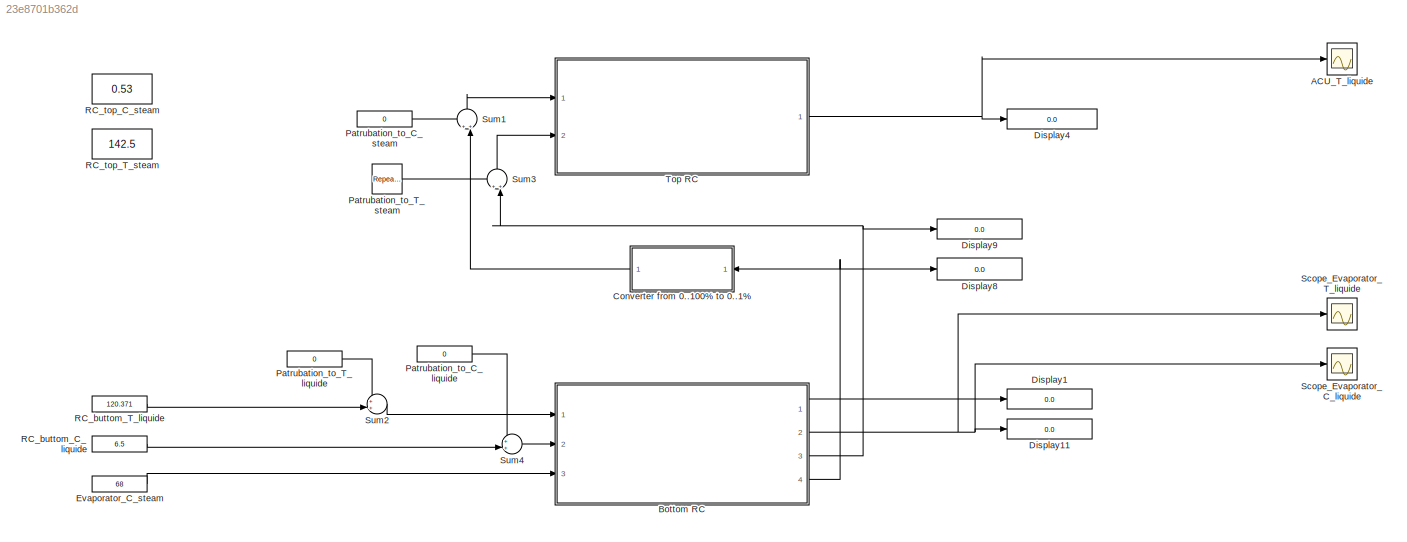
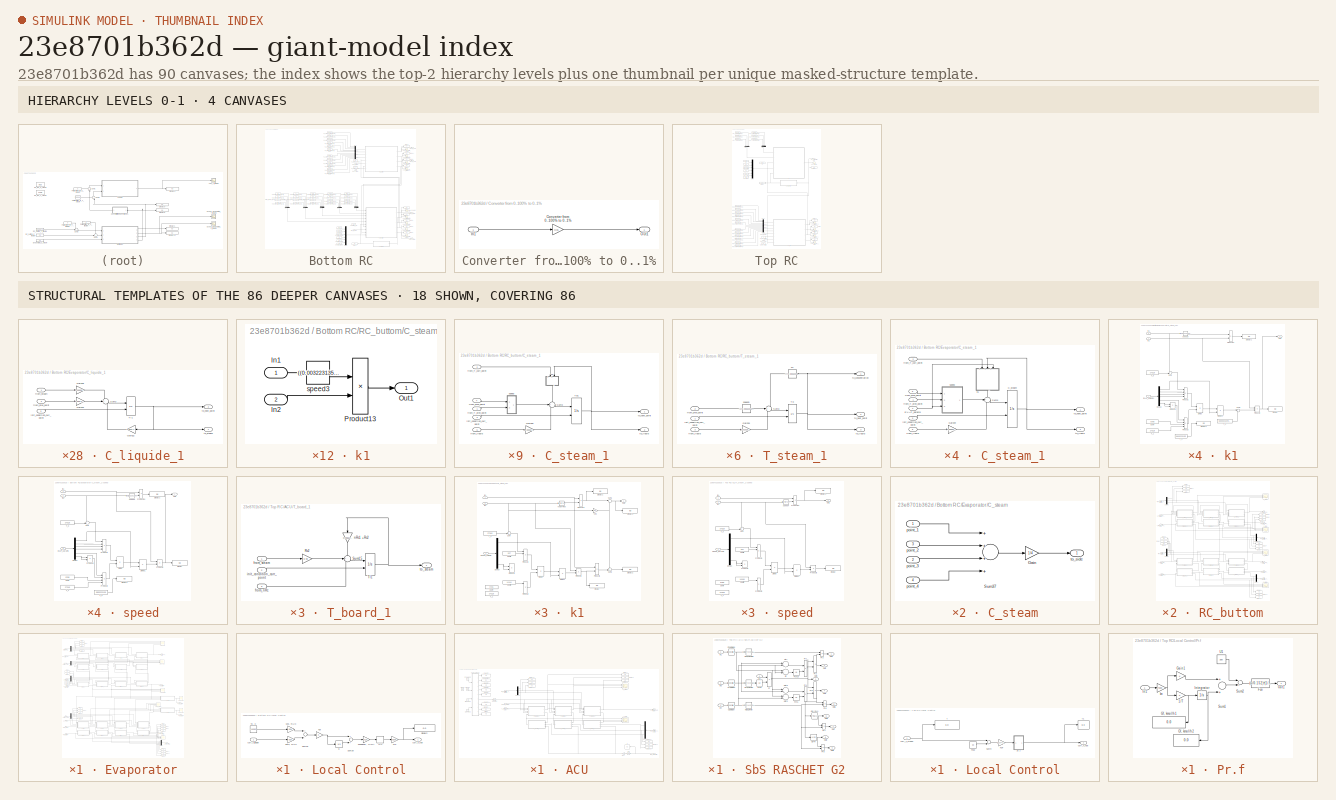
[diagram: thumbnail index - top-2 hierarchy levels (4 canvases) + 18 structural-template representatives of the remaining 86 canvases]
MODEL slx_23e8701b362d
KIND model
CONFIG AbsTol = auto
CONFIG EnableMultiTasking = off
CONFIG FixedStep = auto
CONFIG MaxStep = auto
CONFIG MinStep = auto
CONFIG RelTol = 1e-3
CONFIG SampleTimeConstraint = Unconstrained
CONFIG Solver = VariableStepAuto
CONFIG SolverName = VariableStepAuto
CONFIG StartTime = 0.0
CONFIG StopTime = 500000.0
BLOCK [Scope] ACU_T_liquide
  Floating = off
  NumInputPorts = 1
  Ports = [1]
  ScopeSpecificationString = Simulink.scopes.TimeScopeBlockCfg('CurrentConfiguration', extmgr.ConfigurationSet(extmgr.Configuration('Core','General UI',true),extmgr.Configuration('Core','Source UI',true),extmgr.Configuration('Sources','WiredSimulink',true,'DataLoggingVariableName','ScopeData1'),extmgr.Configuration('Visuals','Time Domain',true,'SerializedDisplays',{struct('MinYLimReal','24.13637','MaxYLimReal','69.53874','YLa...<+1415ch>
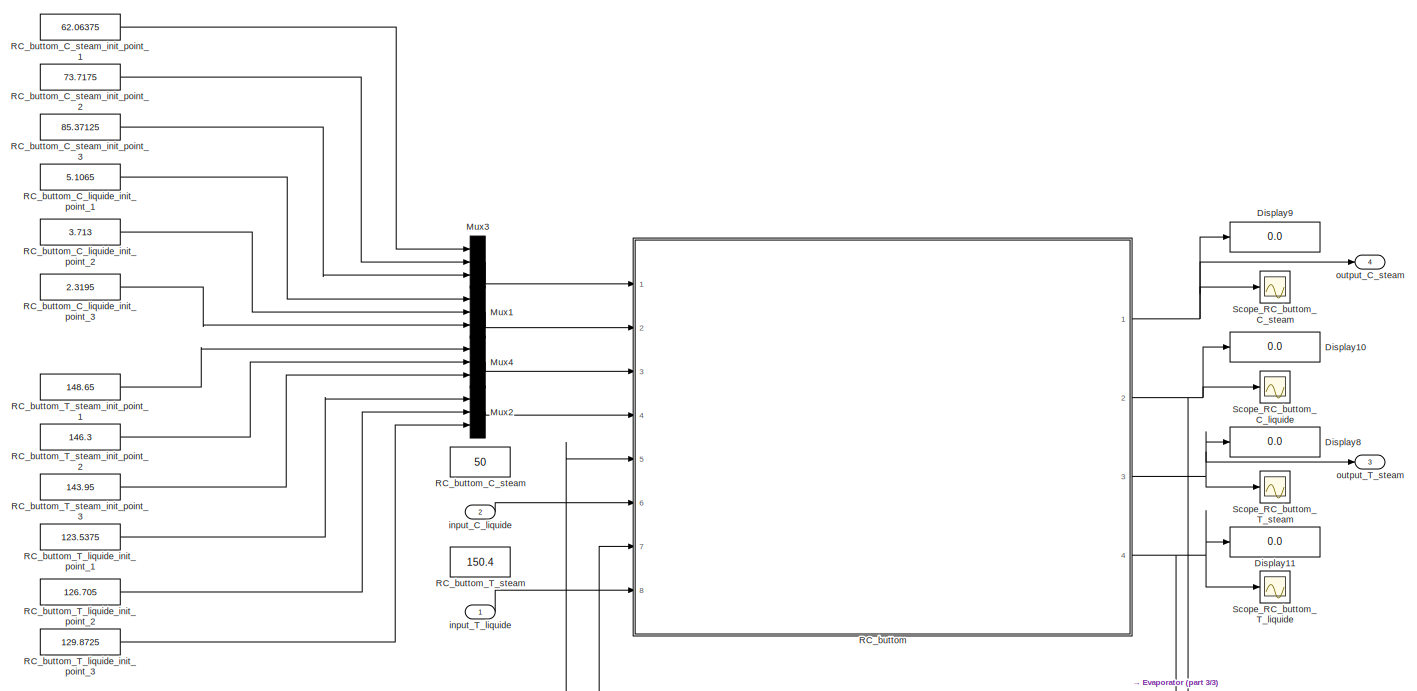
[diagram: Bottom RC - part 1/3, top right region]
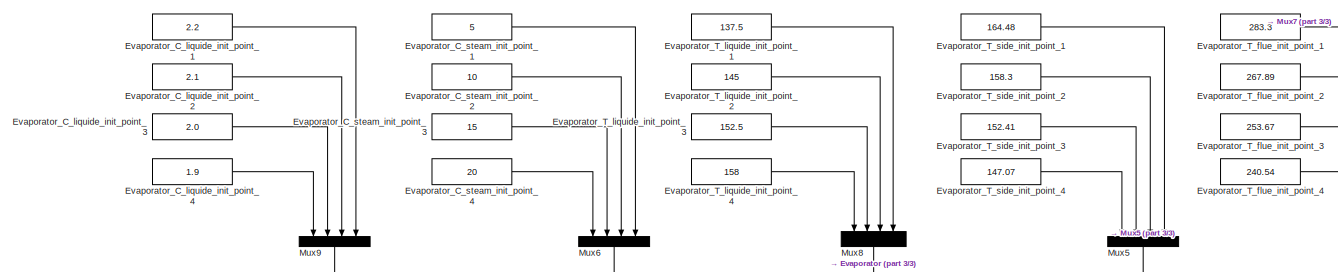
[diagram: Bottom RC - part 2/3, middle left region]
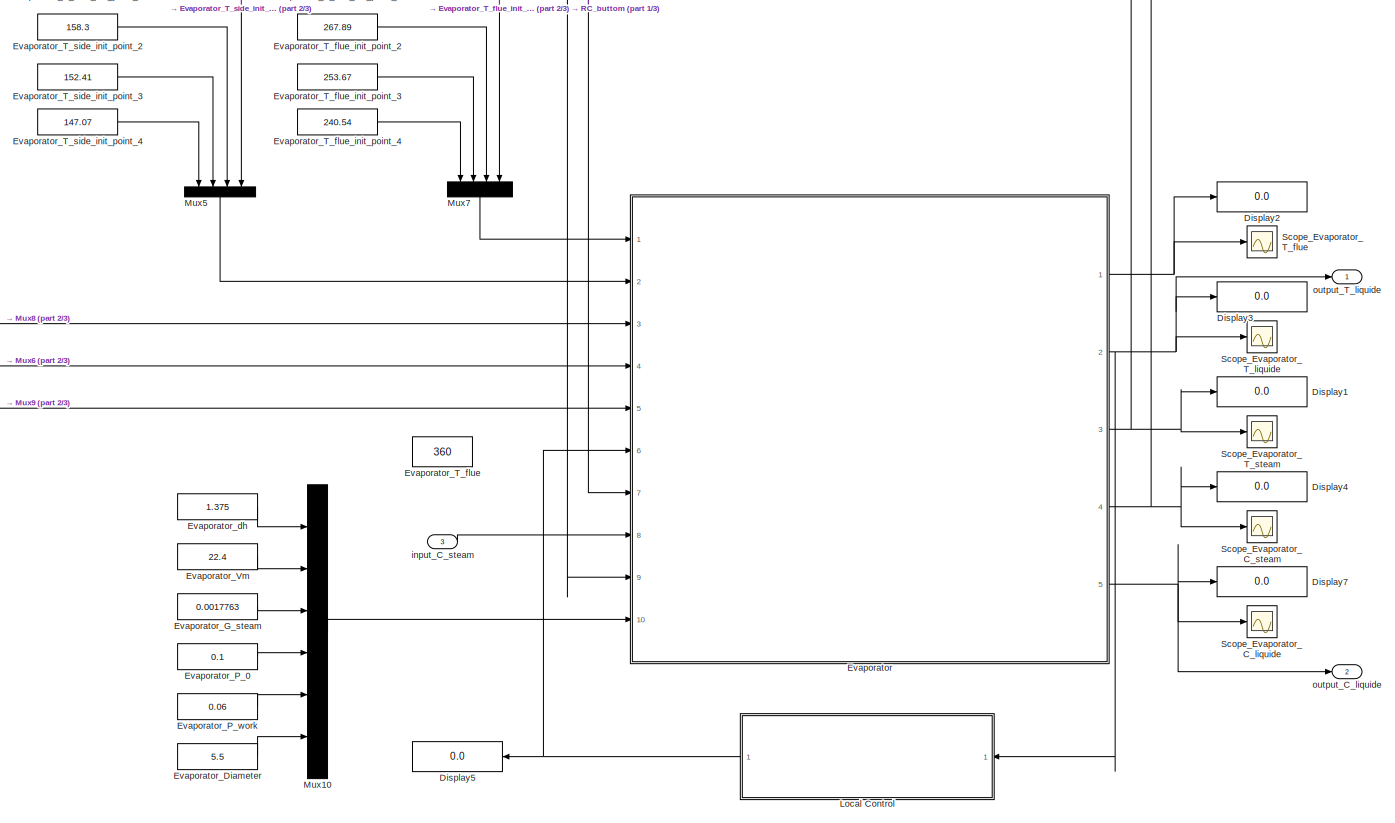
[diagram: Bottom RC - part 3/3, bottom right region]
BLOCK [SubSystem] Bottom RC
  Ports = [3, 4]
  RequestExecContextInheritance = off
BLOCK [Display] Bottom RC/Display1
  Decimation = 1
  Ports = [1]
BLOCK [Display] Bottom RC/Display10
  Decimation = 1
  Ports = [1]
BLOCK [Display] Bottom RC/Display11
  Decimation = 1
  Ports = [1]
BLOCK [Display] Bottom RC/Display2
  Decimation = 1
  Ports = [1]
BLOCK [Display] Bottom RC/Display3
  Decimation = 1
  Ports = [1]
BLOCK [Display] Bottom RC/Display4
  Decimation = 1
  Ports = [1]
BLOCK [Display] Bottom RC/Display5
  Decimation = 1
  Ports = [1]
BLOCK [Display] Bottom RC/Display7
  Decimation = 1
  Ports = [1]
BLOCK [Display] Bottom RC/Display8
  Decimation = 1
  Ports = [1]
BLOCK [Display] Bottom RC/Display9
  Decimation = 1
  Ports = [1]
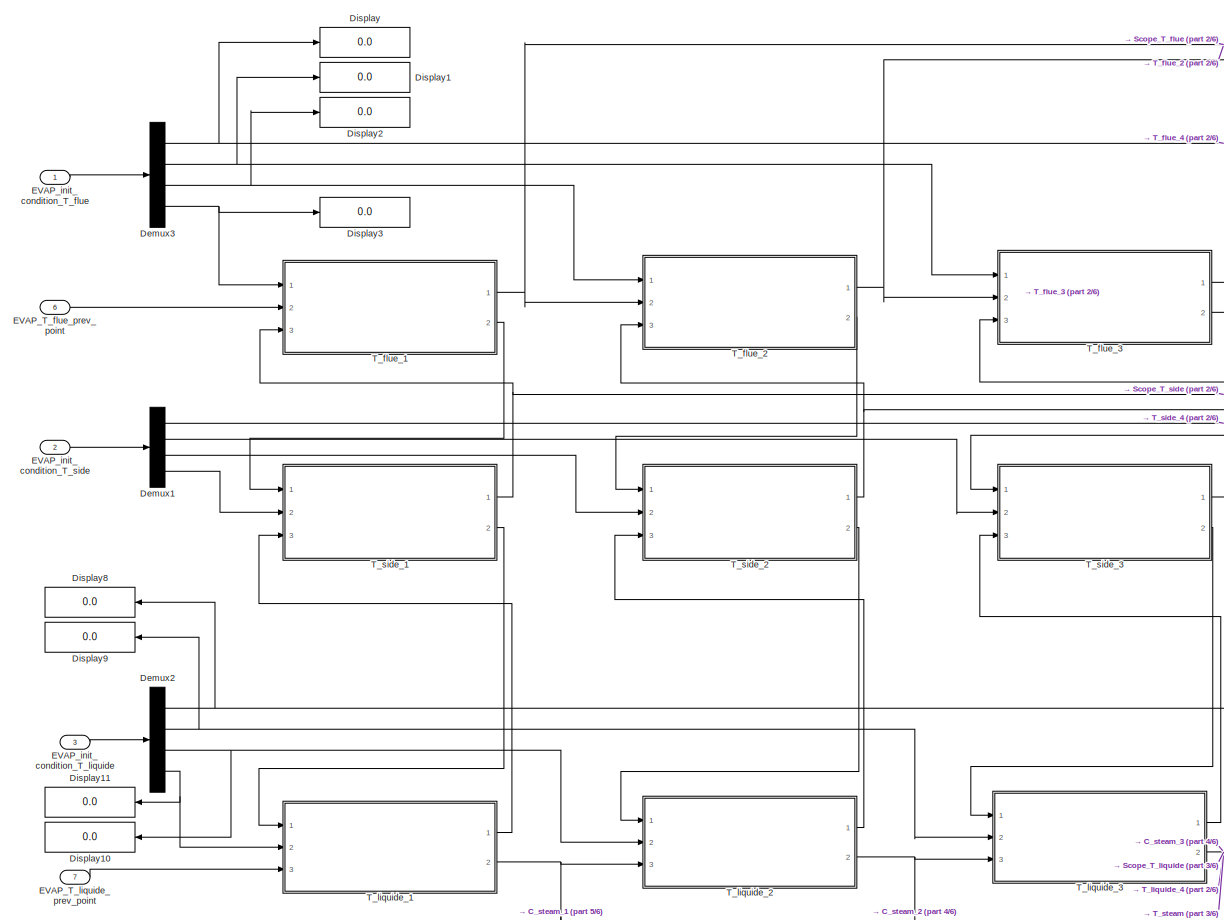
[diagram: Bottom RC/Evaporator - part 1/6, top left region]
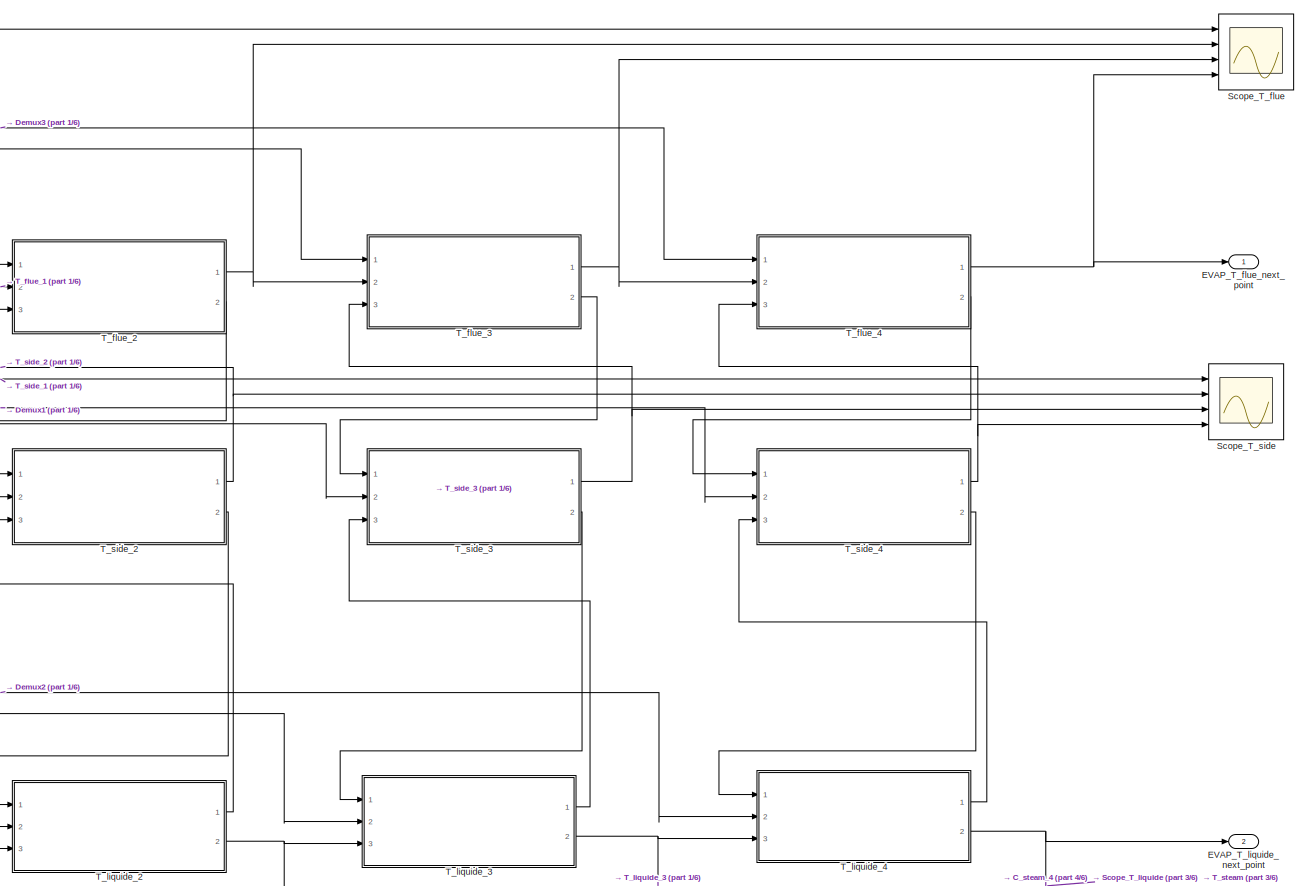
[diagram: Bottom RC/Evaporator - part 2/6, top center region]
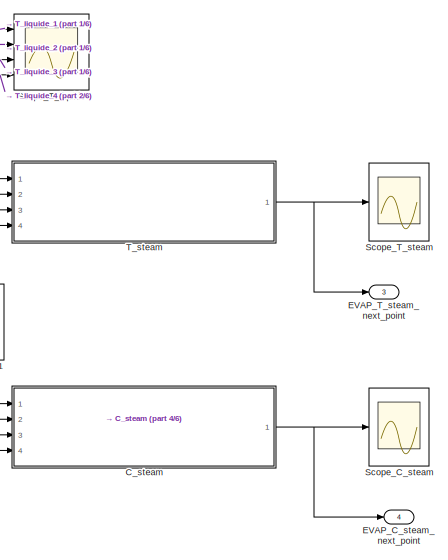
[diagram: Bottom RC/Evaporator - part 3/6, middle right region]
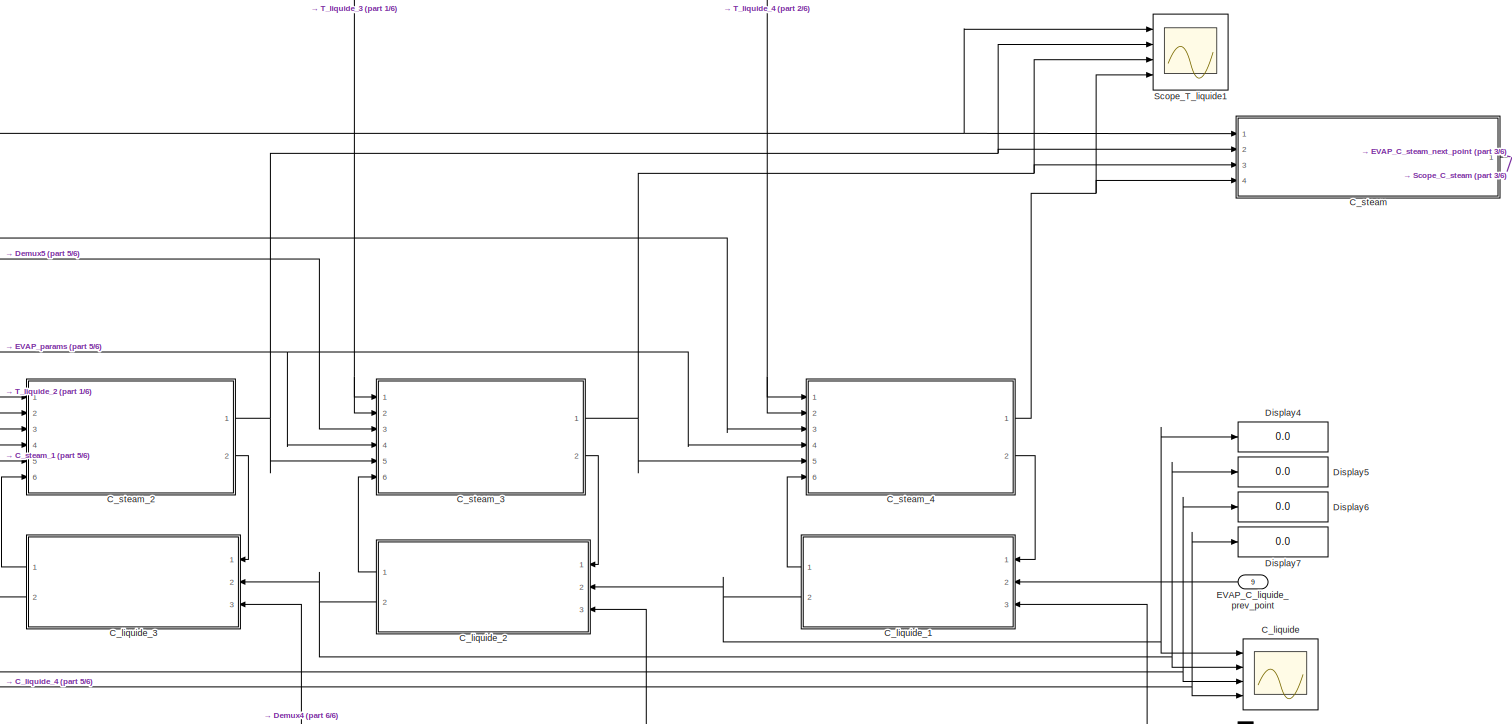
[diagram: Bottom RC/Evaporator - part 4/6, bottom center region]
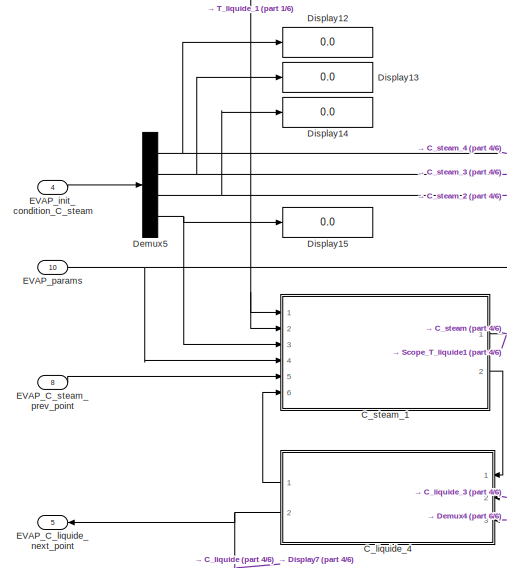
[diagram: Bottom RC/Evaporator - part 5/6, bottom left region]
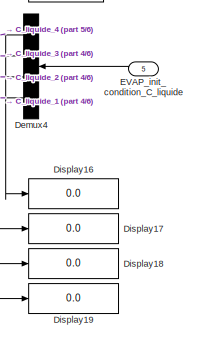
[diagram: Bottom RC/Evaporator - part 6/6, bottom right region]
BLOCK [SubSystem] Bottom RC/Evaporator
  Ports = [10, 5]
  RequestExecContextInheritance = off
BLOCK [Scope] Bottom RC/Evaporator/C_liquide
  Floating = off
  NumInputPorts = 4
  Ports = [4]
  ScopeSpecificationString = Simulink.scopes.TimeScopeBlockCfg('CurrentConfiguration', extmgr.ConfigurationSet(extmgr.Configuration('Core','General UI',true),extmgr.Configuration('Core','Source UI',true),extmgr.Configuration('Sources','WiredSimulink',true,'DataLoggingVariableName','ScopeData2','DataLoggingSaveFormat','StructureWithTime','SampleTime','0','DataLoggingDecimation','1','DataLoggingDecimateData',true),extmgr.Config...<+1637ch>
BLOCK [SubSystem] Bottom RC/Evaporator/C_liquide_1
  Ports = [3, 2]
  RequestExecContextInheritance = off
BLOCK [Gain] Bottom RC/Evaporator/C_liquide_1/Gain18
  Gain = 0.000004000
  OutDataTypeStr = Inherit: Inherit via internal rule
  ParamDataTypeStr = Inherit: Inherit via internal rule
  SaturateOnIntegerOverflow = off
BLOCK [Gain] Bottom RC/Evaporator/C_liquide_1/Gain19
  Gain = 0.003/1.375
  OutDataTypeStr = Inherit: Inherit via internal rule
  ParamDataTypeStr = Inherit: Inherit via internal rule
  SaturateOnIntegerOverflow = off
BLOCK [Gain] Bottom RC/Evaporator/C_liquide_1/Gain22
  Gain = 0.003/1.375-(0.000004000)*10^(-9)
  OutDataTypeStr = Inherit: Inherit via internal rule
  ParamDataTypeStr = Inherit: Inherit via internal rule
  SaturateOnIntegerOverflow = off
BLOCK [Sum] Bottom RC/Evaporator/C_liquide_1/Sum2
  IconShape = round
  InputSameDT = off
  Inputs = -+-
  OutDataTypeStr = Inherit: Inherit via internal rule
  Ports = [3, 1]
  SaturateOnIntegerOverflow = off
BLOCK [Integrator] Bottom RC/Evaporator/C_liquide_1/Tl1
  InitialCondition = 124.3766
  InitialConditionSource = external
  Ports = [2, 1]
BLOCK [Inport] Bottom RC/Evaporator/C_liquide_1/from_prev_point
  IconDisplay = Port number
  Port = 2
BLOCK [Inport] Bottom RC/Evaporator/C_liquide_1/from_steam
  IconDisplay = Port number
BLOCK [Inport] Bottom RC/Evaporator/C_liquide_1/init_condition_curr_point
  IconDisplay = Port number
  Port = 3
BLOCK [Outport] Bottom RC/Evaporator/C_liquide_1/to_next_point
  IconDisplay = Port number
  Port = 2
BLOCK [Outport] Bottom RC/Evaporator/C_liquide_1/to_steam
  IconDisplay = Port number
BLOCK [SubSystem] Bottom RC/Evaporator/C_liquide_2
  Ports = [3, 2]
  RequestExecContextInheritance = off
BLOCK [Gain] Bottom RC/Evaporator/C_liquide_2/Gain18
  Gain = 0.000004000
  OutDataTypeStr = Inherit: Inherit via internal rule
  ParamDataTypeStr = Inherit: Inherit via internal rule
  SaturateOnIntegerOverflow = off
BLOCK [Gain] Bottom RC/Evaporator/C_liquide_2/Gain19
  Gain = 0.003/1.375
  OutDataTypeStr = Inherit: Inherit via internal rule
  ParamDataTypeStr = Inherit: Inherit via internal rule
  SaturateOnIntegerOverflow = off
BLOCK [Gain] Bottom RC/Evaporator/C_liquide_2/Gain22
  Gain = 0.003/1.375-(0.000004000)*10^(-9)
  OutDataTypeStr = Inherit: Inherit via internal rule
  ParamDataTypeStr = Inherit: Inherit via internal rule
  SaturateOnIntegerOverflow = off
BLOCK [Sum] Bottom RC/Evaporator/C_liquide_2/Sum2
  IconShape = round
  InputSameDT = off
  Inputs = -+-
  OutDataTypeStr = Inherit: Inherit via internal rule
  Ports = [3, 1]
  SaturateOnIntegerOverflow = off
BLOCK [Integrator] Bottom RC/Evaporator/C_liquide_2/Tl1
  InitialCondition = 124.3766
  InitialConditionSource = external
  Ports = [2, 1]
BLOCK [Inport] Bottom RC/Evaporator/C_liquide_2/from_prev_point
  IconDisplay = Port number
  Port = 2
BLOCK [Inport] Bottom RC/Evaporator/C_liquide_2/from_steam
  IconDisplay = Port number
BLOCK [Inport] Bottom RC/Evaporator/C_liquide_2/init_condition_curr_point
  IconDisplay = Port number
  Port = 3
BLOCK [Outport] Bottom RC/Evaporator/C_liquide_2/to_next_point
  IconDisplay = Port number
  Port = 2
BLOCK [Outport] Bottom RC/Evaporator/C_liquide_2/to_steam
  IconDisplay = Port number
BLOCK [SubSystem] Bottom RC/Evaporator/C_liquide_3
  Ports = [3, 2]
  RequestExecContextInheritance = off
BLOCK [Gain] Bottom RC/Evaporator/C_liquide_3/Gain18
  Gain = 0.000004000
  OutDataTypeStr = Inherit: Inherit via internal rule
  ParamDataTypeStr = Inherit: Inherit via internal rule
  SaturateOnIntegerOverflow = off
BLOCK [Gain] Bottom RC/Evaporator/C_liquide_3/Gain19
  Gain = 0.003/1.375
  OutDataTypeStr = Inherit: Inherit via internal rule
  ParamDataTypeStr = Inherit: Inherit via internal rule
  SaturateOnIntegerOverflow = off
BLOCK [Gain] Bottom RC/Evaporator/C_liquide_3/Gain22
  Gain = 0.003/1.375-(0.000004000)*10^(-9)
  OutDataTypeStr = Inherit: Inherit via internal rule
  ParamDataTypeStr = Inherit: Inherit via internal rule
  SaturateOnIntegerOverflow = off
BLOCK [Sum] Bottom RC/Evaporator/C_liquide_3/Sum2
  IconShape = round
  InputSameDT = off
  Inputs = -+-
  OutDataTypeStr = Inherit: Inherit via internal rule
  Ports = [3, 1]
  SaturateOnIntegerOverflow = off
BLOCK [Integrator] Bottom RC/Evaporator/C_liquide_3/Tl1
  InitialCondition = 124.3766
  InitialConditionSource = external
  Ports = [2, 1]
BLOCK [Inport] Bottom RC/Evaporator/C_liquide_3/from_prev_point
  IconDisplay = Port number
  Port = 2
BLOCK [Inport] Bottom RC/Evaporator/C_liquide_3/from_steam
  IconDisplay = Port number
BLOCK [Inport] Bottom RC/Evaporator/C_liquide_3/init_condition_curr_point
  IconDisplay = Port number
  Port = 3
BLOCK [Outport] Bottom RC/Evaporator/C_liquide_3/to_next_point
  IconDisplay = Port number
  Port = 2
BLOCK [Outport] Bottom RC/Evaporator/C_liquide_3/to_steam
  IconDisplay = Port number
BLOCK [SubSystem] Bottom RC/Evaporator/C_liquide_4
  Ports = [3, 2]
  RequestExecContextInheritance = off
BLOCK [Gain] Bottom RC/Evaporator/C_liquide_4/Gain18
  Gain = 0.000004000
  OutDataTypeStr = Inherit: Inherit via internal rule
  ParamDataTypeStr = Inherit: Inherit via internal rule
  SaturateOnIntegerOverflow = off
BLOCK [Gain] Bottom RC/Evaporator/C_liquide_4/Gain19
  Gain = 0.003/1.375
  OutDataTypeStr = Inherit: Inherit via internal rule
  ParamDataTypeStr = Inherit: Inherit via internal rule
  SaturateOnIntegerOverflow = off
BLOCK [Gain] Bottom RC/Evaporator/C_liquide_4/Gain22
  Gain = 0.003/1.375-(0.000004000)*10^(-9)
  OutDataTypeStr = Inherit: Inherit via internal rule
  ParamDataTypeStr = Inherit: Inherit via internal rule
  SaturateOnIntegerOverflow = off
BLOCK [Sum] Bottom RC/Evaporator/C_liquide_4/Sum2
  IconShape = round
  InputSameDT = off
  Inputs = -+-
  OutDataTypeStr = Inherit: Inherit via internal rule
  Ports = [3, 1]
  SaturateOnIntegerOverflow = off
BLOCK [Integrator] Bottom RC/Evaporator/C_liquide_4/Tl1
  InitialCondition = 124.3766
  InitialConditionSource = external
  Ports = [2, 1]
BLOCK [Inport] Bottom RC/Evaporator/C_liquide_4/from_prev_point
  IconDisplay = Port number
  Port = 2
BLOCK [Inport] Bottom RC/Evaporator/C_liquide_4/from_steam
  IconDisplay = Port number
BLOCK [Inport] Bottom RC/Evaporator/C_liquide_4/init_condition_curr_point
  IconDisplay = Port number
  Port = 3
BLOCK [Outport] Bottom RC/Evaporator/C_liquide_4/to_next_point
  IconDisplay = Port number
  Port = 2
BLOCK [Outport] Bottom RC/Evaporator/C_liquide_4/to_steam
  IconDisplay = Port number
BLOCK [SubSystem] Bottom RC/Evaporator/C_steam
  Ports = [4, 1]
  RequestExecContextInheritance = off
BLOCK [Gain] Bottom RC/Evaporator/C_steam/Gain
  Gain = 1/4
  OutDataTypeStr = Inherit: Inherit via internal rule
  ParamDataTypeStr = Inherit: Inherit via internal rule
  SaturateOnIntegerOverflow = off
BLOCK [Sum] Bottom RC/Evaporator/C_steam/Sum37
  InputSameDT = off
  Inputs = ++++
  OutDataTypeStr = Inherit: Inherit via internal rule
  Ports = [4, 1]
  SaturateOnIntegerOverflow = off
BLOCK [Inport] Bottom RC/Evaporator/C_steam/point_1
  IconDisplay = Port number
BLOCK [Inport] Bottom RC/Evaporator/C_steam/point_2
  IconDisplay = Port number
  Port = 3
BLOCK [Inport] Bottom RC/Evaporator/C_steam/point_3
  IconDisplay = Port number
  Port = 2
BLOCK [Inport] Bottom RC/Evaporator/C_steam/point_4
  IconDisplay = Port number
  Port = 4
BLOCK [Outport] Bottom RC/Evaporator/C_steam/to_side
  IconDisplay = Port number
BLOCK [SubSystem] Bottom RC/Evaporator/C_steam_1
  Ports = [6, 2]
  RequestExecContextInheritance = off
BLOCK [Integrator] Bottom RC/Evaporator/C_steam_1/C_steam
  InitialCondition = 156.9966
  InitialConditionSource = external
  Ports = [2, 1]
BLOCK [Inport] Bottom RC/Evaporator/C_steam_1/EVAP_params
  IconDisplay = Port number
  Port = 4
BLOCK [Gain] Bottom RC/Evaporator/C_steam_1/Gain29
  Gain = 0.0000216487318*10^(-9)
  OutDataTypeStr = Inherit: Inherit via internal rule
  ParamDataTypeStr = Inherit: Inherit via internal rule
  SaturateOnIntegerOverflow = off
BLOCK [Sum] Bottom RC/Evaporator/C_steam_1/Sum3
  IconShape = round
  InputSameDT = off
  Inputs = -+-
  OutDataTypeStr = Inherit: Inherit via internal rule
  Ports = [3, 1]
  SaturateOnIntegerOverflow = off
BLOCK [Inport] Bottom RC/Evaporator/C_steam_1/from_T_curr_point
  IconDisplay = Port number
  Port = 2
BLOCK [Inport] Bottom RC/Evaporator/C_steam_1/from_T_prev_point
  IconDisplay = Port number
BLOCK [Inport] Bottom RC/Evaporator/C_steam_1/from_liquid
  IconDisplay = Port number
  Port = 6
BLOCK [Inport] Bottom RC/Evaporator/C_steam_1/from_prev_point
  IconDisplay = Port number
  Port = 5
BLOCK [Inport] Bottom RC/Evaporator/C_steam_1/init_condition_curr_point
  IconDisplay = Port number
  Port = 3
BLOCK [SubSystem] Bottom RC/Evaporator/C_steam_1/k1
  Ports = [3, 1]
  RequestExecContextInheritance = off
BLOCK [Constant] Bottom RC/Evaporator/C_steam_1/k1/Coeff
  Value = 0.785
BLOCK [Demux] Bottom RC/Evaporator/C_steam_1/k1/Demux
  DisplayOption = bar
  Outputs = 6
  Ports = [1, 6]
BLOCK [Display] Bottom RC/Evaporator/C_steam_1/k1/Display
  Decimation = 1
  Ports = [1]
BLOCK [Display] Bottom RC/Evaporator/C_steam_1/k1/Display1
  Decimation = 1
  Ports = [1]
BLOCK [Display] Bottom RC/Evaporator/C_steam_1/k1/Display2
  Decimation = 1
  Ports = [1]
BLOCK [Product] Bottom RC/Evaporator/C_steam_1/k1/Divide
  InputSameDT = off
  Inputs = */
  OutDataTypeStr = Inherit: Inherit via internal rule
  Ports = [2, 1]
  RndMeth = Floor
  SaturateOnIntegerOverflow = off
BLOCK [Product] Bottom RC/Evaporator/C_steam_1/k1/Divide1
  InputSameDT = off
  Inputs = */
  OutDataTypeStr = Inherit: Inherit via internal rule
  Ports = [2, 1]
  RndMeth = Floor
  SaturateOnIntegerOverflow = off
BLOCK [Inport] Bottom RC/Evaporator/C_steam_1/k1/EVAP_params1
  IconDisplay = Port number
  Port = 3
BLOCK [Inport] Bottom RC/Evaporator/C_steam_1/k1/In1
  IconDisplay = Port number
BLOCK [Inport] Bottom RC/Evaporator/C_steam_1/k1/In2
  IconDisplay = Port number
  Port = 2
BLOCK [Outport] Bottom RC/Evaporator/C_steam_1/k1/Out1
  IconDisplay = Port number
BLOCK [Product] Bottom RC/Evaporator/C_steam_1/k1/Product1
  Inputs = 4
  Ports = [4, 1]
  RndMeth = Floor
BLOCK [Product] Bottom RC/Evaporator/C_steam_1/k1/Product13
  Ports = [2, 1]
  RndMeth = Floor
BLOCK [Product] Bottom RC/Evaporator/C_steam_1/k1/Product2
  Inputs = 4
  Ports = [4, 1]
  RndMeth = Floor
BLOCK [Product] Bottom RC/Evaporator/C_steam_1/k1/Product3
  Ports = [2, 1]
  RndMeth = Floor
BLOCK [Product] Bottom RC/Evaporator/C_steam_1/k1/Product4
  Ports = [2, 1]
  RndMeth = Floor
BLOCK [Sum] Bottom RC/Evaporator/C_steam_1/k1/Sum
  IconShape = round
  InputSameDT = off
  Inputs = ++|
  OutDataTypeStr = Inherit: Inherit via internal rule
  Ports = [2, 1]
  SaturateOnIntegerOverflow = off
BLOCK [Sum] Bottom RC/Evaporator/C_steam_1/k1/Sum1
  IconShape = round
  InputSameDT = off
  Inputs = |+-
  OutDataTypeStr = Inherit: Inherit via internal rule
  Ports = [2, 1]
  SaturateOnIntegerOverflow = off
BLOCK [Constant] Bottom RC/Evaporator/C_steam_1/k1/T_0
  Value = 273.15
BLOCK [Constant] Bottom RC/Evaporator/C_steam_1/k1/T_1
  Value = 273.15
BLOCK [Constant] Bottom RC/Evaporator/C_steam_1/k1/T_2
  Value = 0.0000216487318
BLOCK [Constant] Bottom RC/Evaporator/C_steam_1/k1/T_3
  Value = 0.003223135
BLOCK [Fcn] Bottom RC/Evaporator/C_steam_1/k1/speed3
  Expr = ((0.003223135*(273+u))/24.69822264)/1.375-0.004302
BLOCK [SubSystem] Bottom RC/Evaporator/C_steam_1/speed
  Ports = [3, 1]
  RequestExecContextInheritance = off
BLOCK [Constant] Bottom RC/Evaporator/C_steam_1/speed/Coeff
  Value = 0.785
BLOCK [Demux] Bottom RC/Evaporator/C_steam_1/speed/Demux
  DisplayOption = bar
  Outputs = 6
  Ports = [1, 6]
BLOCK [Display] Bottom RC/Evaporator/C_steam_1/speed/Display
  Decimation = 1
  Ports = [1]
BLOCK [Display] Bottom RC/Evaporator/C_steam_1/speed/Display1
  Decimation = 1
  Ports = [1]
BLOCK [Display] Bottom RC/Evaporator/C_steam_1/speed/Display2
  Decimation = 1
  Ports = [1]
BLOCK [Product] Bottom RC/Evaporator/C_steam_1/speed/Divide
  InputSameDT = off
  Inputs = */
  OutDataTypeStr = Inherit: Inherit via internal rule
  Ports = [2, 1]
  RndMeth = Floor
  SaturateOnIntegerOverflow = off
BLOCK [Product] Bottom RC/Evaporator/C_steam_1/speed/Divide1
  InputSameDT = off
  Inputs = */
  OutDataTypeStr = Inherit: Inherit via internal rule
  Ports = [2, 1]
  RndMeth = Floor
  SaturateOnIntegerOverflow = off
BLOCK [Inport] Bottom RC/Evaporator/C_steam_1/speed/EVAP_params
  IconDisplay = Port number
  Port = 3
BLOCK [Inport] Bottom RC/Evaporator/C_steam_1/speed/In1
  IconDisplay = Port number
BLOCK [Inport] Bottom RC/Evaporator/C_steam_1/speed/In2
  IconDisplay = Port number
  Port = 2
BLOCK [Outport] Bottom RC/Evaporator/C_steam_1/speed/Out1
  IconDisplay = Port number
BLOCK [Product] Bottom RC/Evaporator/C_steam_1/speed/Product1
  Inputs = 4
  Ports = [4, 1]
  RndMeth = Floor
BLOCK [Product] Bottom RC/Evaporator/C_steam_1/speed/Product13
  Ports = [2, 1]
  RndMeth = Floor
BLOCK [Product] Bottom RC/Evaporator/C_steam_1/speed/Product2
  Inputs = 4
  Ports = [4, 1]
  RndMeth = Floor
BLOCK [Product] Bottom RC/Evaporator/C_steam_1/speed/Product3
  Ports = [2, 1]
  RndMeth = Floor
BLOCK [Product] Bottom RC/Evaporator/C_steam_1/speed/Product4
  Ports = [2, 1]
  RndMeth = Floor
BLOCK [Sum] Bottom RC/Evaporator/C_steam_1/speed/Sum
  IconShape = round
  InputSameDT = off
  Inputs = ++|
  OutDataTypeStr = Inherit: Inherit via internal rule
  Ports = [2, 1]
  SaturateOnIntegerOverflow = off
BLOCK [Constant] Bottom RC/Evaporator/C_steam_1/speed/T_0
  Value = 273.15
BLOCK [Constant] Bottom RC/Evaporator/C_steam_1/speed/T_1
  Value = 273.15
BLOCK [Constant] Bottom RC/Evaporator/C_steam_1/speed/T_2
  Value = 0.003223135
BLOCK [Fcn] Bottom RC/Evaporator/C_steam_1/speed/speed3
  Expr = ((0.003223135*(273+u))/24.69822264)/1.375
BLOCK [Outport] Bottom RC/Evaporator/C_steam_1/to_liquid
  IconDisplay = Port number
  Port = 2
BLOCK [Outport] Bottom RC/Evaporator/C_steam_1/to_next_point
  IconDisplay = Port number
BLOCK [SubSystem] Bottom RC/Evaporator/C_steam_2
  Ports = [6, 2]
  RequestExecContextInheritance = off
BLOCK [Integrator] Bottom RC/Evaporator/C_steam_2/C_steam
  InitialCondition = 156.9966
  InitialConditionSource = external
  Ports = [2, 1]
BLOCK [Inport] Bottom RC/Evaporator/C_steam_2/EVAP_params
  IconDisplay = Port number
  Port = 4
BLOCK [Gain] Bottom RC/Evaporator/C_steam_2/Gain29
  Gain = 0.0000216487318*10^(-9)
  OutDataTypeStr = Inherit: Inherit via internal rule
  ParamDataTypeStr = Inherit: Inherit via internal rule
  SaturateOnIntegerOverflow = off
BLOCK [Sum] Bottom RC/Evaporator/C_steam_2/Sum3
  IconShape = round
  InputSameDT = off
  Inputs = -+-
  OutDataTypeStr = Inherit: Inherit via internal rule
  Ports = [3, 1]
  SaturateOnIntegerOverflow = off
BLOCK [Inport] Bottom RC/Evaporator/C_steam_2/from_T_curr_point
  IconDisplay = Port number
  Port = 2
BLOCK [Inport] Bottom RC/Evaporator/C_steam_2/from_T_prev_point
  IconDisplay = Port number
BLOCK [Inport] Bottom RC/Evaporator/C_steam_2/from_liquid
  IconDisplay = Port number
  Port = 6
BLOCK [Inport] Bottom RC/Evaporator/C_steam_2/from_prev_point
  IconDisplay = Port number
  Port = 5
BLOCK [Inport] Bottom RC/Evaporator/C_steam_2/init_condition_curr_point
  IconDisplay = Port number
  Port = 3
BLOCK [SubSystem] Bottom RC/Evaporator/C_steam_2/k1
  Ports = [3, 1]
  RequestExecContextInheritance = off
BLOCK [Constant] Bottom RC/Evaporator/C_steam_2/k1/Coeff
  Value = 0.785
BLOCK [Demux] Bottom RC/Evaporator/C_steam_2/k1/Demux
  DisplayOption = bar
  Outputs = 6
  Ports = [1, 6]
BLOCK [Display] Bottom RC/Evaporator/C_steam_2/k1/Display
  Decimation = 1
  Ports = [1]
BLOCK [Display] Bottom RC/Evaporator/C_steam_2/k1/Display1
  Decimation = 1
  Ports = [1]
BLOCK [Display] Bottom RC/Evaporator/C_steam_2/k1/Display2
  Decimation = 1
  Ports = [1]
BLOCK [Product] Bottom RC/Evaporator/C_steam_2/k1/Divide
  InputSameDT = off
  Inputs = */
  OutDataTypeStr = Inherit: Inherit via internal rule
  Ports = [2, 1]
  RndMeth = Floor
  SaturateOnIntegerOverflow = off
BLOCK [Product] Bottom RC/Evaporator/C_steam_2/k1/Divide1
  InputSameDT = off
  Inputs = */
  OutDataTypeStr = Inherit: Inherit via internal rule
  Ports = [2, 1]
  RndMeth = Floor
  SaturateOnIntegerOverflow = off
BLOCK [Inport] Bottom RC/Evaporator/C_steam_2/k1/EVAP_params1
  IconDisplay = Port number
  Port = 3
BLOCK [Inport] Bottom RC/Evaporator/C_steam_2/k1/In1
  IconDisplay = Port number
BLOCK [Inport] Bottom RC/Evaporator/C_steam_2/k1/In2
  IconDisplay = Port number
  Port = 2
BLOCK [Outport] Bottom RC/Evaporator/C_steam_2/k1/Out1
  IconDisplay = Port number
BLOCK [Product] Bottom RC/Evaporator/C_steam_2/k1/Product1
  Inputs = 4
  Ports = [4, 1]
  RndMeth = Floor
BLOCK [Product] Bottom RC/Evaporator/C_steam_2/k1/Product13
  Ports = [2, 1]
  RndMeth = Floor
BLOCK [Product] Bottom RC/Evaporator/C_steam_2/k1/Product2
  Inputs = 4
  Ports = [4, 1]
  RndMeth = Floor
BLOCK [Product] Bottom RC/Evaporator/C_steam_2/k1/Product3
  Ports = [2, 1]
  RndMeth = Floor
BLOCK [Product] Bottom RC/Evaporator/C_steam_2/k1/Product4
  Ports = [2, 1]
  RndMeth = Floor
BLOCK [Sum] Bottom RC/Evaporator/C_steam_2/k1/Sum
  IconShape = round
  InputSameDT = off
  Inputs = ++|
  OutDataTypeStr = Inherit: Inherit via internal rule
  Ports = [2, 1]
  SaturateOnIntegerOverflow = off
BLOCK [Sum] Bottom RC/Evaporator/C_steam_2/k1/Sum1
  IconShape = round
  InputSameDT = off
  Inputs = |+-
  OutDataTypeStr = Inherit: Inherit via internal rule
  Ports = [2, 1]
  SaturateOnIntegerOverflow = off
BLOCK [Constant] Bottom RC/Evaporator/C_steam_2/k1/T_0
  Value = 273.15
BLOCK [Constant] Bottom RC/Evaporator/C_steam_2/k1/T_1
  Value = 273.15
BLOCK [Constant] Bottom RC/Evaporator/C_steam_2/k1/T_2
  Value = 0.0000216487318
BLOCK [Constant] Bottom RC/Evaporator/C_steam_2/k1/T_3
  Value = 0.003223135
BLOCK [Fcn] Bottom RC/Evaporator/C_steam_2/k1/speed3
  Expr = ((0.003223135*(273+u))/24.69822264)/1.375-0.004302
BLOCK [SubSystem] Bottom RC/Evaporator/C_steam_2/speed
  Ports = [3, 1]
  RequestExecContextInheritance = off
BLOCK [Constant] Bottom RC/Evaporator/C_steam_2/speed/Coeff
  Value = 0.785
BLOCK [Demux] Bottom RC/Evaporator/C_steam_2/speed/Demux
  DisplayOption = bar
  Outputs = 6
  Ports = [1, 6]
BLOCK [Display] Bottom RC/Evaporator/C_steam_2/speed/Display
  Decimation = 1
  Ports = [1]
BLOCK [Display] Bottom RC/Evaporator/C_steam_2/speed/Display1
  Decimation = 1
  Ports = [1]
BLOCK [Display] Bottom RC/Evaporator/C_steam_2/speed/Display2
  Decimation = 1
  Ports = [1]
BLOCK [Product] Bottom RC/Evaporator/C_steam_2/speed/Divide
  InputSameDT = off
  Inputs = */
  OutDataTypeStr = Inherit: Inherit via internal rule
  Ports = [2, 1]
  RndMeth = Floor
  SaturateOnIntegerOverflow = off
BLOCK [Product] Bottom RC/Evaporator/C_steam_2/speed/Divide1
  InputSameDT = off
  Inputs = */
  OutDataTypeStr = Inherit: Inherit via internal rule
  Ports = [2, 1]
  RndMeth = Floor
  SaturateOnIntegerOverflow = off
BLOCK [Inport] Bottom RC/Evaporator/C_steam_2/speed/EVAP_params
  IconDisplay = Port number
  Port = 3
BLOCK [Inport] Bottom RC/Evaporator/C_steam_2/speed/In1
  IconDisplay = Port number
BLOCK [Inport] Bottom RC/Evaporator/C_steam_2/speed/In2
  IconDisplay = Port number
  Port = 2
BLOCK [Outport] Bottom RC/Evaporator/C_steam_2/speed/Out1
  IconDisplay = Port number
BLOCK [Product] Bottom RC/Evaporator/C_steam_2/speed/Product1
  Inputs = 4
  Ports = [4, 1]
  RndMeth = Floor
BLOCK [Product] Bottom RC/Evaporator/C_steam_2/speed/Product13
  Ports = [2, 1]
  RndMeth = Floor
BLOCK [Product] Bottom RC/Evaporator/C_steam_2/speed/Product2
  Inputs = 4
  Ports = [4, 1]
  RndMeth = Floor
BLOCK [Product] Bottom RC/Evaporator/C_steam_2/speed/Product3
  Ports = [2, 1]
  RndMeth = Floor
BLOCK [Product] Bottom RC/Evaporator/C_steam_2/speed/Product4
  Ports = [2, 1]
  RndMeth = Floor
BLOCK [Sum] Bottom RC/Evaporator/C_steam_2/speed/Sum
  IconShape = round
  InputSameDT = off
  Inputs = ++|
  OutDataTypeStr = Inherit: Inherit via internal rule
  Ports = [2, 1]
  SaturateOnIntegerOverflow = off
BLOCK [Constant] Bottom RC/Evaporator/C_steam_2/speed/T_0
  Value = 273.15
BLOCK [Constant] Bottom RC/Evaporator/C_steam_2/speed/T_1
  Value = 273.15
BLOCK [Constant] Bottom RC/Evaporator/C_steam_2/speed/T_2
  Value = 0.003223135
BLOCK [Fcn] Bottom RC/Evaporator/C_steam_2/speed/speed3
  Expr = ((0.003223135*(273+u))/24.69822264)/1.375
BLOCK [Outport] Bottom RC/Evaporator/C_steam_2/to_liquid
  IconDisplay = Port number
  Port = 2
BLOCK [Outport] Bottom RC/Evaporator/C_steam_2/to_next_point
  IconDisplay = Port number
BLOCK [SubSystem] Bottom RC/Evaporator/C_steam_3
  Ports = [6, 2]
  RequestExecContextInheritance = off
BLOCK [Integrator] Bottom RC/Evaporator/C_steam_3/C_steam
  InitialCondition = 156.9966
  InitialConditionSource = external
  Ports = [2, 1]
BLOCK [Inport] Bottom RC/Evaporator/C_steam_3/EVAP_params
  IconDisplay = Port number
  Port = 4
BLOCK [Gain] Bottom RC/Evaporator/C_steam_3/Gain29
  Gain = 0.0000216487318*10^(-9)
  OutDataTypeStr = Inherit: Inherit via internal rule
  ParamDataTypeStr = Inherit: Inherit via internal rule
  SaturateOnIntegerOverflow = off
BLOCK [Sum] Bottom RC/Evaporator/C_steam_3/Sum3
  IconShape = round
  InputSameDT = off
  Inputs = -+-
  OutDataTypeStr = Inherit: Inherit via internal rule
  Ports = [3, 1]
  SaturateOnIntegerOverflow = off
BLOCK [Inport] Bottom RC/Evaporator/C_steam_3/from_T_curr_point
  IconDisplay = Port number
  Port = 2
BLOCK [Inport] Bottom RC/Evaporator/C_steam_3/from_T_prev_point
  IconDisplay = Port number
BLOCK [Inport] Bottom RC/Evaporator/C_steam_3/from_liquid
  IconDisplay = Port number
  Port = 6
BLOCK [Inport] Bottom RC/Evaporator/C_steam_3/from_prev_point
  IconDisplay = Port number
  Port = 5
BLOCK [Inport] Bottom RC/Evaporator/C_steam_3/init_condition_curr_point
  IconDisplay = Port number
  Port = 3
BLOCK [SubSystem] Bottom RC/Evaporator/C_steam_3/k1
  Ports = [3, 1]
  RequestExecContextInheritance = off
BLOCK [Constant] Bottom RC/Evaporator/C_steam_3/k1/Coeff
  Value = 0.785
BLOCK [Demux] Bottom RC/Evaporator/C_steam_3/k1/Demux
  DisplayOption = bar
  Outputs = 6
  Ports = [1, 6]
BLOCK [Display] Bottom RC/Evaporator/C_steam_3/k1/Display
  Decimation = 1
  Ports = [1]
BLOCK [Display] Bottom RC/Evaporator/C_steam_3/k1/Display1
  Decimation = 1
  Ports = [1]
BLOCK [Display] Bottom RC/Evaporator/C_steam_3/k1/Display2
  Decimation = 1
  Ports = [1]
BLOCK [Product] Bottom RC/Evaporator/C_steam_3/k1/Divide
  InputSameDT = off
  Inputs = */
  OutDataTypeStr = Inherit: Inherit via internal rule
  Ports = [2, 1]
  RndMeth = Floor
  SaturateOnIntegerOverflow = off
BLOCK [Product] Bottom RC/Evaporator/C_steam_3/k1/Divide1
  InputSameDT = off
  Inputs = */
  OutDataTypeStr = Inherit: Inherit via internal rule
  Ports = [2, 1]
  RndMeth = Floor
  SaturateOnIntegerOverflow = off
BLOCK [Inport] Bottom RC/Evaporator/C_steam_3/k1/EVAP_params1
  IconDisplay = Port number
  Port = 3
BLOCK [Inport] Bottom RC/Evaporator/C_steam_3/k1/In1
  IconDisplay = Port number
BLOCK [Inport] Bottom RC/Evaporator/C_steam_3/k1/In2
  IconDisplay = Port number
  Port = 2
BLOCK [Outport] Bottom RC/Evaporator/C_steam_3/k1/Out1
  IconDisplay = Port number
BLOCK [Product] Bottom RC/Evaporator/C_steam_3/k1/Product1
  Inputs = 4
  Ports = [4, 1]
  RndMeth = Floor
BLOCK [Product] Bottom RC/Evaporator/C_steam_3/k1/Product13
  Ports = [2, 1]
  RndMeth = Floor
BLOCK [Product] Bottom RC/Evaporator/C_steam_3/k1/Product2
  Inputs = 4
  Ports = [4, 1]
  RndMeth = Floor
BLOCK [Product] Bottom RC/Evaporator/C_steam_3/k1/Product3
  Ports = [2, 1]
  RndMeth = Floor
BLOCK [Product] Bottom RC/Evaporator/C_steam_3/k1/Product4
  Ports = [2, 1]
  RndMeth = Floor
BLOCK [Sum] Bottom RC/Evaporator/C_steam_3/k1/Sum
  IconShape = round
  InputSameDT = off
  Inputs = ++|
  OutDataTypeStr = Inherit: Inherit via internal rule
  Ports = [2, 1]
  SaturateOnIntegerOverflow = off
BLOCK [Sum] Bottom RC/Evaporator/C_steam_3/k1/Sum1
  IconShape = round
  InputSameDT = off
  Inputs = |+-
  OutDataTypeStr = Inherit: Inherit via internal rule
  Ports = [2, 1]
  SaturateOnIntegerOverflow = off
BLOCK [Constant] Bottom RC/Evaporator/C_steam_3/k1/T_0
  Value = 273.15
BLOCK [Constant] Bottom RC/Evaporator/C_steam_3/k1/T_1
  Value = 273.15
BLOCK [Constant] Bottom RC/Evaporator/C_steam_3/k1/T_2
  Value = 0.0000216487318
BLOCK [Constant] Bottom RC/Evaporator/C_steam_3/k1/T_3
  Value = 0.003223135
BLOCK [Fcn] Bottom RC/Evaporator/C_steam_3/k1/speed3
  Expr = ((0.003223135*(273+u))/24.69822264)/1.375-0.004302
BLOCK [SubSystem] Bottom RC/Evaporator/C_steam_3/speed
  Ports = [3, 1]
  RequestExecContextInheritance = off
BLOCK [Constant] Bottom RC/Evaporator/C_steam_3/speed/Coeff
  Value = 0.785
BLOCK [Demux] Bottom RC/Evaporator/C_steam_3/speed/Demux
  DisplayOption = bar
  Outputs = 6
  Ports = [1, 6]
BLOCK [Display] Bottom RC/Evaporator/C_steam_3/speed/Display
  Decimation = 1
  Ports = [1]
BLOCK [Display] Bottom RC/Evaporator/C_steam_3/speed/Display1
  Decimation = 1
  Ports = [1]
BLOCK [Display] Bottom RC/Evaporator/C_steam_3/speed/Display2
  Decimation = 1
  Ports = [1]
BLOCK [Product] Bottom RC/Evaporator/C_steam_3/speed/Divide
  InputSameDT = off
  Inputs = */
  OutDataTypeStr = Inherit: Inherit via internal rule
  Ports = [2, 1]
  RndMeth = Floor
  SaturateOnIntegerOverflow = off
BLOCK [Product] Bottom RC/Evaporator/C_steam_3/speed/Divide1
  InputSameDT = off
  Inputs = */
  OutDataTypeStr = Inherit: Inherit via internal rule
  Ports = [2, 1]
  RndMeth = Floor
  SaturateOnIntegerOverflow = off
BLOCK [Inport] Bottom RC/Evaporator/C_steam_3/speed/EVAP_params
  IconDisplay = Port number
  Port = 3
BLOCK [Inport] Bottom RC/Evaporator/C_steam_3/speed/In1
  IconDisplay = Port number
BLOCK [Inport] Bottom RC/Evaporator/C_steam_3/speed/In2
  IconDisplay = Port number
  Port = 2
BLOCK [Outport] Bottom RC/Evaporator/C_steam_3/speed/Out1
  IconDisplay = Port number
BLOCK [Product] Bottom RC/Evaporator/C_steam_3/speed/Product1
  Inputs = 4
  Ports = [4, 1]
  RndMeth = Floor
BLOCK [Product] Bottom RC/Evaporator/C_steam_3/speed/Product13
  Ports = [2, 1]
  RndMeth = Floor
BLOCK [Product] Bottom RC/Evaporator/C_steam_3/speed/Product2
  Inputs = 4
  Ports = [4, 1]
  RndMeth = Floor
BLOCK [Product] Bottom RC/Evaporator/C_steam_3/speed/Product3
  Ports = [2, 1]
  RndMeth = Floor
BLOCK [Product] Bottom RC/Evaporator/C_steam_3/speed/Product4
  Ports = [2, 1]
  RndMeth = Floor
BLOCK [Sum] Bottom RC/Evaporator/C_steam_3/speed/Sum
  IconShape = round
  InputSameDT = off
  Inputs = ++|
  OutDataTypeStr = Inherit: Inherit via internal rule
  Ports = [2, 1]
  SaturateOnIntegerOverflow = off
BLOCK [Constant] Bottom RC/Evaporator/C_steam_3/speed/T_0
  Value = 273.15
BLOCK [Constant] Bottom RC/Evaporator/C_steam_3/speed/T_1
  Value = 273.15
BLOCK [Constant] Bottom RC/Evaporator/C_steam_3/speed/T_2
  Value = 0.003223135
BLOCK [Fcn] Bottom RC/Evaporator/C_steam_3/speed/speed3
  Expr = ((0.003223135*(273+u))/24.69822264)/1.375
BLOCK [Outport] Bottom RC/Evaporator/C_steam_3/to_liquid
  IconDisplay = Port number
  Port = 2
BLOCK [Outport] Bottom RC/Evaporator/C_steam_3/to_next_point
  IconDisplay = Port number
BLOCK [SubSystem] Bottom RC/Evaporator/C_steam_4
  Ports = [6, 2]
  RequestExecContextInheritance = off
BLOCK [Integrator] Bottom RC/Evaporator/C_steam_4/C_steam
  InitialCondition = 156.9966
  InitialConditionSource = external
  Ports = [2, 1]
BLOCK [Inport] Bottom RC/Evaporator/C_steam_4/EVAP_params
  IconDisplay = Port number
  Port = 4
BLOCK [Gain] Bottom RC/Evaporator/C_steam_4/Gain29
  Gain = 0.0000216487318*10^(-9)
  OutDataTypeStr = Inherit: Inherit via internal rule
  ParamDataTypeStr = Inherit: Inherit via internal rule
  SaturateOnIntegerOverflow = off
BLOCK [Sum] Bottom RC/Evaporator/C_steam_4/Sum3
  IconShape = round
  InputSameDT = off
  Inputs = -+-
  OutDataTypeStr = Inherit: Inherit via internal rule
  Ports = [3, 1]
  SaturateOnIntegerOverflow = off
BLOCK [Inport] Bottom RC/Evaporator/C_steam_4/from_T_curr_point
  IconDisplay = Port number
  Port = 2
BLOCK [Inport] Bottom RC/Evaporator/C_steam_4/from_T_prev_point
  IconDisplay = Port number
BLOCK [Inport] Bottom RC/Evaporator/C_steam_4/from_liquid
  IconDisplay = Port number
  Port = 6
BLOCK [Inport] Bottom RC/Evaporator/C_steam_4/from_prev_point
  IconDisplay = Port number
  Port = 5
BLOCK [Inport] Bottom RC/Evaporator/C_steam_4/init_condition_curr_point
  IconDisplay = Port number
  Port = 3
BLOCK [SubSystem] Bottom RC/Evaporator/C_steam_4/k1
  Ports = [3, 1]
  RequestExecContextInheritance = off
BLOCK [Constant] Bottom RC/Evaporator/C_steam_4/k1/Coeff
  Value = 0.785
BLOCK [Demux] Bottom RC/Evaporator/C_steam_4/k1/Demux
  DisplayOption = bar
  Outputs = 6
  Ports = [1, 6]
BLOCK [Display] Bottom RC/Evaporator/C_steam_4/k1/Display
  Decimation = 1
  Ports = [1]
BLOCK [Display] Bottom RC/Evaporator/C_steam_4/k1/Display1
  Decimation = 1
  Ports = [1]
BLOCK [Display] Bottom RC/Evaporator/C_steam_4/k1/Display2
  Decimation = 1
  Ports = [1]
BLOCK [Product] Bottom RC/Evaporator/C_steam_4/k1/Divide
  InputSameDT = off
  Inputs = */
  OutDataTypeStr = Inherit: Inherit via internal rule
  Ports = [2, 1]
  RndMeth = Floor
  SaturateOnIntegerOverflow = off
BLOCK [Product] Bottom RC/Evaporator/C_steam_4/k1/Divide1
  InputSameDT = off
  Inputs = */
  OutDataTypeStr = Inherit: Inherit via internal rule
  Ports = [2, 1]
  RndMeth = Floor
  SaturateOnIntegerOverflow = off
BLOCK [Inport] Bottom RC/Evaporator/C_steam_4/k1/EVAP_params1
  IconDisplay = Port number
  Port = 3
BLOCK [Inport] Bottom RC/Evaporator/C_steam_4/k1/In1
  IconDisplay = Port number
BLOCK [Inport] Bottom RC/Evaporator/C_steam_4/k1/In2
  IconDisplay = Port number
  Port = 2
BLOCK [Outport] Bottom RC/Evaporator/C_steam_4/k1/Out1
  IconDisplay = Port number
BLOCK [Product] Bottom RC/Evaporator/C_steam_4/k1/Product1
  Inputs = 4
  Ports = [4, 1]
  RndMeth = Floor
BLOCK [Product] Bottom RC/Evaporator/C_steam_4/k1/Product13
  Ports = [2, 1]
  RndMeth = Floor
BLOCK [Product] Bottom RC/Evaporator/C_steam_4/k1/Product2
  Inputs = 4
  Ports = [4, 1]
  RndMeth = Floor
BLOCK [Product] Bottom RC/Evaporator/C_steam_4/k1/Product3
  Ports = [2, 1]
  RndMeth = Floor
BLOCK [Product] Bottom RC/Evaporator/C_steam_4/k1/Product4
  Ports = [2, 1]
  RndMeth = Floor
BLOCK [Sum] Bottom RC/Evaporator/C_steam_4/k1/Sum
  IconShape = round
  InputSameDT = off
  Inputs = ++|
  OutDataTypeStr = Inherit: Inherit via internal rule
  Ports = [2, 1]
  SaturateOnIntegerOverflow = off
BLOCK [Sum] Bottom RC/Evaporator/C_steam_4/k1/Sum1
  IconShape = round
  InputSameDT = off
  Inputs = |+-
  OutDataTypeStr = Inherit: Inherit via internal rule
  Ports = [2, 1]
  SaturateOnIntegerOverflow = off
BLOCK [Constant] Bottom RC/Evaporator/C_steam_4/k1/T_0
  Value = 273.15
BLOCK [Constant] Bottom RC/Evaporator/C_steam_4/k1/T_1
  Value = 273.15
BLOCK [Constant] Bottom RC/Evaporator/C_steam_4/k1/T_2
  Value = 0.0000216487318
BLOCK [Constant] Bottom RC/Evaporator/C_steam_4/k1/T_3
  Value = 0.003223135
BLOCK [Fcn] Bottom RC/Evaporator/C_steam_4/k1/speed3
  Expr = ((0.003223135*(273+u))/24.69822264)/1.375-0.004302
BLOCK [SubSystem] Bottom RC/Evaporator/C_steam_4/speed
  Ports = [3, 1]
  RequestExecContextInheritance = off
BLOCK [Constant] Bottom RC/Evaporator/C_steam_4/speed/Coeff
  Value = 0.785
BLOCK [Demux] Bottom RC/Evaporator/C_steam_4/speed/Demux
  DisplayOption = bar
  Outputs = 6
  Ports = [1, 6]
BLOCK [Display] Bottom RC/Evaporator/C_steam_4/speed/Display
  Decimation = 1
  Ports = [1]
BLOCK [Display] Bottom RC/Evaporator/C_steam_4/speed/Display1
  Decimation = 1
  Ports = [1]
BLOCK [Display] Bottom RC/Evaporator/C_steam_4/speed/Display2
  Decimation = 1
  Ports = [1]
BLOCK [Product] Bottom RC/Evaporator/C_steam_4/speed/Divide
  InputSameDT = off
  Inputs = */
  OutDataTypeStr = Inherit: Inherit via internal rule
  Ports = [2, 1]
  RndMeth = Floor
  SaturateOnIntegerOverflow = off
BLOCK [Product] Bottom RC/Evaporator/C_steam_4/speed/Divide1
  InputSameDT = off
  Inputs = */
  OutDataTypeStr = Inherit: Inherit via internal rule
  Ports = [2, 1]
  RndMeth = Floor
  SaturateOnIntegerOverflow = off
BLOCK [Inport] Bottom RC/Evaporator/C_steam_4/speed/EVAP_params
  IconDisplay = Port number
  Port = 3
BLOCK [Inport] Bottom RC/Evaporator/C_steam_4/speed/In1
  IconDisplay = Port number
BLOCK [Inport] Bottom RC/Evaporator/C_steam_4/speed/In2
  IconDisplay = Port number
  Port = 2
BLOCK [Outport] Bottom RC/Evaporator/C_steam_4/speed/Out1
  IconDisplay = Port number
BLOCK [Product] Bottom RC/Evaporator/C_steam_4/speed/Product1
  Inputs = 4
  Ports = [4, 1]
  RndMeth = Floor
BLOCK [Product] Bottom RC/Evaporator/C_steam_4/speed/Product13
  Ports = [2, 1]
  RndMeth = Floor
BLOCK [Product] Bottom RC/Evaporator/C_steam_4/speed/Product2
  Inputs = 4
  Ports = [4, 1]
  RndMeth = Floor
BLOCK [Product] Bottom RC/Evaporator/C_steam_4/speed/Product3
  Ports = [2, 1]
  RndMeth = Floor
BLOCK [Product] Bottom RC/Evaporator/C_steam_4/speed/Product4
  Ports = [2, 1]
  RndMeth = Floor
BLOCK [Sum] Bottom RC/Evaporator/C_steam_4/speed/Sum
  IconShape = round
  InputSameDT = off
  Inputs = ++|
  OutDataTypeStr = Inherit: Inherit via internal rule
  Ports = [2, 1]
  SaturateOnIntegerOverflow = off
BLOCK [Constant] Bottom RC/Evaporator/C_steam_4/speed/T_0
  Value = 273.15
BLOCK [Constant] Bottom RC/Evaporator/C_steam_4/speed/T_1
  Value = 273.15
BLOCK [Constant] Bottom RC/Evaporator/C_steam_4/speed/T_2
  Value = 0.003223135
BLOCK [Fcn] Bottom RC/Evaporator/C_steam_4/speed/speed3
  Expr = ((0.003223135*(273+u))/24.69822264)/1.375
BLOCK [Outport] Bottom RC/Evaporator/C_steam_4/to_liquid
  IconDisplay = Port number
  Port = 2
BLOCK [Outport] Bottom RC/Evaporator/C_steam_4/to_next_point
  IconDisplay = Port number
BLOCK [Demux] Bottom RC/Evaporator/Demux1
  DisplayOption = bar
  Ports = [1, 4]
BLOCK [Demux] Bottom RC/Evaporator/Demux2
  DisplayOption = bar
  Ports = [1, 4]
BLOCK [Demux] Bottom RC/Evaporator/Demux3
  DisplayOption = bar
  Ports = [1, 4]
BLOCK [Demux] Bottom RC/Evaporator/Demux4
  DisplayOption = bar
  Ports = [1, 4]
BLOCK [Demux] Bottom RC/Evaporator/Demux5
  DisplayOption = bar
  Ports = [1, 4]
BLOCK [Display] Bottom RC/Evaporator/Display
  Decimation = 1
  Ports = [1]
BLOCK [Display] Bottom RC/Evaporator/Display1
  Decimation = 1
  Ports = [1]
BLOCK [Display] Bottom RC/Evaporator/Display10
  Decimation = 1
  Ports = [1]
BLOCK [Display] Bottom RC/Evaporator/Display11
  Decimation = 1
  Ports = [1]
BLOCK [Display] Bottom RC/Evaporator/Display12
  Decimation = 1
  Ports = [1]
BLOCK [Display] Bottom RC/Evaporator/Display13
  Decimation = 1
  Ports = [1]
BLOCK [Display] Bottom RC/Evaporator/Display14
  Decimation = 1
  Ports = [1]
BLOCK [Display] Bottom RC/Evaporator/Display15
  Decimation = 1
  Ports = [1]
BLOCK [Display] Bottom RC/Evaporator/Display16
  Decimation = 1
  Ports = [1]
BLOCK [Display] Bottom RC/Evaporator/Display17
  Decimation = 1
  Ports = [1]
BLOCK [Display] Bottom RC/Evaporator/Display18
  Decimation = 1
  Ports = [1]
BLOCK [Display] Bottom RC/Evaporator/Display19
  Decimation = 1
  Ports = [1]
BLOCK [Display] Bottom RC/Evaporator/Display2
  Decimation = 1
  Ports = [1]
BLOCK [Display] Bottom RC/Evaporator/Display3
  Decimation = 1
  Ports = [1]
BLOCK [Display] Bottom RC/Evaporator/Display4
  Decimation = 1
  Ports = [1]
BLOCK [Display] Bottom RC/Evaporator/Display5
  Decimation = 1
  Ports = [1]
BLOCK [Display] Bottom RC/Evaporator/Display6
  Decimation = 1
  Ports = [1]
BLOCK [Display] Bottom RC/Evaporator/Display7
  Decimation = 1
  Ports = [1]
BLOCK [Display] Bottom RC/Evaporator/Display8
  Decimation = 1
  Ports = [1]
BLOCK [Display] Bottom RC/Evaporator/Display9
  Decimation = 1
  Ports = [1]
BLOCK [Outport] Bottom RC/Evaporator/EVAP_C_liquide_next_point
  IconDisplay = Port number
  Port = 5
BLOCK [Inport] Bottom RC/Evaporator/EVAP_C_liquide_prev_point
  IconDisplay = Port number
  Port = 9
BLOCK [Outport] Bottom RC/Evaporator/EVAP_C_steam_next_point
  IconDisplay = Port number
  Port = 4
BLOCK [Inport] Bottom RC/Evaporator/EVAP_C_steam_prev_point
  IconDisplay = Port number
  Port = 8
BLOCK [Outport] Bottom RC/Evaporator/EVAP_T_flue_next_point
  IconDisplay = Port number
BLOCK [Inport] Bottom RC/Evaporator/EVAP_T_flue_prev_point
  IconDisplay = Port number
  Port = 6
BLOCK [Outport] Bottom RC/Evaporator/EVAP_T_liquide_next_point
  IconDisplay = Port number
  Port = 2
BLOCK [Inport] Bottom RC/Evaporator/EVAP_T_liquide_prev_point
  IconDisplay = Port number
  Port = 7
BLOCK [Outport] Bottom RC/Evaporator/EVAP_T_steam_next_point
  IconDisplay = Port number
  Port = 3
BLOCK [Inport] Bottom RC/Evaporator/EVAP_init_condition_C_liquide
  IconDisplay = Port number
  Port = 5
BLOCK [Inport] Bottom RC/Evaporator/EVAP_init_condition_C_steam
  IconDisplay = Port number
  Port = 4
BLOCK [Inport] Bottom RC/Evaporator/EVAP_init_condition_T_flue
  IconDisplay = Port number
BLOCK [Inport] Bottom RC/Evaporator/EVAP_init_condition_T_liquide
  IconDisplay = Port number
  Port = 3
BLOCK [Inport] Bottom RC/Evaporator/EVAP_init_condition_T_side
  IconDisplay = Port number
  Port = 2
BLOCK [Inport] Bottom RC/Evaporator/EVAP_params
  IconDisplay = Port number
  Port = 10
BLOCK [Scope] Bottom RC/Evaporator/Scope_C_steam
  Floating = off
  NumInputPorts = 1
  Ports = [1]
  ScopeSpecificationString = Simulink.scopes.TimeScopeBlockCfg('CurrentConfiguration', extmgr.ConfigurationSet(extmgr.Configuration('Core','General UI',true),extmgr.Configuration('Core','Source UI',true),extmgr.Configuration('Sources','WiredSimulink',true,'DataLoggingVariableName','ScopeData4'),extmgr.Configuration('Visuals','Time Domain',true,'SerializedDisplays',{struct('MinYLimReal','11.43288','MaxYLimReal','22.10408','YLa...<+1397ch>
BLOCK [Scope] Bottom RC/Evaporator/Scope_T_flue
  Floating = off
  NumInputPorts = 4
  Ports = [4]
  ScopeSpecificationString = Simulink.scopes.TimeScopeBlockCfg('CurrentConfiguration', extmgr.ConfigurationSet(extmgr.Configuration('Core','General UI',true),extmgr.Configuration('Core','Source UI',true),extmgr.Configuration('Sources','WiredSimulink',true,'DataLoggingSaveFormat','StructureWithTime','SampleTime','0','DataLoggingDecimation','1','DataLoggingDecimateData',true,'DataLoggingVariableName','ScopeData16'),extmgr.Confi...<+1665ch>
BLOCK [Scope] Bottom RC/Evaporator/Scope_T_liquide
  Floating = off
  NumInputPorts = 4
  Ports = [4]
  ScopeSpecificationString = Simulink.scopes.TimeScopeBlockCfg('CurrentConfiguration', extmgr.ConfigurationSet(extmgr.Configuration('Core','General UI',true),extmgr.Configuration('Core','Source UI',true),extmgr.Configuration('Sources','WiredSimulink',true,'DataLoggingVariableName','ScopeData5','DataLoggingSaveFormat','StructureWithTime','SampleTime','0','DataLoggingDecimation','1','DataLoggingDecimateData',true),extmgr.Config...<+1653ch>
BLOCK [Scope] Bottom RC/Evaporator/Scope_T_liquide1
  Floating = off
  NumInputPorts = 4
  Ports = [4]
  ScopeSpecificationString = Simulink.scopes.TimeScopeBlockCfg('CurrentConfiguration', extmgr.ConfigurationSet(extmgr.Configuration('Core','General UI',true),extmgr.Configuration('Core','Source UI',true),extmgr.Configuration('Sources','WiredSimulink',true,'DataLoggingVariableName','ScopeData1','DataLoggingSaveFormat','StructureWithTime','SampleTime','0','DataLoggingDecimation','1','DataLoggingDecimateData',true),extmgr.Config...<+1633ch>
BLOCK [Scope] Bottom RC/Evaporator/Scope_T_side
  Floating = off
  NumInputPorts = 4
  Ports = [4]
  ScopeSpecificationString = Simulink.scopes.TimeScopeBlockCfg('CurrentConfiguration', extmgr.ConfigurationSet(extmgr.Configuration('Core','General UI',true),extmgr.Configuration('Core','Source UI',true),extmgr.Configuration('Sources','WiredSimulink',true,'DataLoggingSaveFormat','StructureWithTime','SampleTime','0','DataLoggingDecimation','1','DataLoggingDecimateData',true),extmgr.Configuration('Visuals','Time Domain',true,'S...<+1598ch>
BLOCK [Scope] Bottom RC/Evaporator/Scope_T_steam
  Floating = off
  NumInputPorts = 1
  Ports = [1]
  ScopeSpecificationString = Simulink.scopes.TimeScopeBlockCfg('CurrentConfiguration', extmgr.ConfigurationSet(extmgr.Configuration('Core','General UI',true),extmgr.Configuration('Core','Source UI',true),extmgr.Configuration('Sources','WiredSimulink',true,'DataLoggingVariableName','ScopeData1'),extmgr.Configuration('Visuals','Time Domain',true,'SerializedDisplays',{struct('MinYLimReal','147.43284','MaxYLimReal','155.60447','Y...<+1405ch>
BLOCK [SubSystem] Bottom RC/Evaporator/T_flue_1
  Ports = [3, 2]
  RequestExecContextInheritance = off
BLOCK [Gain] Bottom RC/Evaporator/T_flue_1/Rdg
  Gain = 0.47
  OutDataTypeStr = Inherit: Inherit via internal rule
  ParamDataTypeStr = Inherit: Inherit via internal rule
  SaturateOnIntegerOverflow = off
BLOCK [Sum] Bottom RC/Evaporator/T_flue_1/Sum2
  IconShape = round
  InputSameDT = off
  Inputs = ++-
  OutDataTypeStr = Inherit: Inherit via internal rule
  Ports = [3, 1]
  SaturateOnIntegerOverflow = off
BLOCK [Integrator] Bottom RC/Evaporator/T_flue_1/T_flue
  InitialCondition = 124.3766
  InitialConditionSource = external
  Ports = [2, 1]
BLOCK [Gain] Bottom RC/Evaporator/T_flue_1/Vdg//h
  Gain = 4.6/1.375
  OutDataTypeStr = Inherit: Inherit via internal rule
  ParamDataTypeStr = Inherit: Inherit via internal rule
  SaturateOnIntegerOverflow = off
BLOCK [Inport] Bottom RC/Evaporator/T_flue_1/from_prev_point
  IconDisplay = Port number
  Port = 2
BLOCK [Inport] Bottom RC/Evaporator/T_flue_1/from_side
  IconDisplay = Port number
  Port = 3
BLOCK [Inport] Bottom RC/Evaporator/T_flue_1/init_condition_curr_point
  IconDisplay = Port number
BLOCK [Outport] Bottom RC/Evaporator/T_flue_1/to_next_point
  IconDisplay = Port number
BLOCK [Outport] Bottom RC/Evaporator/T_flue_1/to_side
  IconDisplay = Port number
  Port = 2
BLOCK [Gain] Bottom RC/Evaporator/T_flue_1/vdg//h+Rdg
  Gain = 4.6/1.375+0.47
  OutDataTypeStr = Inherit: Inherit via internal rule
  ParamDataTypeStr = Inherit: Inherit via internal rule
  SaturateOnIntegerOverflow = off
BLOCK [SubSystem] Bottom RC/Evaporator/T_flue_2
  Ports = [3, 2]
  RequestExecContextInheritance = off
BLOCK [Gain] Bottom RC/Evaporator/T_flue_2/Rdg
  Gain = 0.47
  OutDataTypeStr = Inherit: Inherit via internal rule
  ParamDataTypeStr = Inherit: Inherit via internal rule
  SaturateOnIntegerOverflow = off
BLOCK [Sum] Bottom RC/Evaporator/T_flue_2/Sum2
  IconShape = round
  InputSameDT = off
  Inputs = ++-
  OutDataTypeStr = Inherit: Inherit via internal rule
  Ports = [3, 1]
  SaturateOnIntegerOverflow = off
BLOCK [Integrator] Bottom RC/Evaporator/T_flue_2/T_flue
  InitialCondition = 124.3766
  InitialConditionSource = external
  Ports = [2, 1]
BLOCK [Gain] Bottom RC/Evaporator/T_flue_2/Vdg//h
  Gain = 4.6/1.375
  OutDataTypeStr = Inherit: Inherit via internal rule
  ParamDataTypeStr = Inherit: Inherit via internal rule
  SaturateOnIntegerOverflow = off
BLOCK [Inport] Bottom RC/Evaporator/T_flue_2/from_prev_point
  IconDisplay = Port number
  Port = 2
BLOCK [Inport] Bottom RC/Evaporator/T_flue_2/from_side
  IconDisplay = Port number
  Port = 3
BLOCK [Inport] Bottom RC/Evaporator/T_flue_2/init_condition_curr_point
  IconDisplay = Port number
BLOCK [Outport] Bottom RC/Evaporator/T_flue_2/to_next_point
  IconDisplay = Port number
BLOCK [Outport] Bottom RC/Evaporator/T_flue_2/to_side
  IconDisplay = Port number
  Port = 2
BLOCK [Gain] Bottom RC/Evaporator/T_flue_2/vdg//h+Rdg
  Gain = 4.6/1.375+0.47
  OutDataTypeStr = Inherit: Inherit via internal rule
  ParamDataTypeStr = Inherit: Inherit via internal rule
  SaturateOnIntegerOverflow = off
BLOCK [SubSystem] Bottom RC/Evaporator/T_flue_3
  Ports = [3, 2]
  RequestExecContextInheritance = off
BLOCK [Gain] Bottom RC/Evaporator/T_flue_3/Rdg
  Gain = 0.47
  OutDataTypeStr = Inherit: Inherit via internal rule
  ParamDataTypeStr = Inherit: Inherit via internal rule
  SaturateOnIntegerOverflow = off
BLOCK [Sum] Bottom RC/Evaporator/T_flue_3/Sum2
  IconShape = round
  InputSameDT = off
  Inputs = ++-
  OutDataTypeStr = Inherit: Inherit via internal rule
  Ports = [3, 1]
  SaturateOnIntegerOverflow = off
BLOCK [Integrator] Bottom RC/Evaporator/T_flue_3/T_flue
  InitialCondition = 124.3766
  InitialConditionSource = external
  Ports = [2, 1]
BLOCK [Gain] Bottom RC/Evaporator/T_flue_3/Vdg//h
  Gain = 4.6/1.375
  OutDataTypeStr = Inherit: Inherit via internal rule
  ParamDataTypeStr = Inherit: Inherit via internal rule
  SaturateOnIntegerOverflow = off
BLOCK [Inport] Bottom RC/Evaporator/T_flue_3/from_prev_point
  IconDisplay = Port number
  Port = 2
BLOCK [Inport] Bottom RC/Evaporator/T_flue_3/from_side
  IconDisplay = Port number
  Port = 3
BLOCK [Inport] Bottom RC/Evaporator/T_flue_3/init_condition_curr_point
  IconDisplay = Port number
BLOCK [Outport] Bottom RC/Evaporator/T_flue_3/to_next_point
  IconDisplay = Port number
BLOCK [Outport] Bottom RC/Evaporator/T_flue_3/to_side
  IconDisplay = Port number
  Port = 2
BLOCK [Gain] Bottom RC/Evaporator/T_flue_3/vdg//h+Rdg
  Gain = 4.6/1.375+0.47
  OutDataTypeStr = Inherit: Inherit via internal rule
  ParamDataTypeStr = Inherit: Inherit via internal rule
  SaturateOnIntegerOverflow = off
BLOCK [SubSystem] Bottom RC/Evaporator/T_flue_4
  Ports = [3, 2]
  RequestExecContextInheritance = off
BLOCK [Gain] Bottom RC/Evaporator/T_flue_4/Rdg
  Gain = 0.47
  OutDataTypeStr = Inherit: Inherit via internal rule
  ParamDataTypeStr = Inherit: Inherit via internal rule
  SaturateOnIntegerOverflow = off
BLOCK [Sum] Bottom RC/Evaporator/T_flue_4/Sum2
  IconShape = round
  InputSameDT = off
  Inputs = ++-
  OutDataTypeStr = Inherit: Inherit via internal rule
  Ports = [3, 1]
  SaturateOnIntegerOverflow = off
BLOCK [Integrator] Bottom RC/Evaporator/T_flue_4/T_flue
  InitialCondition = 124.3766
  InitialConditionSource = external
  Ports = [2, 1]
BLOCK [Gain] Bottom RC/Evaporator/T_flue_4/Vdg//h
  Gain = 4.6/1.375
  OutDataTypeStr = Inherit: Inherit via internal rule
  ParamDataTypeStr = Inherit: Inherit via internal rule
  SaturateOnIntegerOverflow = off
BLOCK [Inport] Bottom RC/Evaporator/T_flue_4/from_prev_point
  IconDisplay = Port number
  Port = 2
BLOCK [Inport] Bottom RC/Evaporator/T_flue_4/from_side
  IconDisplay = Port number
  Port = 3
BLOCK [Inport] Bottom RC/Evaporator/T_flue_4/init_condition_curr_point
  IconDisplay = Port number
BLOCK [Outport] Bottom RC/Evaporator/T_flue_4/to_next_point
  IconDisplay = Port number
BLOCK [Outport] Bottom RC/Evaporator/T_flue_4/to_side
  IconDisplay = Port number
  Port = 2
BLOCK [Gain] Bottom RC/Evaporator/T_flue_4/vdg//h+Rdg
  Gain = 4.6/1.375+0.47
  OutDataTypeStr = Inherit: Inherit via internal rule
  ParamDataTypeStr = Inherit: Inherit via internal rule
  SaturateOnIntegerOverflow = off
BLOCK [SubSystem] Bottom RC/Evaporator/T_liquide_1
  Ports = [3, 2]
  RequestExecContextInheritance = off
BLOCK [Gain] Bottom RC/Evaporator/T_liquide_1/Ra
  Gain = 0.003
  OutDataTypeStr = Inherit: Inherit via internal rule
  ParamDataTypeStr = Inherit: Inherit via internal rule
  SaturateOnIntegerOverflow = off
BLOCK [Sum] Bottom RC/Evaporator/T_liquide_1/Sum37
  IconShape = round
  InputSameDT = off
  Inputs = ++-
  OutDataTypeStr = Inherit: Inherit via internal rule
  Ports = [3, 1]
  SaturateOnIntegerOverflow = off
BLOCK [Integrator] Bottom RC/Evaporator/T_liquide_1/T_liquide
  InitialCondition = 136.285
  InitialConditionSource = external
  Ports = [2, 1]
BLOCK [Inport] Bottom RC/Evaporator/T_liquide_1/from_prev_point
  IconDisplay = Port number
  Port = 3
BLOCK [Inport] Bottom RC/Evaporator/T_liquide_1/from_side
  IconDisplay = Port number
BLOCK [Inport] Bottom RC/Evaporator/T_liquide_1/init_condition_curr_point
  IconDisplay = Port number
  Port = 2
BLOCK [Outport] Bottom RC/Evaporator/T_liquide_1/to_next_point
  IconDisplay = Port number
  Port = 2
BLOCK [Outport] Bottom RC/Evaporator/T_liquide_1/to_side
  IconDisplay = Port number
BLOCK [Gain] Bottom RC/Evaporator/T_liquide_1/va//h+Ra
  Gain = 0.003/1.375+0.003
  OutDataTypeStr = Inherit: Inherit via internal rule
  ParamDataTypeStr = Inherit: Inherit via internal rule
  SaturateOnIntegerOverflow = off
BLOCK [Gain] Bottom RC/Evaporator/T_liquide_1/va//h1
  Gain = 0.003/1.375
  OutDataTypeStr = Inherit: Inherit via internal rule
  ParamDataTypeStr = Inherit: Inherit via internal rule
  SaturateOnIntegerOverflow = off
BLOCK [SubSystem] Bottom RC/Evaporator/T_liquide_2
  Ports = [3, 2]
  RequestExecContextInheritance = off
BLOCK [Gain] Bottom RC/Evaporator/T_liquide_2/Ra
  Gain = 0.003
  OutDataTypeStr = Inherit: Inherit via internal rule
  ParamDataTypeStr = Inherit: Inherit via internal rule
  SaturateOnIntegerOverflow = off
BLOCK [Sum] Bottom RC/Evaporator/T_liquide_2/Sum37
  IconShape = round
  InputSameDT = off
  Inputs = ++-
  OutDataTypeStr = Inherit: Inherit via internal rule
  Ports = [3, 1]
  SaturateOnIntegerOverflow = off
BLOCK [Integrator] Bottom RC/Evaporator/T_liquide_2/T_liquide
  InitialCondition = 136.285
  InitialConditionSource = external
  Ports = [2, 1]
BLOCK [Inport] Bottom RC/Evaporator/T_liquide_2/from_prev_point
  IconDisplay = Port number
  Port = 3
BLOCK [Inport] Bottom RC/Evaporator/T_liquide_2/from_side
  IconDisplay = Port number
BLOCK [Inport] Bottom RC/Evaporator/T_liquide_2/init_condition_curr_point
  IconDisplay = Port number
  Port = 2
BLOCK [Outport] Bottom RC/Evaporator/T_liquide_2/to_next_point
  IconDisplay = Port number
  Port = 2
BLOCK [Outport] Bottom RC/Evaporator/T_liquide_2/to_side
  IconDisplay = Port number
BLOCK [Gain] Bottom RC/Evaporator/T_liquide_2/va//h+Ra
  Gain = 0.003/1.375+0.003
  OutDataTypeStr = Inherit: Inherit via internal rule
  ParamDataTypeStr = Inherit: Inherit via internal rule
  SaturateOnIntegerOverflow = off
BLOCK [Gain] Bottom RC/Evaporator/T_liquide_2/va//h1
  Gain = 0.003/1.375
  OutDataTypeStr = Inherit: Inherit via internal rule
  ParamDataTypeStr = Inherit: Inherit via internal rule
  SaturateOnIntegerOverflow = off
BLOCK [SubSystem] Bottom RC/Evaporator/T_liquide_3
  Ports = [3, 2]
  RequestExecContextInheritance = off
BLOCK [Gain] Bottom RC/Evaporator/T_liquide_3/Ra
  Gain = 0.003
  OutDataTypeStr = Inherit: Inherit via internal rule
  ParamDataTypeStr = Inherit: Inherit via internal rule
  SaturateOnIntegerOverflow = off
BLOCK [Sum] Bottom RC/Evaporator/T_liquide_3/Sum37
  IconShape = round
  InputSameDT = off
  Inputs = ++-
  OutDataTypeStr = Inherit: Inherit via internal rule
  Ports = [3, 1]
  SaturateOnIntegerOverflow = off
BLOCK [Integrator] Bottom RC/Evaporator/T_liquide_3/T_liquide
  InitialCondition = 136.285
  InitialConditionSource = external
  Ports = [2, 1]
BLOCK [Inport] Bottom RC/Evaporator/T_liquide_3/from_prev_point
  IconDisplay = Port number
  Port = 3
BLOCK [Inport] Bottom RC/Evaporator/T_liquide_3/from_side
  IconDisplay = Port number
BLOCK [Inport] Bottom RC/Evaporator/T_liquide_3/init_condition_curr_point
  IconDisplay = Port number
  Port = 2
BLOCK [Outport] Bottom RC/Evaporator/T_liquide_3/to_next_point
  IconDisplay = Port number
  Port = 2
BLOCK [Outport] Bottom RC/Evaporator/T_liquide_3/to_side
  IconDisplay = Port number
BLOCK [Gain] Bottom RC/Evaporator/T_liquide_3/va//h+Ra
  Gain = 0.003/1.375+0.003
  OutDataTypeStr = Inherit: Inherit via internal rule
  ParamDataTypeStr = Inherit: Inherit via internal rule
  SaturateOnIntegerOverflow = off
BLOCK [Gain] Bottom RC/Evaporator/T_liquide_3/va//h1
  Gain = 0.003/1.375
  OutDataTypeStr = Inherit: Inherit via internal rule
  ParamDataTypeStr = Inherit: Inherit via internal rule
  SaturateOnIntegerOverflow = off
BLOCK [SubSystem] Bottom RC/Evaporator/T_liquide_4
  Ports = [3, 2]
  RequestExecContextInheritance = off
BLOCK [Gain] Bottom RC/Evaporator/T_liquide_4/Ra
  Gain = 0.003
  OutDataTypeStr = Inherit: Inherit via internal rule
  ParamDataTypeStr = Inherit: Inherit via internal rule
  SaturateOnIntegerOverflow = off
BLOCK [Sum] Bottom RC/Evaporator/T_liquide_4/Sum37
  IconShape = round
  InputSameDT = off
  Inputs = ++-
  OutDataTypeStr = Inherit: Inherit via internal rule
  Ports = [3, 1]
  SaturateOnIntegerOverflow = off
BLOCK [Integrator] Bottom RC/Evaporator/T_liquide_4/T_liquide
  InitialCondition = 136.285
  InitialConditionSource = external
  Ports = [2, 1]
BLOCK [Inport] Bottom RC/Evaporator/T_liquide_4/from_prev_point
  IconDisplay = Port number
  Port = 3
BLOCK [Inport] Bottom RC/Evaporator/T_liquide_4/from_side
  IconDisplay = Port number
BLOCK [Inport] Bottom RC/Evaporator/T_liquide_4/init_condition_curr_point
  IconDisplay = Port number
  Port = 2
BLOCK [Outport] Bottom RC/Evaporator/T_liquide_4/to_next_point
  IconDisplay = Port number
  Port = 2
BLOCK [Outport] Bottom RC/Evaporator/T_liquide_4/to_side
  IconDisplay = Port number
BLOCK [Gain] Bottom RC/Evaporator/T_liquide_4/va//h+Ra
  Gain = 0.003/1.375+0.003
  OutDataTypeStr = Inherit: Inherit via internal rule
  ParamDataTypeStr = Inherit: Inherit via internal rule
  SaturateOnIntegerOverflow = off
BLOCK [Gain] Bottom RC/Evaporator/T_liquide_4/va//h1
  Gain = 0.003/1.375
  OutDataTypeStr = Inherit: Inherit via internal rule
  ParamDataTypeStr = Inherit: Inherit via internal rule
  SaturateOnIntegerOverflow = off
BLOCK [SubSystem] Bottom RC/Evaporator/T_side_1
  Ports = [3, 2]
  RequestExecContextInheritance = off
BLOCK [Gain] Bottom RC/Evaporator/T_side_1/Rast
  Gain = 0.22
  OutDataTypeStr = Inherit: Inherit via internal rule
  ParamDataTypeStr = Inherit: Inherit via internal rule
  SaturateOnIntegerOverflow = off
BLOCK [Gain] Bottom RC/Evaporator/T_side_1/Rdgst
  Gain = 0.008
  OutDataTypeStr = Inherit: Inherit via internal rule
  ParamDataTypeStr = Inherit: Inherit via internal rule
  SaturateOnIntegerOverflow = off
BLOCK [Gain] Bottom RC/Evaporator/T_side_1/Rdgst+Rast
  Gain = 0.008+0.22
  OutDataTypeStr = Inherit: Inherit via internal rule
  ParamDataTypeStr = Inherit: Inherit via internal rule
  SaturateOnIntegerOverflow = off
BLOCK [Sum] Bottom RC/Evaporator/T_side_1/Sum2
  IconShape = round
  InputSameDT = off
  Inputs = ++-
  OutDataTypeStr = Inherit: Inherit via internal rule
  Ports = [3, 1]
  SaturateOnIntegerOverflow = off
BLOCK [Integrator] Bottom RC/Evaporator/T_side_1/T_side
  InitialCondition = 124.3766
  InitialConditionSource = external
  Ports = [2, 1]
BLOCK [Inport] Bottom RC/Evaporator/T_side_1/from_flue
  IconDisplay = Port number
BLOCK [Inport] Bottom RC/Evaporator/T_side_1/from_liquide
  IconDisplay = Port number
  Port = 3
BLOCK [Inport] Bottom RC/Evaporator/T_side_1/init_condition_curr_point
  IconDisplay = Port number
  Port = 2
BLOCK [Outport] Bottom RC/Evaporator/T_side_1/to_flue
  IconDisplay = Port number
BLOCK [Outport] Bottom RC/Evaporator/T_side_1/to_liquide
  IconDisplay = Port number
  Port = 2
BLOCK [SubSystem] Bottom RC/Evaporator/T_side_2
  Ports = [3, 2]
  RequestExecContextInheritance = off
BLOCK [Gain] Bottom RC/Evaporator/T_side_2/Rast
  Gain = 0.22
  OutDataTypeStr = Inherit: Inherit via internal rule
  ParamDataTypeStr = Inherit: Inherit via internal rule
  SaturateOnIntegerOverflow = off
BLOCK [Gain] Bottom RC/Evaporator/T_side_2/Rdgst
  Gain = 0.008
  OutDataTypeStr = Inherit: Inherit via internal rule
  ParamDataTypeStr = Inherit: Inherit via internal rule
  SaturateOnIntegerOverflow = off
BLOCK [Gain] Bottom RC/Evaporator/T_side_2/Rdgst+Rast
  Gain = 0.008+0.22
  OutDataTypeStr = Inherit: Inherit via internal rule
  ParamDataTypeStr = Inherit: Inherit via internal rule
  SaturateOnIntegerOverflow = off
BLOCK [Sum] Bottom RC/Evaporator/T_side_2/Sum2
  IconShape = round
  InputSameDT = off
  Inputs = ++-
  OutDataTypeStr = Inherit: Inherit via internal rule
  Ports = [3, 1]
  SaturateOnIntegerOverflow = off
BLOCK [Integrator] Bottom RC/Evaporator/T_side_2/T_side
  InitialCondition = 124.3766
  InitialConditionSource = external
  Ports = [2, 1]
BLOCK [Inport] Bottom RC/Evaporator/T_side_2/from_flue
  IconDisplay = Port number
BLOCK [Inport] Bottom RC/Evaporator/T_side_2/from_liquide
  IconDisplay = Port number
  Port = 3
BLOCK [Inport] Bottom RC/Evaporator/T_side_2/init_condition_curr_point
  IconDisplay = Port number
  Port = 2
BLOCK [Outport] Bottom RC/Evaporator/T_side_2/to_flue
  IconDisplay = Port number
BLOCK [Outport] Bottom RC/Evaporator/T_side_2/to_liquide
  IconDisplay = Port number
  Port = 2
BLOCK [SubSystem] Bottom RC/Evaporator/T_side_3
  Ports = [3, 2]
  RequestExecContextInheritance = off
BLOCK [Gain] Bottom RC/Evaporator/T_side_3/Rast
  Gain = 0.22
  OutDataTypeStr = Inherit: Inherit via internal rule
  ParamDataTypeStr = Inherit: Inherit via internal rule
  SaturateOnIntegerOverflow = off
BLOCK [Gain] Bottom RC/Evaporator/T_side_3/Rdgst
  Gain = 0.008
  OutDataTypeStr = Inherit: Inherit via internal rule
  ParamDataTypeStr = Inherit: Inherit via internal rule
  SaturateOnIntegerOverflow = off
BLOCK [Gain] Bottom RC/Evaporator/T_side_3/Rdgst+Rast
  Gain = 0.008+0.22
  OutDataTypeStr = Inherit: Inherit via internal rule
  ParamDataTypeStr = Inherit: Inherit via internal rule
  SaturateOnIntegerOverflow = off
BLOCK [Sum] Bottom RC/Evaporator/T_side_3/Sum2
  IconShape = round
  InputSameDT = off
  Inputs = ++-
  OutDataTypeStr = Inherit: Inherit via internal rule
  Ports = [3, 1]
  SaturateOnIntegerOverflow = off
BLOCK [Integrator] Bottom RC/Evaporator/T_side_3/T_side
  InitialCondition = 124.3766
  InitialConditionSource = external
  Ports = [2, 1]
BLOCK [Inport] Bottom RC/Evaporator/T_side_3/from_flue
  IconDisplay = Port number
BLOCK [Inport] Bottom RC/Evaporator/T_side_3/from_liquide
  IconDisplay = Port number
  Port = 3
BLOCK [Inport] Bottom RC/Evaporator/T_side_3/init_condition_curr_point
  IconDisplay = Port number
  Port = 2
BLOCK [Outport] Bottom RC/Evaporator/T_side_3/to_flue
  IconDisplay = Port number
BLOCK [Outport] Bottom RC/Evaporator/T_side_3/to_liquide
  IconDisplay = Port number
  Port = 2
BLOCK [SubSystem] Bottom RC/Evaporator/T_side_4
  Ports = [3, 2]
  RequestExecContextInheritance = off
BLOCK [Gain] Bottom RC/Evaporator/T_side_4/Rast
  Gain = 0.22
  OutDataTypeStr = Inherit: Inherit via internal rule
  ParamDataTypeStr = Inherit: Inherit via internal rule
  SaturateOnIntegerOverflow = off
BLOCK [Gain] Bottom RC/Evaporator/T_side_4/Rdgst
  Gain = 0.008
  OutDataTypeStr = Inherit: Inherit via internal rule
  ParamDataTypeStr = Inherit: Inherit via internal rule
  SaturateOnIntegerOverflow = off
BLOCK [Gain] Bottom RC/Evaporator/T_side_4/Rdgst+Rast
  Gain = 0.008+0.22
  OutDataTypeStr = Inherit: Inherit via internal rule
  ParamDataTypeStr = Inherit: Inherit via internal rule
  SaturateOnIntegerOverflow = off
BLOCK [Sum] Bottom RC/Evaporator/T_side_4/Sum2
  IconShape = round
  InputSameDT = off
  Inputs = ++-
  OutDataTypeStr = Inherit: Inherit via internal rule
  Ports = [3, 1]
  SaturateOnIntegerOverflow = off
BLOCK [Integrator] Bottom RC/Evaporator/T_side_4/T_side
  InitialCondition = 124.3766
  InitialConditionSource = external
  Ports = [2, 1]
BLOCK [Inport] Bottom RC/Evaporator/T_side_4/from_flue
  IconDisplay = Port number
BLOCK [Inport] Bottom RC/Evaporator/T_side_4/from_liquide
  IconDisplay = Port number
  Port = 3
BLOCK [Inport] Bottom RC/Evaporator/T_side_4/init_condition_curr_point
  IconDisplay = Port number
  Port = 2
BLOCK [Outport] Bottom RC/Evaporator/T_side_4/to_flue
  IconDisplay = Port number
BLOCK [Outport] Bottom RC/Evaporator/T_side_4/to_liquide
  IconDisplay = Port number
  Port = 2
BLOCK [SubSystem] Bottom RC/Evaporator/T_steam
  Ports = [4, 1]
  RequestExecContextInheritance = off
BLOCK [Gain] Bottom RC/Evaporator/T_steam/Gain
  Gain = 1/4
  OutDataTypeStr = Inherit: Inherit via internal rule
  ParamDataTypeStr = Inherit: Inherit via internal rule
  SaturateOnIntegerOverflow = off
BLOCK [Sum] Bottom RC/Evaporator/T_steam/Sum37
  InputSameDT = off
  Inputs = ++++
  OutDataTypeStr = Inherit: Inherit via internal rule
  Ports = [4, 1]
  SaturateOnIntegerOverflow = off
BLOCK [Inport] Bottom RC/Evaporator/T_steam/point_1
  IconDisplay = Port number
BLOCK [Inport] Bottom RC/Evaporator/T_steam/point_2
  IconDisplay = Port number
  Port = 3
BLOCK [Inport] Bottom RC/Evaporator/T_steam/point_3
  IconDisplay = Port number
  Port = 2
BLOCK [Inport] Bottom RC/Evaporator/T_steam/point_4
  IconDisplay = Port number
  Port = 4
BLOCK [Outport] Bottom RC/Evaporator/T_steam/to_side
  IconDisplay = Port number
BLOCK [Constant] Bottom RC/Evaporator_C_liquide_init_point_1
  Value = 2.2
BLOCK [Constant] Bottom RC/Evaporator_C_liquide_init_point_2
  Value = 2.1
BLOCK [Constant] Bottom RC/Evaporator_C_liquide_init_point_3
  Value = 2.0
BLOCK [Constant] Bottom RC/Evaporator_C_liquide_init_point_4
  Value = 1.9
BLOCK [Constant] Bottom RC/Evaporator_C_steam_init_point_1
  Value = 5
BLOCK [Constant] Bottom RC/Evaporator_C_steam_init_point_2
  Value = 10
BLOCK [Constant] Bottom RC/Evaporator_C_steam_init_point_3
  Value = 15
BLOCK [Constant] Bottom RC/Evaporator_C_steam_init_point_4
  Value = 20
BLOCK [Constant] Bottom RC/Evaporator_Diameter
  Value = 5.5
BLOCK [Constant] Bottom RC/Evaporator_G_steam
  Value = 0.0017763
BLOCK [Constant] Bottom RC/Evaporator_P_0
  Value = 0.1
BLOCK [Constant] Bottom RC/Evaporator_P_work
  Value = 0.06
BLOCK [Constant] Bottom RC/Evaporator_T_flue
  Commented = on
  Value = 360
BLOCK [Constant] Bottom RC/Evaporator_T_flue_init_point_1
  Value = 283.3
BLOCK [Constant] Bottom RC/Evaporator_T_flue_init_point_2
  Value = 267.89
BLOCK [Constant] Bottom RC/Evaporator_T_flue_init_point_3
  Value = 253.67
BLOCK [Constant] Bottom RC/Evaporator_T_flue_init_point_4
  Value = 240.54
BLOCK [Constant] Bottom RC/Evaporator_T_liquide_init_point_1
  Value = 137.5
BLOCK [Constant] Bottom RC/Evaporator_T_liquide_init_point_2
  Value = 145
BLOCK [Constant] Bottom RC/Evaporator_T_liquide_init_point_3
  Value = 152.5
BLOCK [Constant] Bottom RC/Evaporator_T_liquide_init_point_4
  Value = 158
BLOCK [Constant] Bottom RC/Evaporator_T_side_init_point_1
  Value = 164.48
BLOCK [Constant] Bottom RC/Evaporator_T_side_init_point_2
  Value = 158.3
BLOCK [Constant] Bottom RC/Evaporator_T_side_init_point_3
  Value = 152.41
BLOCK [Constant] Bottom RC/Evaporator_T_side_init_point_4
  Value = 147.07
BLOCK [Constant] Bottom RC/Evaporator_Vm
  Value = 22.4
BLOCK [Constant] Bottom RC/Evaporator_dh
  Value = 1.375
BLOCK [SubSystem] Bottom RC/Local Control
  Ports = [1, 1]
  RequestExecContextInheritance = off
BLOCK [RateLimiter] Bottom RC/Local Control/%//c
  FallingSlewLimit = -5
  RisingSlewLimit = 5
  SampleTimeMode = inherited
BLOCK [Display] Bottom RC/Local Control/Display2
  Decimation = 1
  Ports = [1]
BLOCK [Gain] Bottom RC/Local Control/Kdta, mA//C
  Gain = 0.08
  OutDataTypeStr = Inherit: Inherit via internal rule
  ParamDataTypeStr = Inherit: Inherit via internal rule
  SaturateOnIntegerOverflow = off
BLOCK [Gain] Bottom RC/Local Control/Kpi
  OutDataTypeStr = Inherit: Inherit via internal rule
  ParamDataTypeStr = Inherit: Inherit via internal rule
  SaturateOnIntegerOverflow = off
BLOCK [Gain] Bottom RC/Local Control/Kro
  Gain = 0.006
  OutDataTypeStr = Inherit: Inherit via internal rule
  ParamDataTypeStr = Inherit: Inherit via internal rule
  SaturateOnIntegerOverflow = off
BLOCK [Gain] Bottom RC/Local Control/Kzd, mA//C
  Gain = 0.08
  OutDataTypeStr = Inherit: Inherit via internal rule
  ParamDataTypeStr = Inherit: Inherit via internal rule
  SaturateOnIntegerOverflow = off
BLOCK [Sum] Bottom RC/Local Control/Sum29
  InputSameDT = off
  Inputs = +-
  OutDataTypeStr = Inherit: Inherit via internal rule
  Ports = [2, 1]
  SaturateOnIntegerOverflow = off
BLOCK [Sum] Bottom RC/Local Control/Sum30
  InputSameDT = off
  OutDataTypeStr = Inherit: Inherit via internal rule
  Ports = [2, 1]
  SaturateOnIntegerOverflow = off
BLOCK [Integrator] Bottom RC/Local Control/Ti
  InitialCondition = 8000
  LowerSaturationLimit = 6012
  Ports = [1, 1]
  UpperSaturationLimit = 8012
BLOCK [Constant] Bottom RC/Local Control/Tz, C
  Value = 160.00
BLOCK [Outport] Bottom RC/Local Control/curr_T_flue
  IconDisplay = Port number
BLOCK [Inport] Bottom RC/Local Control/curr_T_liquide
  IconDisplay = Port number
BLOCK [Gain] Bottom RC/Local Control/pozicioner, %//mA
  Gain = 6.25
  OutDataTypeStr = Inherit: Inherit via internal rule
  ParamDataTypeStr = Inherit: Inherit via internal rule
  SaturateOnIntegerOverflow = off
BLOCK [Mux] Bottom RC/Mux1
  DisplayOption = bar
  Inputs = 3
  Ports = [3, 1]
BLOCK [Mux] Bottom RC/Mux10
  DisplayOption = bar
  Inputs = 6
  Ports = [6, 1]
BLOCK [Mux] Bottom RC/Mux2
  DisplayOption = bar
  Inputs = 3
  Ports = [3, 1]
BLOCK [Mux] Bottom RC/Mux3
  DisplayOption = bar
  Inputs = 3
  Ports = [3, 1]
BLOCK [Mux] Bottom RC/Mux4
  DisplayOption = bar
  Inputs = 3
  Ports = [3, 1]
BLOCK [Mux] Bottom RC/Mux5
  DisplayOption = bar
  Ports = [4, 1]
BLOCK [Mux] Bottom RC/Mux6
  DisplayOption = bar
  Ports = [4, 1]
BLOCK [Mux] Bottom RC/Mux7
  DisplayOption = bar
  Ports = [4, 1]
BLOCK [Mux] Bottom RC/Mux8
  DisplayOption = bar
  Ports = [4, 1]
BLOCK [Mux] Bottom RC/Mux9
  DisplayOption = bar
  Ports = [4, 1]
BLOCK [SubSystem] Bottom RC/RC_buttom
  Ports = [8, 4]
  RequestExecContextInheritance = off
BLOCK [Scope] Bottom RC/RC_buttom/C_liquide
  Floating = off
  NumInputPorts = 3
  Ports = [3]
  ScopeSpecificationString = Simulink.scopes.TimeScopeBlockCfg('CurrentConfiguration', extmgr.ConfigurationSet(extmgr.Configuration('Core','General UI',true),extmgr.Configuration('Core','Source UI',true),extmgr.Configuration('Sources','WiredSimulink',true,'DataLoggingVariableName','ScopeData7','DataLoggingSaveFormat','StructureWithTime','SampleTime','0','DataLoggingDecimation','1','DataLoggingDecimateData',true),extmgr.Config...<+1623ch>
BLOCK [SubSystem] Bottom RC/RC_buttom/C_liquide_1
  Ports = [3, 2]
  RequestExecContextInheritance = off
BLOCK [Gain] Bottom RC/RC_buttom/C_liquide_1/Gain18
  Gain = 1.222E-5
  OutDataTypeStr = Inherit: Inherit via internal rule
  ParamDataTypeStr = Inherit: Inherit via internal rule
  SaturateOnIntegerOverflow = off
BLOCK [Gain] Bottom RC/RC_buttom/C_liquide_1/Gain19
  Gain = 0.0002291314/0.5
  OutDataTypeStr = Inherit: Inherit via internal rule
  ParamDataTypeStr = Inherit: Inherit via internal rule
  SaturateOnIntegerOverflow = off
BLOCK [Gain] Bottom RC/RC_buttom/C_liquide_1/Gain22
  Gain = 0.0002291314/0.5-(1.222E-5)*10^(-9)
  OutDataTypeStr = Inherit: Inherit via internal rule
  ParamDataTypeStr = Inherit: Inherit via internal rule
  SaturateOnIntegerOverflow = off
BLOCK [Sum] Bottom RC/RC_buttom/C_liquide_1/Sum2
  IconShape = round
  InputSameDT = off
  Inputs = -+-
  OutDataTypeStr = Inherit: Inherit via internal rule
  Ports = [3, 1]
  SaturateOnIntegerOverflow = off
BLOCK [Integrator] Bottom RC/RC_buttom/C_liquide_1/Tl1
  InitialCondition = 124.3766
  InitialConditionSource = external
  Ports = [2, 1]
BLOCK [Inport] Bottom RC/RC_buttom/C_liquide_1/from_prev_point
  IconDisplay = Port number
  Port = 2
BLOCK [Inport] Bottom RC/RC_buttom/C_liquide_1/from_steam
  IconDisplay = Port number
BLOCK [Inport] Bottom RC/RC_buttom/C_liquide_1/init_condition_curr_point
  IconDisplay = Port number
  Port = 3
BLOCK [Outport] Bottom RC/RC_buttom/C_liquide_1/to_next_point
  IconDisplay = Port number
  Port = 2
BLOCK [Outport] Bottom RC/RC_buttom/C_liquide_1/to_steam
  IconDisplay = Port number
BLOCK [SubSystem] Bottom RC/RC_buttom/C_liquide_2
  Ports = [3, 2]
  RequestExecContextInheritance = off
BLOCK [Gain] Bottom RC/RC_buttom/C_liquide_2/Gain18
  Gain = 1.222E-5
  OutDataTypeStr = Inherit: Inherit via internal rule
  ParamDataTypeStr = Inherit: Inherit via internal rule
  SaturateOnIntegerOverflow = off
BLOCK [Gain] Bottom RC/RC_buttom/C_liquide_2/Gain19
  Gain = 0.0002291314/0.5
  OutDataTypeStr = Inherit: Inherit via internal rule
  ParamDataTypeStr = Inherit: Inherit via internal rule
  SaturateOnIntegerOverflow = off
BLOCK [Gain] Bottom RC/RC_buttom/C_liquide_2/Gain22
  Gain = 0.0002291314/0.5-(1.222E-5)*10^(-9)
  OutDataTypeStr = Inherit: Inherit via internal rule
  ParamDataTypeStr = Inherit: Inherit via internal rule
  SaturateOnIntegerOverflow = off
BLOCK [Sum] Bottom RC/RC_buttom/C_liquide_2/Sum2
  IconShape = round
  InputSameDT = off
  Inputs = -+-
  OutDataTypeStr = Inherit: Inherit via internal rule
  Ports = [3, 1]
  SaturateOnIntegerOverflow = off
BLOCK [Integrator] Bottom RC/RC_buttom/C_liquide_2/Tl1
  InitialCondition = 124.3766
  InitialConditionSource = external
  Ports = [2, 1]
BLOCK [Inport] Bottom RC/RC_buttom/C_liquide_2/from_prev_point
  IconDisplay = Port number
  Port = 2
BLOCK [Inport] Bottom RC/RC_buttom/C_liquide_2/from_steam
  IconDisplay = Port number
BLOCK [Inport] Bottom RC/RC_buttom/C_liquide_2/init_condition_curr_point
  IconDisplay = Port number
  Port = 3
BLOCK [Outport] Bottom RC/RC_buttom/C_liquide_2/to_next_point
  IconDisplay = Port number
  Port = 2
BLOCK [Outport] Bottom RC/RC_buttom/C_liquide_2/to_steam
  IconDisplay = Port number
BLOCK [SubSystem] Bottom RC/RC_buttom/C_liquide_3
  Ports = [3, 2]
  RequestExecContextInheritance = off
BLOCK [Gain] Bottom RC/RC_buttom/C_liquide_3/Gain18
  Gain = 0.000010734
  OutDataTypeStr = Inherit: Inherit via internal rule
  ParamDataTypeStr = Inherit: Inherit via internal rule
  SaturateOnIntegerOverflow = off
BLOCK [Gain] Bottom RC/RC_buttom/C_liquide_3/Gain19
  Gain = 0.0002291314/0.5
  OutDataTypeStr = Inherit: Inherit via internal rule
  ParamDataTypeStr = Inherit: Inherit via internal rule
  SaturateOnIntegerOverflow = off
BLOCK [Gain] Bottom RC/RC_buttom/C_liquide_3/Gain22
  Gain = 0.0002291314/0.5-(0.000010734)*10^(-9)
  OutDataTypeStr = Inherit: Inherit via internal rule
  ParamDataTypeStr = Inherit: Inherit via internal rule
  SaturateOnIntegerOverflow = off
BLOCK [Sum] Bottom RC/RC_buttom/C_liquide_3/Sum2
  IconShape = round
  InputSameDT = off
  Inputs = -+-
  OutDataTypeStr = Inherit: Inherit via internal rule
  Ports = [3, 1]
  SaturateOnIntegerOverflow = off
BLOCK [Integrator] Bottom RC/RC_buttom/C_liquide_3/Tl1
  InitialCondition = 124.3766
  InitialConditionSource = external
  Ports = [2, 1]
BLOCK [Inport] Bottom RC/RC_buttom/C_liquide_3/from_prev_point
  IconDisplay = Port number
  Port = 2
BLOCK [Inport] Bottom RC/RC_buttom/C_liquide_3/from_steam
  IconDisplay = Port number
BLOCK [Inport] Bottom RC/RC_buttom/C_liquide_3/init_condition_curr_point
  IconDisplay = Port number
  Port = 3
BLOCK [Outport] Bottom RC/RC_buttom/C_liquide_3/to_next_point
  IconDisplay = Port number
  Port = 2
BLOCK [Outport] Bottom RC/RC_buttom/C_liquide_3/to_steam
  IconDisplay = Port number
BLOCK [Outport] Bottom RC/RC_buttom/C_liquide_next_point
  IconDisplay = Port number
  Port = 2
BLOCK [Inport] Bottom RC/RC_buttom/C_liquide_prev_point
  IconDisplay = Port number
  Port = 6
BLOCK [Scope] Bottom RC/RC_buttom/C_steam
  Floating = off
  NumInputPorts = 3
  Ports = [3]
  ScopeSpecificationString = Simulink.scopes.TimeScopeBlockCfg('CurrentConfiguration', extmgr.ConfigurationSet(extmgr.Configuration('Core','General UI',true),extmgr.Configuration('Core','Source UI',true),extmgr.Configuration('Sources','WiredSimulink',true,'DataLoggingVariableName','ScopeData8','DataLoggingSaveFormat','StructureWithTime','SampleTime','0','DataLoggingDecimation','1','DataLoggingDecimateData',true),extmgr.Config...<+1623ch>
BLOCK [SubSystem] Bottom RC/RC_buttom/C_steam_1
  Ports = [5, 2]
  RequestExecContextInheritance = off
BLOCK [Gain] Bottom RC/RC_buttom/C_steam_1/Gain29
  Gain = 0.0000216487318*10^(-9)
  OutDataTypeStr = Inherit: Inherit via internal rule
  ParamDataTypeStr = Inherit: Inherit via internal rule
  SaturateOnIntegerOverflow = off
BLOCK [Sum] Bottom RC/RC_buttom/C_steam_1/Sum3
  IconShape = round
  InputSameDT = off
  Inputs = -+-
  OutDataTypeStr = Inherit: Inherit via internal rule
  Ports = [3, 1]
  SaturateOnIntegerOverflow = off
BLOCK [Integrator] Bottom RC/RC_buttom/C_steam_1/Tp1
  InitialCondition = 156.9966
  InitialConditionSource = external
  Ports = [2, 1]
BLOCK [Inport] Bottom RC/RC_buttom/C_steam_1/from_T_curr_point
  IconDisplay = Port number
  Port = 2
BLOCK [Inport] Bottom RC/RC_buttom/C_steam_1/from_T_prev_point
  IconDisplay = Port number
BLOCK [Inport] Bottom RC/RC_buttom/C_steam_1/from_liquid
  IconDisplay = Port number
  Port = 5
BLOCK [Inport] Bottom RC/RC_buttom/C_steam_1/from_prev_point
  IconDisplay = Port number
  Port = 4
BLOCK [Inport] Bottom RC/RC_buttom/C_steam_1/init_condition_curr_point
  IconDisplay = Port number
  Port = 3
BLOCK [SubSystem] Bottom RC/RC_buttom/C_steam_1/k1
  Ports = [2, 1]
  RequestExecContextInheritance = off
BLOCK [Inport] Bottom RC/RC_buttom/C_steam_1/k1/In1
  IconDisplay = Port number
BLOCK [Inport] Bottom RC/RC_buttom/C_steam_1/k1/In2
  IconDisplay = Port number
  Port = 2
BLOCK [Outport] Bottom RC/RC_buttom/C_steam_1/k1/Out1
  IconDisplay = Port number
BLOCK [Product] Bottom RC/RC_buttom/C_steam_1/k1/Product13
  Ports = [2, 1]
  RndMeth = Floor
BLOCK [Fcn] Bottom RC/RC_buttom/C_steam_1/k1/speed3
  Expr = ((0.003223135*(273+u))/24.69822264)/0.5-0.0000216487318
BLOCK [SubSystem] Bottom RC/RC_buttom/C_steam_1/speed
  Ports = [2, 1]
  RequestExecContextInheritance = off
BLOCK [Inport] Bottom RC/RC_buttom/C_steam_1/speed/In1
  IconDisplay = Port number
BLOCK [Inport] Bottom RC/RC_buttom/C_steam_1/speed/In2
  IconDisplay = Port number
  Port = 2
BLOCK [Outport] Bottom RC/RC_buttom/C_steam_1/speed/Out1
  IconDisplay = Port number
BLOCK [Product] Bottom RC/RC_buttom/C_steam_1/speed/Product13
  Ports = [2, 1]
  RndMeth = Floor
BLOCK [Fcn] Bottom RC/RC_buttom/C_steam_1/speed/speed3
  Expr = ((0.003223135*(273+u))/24.69822264)/0.5
BLOCK [Outport] Bottom RC/RC_buttom/C_steam_1/to_liquid
  IconDisplay = Port number
  Port = 2
BLOCK [Outport] Bottom RC/RC_buttom/C_steam_1/to_next_point
  IconDisplay = Port number
BLOCK [SubSystem] Bottom RC/RC_buttom/C_steam_2
  Ports = [5, 2]
  RequestExecContextInheritance = off
BLOCK [Gain] Bottom RC/RC_buttom/C_steam_2/Gain29
  Gain = 0.004302*10^(-9)
  OutDataTypeStr = Inherit: Inherit via internal rule
  ParamDataTypeStr = Inherit: Inherit via internal rule
  SaturateOnIntegerOverflow = off
BLOCK [Sum] Bottom RC/RC_buttom/C_steam_2/Sum3
  IconShape = round
  InputSameDT = off
  Inputs = -+-
  OutDataTypeStr = Inherit: Inherit via internal rule
  Ports = [3, 1]
  SaturateOnIntegerOverflow = off
BLOCK [Integrator] Bottom RC/RC_buttom/C_steam_2/Tp1
  InitialCondition = 156.9966
  InitialConditionSource = external
  Ports = [2, 1]
BLOCK [Inport] Bottom RC/RC_buttom/C_steam_2/from_T_curr_point
  IconDisplay = Port number
  Port = 2
BLOCK [Inport] Bottom RC/RC_buttom/C_steam_2/from_T_prev_point
  IconDisplay = Port number
BLOCK [Inport] Bottom RC/RC_buttom/C_steam_2/from_liquid
  IconDisplay = Port number
  Port = 5
BLOCK [Inport] Bottom RC/RC_buttom/C_steam_2/from_prev_point
  IconDisplay = Port number
  Port = 4
BLOCK [Inport] Bottom RC/RC_buttom/C_steam_2/init_condition_curr_point
  IconDisplay = Port number
  Port = 3
BLOCK [SubSystem] Bottom RC/RC_buttom/C_steam_2/k1
  Ports = [2, 1]
  RequestExecContextInheritance = off
BLOCK [Inport] Bottom RC/RC_buttom/C_steam_2/k1/In1
  IconDisplay = Port number
BLOCK [Inport] Bottom RC/RC_buttom/C_steam_2/k1/In2
  IconDisplay = Port number
  Port = 2
BLOCK [Outport] Bottom RC/RC_buttom/C_steam_2/k1/Out1
  IconDisplay = Port number
BLOCK [Product] Bottom RC/RC_buttom/C_steam_2/k1/Product13
  Ports = [2, 1]
  RndMeth = Floor
BLOCK [Fcn] Bottom RC/RC_buttom/C_steam_2/k1/speed3
  Expr = ((0.003223135*(273+u))/24.69822264)/0.5-0.004302
BLOCK [SubSystem] Bottom RC/RC_buttom/C_steam_2/speed
  Ports = [2, 1]
  RequestExecContextInheritance = off
BLOCK [Inport] Bottom RC/RC_buttom/C_steam_2/speed/In1
  IconDisplay = Port number
BLOCK [Inport] Bottom RC/RC_buttom/C_steam_2/speed/In2
  IconDisplay = Port number
  Port = 2
BLOCK [Outport] Bottom RC/RC_buttom/C_steam_2/speed/Out1
  IconDisplay = Port number
BLOCK [Product] Bottom RC/RC_buttom/C_steam_2/speed/Product13
  Ports = [2, 1]
  RndMeth = Floor
BLOCK [Fcn] Bottom RC/RC_buttom/C_steam_2/speed/speed3
  Expr = ((0.003223135*(273+u))/24.69822264)/0.5
BLOCK [Outport] Bottom RC/RC_buttom/C_steam_2/to_liquid
  IconDisplay = Port number
  Port = 2
BLOCK [Outport] Bottom RC/RC_buttom/C_steam_2/to_next_point
  IconDisplay = Port number
BLOCK [SubSystem] Bottom RC/RC_buttom/C_steam_3
  Ports = [5, 2]
  RequestExecContextInheritance = off
BLOCK [Gain] Bottom RC/RC_buttom/C_steam_3/Gain29
  Gain = 0.004302*10^(-9)
  OutDataTypeStr = Inherit: Inherit via internal rule
  ParamDataTypeStr = Inherit: Inherit via internal rule
  SaturateOnIntegerOverflow = off
BLOCK [Sum] Bottom RC/RC_buttom/C_steam_3/Sum3
  IconShape = round
  InputSameDT = off
  Inputs = -+-
  OutDataTypeStr = Inherit: Inherit via internal rule
  Ports = [3, 1]
  SaturateOnIntegerOverflow = off
BLOCK [Integrator] Bottom RC/RC_buttom/C_steam_3/Tp1
  InitialCondition = 156.9966
  InitialConditionSource = external
  Ports = [2, 1]
BLOCK [Inport] Bottom RC/RC_buttom/C_steam_3/from_T_curr_point
  IconDisplay = Port number
  Port = 2
BLOCK [Inport] Bottom RC/RC_buttom/C_steam_3/from_T_prev_point
  IconDisplay = Port number
BLOCK [Inport] Bottom RC/RC_buttom/C_steam_3/from_liquid
  IconDisplay = Port number
  Port = 5
BLOCK [Inport] Bottom RC/RC_buttom/C_steam_3/from_prev_point
  IconDisplay = Port number
  Port = 4
BLOCK [Inport] Bottom RC/RC_buttom/C_steam_3/init_condition_curr_point
  IconDisplay = Port number
  Port = 3
BLOCK [SubSystem] Bottom RC/RC_buttom/C_steam_3/k1
  Ports = [2, 1]
  RequestExecContextInheritance = off
BLOCK [Inport] Bottom RC/RC_buttom/C_steam_3/k1/In1
  IconDisplay = Port number
BLOCK [Inport] Bottom RC/RC_buttom/C_steam_3/k1/In2
  IconDisplay = Port number
  Port = 2
BLOCK [Outport] Bottom RC/RC_buttom/C_steam_3/k1/Out1
  IconDisplay = Port number
BLOCK [Product] Bottom RC/RC_buttom/C_steam_3/k1/Product13
  Ports = [2, 1]
  RndMeth = Floor
BLOCK [Fcn] Bottom RC/RC_buttom/C_steam_3/k1/speed3
  Expr = ((0.003223135*(273+u))/24.69822264)/0.5-0.004302
BLOCK [SubSystem] Bottom RC/RC_buttom/C_steam_3/speed
  Ports = [2, 1]
  RequestExecContextInheritance = off
BLOCK [Inport] Bottom RC/RC_buttom/C_steam_3/speed/In1
  IconDisplay = Port number
BLOCK [Inport] Bottom RC/RC_buttom/C_steam_3/speed/In2
  IconDisplay = Port number
  Port = 2
BLOCK [Outport] Bottom RC/RC_buttom/C_steam_3/speed/Out1
  IconDisplay = Port number
BLOCK [Product] Bottom RC/RC_buttom/C_steam_3/speed/Product13
  Ports = [2, 1]
  RndMeth = Floor
BLOCK [Fcn] Bottom RC/RC_buttom/C_steam_3/speed/speed3
  Expr = ((0.003223135*(273+u))/24.69822264)/0.5
BLOCK [Outport] Bottom RC/RC_buttom/C_steam_3/to_liquid
  IconDisplay = Port number
  Port = 2
BLOCK [Outport] Bottom RC/RC_buttom/C_steam_3/to_next_point
  IconDisplay = Port number
BLOCK [Outport] Bottom RC/RC_buttom/C_steam_next_point
  IconDisplay = Port number
BLOCK [Inport] Bottom RC/RC_buttom/C_steam_prev_point
  IconDisplay = Port number
  Port = 5
BLOCK [Demux] Bottom RC/RC_buttom/Demux1
  DisplayOption = bar
  Outputs = 3
  Ports = [1, 3]
BLOCK [Demux] Bottom RC/RC_buttom/Demux2
  DisplayOption = bar
  Outputs = 3
  Ports = [1, 3]
BLOCK [Demux] Bottom RC/RC_buttom/Demux3
  DisplayOption = bar
  Outputs = 3
  Ports = [1, 3]
BLOCK [Demux] Bottom RC/RC_buttom/Demux4
  DisplayOption = bar
  Outputs = 3
  Ports = [1, 3]
BLOCK [Display] Bottom RC/RC_buttom/Display
  Decimation = 1
  Ports = [1]
BLOCK [Display] Bottom RC/RC_buttom/Display1
  Decimation = 1
  Ports = [1]
BLOCK [Display] Bottom RC/RC_buttom/Display10
  Decimation = 1
  Ports = [1]
BLOCK [Display] Bottom RC/RC_buttom/Display11
  Decimation = 1
  Ports = [1]
BLOCK [Display] Bottom RC/RC_buttom/Display12
  Decimation = 1
  Ports = [1]
BLOCK [Display] Bottom RC/RC_buttom/Display13
  Decimation = 1
  Ports = [1]
BLOCK [Display] Bottom RC/RC_buttom/Display14
  Decimation = 1
  Ports = [1]
BLOCK [Display] Bottom RC/RC_buttom/Display2
  Decimation = 1
  Ports = [1]
BLOCK [Display] Bottom RC/RC_buttom/Display3
  Decimation = 1
  Ports = [1]
BLOCK [Display] Bottom RC/RC_buttom/Display4
  Decimation = 1
  Ports = [1]
BLOCK [Display] Bottom RC/RC_buttom/Display5
  Decimation = 1
  Ports = [1]
BLOCK [Display] Bottom RC/RC_buttom/Display6
  Decimation = 1
  Ports = [1]
BLOCK [Display] Bottom RC/RC_buttom/Display7
  Decimation = 1
  Ports = [1]
BLOCK [Display] Bottom RC/RC_buttom/Display8
  Decimation = 1
  Ports = [1]
BLOCK [Display] Bottom RC/RC_buttom/Display9
  Decimation = 1
  Ports = [1]
BLOCK [Scope] Bottom RC/RC_buttom/T_liquide
  Floating = off
  NumInputPorts = 3
  Ports = [3]
  ScopeSpecificationString = Simulink.scopes.TimeScopeBlockCfg('CurrentConfiguration', extmgr.ConfigurationSet(extmgr.Configuration('Core','General UI',true),extmgr.Configuration('Core','Source UI',true),extmgr.Configuration('Sources','WiredSimulink',true,'DataLoggingVariableName','ScopeData6','DataLoggingSaveFormat','StructureWithTime','SampleTime','0','DataLoggingDecimation','1','DataLoggingDecimateData',true),extmgr.Config...<+1637ch>
BLOCK [SubSystem] Bottom RC/RC_buttom/T_liquide_1
  Ports = [3, 2]
  RequestExecContextInheritance = off
BLOCK [Gain] Bottom RC/RC_buttom/T_liquide_1/Gain4
  Gain = 0.0000777
  OutDataTypeStr = Inherit: Inherit via internal rule
  ParamDataTypeStr = Inherit: Inherit via internal rule
  SaturateOnIntegerOverflow = off
BLOCK [Gain] Bottom RC/RC_buttom/T_liquide_1/Gain5
  Gain = 0.0002291314/0.5
  OutDataTypeStr = Inherit: Inherit via internal rule
  ParamDataTypeStr = Inherit: Inherit via internal rule
  SaturateOnIntegerOverflow = off
BLOCK [Gain] Bottom RC/RC_buttom/T_liquide_1/Gain8
  Gain = 0.0002291314/0.5+0.0000777
  OutDataTypeStr = Inherit: Inherit via internal rule
  ParamDataTypeStr = Inherit: Inherit via internal rule
  SaturateOnIntegerOverflow = off
BLOCK [Sum] Bottom RC/RC_buttom/T_liquide_1/Sum2
  IconShape = round
  InputSameDT = off
  Inputs = ++-
  OutDataTypeStr = Inherit: Inherit via internal rule
  Ports = [3, 1]
  SaturateOnIntegerOverflow = off
BLOCK [Integrator] Bottom RC/RC_buttom/T_liquide_1/Tl1
  InitialCondition = 124.3766
  InitialConditionSource = external
  Ports = [2, 1]
BLOCK [Inport] Bottom RC/RC_buttom/T_liquide_1/from_prev_point
  IconDisplay = Port number
  Port = 2
BLOCK [Inport] Bottom RC/RC_buttom/T_liquide_1/from_steam
  IconDisplay = Port number
BLOCK [Inport] Bottom RC/RC_buttom/T_liquide_1/init_condition_curr_point
  IconDisplay = Port number
  Port = 3
BLOCK [Outport] Bottom RC/RC_buttom/T_liquide_1/to_next_point
  IconDisplay = Port number
  Port = 2
BLOCK [Outport] Bottom RC/RC_buttom/T_liquide_1/to_steam
  IconDisplay = Port number
BLOCK [SubSystem] Bottom RC/RC_buttom/T_liquide_2
  Ports = [3, 2]
  RequestExecContextInheritance = off
BLOCK [Gain] Bottom RC/RC_buttom/T_liquide_2/Gain4
  Gain = 0.0000777
  OutDataTypeStr = Inherit: Inherit via internal rule
  ParamDataTypeStr = Inherit: Inherit via internal rule
  SaturateOnIntegerOverflow = off
BLOCK [Gain] Bottom RC/RC_buttom/T_liquide_2/Gain5
  Gain = 0.0002291314/0.5
  OutDataTypeStr = Inherit: Inherit via internal rule
  ParamDataTypeStr = Inherit: Inherit via internal rule
  SaturateOnIntegerOverflow = off
BLOCK [Gain] Bottom RC/RC_buttom/T_liquide_2/Gain8
  Gain = 0.0002291314/0.5+0.0000777
  OutDataTypeStr = Inherit: Inherit via internal rule
  ParamDataTypeStr = Inherit: Inherit via internal rule
  SaturateOnIntegerOverflow = off
BLOCK [Sum] Bottom RC/RC_buttom/T_liquide_2/Sum2
  IconShape = round
  InputSameDT = off
  Inputs = ++-
  OutDataTypeStr = Inherit: Inherit via internal rule
  Ports = [3, 1]
  SaturateOnIntegerOverflow = off
BLOCK [Integrator] Bottom RC/RC_buttom/T_liquide_2/Tl1
  InitialCondition = 124.3766
  InitialConditionSource = external
  Ports = [2, 1]
BLOCK [Inport] Bottom RC/RC_buttom/T_liquide_2/from_prev_point
  IconDisplay = Port number
  Port = 2
BLOCK [Inport] Bottom RC/RC_buttom/T_liquide_2/from_steam
  IconDisplay = Port number
BLOCK [Inport] Bottom RC/RC_buttom/T_liquide_2/init_condition_curr_point
  IconDisplay = Port number
  Port = 3
BLOCK [Outport] Bottom RC/RC_buttom/T_liquide_2/to_next_point
  IconDisplay = Port number
  Port = 2
BLOCK [Outport] Bottom RC/RC_buttom/T_liquide_2/to_steam
  IconDisplay = Port number
BLOCK [SubSystem] Bottom RC/RC_buttom/T_liquide_3
  Ports = [3, 2]
  RequestExecContextInheritance = off
BLOCK [Gain] Bottom RC/RC_buttom/T_liquide_3/Gain4
  Gain = 0.0000777
  OutDataTypeStr = Inherit: Inherit via internal rule
  ParamDataTypeStr = Inherit: Inherit via internal rule
  SaturateOnIntegerOverflow = off
BLOCK [Gain] Bottom RC/RC_buttom/T_liquide_3/Gain5
  Gain = 0.0002291314/0.5
  OutDataTypeStr = Inherit: Inherit via internal rule
  ParamDataTypeStr = Inherit: Inherit via internal rule
  SaturateOnIntegerOverflow = off
BLOCK [Gain] Bottom RC/RC_buttom/T_liquide_3/Gain8
  Gain = 0.0002291314/0.5+0.0000777
  OutDataTypeStr = Inherit: Inherit via internal rule
  ParamDataTypeStr = Inherit: Inherit via internal rule
  SaturateOnIntegerOverflow = off
BLOCK [Sum] Bottom RC/RC_buttom/T_liquide_3/Sum2
  IconShape = round
  InputSameDT = off
  Inputs = ++-
  OutDataTypeStr = Inherit: Inherit via internal rule
  Ports = [3, 1]
  SaturateOnIntegerOverflow = off
BLOCK [Integrator] Bottom RC/RC_buttom/T_liquide_3/Tl1
  InitialCondition = 124.3766
  InitialConditionSource = external
  Ports = [2, 1]
BLOCK [Inport] Bottom RC/RC_buttom/T_liquide_3/from_prev_point
  IconDisplay = Port number
  Port = 2
BLOCK [Inport] Bottom RC/RC_buttom/T_liquide_3/from_steam
  IconDisplay = Port number
BLOCK [Inport] Bottom RC/RC_buttom/T_liquide_3/init_condition_curr_point
  IconDisplay = Port number
  Port = 3
BLOCK [Outport] Bottom RC/RC_buttom/T_liquide_3/to_next_point
  IconDisplay = Port number
  Port = 2
BLOCK [Outport] Bottom RC/RC_buttom/T_liquide_3/to_steam
  IconDisplay = Port number
BLOCK [Outport] Bottom RC/RC_buttom/T_liquide_next_point
  IconDisplay = Port number
  Port = 4
BLOCK [Inport] Bottom RC/RC_buttom/T_liquide_prev_point
  IconDisplay = Port number
  Port = 8
BLOCK [Scope] Bottom RC/RC_buttom/T_steam
  Floating = off
  NumInputPorts = 3
  Ports = [3]
  ScopeSpecificationString = Simulink.scopes.TimeScopeBlockCfg('CurrentConfiguration', extmgr.ConfigurationSet(extmgr.Configuration('Core','General UI',true),extmgr.Configuration('Core','Source UI',true),extmgr.Configuration('Sources','WiredSimulink',true,'DataLoggingVariableName','ScopeData5','DataLoggingSaveFormat','StructureWithTime','SampleTime','0','DataLoggingDecimation','1','DataLoggingDecimateData',true),extmgr.Config...<+1627ch>
BLOCK [SubSystem] Bottom RC/RC_buttom/T_steam_1
  Ports = [3, 3]
  RequestExecContextInheritance = off
BLOCK [Gain] Bottom RC/RC_buttom/T_steam_1/Gain33
  Gain = 0.0191806
  OutDataTypeStr = Inherit: Inherit via internal rule
  ParamDataTypeStr = Inherit: Inherit via internal rule
  SaturateOnIntegerOverflow = off
BLOCK [Sum] Bottom RC/RC_buttom/T_steam_1/Sum3
  IconShape = round
  InputSameDT = off
  Inputs = -++
  OutDataTypeStr = Inherit: Inherit via internal rule
  Ports = [3, 1]
  SaturateOnIntegerOverflow = off
BLOCK [Integrator] Bottom RC/RC_buttom/T_steam_1/Tp
  InitialCondition = 156.9966
  InitialConditionSource = external
  Ports = [2, 1]
BLOCK [Inport] Bottom RC/RC_buttom/T_steam_1/from_liquid
  IconDisplay = Port number
  Port = 3
BLOCK [Inport] Bottom RC/RC_buttom/T_steam_1/from_prev_point
  IconDisplay = Port number
  Port = 2
BLOCK [Inport] Bottom RC/RC_buttom/T_steam_1/init_condition_curr_point
  IconDisplay = Port number
BLOCK [Fcn] Bottom RC/RC_buttom/T_steam_1/k4
  Expr = (((0.003223135*(273+u))/24.69822264)/0.5+0.0191806)*u
BLOCK [Fcn] Bottom RC/RC_buttom/T_steam_1/speed3
  Expr = (((0.003223135*(273+u))/24.69822264)/0.5)*u
BLOCK [Outport] Bottom RC/RC_buttom/T_steam_1/to_concentration
  IconDisplay = Port number
BLOCK [Outport] Bottom RC/RC_buttom/T_steam_1/to_liquid
  IconDisplay = Port number
  Port = 3
BLOCK [Outport] Bottom RC/RC_buttom/T_steam_1/to_next_point
  IconDisplay = Port number
  Port = 2
BLOCK [SubSystem] Bottom RC/RC_buttom/T_steam_2
  Ports = [3, 3]
  RequestExecContextInheritance = off
BLOCK [Gain] Bottom RC/RC_buttom/T_steam_2/Gain33
  Gain = 0.0191806
  OutDataTypeStr = Inherit: Inherit via internal rule
  ParamDataTypeStr = Inherit: Inherit via internal rule
  SaturateOnIntegerOverflow = off
BLOCK [Sum] Bottom RC/RC_buttom/T_steam_2/Sum3
  IconShape = round
  InputSameDT = off
  Inputs = -++
  OutDataTypeStr = Inherit: Inherit via internal rule
  Ports = [3, 1]
  SaturateOnIntegerOverflow = off
BLOCK [Integrator] Bottom RC/RC_buttom/T_steam_2/Tp
  InitialCondition = 156.9966
  InitialConditionSource = external
  Ports = [2, 1]
BLOCK [Inport] Bottom RC/RC_buttom/T_steam_2/from_liquid
  IconDisplay = Port number
  Port = 3
BLOCK [Inport] Bottom RC/RC_buttom/T_steam_2/from_prev_point
  IconDisplay = Port number
  Port = 2
BLOCK [Inport] Bottom RC/RC_buttom/T_steam_2/init_condition_curr_point
  IconDisplay = Port number
BLOCK [Fcn] Bottom RC/RC_buttom/T_steam_2/k4
  Expr = (((0.003223135*(273+u))/24.69822264)/0.5+0.0191806)*u
BLOCK [Fcn] Bottom RC/RC_buttom/T_steam_2/speed3
  Expr = (((0.003223135*(273+u))/24.69822264)/0.5)*u
BLOCK [Outport] Bottom RC/RC_buttom/T_steam_2/to_concentration
  IconDisplay = Port number
BLOCK [Outport] Bottom RC/RC_buttom/T_steam_2/to_liquid
  IconDisplay = Port number
  Port = 3
BLOCK [Outport] Bottom RC/RC_buttom/T_steam_2/to_next_point
  IconDisplay = Port number
  Port = 2
BLOCK [SubSystem] Bottom RC/RC_buttom/T_steam_3
  Ports = [3, 3]
  RequestExecContextInheritance = off
BLOCK [Gain] Bottom RC/RC_buttom/T_steam_3/Gain33
  Gain = 0.0191806
  OutDataTypeStr = Inherit: Inherit via internal rule
  ParamDataTypeStr = Inherit: Inherit via internal rule
  SaturateOnIntegerOverflow = off
BLOCK [Sum] Bottom RC/RC_buttom/T_steam_3/Sum3
  IconShape = round
  InputSameDT = off
  Inputs = -++
  OutDataTypeStr = Inherit: Inherit via internal rule
  Ports = [3, 1]
  SaturateOnIntegerOverflow = off
BLOCK [Integrator] Bottom RC/RC_buttom/T_steam_3/Tp
  InitialCondition = 156.9966
  InitialConditionSource = external
  Ports = [2, 1]
BLOCK [Inport] Bottom RC/RC_buttom/T_steam_3/from_liquid
  IconDisplay = Port number
  Port = 3
BLOCK [Inport] Bottom RC/RC_buttom/T_steam_3/from_prev_point
  IconDisplay = Port number
  Port = 2
BLOCK [Inport] Bottom RC/RC_buttom/T_steam_3/init_condition_curr_point
  IconDisplay = Port number
BLOCK [Fcn] Bottom RC/RC_buttom/T_steam_3/k4
  Expr = (((0.003223135*(273+u))/24.69822264)/0.5+0.0191806)*u
BLOCK [Fcn] Bottom RC/RC_buttom/T_steam_3/speed3
  Expr = (((0.003223135*(273+u))/24.69822264)/0.5)*u
BLOCK [Outport] Bottom RC/RC_buttom/T_steam_3/to_concentration
  IconDisplay = Port number
BLOCK [Outport] Bottom RC/RC_buttom/T_steam_3/to_liquid
  IconDisplay = Port number
  Port = 3
BLOCK [Outport] Bottom RC/RC_buttom/T_steam_3/to_next_point
  IconDisplay = Port number
  Port = 2
BLOCK [Outport] Bottom RC/RC_buttom/T_steam_next_point
  IconDisplay = Port number
  Port = 3
BLOCK [Inport] Bottom RC/RC_buttom/T_steam_prev_point
  IconDisplay = Port number
  Port = 7
BLOCK [Inport] Bottom RC/RC_buttom/init_condition_C_liquide
  IconDisplay = Port number
  Port = 2
BLOCK [Inport] Bottom RC/RC_buttom/init_condition_C_steam
  IconDisplay = Port number
BLOCK [Inport] Bottom RC/RC_buttom/init_condition_T_liquide
  IconDisplay = Port number
  Port = 4
BLOCK [Inport] Bottom RC/RC_buttom/init_condition_T_steam
  IconDisplay = Port number
  Port = 3
BLOCK [Constant] Bottom RC/RC_buttom_C_liquide_init_point_1
  Value = 5.1065
BLOCK [Constant] Bottom RC/RC_buttom_C_liquide_init_point_2
  Value = 3.713
BLOCK [Constant] Bottom RC/RC_buttom_C_liquide_init_point_3
  Value = 2.3195
BLOCK [Constant] Bottom RC/RC_buttom_C_steam
  Commented = on
  Value = 50
BLOCK [Constant] Bottom RC/RC_buttom_C_steam_init_point_1
  Value = 62.06375
BLOCK [Constant] Bottom RC/RC_buttom_C_steam_init_point_2
  Value = 73.7175
BLOCK [Constant] Bottom RC/RC_buttom_C_steam_init_point_3
  Value = 85.37125
BLOCK [Constant] Bottom RC/RC_buttom_T_liquide_init_point_1
  Value = 123.5375
BLOCK [Constant] Bottom RC/RC_buttom_T_liquide_init_point_2
  Value = 126.705
BLOCK [Constant] Bottom RC/RC_buttom_T_liquide_init_point_3
  Value = 129.8725
BLOCK [Constant] Bottom RC/RC_buttom_T_steam
  Commented = on
  Value = 150.4
BLOCK [Constant] Bottom RC/RC_buttom_T_steam_init_point_1
  Value = 148.65
BLOCK [Constant] Bottom RC/RC_buttom_T_steam_init_point_2
  Value = 146.3
BLOCK [Constant] Bottom RC/RC_buttom_T_steam_init_point_3
  Value = 143.95
BLOCK [Scope] Bottom RC/Scope_Evaporator_C_liquide
  Floating = off
  NumInputPorts = 1
  Ports = [1]
  ScopeSpecificationString = Simulink.scopes.TimeScopeBlockCfg('CurrentConfiguration', extmgr.ConfigurationSet(extmgr.Configuration('Core','General UI',true),extmgr.Configuration('Core','Source UI',true),extmgr.Configuration('Sources','WiredSimulink',true,'DataLoggingVariableName','ScopeData1'),extmgr.Configuration('Visuals','Time Domain',true,'SerializedDisplays',{struct('MinYLimReal','0.00003','MaxYLimReal','1.29052','YLabe...<+1413ch>
BLOCK [Scope] Bottom RC/Scope_Evaporator_C_steam
  Floating = off
  NumInputPorts = 1
  Ports = [1]
  ScopeSpecificationString = Simulink.scopes.TimeScopeBlockCfg('CurrentConfiguration', extmgr.ConfigurationSet(extmgr.Configuration('Core','General UI',true),extmgr.Configuration('Core','Source UI',true),extmgr.Configuration('Sources','WiredSimulink',true,'DataLoggingVariableName','ScopeData2'),extmgr.Configuration('Visuals','Time Domain',true,'SerializedDisplays',{struct('MinYLimReal','7.70152','MaxYLimReal','53.69271','YLab...<+1417ch>
BLOCK [Scope] Bottom RC/Scope_Evaporator_T_flue
  Floating = off
  NumInputPorts = 1
  Ports = [1]
  ScopeSpecificationString = Simulink.scopes.TimeScopeBlockCfg('CurrentConfiguration', extmgr.ConfigurationSet(extmgr.Configuration('Core','General UI',true),extmgr.Configuration('Core','Source UI',true),extmgr.Configuration('Sources','WiredSimulink',true,'DataLoggingVariableName','ScopeData3'),extmgr.Configuration('Visuals','Time Domain',true,'SerializedDisplays',{struct('MinYLimReal','212.60021','MaxYLimReal','486.8192','YL...<+1425ch>
BLOCK [Scope] Bottom RC/Scope_Evaporator_T_liquide
  Floating = off
  NumInputPorts = 1
  Ports = [1]
  ScopeSpecificationString = Simulink.scopes.TimeScopeBlockCfg('CurrentConfiguration', extmgr.ConfigurationSet(extmgr.Configuration('Core','General UI',true),extmgr.Configuration('Core','Source UI',true),extmgr.Configuration('Sources','WiredSimulink',true,'DataLoggingVariableName','ScopeData4'),extmgr.Configuration('Visuals','Time Domain',true,'SerializedDisplays',{struct('MinYLimReal','154.82839','MaxYLimReal','183.82142','Y...<+1429ch>
BLOCK [Scope] Bottom RC/Scope_Evaporator_T_steam
  Floating = off
  NumInputPorts = 1
  Ports = [1]
  ScopeSpecificationString = Simulink.scopes.TimeScopeBlockCfg('CurrentConfiguration', extmgr.ConfigurationSet(extmgr.Configuration('Core','General UI',true),extmgr.Configuration('Core','Source UI',true),extmgr.Configuration('Sources','WiredSimulink',true,'DataLoggingVariableName','ScopeData5'),extmgr.Configuration('Visuals','Time Domain',true,'SerializedDisplays',{struct('MinYLimReal','141.01821','MaxYLimReal','163.38369','Y...<+1429ch>
BLOCK [Scope] Bottom RC/Scope_RC_buttom_C_liquide
  Floating = off
  NumInputPorts = 1
  Ports = [1]
  ScopeSpecificationString = Simulink.scopes.TimeScopeBlockCfg('CurrentConfiguration', extmgr.ConfigurationSet(extmgr.Configuration('Core','General UI',true),extmgr.Configuration('Core','Source UI',true),extmgr.Configuration('Sources','WiredSimulink',true,'DataLoggingVariableName','ScopeData6'),extmgr.Configuration('Visuals','Time Domain',true,'SerializedDisplays',{struct('MinYLimReal','0.71651','MaxYLimReal','2.81814','YLabe...<+1393ch>
BLOCK [Scope] Bottom RC/Scope_RC_buttom_C_steam
  Floating = off
  NumInputPorts = 1
  Ports = [1]
  ScopeSpecificationString = Simulink.scopes.TimeScopeBlockCfg('CurrentConfiguration', extmgr.ConfigurationSet(extmgr.Configuration('Core','General UI',true),extmgr.Configuration('Core','Source UI',true),extmgr.Configuration('Sources','WiredSimulink',true,'DataLoggingVariableName','ScopeData7'),extmgr.Configuration('Visuals','Time Domain',true,'SerializedDisplays',{struct('MinYLimReal','7.55918','MaxYLimReal','94.01704','YLab...<+1416ch>
BLOCK [Scope] Bottom RC/Scope_RC_buttom_T_liquide
  Floating = off
  NumInputPorts = 1
  Ports = [1]
  ScopeSpecificationString = Simulink.scopes.TimeScopeBlockCfg('CurrentConfiguration', extmgr.ConfigurationSet(extmgr.Configuration('Core','General UI',true),extmgr.Configuration('Core','Source UI',true),extmgr.Configuration('Sources','WiredSimulink',true,'DataLoggingVariableName','ScopeData8'),extmgr.Configuration('Visuals','Time Domain',true,'SerializedDisplays',{struct('MinYLimReal','129.4766','MaxYLimReal','133.43558','YL...<+1452ch>
BLOCK [Scope] Bottom RC/Scope_RC_buttom_T_steam
  Floating = off
  NumInputPorts = 1
  Ports = [1]
  ScopeSpecificationString = Simulink.scopes.TimeScopeBlockCfg('CurrentConfiguration', extmgr.ConfigurationSet(extmgr.Configuration('Core','General UI',true),extmgr.Configuration('Core','Source UI',true),extmgr.Configuration('Sources','WiredSimulink',true,'DataLoggingVariableName','ScopeData9'),extmgr.Configuration('Visuals','Time Domain',true,'SerializedDisplays',{struct('MinYLimReal','139.26215','MaxYLimReal','144.47087','Y...<+1454ch>
BLOCK [Inport] Bottom RC/input_C_liquide
  IconDisplay = Port number
  Port = 2
BLOCK [Inport] Bottom RC/input_C_steam
  IconDisplay = Port number
  Port = 3
BLOCK [Inport] Bottom RC/input_T_liquide
  IconDisplay = Port number
BLOCK [Outport] Bottom RC/output_C_liquide
  IconDisplay = Port number
  Port = 2
BLOCK [Outport] Bottom RC/output_C_steam
  IconDisplay = Port number
  Port = 4
BLOCK [Outport] Bottom RC/output_T_liquide
  IconDisplay = Port number
BLOCK [Outport] Bottom RC/output_T_steam
  IconDisplay = Port number
  Port = 3
BLOCK [SubSystem] Converter from 0..100% to 0..1%
  Ports = [1, 1]
  RequestExecContextInheritance = off
BLOCK [Gain] Converter from 0..100% to 0..1%/Converter from 0..100% to 0..1%
  Gain = 0.01
  OutDataTypeStr = Inherit: Inherit via internal rule
  ParamDataTypeStr = Inherit: Inherit via internal rule
  SaturateOnIntegerOverflow = off
BLOCK [Inport] Converter from 0..100% to 0..1%/In1
  IconDisplay = Port number
BLOCK [Outport] Converter from 0..100% to 0..1%/Out1
  IconDisplay = Port number
BLOCK [Display] Display1
  Decimation = 1
  Ports = [1]
BLOCK [Display] Display11
  Decimation = 1
  Ports = [1]
BLOCK [Display] Display4
  Decimation = 1
  Ports = [1]
BLOCK [Display] Display8
  Decimation = 1
  Ports = [1]
BLOCK [Display] Display9
  Decimation = 1
  Ports = [1]
BLOCK [Constant] Evaporator_C_steam
  Value = 68
BLOCK [Constant] Patrubation_to_C_liquide
  Value = 0
BLOCK [Constant] Patrubation_to_C_steam
  Value = 0
BLOCK [Constant] Patrubation_to_T_liquide
  Value = 0
BLOCK [Reference] Patrubation_to_T_steam  REF=simulink/Sources/Repeating
Sequence
Stair
  Ports = [0, 1]
  SourceBlock = simulink/Sources/Repeating\nSequence\nStair
  SourceProductBaseCode = SL
  SourceProductName = Simulink
  SourceType = Repeating Sequence Stair
BLOCK [Constant] RC_buttom_C_liquide
  Value = 6.5
BLOCK [Constant] RC_buttom_T_liquide
  Value = 120.371
BLOCK [Constant] RC_top_C_steam
  Commented = on
  Value = 0.53
BLOCK [Constant] RC_top_T_steam
  Commented = on
  Value = 142.5
BLOCK [Scope] Scope_Evaporator_C_liquide
  Floating = off
  NumInputPorts = 1
  Ports = [1]
  ScopeSpecificationString = Simulink.scopes.TimeScopeBlockCfg('CurrentConfiguration', extmgr.ConfigurationSet(extmgr.Configuration('Core','General UI',true),extmgr.Configuration('Core','Source UI',true),extmgr.Configuration('Sources','WiredSimulink',true,'DataLoggingVariableName','ScopeData2'),extmgr.Configuration('Visuals','Time Domain',true,'SerializedDisplays',{struct('MinYLimReal','0.20955','MaxYLimReal','2.30644','YLabe...<+1412ch>
BLOCK [Scope] Scope_Evaporator_T_liquide
  Floating = off
  NumInputPorts = 1
  Ports = [1]
  ScopeSpecificationString = Simulink.scopes.TimeScopeBlockCfg('CurrentConfiguration', extmgr.ConfigurationSet(extmgr.Configuration('Core','General UI',true),extmgr.Configuration('Core','Source UI',true),extmgr.Configuration('Sources','WiredSimulink',true,'DataLoggingVariableName','ScopeData3'),extmgr.Configuration('Visuals','Time Domain',true,'SerializedDisplays',{struct('MinYLimReal','153.08279','MaxYLimReal','161.18167','Y...<+1428ch>
BLOCK [Sum] Sum1
  IconShape = round
  InputSameDT = off
  Inputs = ++|
  OutDataTypeStr = Inherit: Inherit via internal rule
  Ports = [2, 1]
  SaturateOnIntegerOverflow = off
BLOCK [Sum] Sum2
  IconShape = round
  InputSameDT = off
  Inputs = ++|
  OutDataTypeStr = Inherit: Inherit via internal rule
  Ports = [2, 1]
  SaturateOnIntegerOverflow = off
BLOCK [Sum] Sum3
  IconShape = round
  InputSameDT = off
  Inputs = ++|
  OutDataTypeStr = Inherit: Inherit via internal rule
  Ports = [2, 1]
  SaturateOnIntegerOverflow = off
BLOCK [Sum] Sum4
  IconShape = round
  InputSameDT = off
  Inputs = ++|
  OutDataTypeStr = Inherit: Inherit via internal rule
  Ports = [2, 1]
  SaturateOnIntegerOverflow = off
BLOCK [SubSystem] Top RC
  Ports = [2, 1]
  RequestExecContextInheritance = off
BLOCK [SubSystem] Top RC/ACU
  Ports = [5, 1]
  RequestExecContextInheritance = off
BLOCK [Constant] Top RC/ACU/Cd, ves.dol2
BLOCK [Constant] Top RC/ACU/Cna, ves.dol2
  Value = 0.065
BLOCK [Constant] Top RC/ACU/Cra, ves.dol2
  Value = 0.01
BLOCK [Demux] Top RC/ACU/Demux4
  DisplayOption = bar
  Outputs = 3
  Ports = [1, 3]
BLOCK [Demux] Top RC/ACU/Demux5
  DisplayOption = bar
  Outputs = 3
  Ports = [1, 3]
BLOCK [Display] Top RC/ACU/Display13
  Decimation = 1
  Ports = [1]
BLOCK [Display] Top RC/ACU/Display14
  Decimation = 1
  Ports = [1]
BLOCK [Display] Top RC/ACU/Display15
  Decimation = 1
  Ports = [1]
BLOCK [Display] Top RC/ACU/Display16
  Decimation = 1
  Ports = [1]
BLOCK [Display] Top RC/ACU/Display17
  Decimation = 1
  Ports = [1]
BLOCK [Display] Top RC/ACU/Display18
  Decimation = 1
  Ports = [1]
BLOCK [Display] Top RC/ACU/Display4
  Decimation = 1
  Ports = [1]
BLOCK [Display] Top RC/ACU/Display5
  Decimation = 1
  Ports = [1]
BLOCK [Display] Top RC/ACU/Display6
  Decimation = 1
  Ports = [1]
BLOCK [Display] Top RC/ACU/Gd, kg//h2
  Decimation = 1
  Format = long
  Ports = [1]
BLOCK [Display] Top RC/ACU/Gd, kmol//h2
  Decimation = 1
  Ports = [1]
BLOCK [Display] Top RC/ACU/Gf, kg//h2
  Decimation = 1
  Format = long
  Ports = [1]
BLOCK [Display] Top RC/ACU/Gf, kmol//h2
  Decimation = 1
  Ports = [1]
BLOCK [Display] Top RC/ACU/Gna, kg//h2
  Decimation = 1
  Format = long
  Ports = [1]
BLOCK [Display] Top RC/ACU/Gna, kmol//h2
  Decimation = 1
  Ports = [1]
BLOCK [Display] Top RC/ACU/Gp, kg//h2
  Decimation = 1
  Format = long
  Ports = [1]
BLOCK [Fcn] Top RC/ACU/Gp, kmol//s1
  Expr = u/3600
BLOCK [Constant] Top RC/ACU/Gra, kg//h
  Commented = on
  Value = 9600
BLOCK [Constant] Top RC/ACU/Gra, kg//h2
  Value = 17872
BLOCK [Display] Top RC/ACU/Gra, kmol//h2
  Decimation = 1
  Ports = [1]
BLOCK [SubSystem] Top RC/ACU/SbS RASCHET G2
  Ports = [4, 9]
  RequestExecContextInheritance = off
BLOCK [Fcn] Top RC/ACU/SbS RASCHET G2/Cd, mol.dol
  Expr = (u/18.02)/((u/18.02)+((1-u)/106.12))
BLOCK [Fcn] Top RC/ACU/SbS RASCHET G2/Cna, mol.dol
  Expr = (u/18.02)/((u/18.02)+((1-u)/106.12))
BLOCK [Fcn] Top RC/ACU/SbS RASCHET G2/Cra, mol.dol
  Expr = (u/18.02)/((u/18.02)+((1-u)/106.12))
BLOCK [Fcn] Top RC/ACU/SbS RASCHET G2/Fcn1
  Expr = 1/u
BLOCK [Fcn] Top RC/ACU/SbS RASCHET G2/Fcn10
  Expr = 1/u
BLOCK [Fcn] Top RC/ACU/SbS RASCHET G2/Fcn6
  Expr = 1/u
BLOCK [Fcn] Top RC/ACU/SbS RASCHET G2/Gd*(R+1)
  Expr = u*(0.5+1)
BLOCK [Fcn] Top RC/ACU/SbS RASCHET G2/Gd*R
  Expr = u*0.5
BLOCK [Inport] Top RC/ACU/SbS RASCHET G2/In1
  IconDisplay = Port number
BLOCK [Inport] Top RC/ACU/SbS RASCHET G2/In2
  IconDisplay = Port number
  Port = 2
BLOCK [Inport] Top RC/ACU/SbS RASCHET G2/In3
  IconDisplay = Port number
  Port = 3
BLOCK [Inport] Top RC/ACU/SbS RASCHET G2/In4
  IconDisplay = Port number
  Port = 4
BLOCK [Fcn] Top RC/ACU/SbS RASCHET G2/Md, kg//kmol
  Expr = 18.02*u+106.12*(1-u)
BLOCK [Fcn] Top RC/ACU/SbS RASCHET G2/Mna, kg//kmol1
  Expr = 18.02*u+106.12*(1-u)
BLOCK [Fcn] Top RC/ACU/SbS RASCHET G2/Mra, kg//kmol
  Expr = 18.02*u+106.12*(1-u)
BLOCK [Outport] Top RC/ACU/SbS RASCHET G2/Out1
  IconDisplay = Port number
BLOCK [Outport] Top RC/ACU/SbS RASCHET G2/Out2
  IconDisplay = Port number
  Port = 2
BLOCK [Outport] Top RC/ACU/SbS RASCHET G2/Out3
  IconDisplay = Port number
  Port = 3
BLOCK [Outport] Top RC/ACU/SbS RASCHET G2/Out4
  IconDisplay = Port number
  Port = 4
BLOCK [Outport] Top RC/ACU/SbS RASCHET G2/Out5
  IconDisplay = Port number
  Port = 5
BLOCK [Outport] Top RC/ACU/SbS RASCHET G2/Out6
  IconDisplay = Port number
  Port = 6
BLOCK [Outport] Top RC/ACU/SbS RASCHET G2/Out7
  IconDisplay = Port number
  Port = 7
BLOCK [Outport] Top RC/ACU/SbS RASCHET G2/Out8
  IconDisplay = Port number
  Port = 8
BLOCK [Outport] Top RC/ACU/SbS RASCHET G2/Out9
  IconDisplay = Port number
  Port = 9
BLOCK [Product] Top RC/ACU/SbS RASCHET G2/Pr
  InputSameDT = off
  OutDataTypeStr = Inherit: Inherit via internal rule
  Ports = [2, 1]
  SaturateOnIntegerOverflow = off
BLOCK [Product] Top RC/ACU/SbS RASCHET G2/Pr1
  InputSameDT = off
  OutDataTypeStr = Inherit: Inherit via internal rule
  Ports = [2, 1]
  SaturateOnIntegerOverflow = off
BLOCK [Product] Top RC/ACU/SbS RASCHET G2/Pr2
  InputSameDT = off
  OutDataTypeStr = Inherit: Inherit via internal rule
  Ports = [2, 1]
  SaturateOnIntegerOverflow = off
BLOCK [Product] Top RC/ACU/SbS RASCHET G2/Pr3
  InputSameDT = off
  OutDataTypeStr = Inherit: Inherit via internal rule
  Ports = [2, 1]
  SaturateOnIntegerOverflow = off
BLOCK [Product] Top RC/ACU/SbS RASCHET G2/Pr4
  InputSameDT = off
  OutDataTypeStr = Inherit: Inherit via internal rule
  Ports = [2, 1]
  SaturateOnIntegerOverflow = off
BLOCK [Product] Top RC/ACU/SbS RASCHET G2/Pr5
  InputSameDT = off
  OutDataTypeStr = Inherit: Inherit via internal rule
  Ports = [2, 1]
  SaturateOnIntegerOverflow = off
BLOCK [Product] Top RC/ACU/SbS RASCHET G2/Pr6
  InputSameDT = off
  OutDataTypeStr = Inherit: Inherit via internal rule
  Ports = [2, 1]
  SaturateOnIntegerOverflow = off
BLOCK [Product] Top RC/ACU/SbS RASCHET G2/Pr7
  InputSameDT = off
  OutDataTypeStr = Inherit: Inherit via internal rule
  Ports = [2, 1]
  SaturateOnIntegerOverflow = off
BLOCK [Product] Top RC/ACU/SbS RASCHET G2/Pr8
  InputSameDT = off
  OutDataTypeStr = Inherit: Inherit via internal rule
  Ports = [2, 1]
  SaturateOnIntegerOverflow = off
BLOCK [Sum] Top RC/ACU/SbS RASCHET G2/Sbtr2
  InputSameDT = off
  Inputs = +-
  OutDataTypeStr = Inherit: Inherit via internal rule
  Ports = [2, 1]
  SaturateOnIntegerOverflow = off
BLOCK [Sum] Top RC/ACU/SbS RASCHET G2/Sbtr3
  InputSameDT = off
  Inputs = -+
  OutDataTypeStr = Inherit: Inherit via internal rule
  Ports = [2, 1]
  SaturateOnIntegerOverflow = off
BLOCK [Sum] Top RC/ACU/SbS RASCHET G2/Str
  InputSameDT = off
  Inputs = -+
  OutDataTypeStr = Inherit: Inherit via internal rule
  Ports = [2, 1]
  SaturateOnIntegerOverflow = off
BLOCK [Sum] Top RC/ACU/SbS RASCHET G2/Str1
  InputSameDT = off
  Inputs = -+
  OutDataTypeStr = Inherit: Inherit via internal rule
  Ports = [2, 1]
  SaturateOnIntegerOverflow = off
BLOCK [Inport] Top RC/ACU/Speed_params
  IconDisplay = Port number
  Port = 4
BLOCK [Scope] Top RC/ACU/T_board
  Floating = off
  NumInputPorts = 3
  Ports = [3]
  ScopeSpecificationString = Simulink.scopes.TimeScopeBlockCfg('CurrentConfiguration', extmgr.ConfigurationSet(extmgr.Configuration('Core','General UI',true),extmgr.Configuration('Core','Source UI',true),extmgr.Configuration('Sources','WiredSimulink',true,'DataLoggingVariableName','ScopeData2','DataLoggingSaveFormat','StructureWithTime','SampleTime','0','DataLoggingDecimation','1','DataLoggingDecimateData',true),extmgr.Config...<+1619ch>
BLOCK [SubSystem] Top RC/ACU/T_board_1
  Ports = [3, 1]
  RequestExecContextInheritance = off
BLOCK [Gain] Top RC/ACU/T_board_1/Rc2
  Gain = 0.48
  OutDataTypeStr = Inherit: Inherit via internal rule
  ParamDataTypeStr = Inherit: Inherit via internal rule
  SaturateOnIntegerOverflow = off
BLOCK [Sum] Top RC/ACU/T_board_1/Sum15
  IconShape = round
  InputSameDT = off
  Inputs = -++
  OutDataTypeStr = Inherit: Inherit via internal rule
  Ports = [3, 1]
  SaturateOnIntegerOverflow = off
BLOCK [Integrator] Top RC/ACU/T_board_1/Tl1
  InitialCondition = 124.3766
  InitialConditionSource = external
  Ports = [2, 1]
BLOCK [Inport] Top RC/ACU/T_board_1/from_nRc
  IconDisplay = Port number
  Port = 3
BLOCK [Inport] Top RC/ACU/T_board_1/from_steam
  IconDisplay = Port number
BLOCK [Inport] Top RC/ACU/T_board_1/init_condition_curr_point
  IconDisplay = Port number
  Port = 2
BLOCK [Gain] Top RC/ACU/T_board_1/nRc1 +Rc2
  Gain = 0.00661*134+0.48
  OutDataTypeStr = Inherit: Inherit via internal rule
  ParamDataTypeStr = Inherit: Inherit via internal rule
  SaturateOnIntegerOverflow = off
BLOCK [Outport] Top RC/ACU/T_board_1/to_steam
  IconDisplay = Port number
BLOCK [SubSystem] Top RC/ACU/T_board_2
  Ports = [3, 1]
  RequestExecContextInheritance = off
BLOCK [Gain] Top RC/ACU/T_board_2/Rc2
  Gain = 0.48
  OutDataTypeStr = Inherit: Inherit via internal rule
  ParamDataTypeStr = Inherit: Inherit via internal rule
  SaturateOnIntegerOverflow = off
BLOCK [Sum] Top RC/ACU/T_board_2/Sum15
  IconShape = round
  InputSameDT = off
  Inputs = -++
  OutDataTypeStr = Inherit: Inherit via internal rule
  Ports = [3, 1]
  SaturateOnIntegerOverflow = off
BLOCK [Integrator] Top RC/ACU/T_board_2/Tl1
  InitialCondition = 124.3766
  InitialConditionSource = external
  Ports = [2, 1]
BLOCK [Inport] Top RC/ACU/T_board_2/from_nRc
  IconDisplay = Port number
  Port = 3
BLOCK [Inport] Top RC/ACU/T_board_2/from_steam
  IconDisplay = Port number
BLOCK [Inport] Top RC/ACU/T_board_2/init_condition_curr_point
  IconDisplay = Port number
  Port = 2
BLOCK [Gain] Top RC/ACU/T_board_2/nRc1 +Rc2
  Gain = 0.00661*134+0.48
  OutDataTypeStr = Inherit: Inherit via internal rule
  ParamDataTypeStr = Inherit: Inherit via internal rule
  SaturateOnIntegerOverflow = off
BLOCK [Outport] Top RC/ACU/T_board_2/to_steam
  IconDisplay = Port number
BLOCK [SubSystem] Top RC/ACU/T_board_3
  Ports = [3, 1]
  RequestExecContextInheritance = off
BLOCK [Gain] Top RC/ACU/T_board_3/Rc2
  Gain = 0.48
  OutDataTypeStr = Inherit: Inherit via internal rule
  ParamDataTypeStr = Inherit: Inherit via internal rule
  SaturateOnIntegerOverflow = off
BLOCK [Sum] Top RC/ACU/T_board_3/Sum15
  IconShape = round
  InputSameDT = off
  Inputs = -++
  OutDataTypeStr = Inherit: Inherit via internal rule
  Ports = [3, 1]
  SaturateOnIntegerOverflow = off
BLOCK [Integrator] Top RC/ACU/T_board_3/Tl1
  InitialCondition = 124.3766
  InitialConditionSource = external
  Ports = [2, 1]
BLOCK [Inport] Top RC/ACU/T_board_3/from_nRc
  IconDisplay = Port number
  Port = 3
BLOCK [Inport] Top RC/ACU/T_board_3/from_steam
  IconDisplay = Port number
BLOCK [Inport] Top RC/ACU/T_board_3/init_condition_curr_point
  IconDisplay = Port number
  Port = 2
BLOCK [Gain] Top RC/ACU/T_board_3/nRc1 +Rc2
  Gain = 0.00661*134+0.48
  OutDataTypeStr = Inherit: Inherit via internal rule
  ParamDataTypeStr = Inherit: Inherit via internal rule
  SaturateOnIntegerOverflow = off
BLOCK [Outport] Top RC/ACU/T_board_3/to_steam
  IconDisplay = Port number
BLOCK [Scope] Top RC/ACU/T_steam
  Floating = off
  NumInputPorts = 3
  Ports = [3]
  ScopeSpecificationString = Simulink.scopes.TimeScopeBlockCfg('CurrentConfiguration', extmgr.ConfigurationSet(extmgr.Configuration('Core','General UI',true),extmgr.Configuration('Core','Source UI',true),extmgr.Configuration('Sources','WiredSimulink',true,'DataLoggingVariableName','ScopeData1','DataLoggingSaveFormat','StructureWithTime','SampleTime','0','DataLoggingDecimation','1','DataLoggingDecimateData',true),extmgr.Config...<+2953ch>
BLOCK [SubSystem] Top RC/ACU/T_steam_1
  Ports = [5, 2]
  RequestExecContextInheritance = off
BLOCK [Gain] Top RC/ACU/T_steam_1/Gain29
  Gain = 8.4
  OutDataTypeStr = Inherit: Inherit via internal rule
  ParamDataTypeStr = Inherit: Inherit via internal rule
  SaturateOnIntegerOverflow = off
BLOCK [Inport] Top RC/ACU/T_steam_1/Speed_params
  IconDisplay = Port number
  Port = 4
BLOCK [Sum] Top RC/ACU/T_steam_1/Sum3
  IconShape = round
  InputSameDT = off
  Inputs = -++
  OutDataTypeStr = Inherit: Inherit via internal rule
  Ports = [3, 1]
  SaturateOnIntegerOverflow = off
BLOCK [Integrator] Top RC/ACU/T_steam_1/T_steam
  InitialCondition = 156.9966
  InitialConditionSource = external
  Ports = [2, 1]
BLOCK [Inport] Top RC/ACU/T_steam_1/from_Gp
  IconDisplay = Port number
  Port = 3
BLOCK [Inport] Top RC/ACU/T_steam_1/from_T_prev_point
  IconDisplay = Port number
BLOCK [Inport] Top RC/ACU/T_steam_1/from_board
  IconDisplay = Port number
  Port = 5
BLOCK [Inport] Top RC/ACU/T_steam_1/init_condition_curr_point
  IconDisplay = Port number
  Port = 2
BLOCK [SubSystem] Top RC/ACU/T_steam_1/k1
  Ports = [3, 1]
  RequestExecContextInheritance = off
BLOCK [Constant] Top RC/ACU/T_steam_1/k1/Coeff
  Value = 0.785
BLOCK [Constant] Top RC/ACU/T_steam_1/k1/Coeff1
  Value = 2.27
BLOCK [Constant] Top RC/ACU/T_steam_1/k1/Coeff2
  Value = 1.4184
BLOCK [Demux] Top RC/ACU/T_steam_1/k1/Demux
  DisplayOption = bar
  Outputs = 6
  Ports = [1, 6]
BLOCK [Display] Top RC/ACU/T_steam_1/k1/Display
  Decimation = 1
  Ports = [1]
BLOCK [Display] Top RC/ACU/T_steam_1/k1/Display1
  Decimation = 1
  Ports = [1]
BLOCK [Display] Top RC/ACU/T_steam_1/k1/Display2
  Decimation = 1
  Ports = [1]
BLOCK [Display] Top RC/ACU/T_steam_1/k1/Display3
  Decimation = 1
  Ports = [1]
BLOCK [Product] Top RC/ACU/T_steam_1/k1/Divide
  InputSameDT = off
  Inputs = */
  OutDataTypeStr = Inherit: Inherit via internal rule
  Ports = [2, 1]
  RndMeth = Floor
  SaturateOnIntegerOverflow = off
BLOCK [Product] Top RC/ACU/T_steam_1/k1/Divide1
  InputSameDT = off
  Inputs = */
  OutDataTypeStr = Inherit: Inherit via internal rule
  Ports = [2, 1]
  RndMeth = Floor
  SaturateOnIntegerOverflow = off
BLOCK [Inport] Top RC/ACU/T_steam_1/k1/In1
  IconDisplay = Port number
BLOCK [Inport] Top RC/ACU/T_steam_1/k1/In2
  IconDisplay = Port number
  Port = 2
BLOCK [Outport] Top RC/ACU/T_steam_1/k1/Out1
  IconDisplay = Port number
BLOCK [Product] Top RC/ACU/T_steam_1/k1/Product1
  Inputs = 4
  Ports = [4, 1]
  RndMeth = Floor
BLOCK [Product] Top RC/ACU/T_steam_1/k1/Product13
  Ports = [2, 1]
  RndMeth = Floor
BLOCK [Product] Top RC/ACU/T_steam_1/k1/Product2
  Inputs = 4
  Ports = [4, 1]
  RndMeth = Floor
BLOCK [Product] Top RC/ACU/T_steam_1/k1/Product3
  Ports = [2, 1]
  RndMeth = Floor
BLOCK [Product] Top RC/ACU/T_steam_1/k1/Product4
  Ports = [2, 1]
  RndMeth = Floor
BLOCK [Product] Top RC/ACU/T_steam_1/k1/Product5
  Ports = [2, 1]
  RndMeth = Floor
BLOCK [Inport] Top RC/ACU/T_steam_1/k1/Speed_params
  IconDisplay = Port number
  Port = 3
BLOCK [Sum] Top RC/ACU/T_steam_1/k1/Sum
  IconShape = round
  InputSameDT = off
  Inputs = ++|
  OutDataTypeStr = Inherit: Inherit via internal rule
  Ports = [2, 1]
  SaturateOnIntegerOverflow = off
BLOCK [Sum] Top RC/ACU/T_steam_1/k1/Sum1
  IconShape = round
  InputSameDT = off
  Inputs = |++
  OutDataTypeStr = Inherit: Inherit via internal rule
  Ports = [2, 1]
  SaturateOnIntegerOverflow = off
BLOCK [Sum] Top RC/ACU/T_steam_1/k1/Sum2
  IconShape = round
  InputSameDT = off
  Inputs = ++|
  OutDataTypeStr = Inherit: Inherit via internal rule
  Ports = [2, 1]
  SaturateOnIntegerOverflow = off
BLOCK [Constant] Top RC/ACU/T_steam_1/k1/T_0
  Value = 273.15
BLOCK [Constant] Top RC/ACU/T_steam_1/k1/T_1
  Value = 273.15
BLOCK [Gain] Top RC/ACU/T_steam_1/k1/nRc
  Gain = 8.4
  OutDataTypeStr = Inherit: Inherit via internal rule
  ParamDataTypeStr = Inherit: Inherit via internal rule
  SaturateOnIntegerOverflow = off
BLOCK [Fcn] Top RC/ACU/T_steam_1/k1/vnp//h+Rnp
  Expr = (((2.27*(273+u))/1.4184)/1.333)*u
BLOCK [SubSystem] Top RC/ACU/T_steam_1/speed
  Ports = [3, 1]
  RequestExecContextInheritance = off
BLOCK [Constant] Top RC/ACU/T_steam_1/speed/Coeff
  Value = 0.785
BLOCK [Constant] Top RC/ACU/T_steam_1/speed/Coeff1
  Value = 2.27
BLOCK [Constant] Top RC/ACU/T_steam_1/speed/Coeff2
  Value = 1.4184
BLOCK [Demux] Top RC/ACU/T_steam_1/speed/Demux
  DisplayOption = bar
  Outputs = 6
  Ports = [1, 6]
BLOCK [Display] Top RC/ACU/T_steam_1/speed/Display
  Decimation = 1
  Ports = [1]
BLOCK [Display] Top RC/ACU/T_steam_1/speed/Display1
  Decimation = 1
  Ports = [1]
BLOCK [Product] Top RC/ACU/T_steam_1/speed/Divide
  InputSameDT = off
  Inputs = */
  OutDataTypeStr = Inherit: Inherit via internal rule
  Ports = [2, 1]
  RndMeth = Floor
  SaturateOnIntegerOverflow = off
BLOCK [Product] Top RC/ACU/T_steam_1/speed/Divide1
  InputSameDT = off
  Inputs = */
  OutDataTypeStr = Inherit: Inherit via internal rule
  Ports = [2, 1]
  RndMeth = Floor
  SaturateOnIntegerOverflow = off
BLOCK [Inport] Top RC/ACU/T_steam_1/speed/In1
  IconDisplay = Port number
BLOCK [Inport] Top RC/ACU/T_steam_1/speed/In2
  IconDisplay = Port number
  Port = 2
BLOCK [Outport] Top RC/ACU/T_steam_1/speed/Out1
  IconDisplay = Port number
BLOCK [Product] Top RC/ACU/T_steam_1/speed/Product1
  Inputs = 4
  Ports = [4, 1]
  RndMeth = Floor
BLOCK [Product] Top RC/ACU/T_steam_1/speed/Product13
  Ports = [2, 1]
  RndMeth = Floor
BLOCK [Product] Top RC/ACU/T_steam_1/speed/Product2
  Inputs = 4
  Ports = [4, 1]
  RndMeth = Floor
BLOCK [Product] Top RC/ACU/T_steam_1/speed/Product3
  Ports = [2, 1]
  RndMeth = Floor
BLOCK [Product] Top RC/ACU/T_steam_1/speed/Product4
  Ports = [2, 1]
  RndMeth = Floor
BLOCK [Inport] Top RC/ACU/T_steam_1/speed/Speed_params
  IconDisplay = Port number
  Port = 3
BLOCK [Sum] Top RC/ACU/T_steam_1/speed/Sum
  IconShape = round
  InputSameDT = off
  Inputs = ++|
  OutDataTypeStr = Inherit: Inherit via internal rule
  Ports = [2, 1]
  SaturateOnIntegerOverflow = off
BLOCK [Constant] Top RC/ACU/T_steam_1/speed/T_0
  Value = 273.15
BLOCK [Constant] Top RC/ACU/T_steam_1/speed/T_1
  Value = 273.15
BLOCK [Fcn] Top RC/ACU/T_steam_1/speed/speed4
  Expr = (((2.27*(273+u))/1.4184)/1.333)*u
BLOCK [Outport] Top RC/ACU/T_steam_1/to_board
  IconDisplay = Port number
  Port = 2
BLOCK [Outport] Top RC/ACU/T_steam_1/to_next_point
  IconDisplay = Port number
BLOCK [SubSystem] Top RC/ACU/T_steam_2
  Ports = [5, 2]
  RequestExecContextInheritance = off
BLOCK [Gain] Top RC/ACU/T_steam_2/Gain29
  Gain = 8.4
  OutDataTypeStr = Inherit: Inherit via internal rule
  ParamDataTypeStr = Inherit: Inherit via internal rule
  SaturateOnIntegerOverflow = off
BLOCK [Inport] Top RC/ACU/T_steam_2/Speed_params
  IconDisplay = Port number
  Port = 4
BLOCK [Sum] Top RC/ACU/T_steam_2/Sum3
  IconShape = round
  InputSameDT = off
  Inputs = -++
  OutDataTypeStr = Inherit: Inherit via internal rule
  Ports = [3, 1]
  SaturateOnIntegerOverflow = off
BLOCK [Integrator] Top RC/ACU/T_steam_2/T_steam
  InitialCondition = 156.9966
  InitialConditionSource = external
  Ports = [2, 1]
BLOCK [Inport] Top RC/ACU/T_steam_2/from_Gp
  IconDisplay = Port number
  Port = 3
BLOCK [Inport] Top RC/ACU/T_steam_2/from_T_prev_point
  IconDisplay = Port number
BLOCK [Inport] Top RC/ACU/T_steam_2/from_board
  IconDisplay = Port number
  Port = 5
BLOCK [Inport] Top RC/ACU/T_steam_2/init_condition_curr_point
  IconDisplay = Port number
  Port = 2
BLOCK [SubSystem] Top RC/ACU/T_steam_2/k1
  Ports = [3, 1]
  RequestExecContextInheritance = off
BLOCK [Constant] Top RC/ACU/T_steam_2/k1/Coeff
  Value = 0.785
BLOCK [Constant] Top RC/ACU/T_steam_2/k1/Coeff1
  Value = 2.27
BLOCK [Constant] Top RC/ACU/T_steam_2/k1/Coeff2
  Value = 1.4184
BLOCK [Demux] Top RC/ACU/T_steam_2/k1/Demux
  DisplayOption = bar
  Outputs = 6
  Ports = [1, 6]
BLOCK [Display] Top RC/ACU/T_steam_2/k1/Display
  Decimation = 1
  Ports = [1]
BLOCK [Display] Top RC/ACU/T_steam_2/k1/Display1
  Decimation = 1
  Ports = [1]
BLOCK [Display] Top RC/ACU/T_steam_2/k1/Display2
  Decimation = 1
  Ports = [1]
BLOCK [Display] Top RC/ACU/T_steam_2/k1/Display3
  Decimation = 1
  Ports = [1]
BLOCK [Product] Top RC/ACU/T_steam_2/k1/Divide
  InputSameDT = off
  Inputs = */
  OutDataTypeStr = Inherit: Inherit via internal rule
  Ports = [2, 1]
  RndMeth = Floor
  SaturateOnIntegerOverflow = off
BLOCK [Product] Top RC/ACU/T_steam_2/k1/Divide1
  InputSameDT = off
  Inputs = */
  OutDataTypeStr = Inherit: Inherit via internal rule
  Ports = [2, 1]
  RndMeth = Floor
  SaturateOnIntegerOverflow = off
BLOCK [Inport] Top RC/ACU/T_steam_2/k1/In1
  IconDisplay = Port number
BLOCK [Inport] Top RC/ACU/T_steam_2/k1/In2
  IconDisplay = Port number
  Port = 2
BLOCK [Outport] Top RC/ACU/T_steam_2/k1/Out1
  IconDisplay = Port number
BLOCK [Product] Top RC/ACU/T_steam_2/k1/Product1
  Inputs = 4
  Ports = [4, 1]
  RndMeth = Floor
BLOCK [Product] Top RC/ACU/T_steam_2/k1/Product13
  Ports = [2, 1]
  RndMeth = Floor
BLOCK [Product] Top RC/ACU/T_steam_2/k1/Product2
  Inputs = 4
  Ports = [4, 1]
  RndMeth = Floor
BLOCK [Product] Top RC/ACU/T_steam_2/k1/Product3
  Ports = [2, 1]
  RndMeth = Floor
BLOCK [Product] Top RC/ACU/T_steam_2/k1/Product4
  Ports = [2, 1]
  RndMeth = Floor
BLOCK [Product] Top RC/ACU/T_steam_2/k1/Product5
  Ports = [2, 1]
  RndMeth = Floor
BLOCK [Inport] Top RC/ACU/T_steam_2/k1/Speed_params
  IconDisplay = Port number
  Port = 3
BLOCK [Sum] Top RC/ACU/T_steam_2/k1/Sum
  IconShape = round
  InputSameDT = off
  Inputs = ++|
  OutDataTypeStr = Inherit: Inherit via internal rule
  Ports = [2, 1]
  SaturateOnIntegerOverflow = off
BLOCK [Sum] Top RC/ACU/T_steam_2/k1/Sum1
  IconShape = round
  InputSameDT = off
  Inputs = |++
  OutDataTypeStr = Inherit: Inherit via internal rule
  Ports = [2, 1]
  SaturateOnIntegerOverflow = off
BLOCK [Sum] Top RC/ACU/T_steam_2/k1/Sum2
  IconShape = round
  InputSameDT = off
  Inputs = ++|
  OutDataTypeStr = Inherit: Inherit via internal rule
  Ports = [2, 1]
  SaturateOnIntegerOverflow = off
BLOCK [Constant] Top RC/ACU/T_steam_2/k1/T_0
  Value = 273.15
BLOCK [Constant] Top RC/ACU/T_steam_2/k1/T_1
  Value = 273.15
BLOCK [Gain] Top RC/ACU/T_steam_2/k1/nRc
  Gain = 8.4
  OutDataTypeStr = Inherit: Inherit via internal rule
  ParamDataTypeStr = Inherit: Inherit via internal rule
  SaturateOnIntegerOverflow = off
BLOCK [Fcn] Top RC/ACU/T_steam_2/k1/vnp//h+Rnp
  Expr = (((2.27*(273+u))/1.4184)/1.333)*u
BLOCK [SubSystem] Top RC/ACU/T_steam_2/speed
  Ports = [3, 1]
  RequestExecContextInheritance = off
BLOCK [Constant] Top RC/ACU/T_steam_2/speed/Coeff
  Value = 0.785
BLOCK [Constant] Top RC/ACU/T_steam_2/speed/Coeff1
  Value = 2.27
BLOCK [Constant] Top RC/ACU/T_steam_2/speed/Coeff2
  Value = 1.4184
BLOCK [Demux] Top RC/ACU/T_steam_2/speed/Demux
  DisplayOption = bar
  Outputs = 6
  Ports = [1, 6]
BLOCK [Display] Top RC/ACU/T_steam_2/speed/Display
  Decimation = 1
  Ports = [1]
BLOCK [Display] Top RC/ACU/T_steam_2/speed/Display1
  Decimation = 1
  Ports = [1]
BLOCK [Product] Top RC/ACU/T_steam_2/speed/Divide
  InputSameDT = off
  Inputs = */
  OutDataTypeStr = Inherit: Inherit via internal rule
  Ports = [2, 1]
  RndMeth = Floor
  SaturateOnIntegerOverflow = off
BLOCK [Product] Top RC/ACU/T_steam_2/speed/Divide1
  InputSameDT = off
  Inputs = */
  OutDataTypeStr = Inherit: Inherit via internal rule
  Ports = [2, 1]
  RndMeth = Floor
  SaturateOnIntegerOverflow = off
BLOCK [Inport] Top RC/ACU/T_steam_2/speed/In1
  IconDisplay = Port number
BLOCK [Inport] Top RC/ACU/T_steam_2/speed/In2
  IconDisplay = Port number
  Port = 2
BLOCK [Outport] Top RC/ACU/T_steam_2/speed/Out1
  IconDisplay = Port number
BLOCK [Product] Top RC/ACU/T_steam_2/speed/Product1
  Inputs = 4
  Ports = [4, 1]
  RndMeth = Floor
BLOCK [Product] Top RC/ACU/T_steam_2/speed/Product13
  Ports = [2, 1]
  RndMeth = Floor
BLOCK [Product] Top RC/ACU/T_steam_2/speed/Product2
  Inputs = 4
  Ports = [4, 1]
  RndMeth = Floor
BLOCK [Product] Top RC/ACU/T_steam_2/speed/Product3
  Ports = [2, 1]
  RndMeth = Floor
BLOCK [Product] Top RC/ACU/T_steam_2/speed/Product4
  Ports = [2, 1]
  RndMeth = Floor
BLOCK [Inport] Top RC/ACU/T_steam_2/speed/Speed_params
  IconDisplay = Port number
  Port = 3
BLOCK [Sum] Top RC/ACU/T_steam_2/speed/Sum
  IconShape = round
  InputSameDT = off
  Inputs = ++|
  OutDataTypeStr = Inherit: Inherit via internal rule
  Ports = [2, 1]
  SaturateOnIntegerOverflow = off
BLOCK [Constant] Top RC/ACU/T_steam_2/speed/T_0
  Value = 273.15
BLOCK [Constant] Top RC/ACU/T_steam_2/speed/T_1
  Value = 273.15
BLOCK [Fcn] Top RC/ACU/T_steam_2/speed/speed4
  Expr = (((2.27*(273+u))/1.4184)/1.333)*u
BLOCK [Outport] Top RC/ACU/T_steam_2/to_board
  IconDisplay = Port number
  Port = 2
BLOCK [Outport] Top RC/ACU/T_steam_2/to_next_point
  IconDisplay = Port number
BLOCK [SubSystem] Top RC/ACU/T_steam_3
  Ports = [5, 2]
  RequestExecContextInheritance = off
BLOCK [Gain] Top RC/ACU/T_steam_3/Gain29
  Gain = 8.4
  OutDataTypeStr = Inherit: Inherit via internal rule
  ParamDataTypeStr = Inherit: Inherit via internal rule
  SaturateOnIntegerOverflow = off
BLOCK [Inport] Top RC/ACU/T_steam_3/Speed_params
  IconDisplay = Port number
  Port = 4
BLOCK [Sum] Top RC/ACU/T_steam_3/Sum3
  IconShape = round
  InputSameDT = off
  Inputs = -++
  OutDataTypeStr = Inherit: Inherit via internal rule
  Ports = [3, 1]
  SaturateOnIntegerOverflow = off
BLOCK [Integrator] Top RC/ACU/T_steam_3/T_steam
  InitialCondition = 156.9966
  InitialConditionSource = external
  Ports = [2, 1]
BLOCK [Inport] Top RC/ACU/T_steam_3/from_Gp
  IconDisplay = Port number
  Port = 3
BLOCK [Inport] Top RC/ACU/T_steam_3/from_T_prev_point
  IconDisplay = Port number
BLOCK [Inport] Top RC/ACU/T_steam_3/from_board
  IconDisplay = Port number
  Port = 5
BLOCK [Inport] Top RC/ACU/T_steam_3/init_condition_curr_point
  IconDisplay = Port number
  Port = 2
BLOCK [SubSystem] Top RC/ACU/T_steam_3/k1
  Ports = [3, 1]
  RequestExecContextInheritance = off
BLOCK [Constant] Top RC/ACU/T_steam_3/k1/Coeff
  Value = 0.785
BLOCK [Constant] Top RC/ACU/T_steam_3/k1/Coeff1
  Value = 2.27
BLOCK [Constant] Top RC/ACU/T_steam_3/k1/Coeff2
  Value = 1.4184
BLOCK [Demux] Top RC/ACU/T_steam_3/k1/Demux
  DisplayOption = bar
  Outputs = 6
  Ports = [1, 6]
BLOCK [Display] Top RC/ACU/T_steam_3/k1/Display
  Decimation = 1
  Ports = [1]
BLOCK [Display] Top RC/ACU/T_steam_3/k1/Display1
  Decimation = 1
  Ports = [1]
BLOCK [Display] Top RC/ACU/T_steam_3/k1/Display2
  Decimation = 1
  Ports = [1]
BLOCK [Display] Top RC/ACU/T_steam_3/k1/Display3
  Decimation = 1
  Ports = [1]
BLOCK [Product] Top RC/ACU/T_steam_3/k1/Divide
  InputSameDT = off
  Inputs = */
  OutDataTypeStr = Inherit: Inherit via internal rule
  Ports = [2, 1]
  RndMeth = Floor
  SaturateOnIntegerOverflow = off
BLOCK [Product] Top RC/ACU/T_steam_3/k1/Divide1
  InputSameDT = off
  Inputs = */
  OutDataTypeStr = Inherit: Inherit via internal rule
  Ports = [2, 1]
  RndMeth = Floor
  SaturateOnIntegerOverflow = off
BLOCK [Inport] Top RC/ACU/T_steam_3/k1/In1
  IconDisplay = Port number
BLOCK [Inport] Top RC/ACU/T_steam_3/k1/In2
  IconDisplay = Port number
  Port = 2
BLOCK [Outport] Top RC/ACU/T_steam_3/k1/Out1
  IconDisplay = Port number
BLOCK [Product] Top RC/ACU/T_steam_3/k1/Product1
  Inputs = 4
  Ports = [4, 1]
  RndMeth = Floor
BLOCK [Product] Top RC/ACU/T_steam_3/k1/Product13
  Ports = [2, 1]
  RndMeth = Floor
BLOCK [Product] Top RC/ACU/T_steam_3/k1/Product2
  Inputs = 4
  Ports = [4, 1]
  RndMeth = Floor
BLOCK [Product] Top RC/ACU/T_steam_3/k1/Product3
  Ports = [2, 1]
  RndMeth = Floor
BLOCK [Product] Top RC/ACU/T_steam_3/k1/Product4
  Ports = [2, 1]
  RndMeth = Floor
BLOCK [Product] Top RC/ACU/T_steam_3/k1/Product5
  Ports = [2, 1]
  RndMeth = Floor
BLOCK [Inport] Top RC/ACU/T_steam_3/k1/Speed_params
  IconDisplay = Port number
  Port = 3
BLOCK [Sum] Top RC/ACU/T_steam_3/k1/Sum
  IconShape = round
  InputSameDT = off
  Inputs = ++|
  OutDataTypeStr = Inherit: Inherit via internal rule
  Ports = [2, 1]
  SaturateOnIntegerOverflow = off
BLOCK [Sum] Top RC/ACU/T_steam_3/k1/Sum1
  IconShape = round
  InputSameDT = off
  Inputs = |++
  OutDataTypeStr = Inherit: Inherit via internal rule
  Ports = [2, 1]
  SaturateOnIntegerOverflow = off
BLOCK [Sum] Top RC/ACU/T_steam_3/k1/Sum2
  IconShape = round
  InputSameDT = off
  Inputs = ++|
  OutDataTypeStr = Inherit: Inherit via internal rule
  Ports = [2, 1]
  SaturateOnIntegerOverflow = off
BLOCK [Constant] Top RC/ACU/T_steam_3/k1/T_0
  Value = 273.15
BLOCK [Constant] Top RC/ACU/T_steam_3/k1/T_1
  Value = 273.15
BLOCK [Gain] Top RC/ACU/T_steam_3/k1/nRc
  Gain = 8.4
  OutDataTypeStr = Inherit: Inherit via internal rule
  ParamDataTypeStr = Inherit: Inherit via internal rule
  SaturateOnIntegerOverflow = off
BLOCK [Fcn] Top RC/ACU/T_steam_3/k1/vnp//h+Rnp
  Expr = (((2.27*(273+u))/1.4184)/1.333)*u
BLOCK [SubSystem] Top RC/ACU/T_steam_3/speed
  Ports = [3, 1]
  RequestExecContextInheritance = off
BLOCK [Constant] Top RC/ACU/T_steam_3/speed/Coeff
  Value = 0.785
BLOCK [Constant] Top RC/ACU/T_steam_3/speed/Coeff1
  Value = 2.27
BLOCK [Constant] Top RC/ACU/T_steam_3/speed/Coeff2
  Value = 1.4184
BLOCK [Demux] Top RC/ACU/T_steam_3/speed/Demux
  DisplayOption = bar
  Outputs = 6
  Ports = [1, 6]
BLOCK [Display] Top RC/ACU/T_steam_3/speed/Display
  Decimation = 1
  Ports = [1]
BLOCK [Display] Top RC/ACU/T_steam_3/speed/Display1
  Decimation = 1
  Ports = [1]
BLOCK [Product] Top RC/ACU/T_steam_3/speed/Divide
  InputSameDT = off
  Inputs = */
  OutDataTypeStr = Inherit: Inherit via internal rule
  Ports = [2, 1]
  RndMeth = Floor
  SaturateOnIntegerOverflow = off
BLOCK [Product] Top RC/ACU/T_steam_3/speed/Divide1
  InputSameDT = off
  Inputs = */
  OutDataTypeStr = Inherit: Inherit via internal rule
  Ports = [2, 1]
  RndMeth = Floor
  SaturateOnIntegerOverflow = off
BLOCK [Inport] Top RC/ACU/T_steam_3/speed/In1
  IconDisplay = Port number
BLOCK [Inport] Top RC/ACU/T_steam_3/speed/In2
  IconDisplay = Port number
  Port = 2
BLOCK [Outport] Top RC/ACU/T_steam_3/speed/Out1
  IconDisplay = Port number
BLOCK [Product] Top RC/ACU/T_steam_3/speed/Product1
  Inputs = 4
  Ports = [4, 1]
  RndMeth = Floor
BLOCK [Product] Top RC/ACU/T_steam_3/speed/Product13
  Ports = [2, 1]
  RndMeth = Floor
BLOCK [Product] Top RC/ACU/T_steam_3/speed/Product2
  Inputs = 4
  Ports = [4, 1]
  RndMeth = Floor
BLOCK [Product] Top RC/ACU/T_steam_3/speed/Product3
  Ports = [2, 1]
  RndMeth = Floor
BLOCK [Product] Top RC/ACU/T_steam_3/speed/Product4
  Ports = [2, 1]
  RndMeth = Floor
BLOCK [Inport] Top RC/ACU/T_steam_3/speed/Speed_params
  IconDisplay = Port number
  Port = 3
BLOCK [Sum] Top RC/ACU/T_steam_3/speed/Sum
  IconShape = round
  InputSameDT = off
  Inputs = ++|
  OutDataTypeStr = Inherit: Inherit via internal rule
  Ports = [2, 1]
  SaturateOnIntegerOverflow = off
BLOCK [Constant] Top RC/ACU/T_steam_3/speed/T_0
  Value = 273.15
BLOCK [Constant] Top RC/ACU/T_steam_3/speed/T_1
  Value = 273.15
BLOCK [Fcn] Top RC/ACU/T_steam_3/speed/speed4
  Expr = (((2.27*(273+u))/1.4184)/1.333)*u
BLOCK [Outport] Top RC/ACU/T_steam_3/to_board
  IconDisplay = Port number
  Port = 2
BLOCK [Outport] Top RC/ACU/T_steam_3/to_next_point
  IconDisplay = Port number
BLOCK [Outport] Top RC/ACU/T_steam_next_point
  IconDisplay = Port number
BLOCK [Inport] Top RC/ACU/T_steam_prev_point
  IconDisplay = Port number
  Port = 3
BLOCK [Fcn] Top RC/ACU/Tsr1
  Expr = (54-u)*exp(-0.06*101.25)+u
BLOCK [Inport] Top RC/ACU/from_Regulator
  IconDisplay = Port number
  Port = 5
BLOCK [Inport] Top RC/ACU/init_condition_T_board
  IconDisplay = Port number
  Port = 2
BLOCK [Inport] Top RC/ACU/init_condition_T_steam
  IconDisplay = Port number
BLOCK [Gain] Top RC/ACU/nRc1
  Gain = 0.00661*134
  OutDataTypeStr = Inherit: Inherit via internal rule
  ParamDataTypeStr = Inherit: Inherit via internal rule
  SaturateOnIntegerOverflow = off
BLOCK [Display] Top RC/ACU/t1
  Decimation = 1
  Ports = [1]
BLOCK [Constant] Top RC/ACU_Diameter
  Value = 5.5
BLOCK [Constant] Top RC/ACU_G_steam
  Value = 0.0017763
BLOCK [Constant] Top RC/ACU_P_0
  Value = 0.1
BLOCK [Constant] Top RC/ACU_P_work
  Value = 0.06
BLOCK [Constant] Top RC/ACU_T_board_init_point_1
  Value = 30.74921
BLOCK [Constant] Top RC/ACU_T_board_init_point_2
  Value = 26.33879
BLOCK [Constant] Top RC/ACU_T_board_init_point_3
  Value = 23.28974
BLOCK [Scope] Top RC/ACU_T_liquide
  Floating = off
  NumInputPorts = 1
  Ports = [1]
  ScopeSpecificationString = Simulink.scopes.TimeScopeBlockCfg('CurrentConfiguration', extmgr.ConfigurationSet(extmgr.Configuration('Core','General UI',true),extmgr.Configuration('Core','Source UI',true),extmgr.Configuration('Sources','WiredSimulink',true,'DataLoggingVariableName','ScopeData9'),extmgr.Configuration('Visuals','Time Domain',true,'SerializedDisplays',{struct('MinYLimReal','29.52349','MaxYLimReal','52.08095','YLa...<+1412ch>
BLOCK [Outport] Top RC/ACU_T_liquide(flegma)
  IconDisplay = Port number
BLOCK [Constant] Top RC/ACU_T_steam_init_point_1
  Value = 64.99850
BLOCK [Constant] Top RC/ACU_T_steam_init_point_2
  Value = 57.49700
BLOCK [Constant] Top RC/ACU_T_steam_init_point_3
  Value = 49.99550
BLOCK [Constant] Top RC/ACU_Vm
  Value = 22.4
BLOCK [Display] Top RC/Display12
  Decimation = 1
  Ports = [1]
BLOCK [Display] Top RC/Display13
  Decimation = 1
  Ports = [1]
BLOCK [Display] Top RC/Display14
  Decimation = 1
  Ports = [1]
BLOCK [Display] Top RC/Display4
  Decimation = 1
  Ports = [1]
BLOCK [Display] Top RC/Display5
  Decimation = 1
  Ports = [1]
BLOCK [Display] Top RC/Display6
  Decimation = 1
  Ports = [1]
BLOCK [SubSystem] Top RC/Local Control
  Ports = [1, 1]
  RequestExecContextInheritance = off
BLOCK [SubSystem] Top RC/Local Control/Pr.f
  Ports = [1, 1]
  RequestExecContextInheritance = off
BLOCK [Gain] Top RC/Local Control/Pr.f/1//T
  OutDataTypeStr = Inherit: Inherit via internal rule
  ParamDataTypeStr = Inherit: Inherit via internal rule
  SaturateOnIntegerOverflow = off
BLOCK [Fcn] Top RC/Local Control/Pr.f/Fcn
  Expr = (u/0.152)^(1/2)
BLOCK [Gain] Top RC/Local Control/Pr.f/Gain1
  OutDataTypeStr = Inherit: Inherit via internal rule
  ParamDataTypeStr = Inherit: Inherit via internal rule
  SaturateOnIntegerOverflow = off
BLOCK [Display] Top RC/Local Control/Pr.f/Gf, kmol//h1
  Decimation = 1
  Ports = [1]
BLOCK [Display] Top RC/Local Control/Pr.f/Gf, kmol//h2
  Decimation = 1
  Ports = [1]
BLOCK [Inport] Top RC/Local Control/Pr.f/In1
  IconDisplay = Port number
BLOCK [Integrator] Top RC/Local Control/Pr.f/Integrator
  InitialCondition = 403.6
  Ports = [1, 1]
BLOCK [Outport] Top RC/Local Control/Pr.f/Out1
  IconDisplay = Port number
BLOCK [Sum] Top RC/Local Control/Pr.f/Sum1
  InputSameDT = off
  OutDataTypeStr = Inherit: Inherit via internal rule
  Ports = [2, 1]
  SaturateOnIntegerOverflow = off
BLOCK [Sum] Top RC/Local Control/Pr.f/Sum2
  InputSameDT = off
  Inputs = -+
  OutDataTypeStr = Inherit: Inherit via internal rule
  Ports = [2, 1]
  SaturateOnIntegerOverflow = off
BLOCK [Constant] Top RC/Local Control/Pr.f/U1
  Value = 380
BLOCK [Gain] Top RC/Local Control/Pr.f/kn
  Gain = 4300
  OutDataTypeStr = Inherit: Inherit via internal rule
  ParamDataTypeStr = Inherit: Inherit via internal rule
  SaturateOnIntegerOverflow = off
BLOCK [Sum] Top RC/Local Control/Sum9
  InputSameDT = off
  Inputs = -+
  OutDataTypeStr = Inherit: Inherit via internal rule
  Ports = [2, 1]
  SaturateOnIntegerOverflow = off
BLOCK [Constant] Top RC/Local Control/Tnpz
  Value = 30
BLOCK [Outport] Top RC/Local Control/curr_T_flue
  IconDisplay = Port number
BLOCK [Inport] Top RC/Local Control/curr_T_steam
  IconDisplay = Port number
BLOCK [Gain] Top RC/Local Control/kDT
  Gain = 7.717*10^(-5)
  OutDataTypeStr = Inherit: Inherit via internal rule
  ParamDataTypeStr = Inherit: Inherit via internal rule
  SaturateOnIntegerOverflow = off
BLOCK [Display] Top RC/Local Control/t
  Decimation = 1
  Ports = [1]
BLOCK [Display] Top RC/Local Control/t1
  Decimation = 1
  Ports = [1]
BLOCK [Mux] Top RC/Mux10
  DisplayOption = bar
  Inputs = 6
  Ports = [6, 1]
BLOCK [Mux] Top RC/Mux11
  DisplayOption = bar
  Inputs = 3
  Ports = [3, 1]
BLOCK [Mux] Top RC/Mux12
  DisplayOption = bar
  Inputs = 3
  Ports = [3, 1]
BLOCK [Mux] Top RC/Mux13
  DisplayOption = bar
  Inputs = 3
  Ports = [3, 1]
BLOCK [Mux] Top RC/Mux14
  DisplayOption = bar
  Inputs = 3
  Ports = [3, 1]
BLOCK [Mux] Top RC/Mux5
  DisplayOption = bar
  Inputs = 3
  Ports = [3, 1]
BLOCK [Mux] Top RC/Mux7
  DisplayOption = bar
  Inputs = 3
  Ports = [3, 1]
BLOCK [SubSystem] Top RC/RC_top
  Ports = [8, 4]
  RequestExecContextInheritance = off
BLOCK [Scope] Top RC/RC_top/C_liquide
  Floating = off
  NumInputPorts = 3
  Ports = [3]
  ScopeSpecificationString = Simulink.scopes.TimeScopeBlockCfg('CurrentConfiguration', extmgr.ConfigurationSet(extmgr.Configuration('Core','General UI',true),extmgr.Configuration('Core','Source UI',true),extmgr.Configuration('Sources','WiredSimulink',true,'DataLoggingVariableName','ScopeData7','DataLoggingSaveFormat','StructureWithTime','SampleTime','0','DataLoggingDecimation','1','DataLoggingDecimateData',true),extmgr.Config...<+1621ch>
BLOCK [SubSystem] Top RC/RC_top/C_liquide_1
  Ports = [3, 2]
  RequestExecContextInheritance = off
BLOCK [Gain] Top RC/RC_top/C_liquide_1/Gain18
  Gain = 0.000006
  OutDataTypeStr = Inherit: Inherit via internal rule
  ParamDataTypeStr = Inherit: Inherit via internal rule
  SaturateOnIntegerOverflow = off
BLOCK [Gain] Top RC/RC_top/C_liquide_1/Gain19
  Gain = 0.00004/1.17
  OutDataTypeStr = Inherit: Inherit via internal rule
  ParamDataTypeStr = Inherit: Inherit via internal rule
  SaturateOnIntegerOverflow = off
BLOCK [Gain] Top RC/RC_top/C_liquide_1/Gain22
  Gain = 0.00004/1.17-(0.000006*0.000000000145)
  OutDataTypeStr = Inherit: Inherit via internal rule
  ParamDataTypeStr = Inherit: Inherit via internal rule
  SaturateOnIntegerOverflow = off
BLOCK [Sum] Top RC/RC_top/C_liquide_1/Sum2
  IconShape = round
  InputSameDT = off
  Inputs = -+-
  OutDataTypeStr = Inherit: Inherit via internal rule
  Ports = [3, 1]
  SaturateOnIntegerOverflow = off
BLOCK [Integrator] Top RC/RC_top/C_liquide_1/Tl1
  InitialCondition = 124.3766
  InitialConditionSource = external
  Ports = [2, 1]
BLOCK [Inport] Top RC/RC_top/C_liquide_1/from_prev_point
  IconDisplay = Port number
  Port = 2
BLOCK [Inport] Top RC/RC_top/C_liquide_1/from_steam
  IconDisplay = Port number
BLOCK [Inport] Top RC/RC_top/C_liquide_1/init_condition_curr_point
  IconDisplay = Port number
  Port = 3
BLOCK [Outport] Top RC/RC_top/C_liquide_1/to_next_point
  IconDisplay = Port number
  Port = 2
BLOCK [Outport] Top RC/RC_top/C_liquide_1/to_steam
  IconDisplay = Port number
BLOCK [SubSystem] Top RC/RC_top/C_liquide_2
  Ports = [3, 2]
  RequestExecContextInheritance = off
BLOCK [Gain] Top RC/RC_top/C_liquide_2/Gain18
  Gain = 0.000006
  OutDataTypeStr = Inherit: Inherit via internal rule
  ParamDataTypeStr = Inherit: Inherit via internal rule
  SaturateOnIntegerOverflow = off
BLOCK [Gain] Top RC/RC_top/C_liquide_2/Gain19
  Gain = 0.00004/1.17
  OutDataTypeStr = Inherit: Inherit via internal rule
  ParamDataTypeStr = Inherit: Inherit via internal rule
  SaturateOnIntegerOverflow = off
BLOCK [Gain] Top RC/RC_top/C_liquide_2/Gain22
  Gain = 0.00004/1.17-(0.000006*0.000000000145)
  OutDataTypeStr = Inherit: Inherit via internal rule
  ParamDataTypeStr = Inherit: Inherit via internal rule
  SaturateOnIntegerOverflow = off
BLOCK [Sum] Top RC/RC_top/C_liquide_2/Sum2
  IconShape = round
  InputSameDT = off
  Inputs = -+-
  OutDataTypeStr = Inherit: Inherit via internal rule
  Ports = [3, 1]
  SaturateOnIntegerOverflow = off
BLOCK [Integrator] Top RC/RC_top/C_liquide_2/Tl1
  InitialCondition = 124.3766
  InitialConditionSource = external
  Ports = [2, 1]
BLOCK [Inport] Top RC/RC_top/C_liquide_2/from_prev_point
  IconDisplay = Port number
  Port = 2
BLOCK [Inport] Top RC/RC_top/C_liquide_2/from_steam
  IconDisplay = Port number
BLOCK [Inport] Top RC/RC_top/C_liquide_2/init_condition_curr_point
  IconDisplay = Port number
  Port = 3
BLOCK [Outport] Top RC/RC_top/C_liquide_2/to_next_point
  IconDisplay = Port number
  Port = 2
BLOCK [Outport] Top RC/RC_top/C_liquide_2/to_steam
  IconDisplay = Port number
BLOCK [SubSystem] Top RC/RC_top/C_liquide_3
  Ports = [3, 2]
  RequestExecContextInheritance = off
BLOCK [Gain] Top RC/RC_top/C_liquide_3/Gain18
  Gain = 0.000006
  OutDataTypeStr = Inherit: Inherit via internal rule
  ParamDataTypeStr = Inherit: Inherit via internal rule
  SaturateOnIntegerOverflow = off
BLOCK [Gain] Top RC/RC_top/C_liquide_3/Gain19
  Gain = 0.00004/1.17
  OutDataTypeStr = Inherit: Inherit via internal rule
  ParamDataTypeStr = Inherit: Inherit via internal rule
  SaturateOnIntegerOverflow = off
BLOCK [Gain] Top RC/RC_top/C_liquide_3/Gain22
  Gain = 0.00004/1.17-(0.000006*0.000000000145)
  OutDataTypeStr = Inherit: Inherit via internal rule
  ParamDataTypeStr = Inherit: Inherit via internal rule
  SaturateOnIntegerOverflow = off
BLOCK [Sum] Top RC/RC_top/C_liquide_3/Sum2
  IconShape = round
  InputSameDT = off
  Inputs = -+-
  OutDataTypeStr = Inherit: Inherit via internal rule
  Ports = [3, 1]
  SaturateOnIntegerOverflow = off
BLOCK [Integrator] Top RC/RC_top/C_liquide_3/Tl1
  InitialCondition = 124.3766
  InitialConditionSource = external
  Ports = [2, 1]
BLOCK [Inport] Top RC/RC_top/C_liquide_3/from_prev_point
  IconDisplay = Port number
  Port = 2
BLOCK [Inport] Top RC/RC_top/C_liquide_3/from_steam
  IconDisplay = Port number
BLOCK [Inport] Top RC/RC_top/C_liquide_3/init_condition_curr_point
  IconDisplay = Port number
  Port = 3
BLOCK [Outport] Top RC/RC_top/C_liquide_3/to_next_point
  IconDisplay = Port number
  Port = 2
BLOCK [Outport] Top RC/RC_top/C_liquide_3/to_steam
  IconDisplay = Port number
BLOCK [Outport] Top RC/RC_top/C_liquide_next_point
  IconDisplay = Port number
  Port = 2
BLOCK [Inport] Top RC/RC_top/C_liquide_prev_point
  IconDisplay = Port number
  Port = 6
BLOCK [Scope] Top RC/RC_top/C_steam
  Floating = off
  NumInputPorts = 3
  Ports = [3]
  ScopeSpecificationString = Simulink.scopes.TimeScopeBlockCfg('CurrentConfiguration', extmgr.ConfigurationSet(extmgr.Configuration('Core','General UI',true),extmgr.Configuration('Core','Source UI',true),extmgr.Configuration('Sources','WiredSimulink',true,'DataLoggingVariableName','ScopeData8','DataLoggingSaveFormat','StructureWithTime','SampleTime','0','DataLoggingDecimation','1','DataLoggingDecimateData',true),extmgr.Config...<+1615ch>
BLOCK [SubSystem] Top RC/RC_top/C_steam_1
  Ports = [5, 2]
  RequestExecContextInheritance = off
BLOCK [Gain] Top RC/RC_top/C_steam_1/Gain29
  Gain = 0.000000000145
  OutDataTypeStr = Inherit: Inherit via internal rule
  ParamDataTypeStr = Inherit: Inherit via internal rule
  SaturateOnIntegerOverflow = off
BLOCK [Sum] Top RC/RC_top/C_steam_1/Sum3
  IconShape = round
  InputSameDT = off
  Inputs = -+-
  OutDataTypeStr = Inherit: Inherit via internal rule
  Ports = [3, 1]
  SaturateOnIntegerOverflow = off
BLOCK [Integrator] Top RC/RC_top/C_steam_1/Tp1
  InitialCondition = 156.9966
  InitialConditionSource = external
  Ports = [2, 1]
BLOCK [Inport] Top RC/RC_top/C_steam_1/from_T_curr_point
  IconDisplay = Port number
  Port = 2
BLOCK [Inport] Top RC/RC_top/C_steam_1/from_T_prev_point
  IconDisplay = Port number
BLOCK [Inport] Top RC/RC_top/C_steam_1/from_liquid
  IconDisplay = Port number
  Port = 5
BLOCK [Inport] Top RC/RC_top/C_steam_1/from_prev_point
  IconDisplay = Port number
  Port = 4
BLOCK [Inport] Top RC/RC_top/C_steam_1/init_condition_curr_point
  IconDisplay = Port number
  Port = 3
BLOCK [SubSystem] Top RC/RC_top/C_steam_1/k1
  Ports = [2, 1]
  RequestExecContextInheritance = off
BLOCK [Inport] Top RC/RC_top/C_steam_1/k1/In1
  IconDisplay = Port number
BLOCK [Inport] Top RC/RC_top/C_steam_1/k1/In2
  IconDisplay = Port number
  Port = 2
BLOCK [Outport] Top RC/RC_top/C_steam_1/k1/Out1
  IconDisplay = Port number
BLOCK [Product] Top RC/RC_top/C_steam_1/k1/Product13
  Ports = [2, 1]
  RndMeth = Floor
BLOCK [Fcn] Top RC/RC_top/C_steam_1/k1/speed3
  Expr = (0.002702752*(273.15+u))/1.17-0.147
BLOCK [SubSystem] Top RC/RC_top/C_steam_1/speed
  Ports = [2, 1]
  RequestExecContextInheritance = off
BLOCK [Inport] Top RC/RC_top/C_steam_1/speed/In1
  IconDisplay = Port number
BLOCK [Inport] Top RC/RC_top/C_steam_1/speed/In2
  IconDisplay = Port number
  Port = 2
BLOCK [Outport] Top RC/RC_top/C_steam_1/speed/Out1
  IconDisplay = Port number
BLOCK [Product] Top RC/RC_top/C_steam_1/speed/Product13
  Ports = [2, 1]
  RndMeth = Floor
BLOCK [Fcn] Top RC/RC_top/C_steam_1/speed/speed3
  Expr = (0.002702752*(273.15+u))/1.17
BLOCK [Outport] Top RC/RC_top/C_steam_1/to_liquid
  IconDisplay = Port number
  Port = 2
BLOCK [Outport] Top RC/RC_top/C_steam_1/to_next_point
  IconDisplay = Port number
BLOCK [SubSystem] Top RC/RC_top/C_steam_2
  Ports = [5, 2]
  RequestExecContextInheritance = off
BLOCK [Gain] Top RC/RC_top/C_steam_2/Gain29
  Gain = 0.000000000145
  OutDataTypeStr = Inherit: Inherit via internal rule
  ParamDataTypeStr = Inherit: Inherit via internal rule
  SaturateOnIntegerOverflow = off
BLOCK [Sum] Top RC/RC_top/C_steam_2/Sum3
  IconShape = round
  InputSameDT = off
  Inputs = -+-
  OutDataTypeStr = Inherit: Inherit via internal rule
  Ports = [3, 1]
  SaturateOnIntegerOverflow = off
BLOCK [Integrator] Top RC/RC_top/C_steam_2/Tp1
  InitialCondition = 156.9966
  InitialConditionSource = external
  Ports = [2, 1]
BLOCK [Inport] Top RC/RC_top/C_steam_2/from_T_curr_point
  IconDisplay = Port number
  Port = 2
BLOCK [Inport] Top RC/RC_top/C_steam_2/from_T_prev_point
  IconDisplay = Port number
BLOCK [Inport] Top RC/RC_top/C_steam_2/from_liquid
  IconDisplay = Port number
  Port = 5
BLOCK [Inport] Top RC/RC_top/C_steam_2/from_prev_point
  IconDisplay = Port number
  Port = 4
BLOCK [Inport] Top RC/RC_top/C_steam_2/init_condition_curr_point
  IconDisplay = Port number
  Port = 3
BLOCK [SubSystem] Top RC/RC_top/C_steam_2/k1
  Ports = [2, 1]
  RequestExecContextInheritance = off
BLOCK [Inport] Top RC/RC_top/C_steam_2/k1/In1
  IconDisplay = Port number
BLOCK [Inport] Top RC/RC_top/C_steam_2/k1/In2
  IconDisplay = Port number
  Port = 2
BLOCK [Outport] Top RC/RC_top/C_steam_2/k1/Out1
  IconDisplay = Port number
BLOCK [Product] Top RC/RC_top/C_steam_2/k1/Product13
  Ports = [2, 1]
  RndMeth = Floor
BLOCK [Fcn] Top RC/RC_top/C_steam_2/k1/speed3
  Expr = (0.002702752*(273.15+u))/1.17-0.147
BLOCK [SubSystem] Top RC/RC_top/C_steam_2/speed
  Ports = [2, 1]
  RequestExecContextInheritance = off
BLOCK [Inport] Top RC/RC_top/C_steam_2/speed/In1
  IconDisplay = Port number
BLOCK [Inport] Top RC/RC_top/C_steam_2/speed/In2
  IconDisplay = Port number
  Port = 2
BLOCK [Outport] Top RC/RC_top/C_steam_2/speed/Out1
  IconDisplay = Port number
BLOCK [Product] Top RC/RC_top/C_steam_2/speed/Product13
  Ports = [2, 1]
  RndMeth = Floor
BLOCK [Fcn] Top RC/RC_top/C_steam_2/speed/speed3
  Expr = (0.002702752*(273.15+u))/1.17
BLOCK [Outport] Top RC/RC_top/C_steam_2/to_liquid
  IconDisplay = Port number
  Port = 2
BLOCK [Outport] Top RC/RC_top/C_steam_2/to_next_point
  IconDisplay = Port number
BLOCK [SubSystem] Top RC/RC_top/C_steam_3
  Ports = [5, 2]
  RequestExecContextInheritance = off
BLOCK [Gain] Top RC/RC_top/C_steam_3/Gain29
  Gain = 0.000000000145
  OutDataTypeStr = Inherit: Inherit via internal rule
  ParamDataTypeStr = Inherit: Inherit via internal rule
  SaturateOnIntegerOverflow = off
BLOCK [Sum] Top RC/RC_top/C_steam_3/Sum3
  IconShape = round
  InputSameDT = off
  Inputs = -+-
  OutDataTypeStr = Inherit: Inherit via internal rule
  Ports = [3, 1]
  SaturateOnIntegerOverflow = off
BLOCK [Integrator] Top RC/RC_top/C_steam_3/Tp1
  InitialCondition = 156.9966
  InitialConditionSource = external
  Ports = [2, 1]
BLOCK [Inport] Top RC/RC_top/C_steam_3/from_T_curr_point
  IconDisplay = Port number
  Port = 2
BLOCK [Inport] Top RC/RC_top/C_steam_3/from_T_prev_point
  IconDisplay = Port number
BLOCK [Inport] Top RC/RC_top/C_steam_3/from_liquid
  IconDisplay = Port number
  Port = 5
BLOCK [Inport] Top RC/RC_top/C_steam_3/from_prev_point
  IconDisplay = Port number
  Port = 4
BLOCK [Inport] Top RC/RC_top/C_steam_3/init_condition_curr_point
  IconDisplay = Port number
  Port = 3
BLOCK [SubSystem] Top RC/RC_top/C_steam_3/k1
  Ports = [2, 1]
  RequestExecContextInheritance = off
BLOCK [Inport] Top RC/RC_top/C_steam_3/k1/In1
  IconDisplay = Port number
BLOCK [Inport] Top RC/RC_top/C_steam_3/k1/In2
  IconDisplay = Port number
  Port = 2
BLOCK [Outport] Top RC/RC_top/C_steam_3/k1/Out1
  IconDisplay = Port number
BLOCK [Product] Top RC/RC_top/C_steam_3/k1/Product13
  Ports = [2, 1]
  RndMeth = Floor
BLOCK [Fcn] Top RC/RC_top/C_steam_3/k1/speed3
  Expr = (0.002702752*(273.15+u))/1.17-0.147
BLOCK [SubSystem] Top RC/RC_top/C_steam_3/speed
  Ports = [2, 1]
  RequestExecContextInheritance = off
BLOCK [Inport] Top RC/RC_top/C_steam_3/speed/In1
  IconDisplay = Port number
BLOCK [Inport] Top RC/RC_top/C_steam_3/speed/In2
  IconDisplay = Port number
  Port = 2
BLOCK [Outport] Top RC/RC_top/C_steam_3/speed/Out1
  IconDisplay = Port number
BLOCK [Product] Top RC/RC_top/C_steam_3/speed/Product13
  Ports = [2, 1]
  RndMeth = Floor
BLOCK [Fcn] Top RC/RC_top/C_steam_3/speed/speed3
  Expr = (0.002702752*(273.15+u))/1.17
BLOCK [Outport] Top RC/RC_top/C_steam_3/to_liquid
  IconDisplay = Port number
  Port = 2
BLOCK [Outport] Top RC/RC_top/C_steam_3/to_next_point
  IconDisplay = Port number
BLOCK [Outport] Top RC/RC_top/C_steam_next_point
  IconDisplay = Port number
BLOCK [Inport] Top RC/RC_top/C_steam_prev_point
  IconDisplay = Port number
  Port = 5
BLOCK [Demux] Top RC/RC_top/Demux1
  DisplayOption = bar
  Outputs = 3
  Ports = [1, 3]
BLOCK [Demux] Top RC/RC_top/Demux2
  DisplayOption = bar
  Outputs = 3
  Ports = [1, 3]
BLOCK [Demux] Top RC/RC_top/Demux3
  DisplayOption = bar
  Outputs = 3
  Ports = [1, 3]
BLOCK [Demux] Top RC/RC_top/Demux4
  DisplayOption = bar
  Outputs = 3
  Ports = [1, 3]
BLOCK [Display] Top RC/RC_top/Display
  Decimation = 1
  Ports = [1]
BLOCK [Display] Top RC/RC_top/Display1
  Decimation = 1
  Ports = [1]
BLOCK [Display] Top RC/RC_top/Display10
  Decimation = 1
  Ports = [1]
BLOCK [Display] Top RC/RC_top/Display11
  Decimation = 1
  Ports = [1]
BLOCK [Display] Top RC/RC_top/Display12
  Decimation = 1
  Ports = [1]
BLOCK [Display] Top RC/RC_top/Display13
  Decimation = 1
  Ports = [1]
BLOCK [Display] Top RC/RC_top/Display14
  Decimation = 1
  Ports = [1]
BLOCK [Display] Top RC/RC_top/Display2
  Decimation = 1
  Ports = [1]
BLOCK [Display] Top RC/RC_top/Display3
  Decimation = 1
  Ports = [1]
BLOCK [Display] Top RC/RC_top/Display4
  Decimation = 1
  Ports = [1]
BLOCK [Display] Top RC/RC_top/Display5
  Decimation = 1
  Ports = [1]
BLOCK [Display] Top RC/RC_top/Display6
  Decimation = 1
  Ports = [1]
BLOCK [Display] Top RC/RC_top/Display7
  Decimation = 1
  Ports = [1]
BLOCK [Display] Top RC/RC_top/Display8
  Decimation = 1
  Ports = [1]
BLOCK [Display] Top RC/RC_top/Display9
  Decimation = 1
  Ports = [1]
BLOCK [Scope] Top RC/RC_top/T_liquide
  Floating = off
  NumInputPorts = 3
  Ports = [3]
  ScopeSpecificationString = Simulink.scopes.TimeScopeBlockCfg('CurrentConfiguration', extmgr.ConfigurationSet(extmgr.Configuration('Core','General UI',true),extmgr.Configuration('Core','Source UI',true),extmgr.Configuration('Sources','WiredSimulink',true,'DataLoggingVariableName','ScopeData6','DataLoggingSaveFormat','StructureWithTime','SampleTime','0','DataLoggingDecimation','1','DataLoggingDecimateData',true),extmgr.Config...<+1633ch>
BLOCK [SubSystem] Top RC/RC_top/T_liquide_1
  Ports = [3, 2]
  RequestExecContextInheritance = off
BLOCK [Gain] Top RC/RC_top/T_liquide_1/Gain4
  Gain = 0.0000855
  OutDataTypeStr = Inherit: Inherit via internal rule
  ParamDataTypeStr = Inherit: Inherit via internal rule
  SaturateOnIntegerOverflow = off
BLOCK [Gain] Top RC/RC_top/T_liquide_1/Gain5
  Gain = 0.00004/1.17
  OutDataTypeStr = Inherit: Inherit via internal rule
  ParamDataTypeStr = Inherit: Inherit via internal rule
  SaturateOnIntegerOverflow = off
BLOCK [Gain] Top RC/RC_top/T_liquide_1/Gain8
  Gain = 0.00004/1.17+0.0000855
  OutDataTypeStr = Inherit: Inherit via internal rule
  ParamDataTypeStr = Inherit: Inherit via internal rule
  SaturateOnIntegerOverflow = off
BLOCK [Sum] Top RC/RC_top/T_liquide_1/Sum2
  IconShape = round
  InputSameDT = off
  Inputs = ++-
  OutDataTypeStr = Inherit: Inherit via internal rule
  Ports = [3, 1]
  SaturateOnIntegerOverflow = off
BLOCK [Integrator] Top RC/RC_top/T_liquide_1/Tl1
  InitialCondition = 124.3766
  InitialConditionSource = external
  Ports = [2, 1]
BLOCK [Inport] Top RC/RC_top/T_liquide_1/from_prev_point
  IconDisplay = Port number
  Port = 2
BLOCK [Inport] Top RC/RC_top/T_liquide_1/from_steam
  IconDisplay = Port number
BLOCK [Inport] Top RC/RC_top/T_liquide_1/init_condition_curr_point
  IconDisplay = Port number
  Port = 3
BLOCK [Outport] Top RC/RC_top/T_liquide_1/to_next_point
  IconDisplay = Port number
  Port = 2
BLOCK [Outport] Top RC/RC_top/T_liquide_1/to_steam
  IconDisplay = Port number
BLOCK [SubSystem] Top RC/RC_top/T_liquide_2
  Ports = [3, 2]
  RequestExecContextInheritance = off
BLOCK [Gain] Top RC/RC_top/T_liquide_2/Gain4
  Gain = 0.0000855
  OutDataTypeStr = Inherit: Inherit via internal rule
  ParamDataTypeStr = Inherit: Inherit via internal rule
  SaturateOnIntegerOverflow = off
BLOCK [Gain] Top RC/RC_top/T_liquide_2/Gain5
  Gain = 0.00004/1.17
  OutDataTypeStr = Inherit: Inherit via internal rule
  ParamDataTypeStr = Inherit: Inherit via internal rule
  SaturateOnIntegerOverflow = off
BLOCK [Gain] Top RC/RC_top/T_liquide_2/Gain8
  Gain = 0.00004/1.17+0.0000855
  OutDataTypeStr = Inherit: Inherit via internal rule
  ParamDataTypeStr = Inherit: Inherit via internal rule
  SaturateOnIntegerOverflow = off
BLOCK [Sum] Top RC/RC_top/T_liquide_2/Sum2
  IconShape = round
  InputSameDT = off
  Inputs = ++-
  OutDataTypeStr = Inherit: Inherit via internal rule
  Ports = [3, 1]
  SaturateOnIntegerOverflow = off
BLOCK [Integrator] Top RC/RC_top/T_liquide_2/Tl1
  InitialCondition = 124.3766
  InitialConditionSource = external
  Ports = [2, 1]
BLOCK [Inport] Top RC/RC_top/T_liquide_2/from_prev_point
  IconDisplay = Port number
  Port = 2
BLOCK [Inport] Top RC/RC_top/T_liquide_2/from_steam
  IconDisplay = Port number
BLOCK [Inport] Top RC/RC_top/T_liquide_2/init_condition_curr_point
  IconDisplay = Port number
  Port = 3
BLOCK [Outport] Top RC/RC_top/T_liquide_2/to_next_point
  IconDisplay = Port number
  Port = 2
BLOCK [Outport] Top RC/RC_top/T_liquide_2/to_steam
  IconDisplay = Port number
BLOCK [SubSystem] Top RC/RC_top/T_liquide_3
  Ports = [3, 2]
  RequestExecContextInheritance = off
BLOCK [Gain] Top RC/RC_top/T_liquide_3/Gain4
  Gain = 0.0000855
  OutDataTypeStr = Inherit: Inherit via internal rule
  ParamDataTypeStr = Inherit: Inherit via internal rule
  SaturateOnIntegerOverflow = off
BLOCK [Gain] Top RC/RC_top/T_liquide_3/Gain5
  Gain = 0.00004/1.17
  OutDataTypeStr = Inherit: Inherit via internal rule
  ParamDataTypeStr = Inherit: Inherit via internal rule
  SaturateOnIntegerOverflow = off
BLOCK [Gain] Top RC/RC_top/T_liquide_3/Gain8
  Gain = 0.00004/1.17+0.0000855
  OutDataTypeStr = Inherit: Inherit via internal rule
  ParamDataTypeStr = Inherit: Inherit via internal rule
  SaturateOnIntegerOverflow = off
BLOCK [Sum] Top RC/RC_top/T_liquide_3/Sum2
  IconShape = round
  InputSameDT = off
  Inputs = ++-
  OutDataTypeStr = Inherit: Inherit via internal rule
  Ports = [3, 1]
  SaturateOnIntegerOverflow = off
BLOCK [Integrator] Top RC/RC_top/T_liquide_3/Tl1
  InitialCondition = 124.3766
  InitialConditionSource = external
  Ports = [2, 1]
BLOCK [Inport] Top RC/RC_top/T_liquide_3/from_prev_point
  IconDisplay = Port number
  Port = 2
BLOCK [Inport] Top RC/RC_top/T_liquide_3/from_steam
  IconDisplay = Port number
BLOCK [Inport] Top RC/RC_top/T_liquide_3/init_condition_curr_point
  IconDisplay = Port number
  Port = 3
BLOCK [Outport] Top RC/RC_top/T_liquide_3/to_next_point
  IconDisplay = Port number
  Port = 2
BLOCK [Outport] Top RC/RC_top/T_liquide_3/to_steam
  IconDisplay = Port number
BLOCK [Outport] Top RC/RC_top/T_liquide_next_point
  IconDisplay = Port number
  Port = 4
BLOCK [Inport] Top RC/RC_top/T_liquide_prev_point
  IconDisplay = Port number
  Port = 8
BLOCK [Scope] Top RC/RC_top/T_steam
  Floating = off
  NumInputPorts = 3
  Ports = [3]
  ScopeSpecificationString = Simulink.scopes.TimeScopeBlockCfg('CurrentConfiguration', extmgr.ConfigurationSet(extmgr.Configuration('Core','General UI',true),extmgr.Configuration('Core','Source UI',true),extmgr.Configuration('Sources','WiredSimulink',true,'DataLoggingVariableName','ScopeData5','DataLoggingSaveFormat','StructureWithTime','SampleTime','0','DataLoggingDecimation','1','DataLoggingDecimateData',true),extmgr.Config...<+1623ch>
BLOCK [SubSystem] Top RC/RC_top/T_steam_1
  Ports = [3, 3]
  RequestExecContextInheritance = off
BLOCK [Gain] Top RC/RC_top/T_steam_1/Gain33
  Gain = 2.5
  OutDataTypeStr = Inherit: Inherit via internal rule
  ParamDataTypeStr = Inherit: Inherit via internal rule
  SaturateOnIntegerOverflow = off
BLOCK [Sum] Top RC/RC_top/T_steam_1/Sum3
  IconShape = round
  InputSameDT = off
  Inputs = -++
  OutDataTypeStr = Inherit: Inherit via internal rule
  Ports = [3, 1]
  SaturateOnIntegerOverflow = off
BLOCK [Integrator] Top RC/RC_top/T_steam_1/Tp
  InitialCondition = 156.9966
  InitialConditionSource = external
  Ports = [2, 1]
BLOCK [Inport] Top RC/RC_top/T_steam_1/from_liquid
  IconDisplay = Port number
  Port = 3
BLOCK [Inport] Top RC/RC_top/T_steam_1/from_prev_point
  IconDisplay = Port number
  Port = 2
BLOCK [Inport] Top RC/RC_top/T_steam_1/init_condition_curr_point
  IconDisplay = Port number
BLOCK [Fcn] Top RC/RC_top/T_steam_1/k4
  Expr = ((0.002702752*(273.15+u))/1.17+2.5)*u
BLOCK [Fcn] Top RC/RC_top/T_steam_1/speed3
  Expr = (0.002702752*(273.15+u))/1.17*u
BLOCK [Outport] Top RC/RC_top/T_steam_1/to_concentration
  IconDisplay = Port number
BLOCK [Outport] Top RC/RC_top/T_steam_1/to_liquid
  IconDisplay = Port number
  Port = 3
BLOCK [Outport] Top RC/RC_top/T_steam_1/to_next_point
  IconDisplay = Port number
  Port = 2
BLOCK [SubSystem] Top RC/RC_top/T_steam_2
  Ports = [3, 3]
  RequestExecContextInheritance = off
BLOCK [Gain] Top RC/RC_top/T_steam_2/Gain33
  Gain = 2.5
  OutDataTypeStr = Inherit: Inherit via internal rule
  ParamDataTypeStr = Inherit: Inherit via internal rule
  SaturateOnIntegerOverflow = off
BLOCK [Sum] Top RC/RC_top/T_steam_2/Sum3
  IconShape = round
  InputSameDT = off
  Inputs = -++
  OutDataTypeStr = Inherit: Inherit via internal rule
  Ports = [3, 1]
  SaturateOnIntegerOverflow = off
BLOCK [Integrator] Top RC/RC_top/T_steam_2/Tp
  InitialCondition = 156.9966
  InitialConditionSource = external
  Ports = [2, 1]
BLOCK [Inport] Top RC/RC_top/T_steam_2/from_liquid
  IconDisplay = Port number
  Port = 3
BLOCK [Inport] Top RC/RC_top/T_steam_2/from_prev_point
  IconDisplay = Port number
  Port = 2
BLOCK [Inport] Top RC/RC_top/T_steam_2/init_condition_curr_point
  IconDisplay = Port number
BLOCK [Fcn] Top RC/RC_top/T_steam_2/k4
  Expr = ((0.002702752*(273.15+u))/1.17+2.5)*u
BLOCK [Fcn] Top RC/RC_top/T_steam_2/speed3
  Expr = (0.002702752*(273.15+u))/1.17*u
BLOCK [Outport] Top RC/RC_top/T_steam_2/to_concentration
  IconDisplay = Port number
BLOCK [Outport] Top RC/RC_top/T_steam_2/to_liquid
  IconDisplay = Port number
  Port = 3
BLOCK [Outport] Top RC/RC_top/T_steam_2/to_next_point
  IconDisplay = Port number
  Port = 2
BLOCK [SubSystem] Top RC/RC_top/T_steam_3
  Ports = [3, 3]
  RequestExecContextInheritance = off
BLOCK [Gain] Top RC/RC_top/T_steam_3/Gain33
  Gain = 2.5
  OutDataTypeStr = Inherit: Inherit via internal rule
  ParamDataTypeStr = Inherit: Inherit via internal rule
  SaturateOnIntegerOverflow = off
BLOCK [Sum] Top RC/RC_top/T_steam_3/Sum3
  IconShape = round
  InputSameDT = off
  Inputs = -++
  OutDataTypeStr = Inherit: Inherit via internal rule
  Ports = [3, 1]
  SaturateOnIntegerOverflow = off
BLOCK [Integrator] Top RC/RC_top/T_steam_3/Tp
  InitialCondition = 156.9966
  InitialConditionSource = external
  Ports = [2, 1]
BLOCK [Inport] Top RC/RC_top/T_steam_3/from_liquid
  IconDisplay = Port number
  Port = 3
BLOCK [Inport] Top RC/RC_top/T_steam_3/from_prev_point
  IconDisplay = Port number
  Port = 2
BLOCK [Inport] Top RC/RC_top/T_steam_3/init_condition_curr_point
  IconDisplay = Port number
BLOCK [Fcn] Top RC/RC_top/T_steam_3/k4
  Expr = ((0.002702752*(273.15+u))/1.17+2.5)*u
BLOCK [Fcn] Top RC/RC_top/T_steam_3/speed3
  Expr = (0.002702752*(273.15+u))/1.17*u
BLOCK [Outport] Top RC/RC_top/T_steam_3/to_concentration
  IconDisplay = Port number
BLOCK [Outport] Top RC/RC_top/T_steam_3/to_liquid
  IconDisplay = Port number
  Port = 3
BLOCK [Outport] Top RC/RC_top/T_steam_3/to_next_point
  IconDisplay = Port number
  Port = 2
BLOCK [Outport] Top RC/RC_top/T_steam_next_point
  IconDisplay = Port number
  Port = 3
BLOCK [Inport] Top RC/RC_top/T_steam_prev_point
  IconDisplay = Port number
  Port = 7
BLOCK [Inport] Top RC/RC_top/init_condition_C_liquide
  IconDisplay = Port number
  Port = 2
BLOCK [Inport] Top RC/RC_top/init_condition_C_steam
  IconDisplay = Port number
BLOCK [Inport] Top RC/RC_top/init_condition_T_liquide
  IconDisplay = Port number
  Port = 4
BLOCK [Inport] Top RC/RC_top/init_condition_T_steam
  IconDisplay = Port number
  Port = 3
BLOCK [Constant] Top RC/RC_top_C_liquide
BLOCK [Constant] Top RC/RC_top_C_liquide_init_point_1
  Value = 0.88825000
BLOCK [Constant] Top RC/RC_top_C_liquide_init_point_2
  Value = 0.77650000
BLOCK [Constant] Top RC/RC_top_C_liquide_init_point_3
  Value = 0.66475000
BLOCK [Constant] Top RC/RC_top_C_steam_init_point_1
  Value = 0.68200000
BLOCK [Constant] Top RC/RC_top_C_steam_init_point_2
  Value = 0.83400000
BLOCK [Constant] Top RC/RC_top_C_steam_init_point_3
  Value = 0.98600000
BLOCK [Constant] Top RC/RC_top_T_liquide
  Commented = on
  Value = 30
BLOCK [Constant] Top RC/RC_top_T_liquide_init_point_1
  Value = 57.25000000
BLOCK [Constant] Top RC/RC_top_T_liquide_init_point_2
  Value = 84.50000000
BLOCK [Constant] Top RC/RC_top_T_liquide_init_point_3
  Value = 111.75000000
BLOCK [Constant] Top RC/RC_top_T_steam_init_point_1
  Value = 118.20000000
BLOCK [Constant] Top RC/RC_top_T_steam_init_point_2
  Value = 93.90000000
BLOCK [Constant] Top RC/RC_top_T_steam_init_point_3
  Value = 69.60000000
BLOCK [Scope] Top RC/Scope_RC_top_C_liquide
  Floating = off
  NumInputPorts = 1
  Ports = [1]
  ScopeSpecificationString = Simulink.scopes.TimeScopeBlockCfg('CurrentConfiguration', extmgr.ConfigurationSet(extmgr.Configuration('Core','General UI',true),extmgr.Configuration('Core','Source UI',true),extmgr.Configuration('Sources','WiredSimulink',true,'DataLoggingVariableName','ScopeData1'),extmgr.Configuration('Visuals','Time Domain',true,'SerializedDisplays',{struct('MinYLimReal','0.35306','MaxYLimReal','0.70068','YLabe...<+1390ch>
BLOCK [Scope] Top RC/Scope_RC_top_C_steam
  Floating = off
  NumInputPorts = 1
  Ports = [1]
  ScopeSpecificationString = Simulink.scopes.TimeScopeBlockCfg('CurrentConfiguration', extmgr.ConfigurationSet(extmgr.Configuration('Core','General UI',true),extmgr.Configuration('Core','Source UI',true),extmgr.Configuration('Sources','WiredSimulink',true,'DataLoggingVariableName','ScopeData2'),extmgr.Configuration('Visuals','Time Domain',true,'SerializedDisplays',{struct('MinYLimReal','0.15554','MaxYLimReal','1.61399','YLabe...<+1409ch>
BLOCK [Scope] Top RC/Scope_RC_top_T_liquide
  Floating = off
  NumInputPorts = 1
  Ports = [1]
  ScopeSpecificationString = Simulink.scopes.TimeScopeBlockCfg('CurrentConfiguration', extmgr.ConfigurationSet(extmgr.Configuration('Core','General UI',true),extmgr.Configuration('Core','Source UI',true),extmgr.Configuration('Sources','WiredSimulink',true,'DataLoggingVariableName','ScopeData3'),extmgr.Configuration('Visuals','Time Domain',true,'SerializedDisplays',{struct('MinYLimReal','111.11392','MaxYLimReal','112.28272','Y...<+1453ch>
BLOCK [Scope] Top RC/Scope_RC_top_T_steam
  Floating = off
  NumInputPorts = 1
  Ports = [1]
  ScopeSpecificationString = Simulink.scopes.TimeScopeBlockCfg('CurrentConfiguration', extmgr.ConfigurationSet(extmgr.Configuration('Core','General UI',true),extmgr.Configuration('Core','Source UI',true),extmgr.Configuration('Sources','WiredSimulink',true,'DataLoggingVariableName','ScopeData4'),extmgr.Configuration('Visuals','Time Domain',true,'SerializedDisplays',{struct('MinYLimReal','68.05791','MaxYLimReal','70.92439','YLa...<+1445ch>
BLOCK [Constant] Top RC/Tp
  Commented = on
  Value = 72.5
BLOCK [Constant] Top RC/dh
  Value = 1.333
BLOCK [Inport] Top RC/input_C_steam
  IconDisplay = Port number
BLOCK [Inport] Top RC/input_T_steam
  IconDisplay = Port number
  Port = 2
LINE Bottom RC/Evaporator/C_liquide_1/Gain18:1 -> Bottom RC/Evaporator/C_liquide_1/Sum2:1
LINE Bottom RC/Evaporator/C_liquide_1/Gain19:1 -> Bottom RC/Evaporator/C_liquide_1/Sum2:2
LINE Bottom RC/Evaporator/C_liquide_1/Gain22:1 -> Bottom RC/Evaporator/C_liquide_1/Sum2:3
LINE Bottom RC/Evaporator/C_liquide_1/Sum2:1 -> Bottom RC/Evaporator/C_liquide_1/Tl1:1
NET Bottom RC/Evaporator/C_liquide_1/Tl1:1 -> Bottom RC/Evaporator/C_liquide_1/Gain22:1, Bottom RC/Evaporator/C_liquide_1/to_next_point:1, Bottom RC/Evaporator/C_liquide_1/to_steam:1
LINE Bottom RC/Evaporator/C_liquide_1/from_prev_point:1 -> Bottom RC/Evaporator/C_liquide_1/Gain19:1
LINE Bottom RC/Evaporator/C_liquide_1/from_steam:1 -> Bottom RC/Evaporator/C_liquide_1/Gain18:1
LINE Bottom RC/Evaporator/C_liquide_1/init_condition_curr_point:1 -> Bottom RC/Evaporator/C_liquide_1/Tl1:2
LINE Bottom RC/Evaporator/C_liquide_1:1 -> Bottom RC/Evaporator/C_steam_4:6
NET Bottom RC/Evaporator/C_liquide_1:2 -> Bottom RC/Evaporator/C_liquide:1, Bottom RC/Evaporator/C_liquide_2:2, Bottom RC/Evaporator/Display4:1
LINE Bottom RC/Evaporator/C_liquide_2/Gain18:1 -> Bottom RC/Evaporator/C_liquide_2/Sum2:1
LINE Bottom RC/Evaporator/C_liquide_2/Gain19:1 -> Bottom RC/Evaporator/C_liquide_2/Sum2:2
LINE Bottom RC/Evaporator/C_liquide_2/Gain22:1 -> Bottom RC/Evaporator/C_liquide_2/Sum2:3
LINE Bottom RC/Evaporator/C_liquide_2/Sum2:1 -> Bottom RC/Evaporator/C_liquide_2/Tl1:1
NET Bottom RC/Evaporator/C_liquide_2/Tl1:1 -> Bottom RC/Evaporator/C_liquide_2/Gain22:1, Bottom RC/Evaporator/C_liquide_2/to_next_point:1, Bottom RC/Evaporator/C_liquide_2/to_steam:1
LINE Bottom RC/Evaporator/C_liquide_2/from_prev_point:1 -> Bottom RC/Evaporator/C_liquide_2/Gain19:1
LINE Bottom RC/Evaporator/C_liquide_2/from_steam:1 -> Bottom RC/Evaporator/C_liquide_2/Gain18:1
LINE Bottom RC/Evaporator/C_liquide_2/init_condition_curr_point:1 -> Bottom RC/Evaporator/C_liquide_2/Tl1:2
LINE Bottom RC/Evaporator/C_liquide_2:1 -> Bottom RC/Evaporator/C_steam_3:6
NET Bottom RC/Evaporator/C_liquide_2:2 -> Bottom RC/Evaporator/C_liquide:2, Bottom RC/Evaporator/C_liquide_3:2, Bottom RC/Evaporator/Display5:1
LINE Bottom RC/Evaporator/C_liquide_3/Gain18:1 -> Bottom RC/Evaporator/C_liquide_3/Sum2:1
LINE Bottom RC/Evaporator/C_liquide_3/Gain19:1 -> Bottom RC/Evaporator/C_liquide_3/Sum2:2
LINE Bottom RC/Evaporator/C_liquide_3/Gain22:1 -> Bottom RC/Evaporator/C_liquide_3/Sum2:3
LINE Bottom RC/Evaporator/C_liquide_3/Sum2:1 -> Bottom RC/Evaporator/C_liquide_3/Tl1:1
NET Bottom RC/Evaporator/C_liquide_3/Tl1:1 -> Bottom RC/Evaporator/C_liquide_3/Gain22:1, Bottom RC/Evaporator/C_liquide_3/to_next_point:1, Bottom RC/Evaporator/C_liquide_3/to_steam:1
LINE Bottom RC/Evaporator/C_liquide_3/from_prev_point:1 -> Bottom RC/Evaporator/C_liquide_3/Gain19:1
LINE Bottom RC/Evaporator/C_liquide_3/from_steam:1 -> Bottom RC/Evaporator/C_liquide_3/Gain18:1
LINE Bottom RC/Evaporator/C_liquide_3/init_condition_curr_point:1 -> Bottom RC/Evaporator/C_liquide_3/Tl1:2
LINE Bottom RC/Evaporator/C_liquide_3:1 -> Bottom RC/Evaporator/C_steam_2:6
NET Bottom RC/Evaporator/C_liquide_3:2 -> Bottom RC/Evaporator/C_liquide:3, Bottom RC/Evaporator/C_liquide_4:2, Bottom RC/Evaporator/Display6:1
LINE Bottom RC/Evaporator/C_liquide_4/Gain18:1 -> Bottom RC/Evaporator/C_liquide_4/Sum2:1
LINE Bottom RC/Evaporator/C_liquide_4/Gain19:1 -> Bottom RC/Evaporator/C_liquide_4/Sum2:2
LINE Bottom RC/Evaporator/C_liquide_4/Gain22:1 -> Bottom RC/Evaporator/C_liquide_4/Sum2:3
LINE Bottom RC/Evaporator/C_liquide_4/Sum2:1 -> Bottom RC/Evaporator/C_liquide_4/Tl1:1
NET Bottom RC/Evaporator/C_liquide_4/Tl1:1 -> Bottom RC/Evaporator/C_liquide_4/Gain22:1, Bottom RC/Evaporator/C_liquide_4/to_next_point:1, Bottom RC/Evaporator/C_liquide_4/to_steam:1
LINE Bottom RC/Evaporator/C_liquide_4/from_prev_point:1 -> Bottom RC/Evaporator/C_liquide_4/Gain19:1
LINE Bottom RC/Evaporator/C_liquide_4/from_steam:1 -> Bottom RC/Evaporator/C_liquide_4/Gain18:1
LINE Bottom RC/Evaporator/C_liquide_4/init_condition_curr_point:1 -> Bottom RC/Evaporator/C_liquide_4/Tl1:2
LINE Bottom RC/Evaporator/C_liquide_4:1 -> Bottom RC/Evaporator/C_steam_1:6
NET Bottom RC/Evaporator/C_liquide_4:2 -> Bottom RC/Evaporator/C_liquide:4, Bottom RC/Evaporator/Display7:1, Bottom RC/Evaporator/EVAP_C_liquide_next_point:1
LINE Bottom RC/Evaporator/C_steam/Gain:1 -> Bottom RC/Evaporator/C_steam/to_side:1
LINE Bottom RC/Evaporator/C_steam/Sum37:1 -> Bottom RC/Evaporator/C_steam/Gain:1
LINE Bottom RC/Evaporator/C_steam/point_1:1 -> Bottom RC/Evaporator/C_steam/Sum37:1
LINE Bottom RC/Evaporator/C_steam/point_2:1 -> Bottom RC/Evaporator/C_steam/Sum37:2
LINE Bottom RC/Evaporator/C_steam/point_3:1 -> Bottom RC/Evaporator/C_steam/Sum37:3
LINE Bottom RC/Evaporator/C_steam/point_4:1 -> Bottom RC/Evaporator/C_steam/Sum37:4
NET Bottom RC/Evaporator/C_steam:1 -> Bottom RC/Evaporator/EVAP_C_steam_next_point:1, Bottom RC/Evaporator/Scope_C_steam:1
NET Bottom RC/Evaporator/C_steam_1/C_steam:1 -> Bottom RC/Evaporator/C_steam_1/k1:2, Bottom RC/Evaporator/C_steam_1/to_liquid:1, Bottom RC/Evaporator/C_steam_1/to_next_point:1
NET Bottom RC/Evaporator/C_steam_1/EVAP_params:1 -> Bottom RC/Evaporator/C_steam_1/k1:3, Bottom RC/Evaporator/C_steam_1/speed:3
LINE Bottom RC/Evaporator/C_steam_1/Gain29:1 -> Bottom RC/Evaporator/C_steam_1/Sum3:3
LINE Bottom RC/Evaporator/C_steam_1/Sum3:1 -> Bottom RC/Evaporator/C_steam_1/C_steam:1
LINE Bottom RC/Evaporator/C_steam_1/from_T_curr_point:1 -> Bottom RC/Evaporator/C_steam_1/k1:1
LINE Bottom RC/Evaporator/C_steam_1/from_T_prev_point:1 -> Bottom RC/Evaporator/C_steam_1/speed:2
LINE Bottom RC/Evaporator/C_steam_1/from_liquid:1 -> Bottom RC/Evaporator/C_steam_1/Gain29:1
LINE Bottom RC/Evaporator/C_steam_1/from_prev_point:1 -> Bottom RC/Evaporator/C_steam_1/speed:1
LINE Bottom RC/Evaporator/C_steam_1/init_condition_curr_point:1 -> Bottom RC/Evaporator/C_steam_1/C_steam:2
LINE Bottom RC/Evaporator/C_steam_1/k1/Coeff:1 -> Bottom RC/Evaporator/C_steam_1/k1/Product2:3
LINE Bottom RC/Evaporator/C_steam_1/k1/Demux:1 -> Bottom RC/Evaporator/C_steam_1/k1/Divide1:2
LINE Bottom RC/Evaporator/C_steam_1/k1/Demux:2 -> Bottom RC/Evaporator/C_steam_1/k1/Product1:2
LINE Bottom RC/Evaporator/C_steam_1/k1/Demux:3 -> Bottom RC/Evaporator/C_steam_1/k1/Product1:3
LINE Bottom RC/Evaporator/C_steam_1/k1/Demux:4 -> Bottom RC/Evaporator/C_steam_1/k1/Product1:4
LINE Bottom RC/Evaporator/C_steam_1/k1/Demux:5 -> Bottom RC/Evaporator/C_steam_1/k1/Product2:1
NET Bottom RC/Evaporator/C_steam_1/k1/Demux:6 -> Bottom RC/Evaporator/C_steam_1/k1/Product4:1, Bottom RC/Evaporator/C_steam_1/k1/Product4:2
LINE Bottom RC/Evaporator/C_steam_1/k1/Divide1:1 -> Bottom RC/Evaporator/C_steam_1/k1/Sum1:1
LINE Bottom RC/Evaporator/C_steam_1/k1/Divide:1 -> Bottom RC/Evaporator/C_steam_1/k1/Divide1:1
LINE Bottom RC/Evaporator/C_steam_1/k1/EVAP_params1:1 -> Bottom RC/Evaporator/C_steam_1/k1/Demux:1
NET Bottom RC/Evaporator/C_steam_1/k1/In1:1 -> Bottom RC/Evaporator/C_steam_1/k1/Sum:1, Bottom RC/Evaporator/C_steam_1/k1/speed3:1
NET Bottom RC/Evaporator/C_steam_1/k1/In2:1 -> Bottom RC/Evaporator/C_steam_1/k1/Product13:2, Bottom RC/Evaporator/C_steam_1/k1/Product3:1
LINE Bottom RC/Evaporator/C_steam_1/k1/Product13:1 -> Bottom RC/Evaporator/C_steam_1/k1/Display1:1
LINE Bottom RC/Evaporator/C_steam_1/k1/Product1:1 -> Bottom RC/Evaporator/C_steam_1/k1/Divide:1
LINE Bottom RC/Evaporator/C_steam_1/k1/Product2:1 -> Bottom RC/Evaporator/C_steam_1/k1/Divide:2
NET Bottom RC/Evaporator/C_steam_1/k1/Product3:1 -> Bottom RC/Evaporator/C_steam_1/k1/Display:1, Bottom RC/Evaporator/C_steam_1/k1/Out1:1
LINE Bottom RC/Evaporator/C_steam_1/k1/Product4:1 -> Bottom RC/Evaporator/C_steam_1/k1/Product2:2
LINE Bottom RC/Evaporator/C_steam_1/k1/Sum1:1 -> Bottom RC/Evaporator/C_steam_1/k1/Product3:2
LINE Bottom RC/Evaporator/C_steam_1/k1/Sum:1 -> Bottom RC/Evaporator/C_steam_1/k1/Product1:1
LINE Bottom RC/Evaporator/C_steam_1/k1/T_0:1 -> Bottom RC/Evaporator/C_steam_1/k1/Sum:2
LINE Bottom RC/Evaporator/C_steam_1/k1/T_1:1 -> Bottom RC/Evaporator/C_steam_1/k1/Product2:4
LINE Bottom RC/Evaporator/C_steam_1/k1/T_2:1 -> Bottom RC/Evaporator/C_steam_1/k1/Sum1:2
LINE Bottom RC/Evaporator/C_steam_1/k1/T_3:1 -> Bottom RC/Evaporator/C_steam_1/k1/Display2:1
LINE Bottom RC/Evaporator/C_steam_1/k1/speed3:1 -> Bottom RC/Evaporator/C_steam_1/k1/Product13:1
LINE Bottom RC/Evaporator/C_steam_1/k1:1 -> Bottom RC/Evaporator/C_steam_1/Sum3:1
LINE Bottom RC/Evaporator/C_steam_1/speed/Coeff:1 -> Bottom RC/Evaporator/C_steam_1/speed/Product2:3
LINE Bottom RC/Evaporator/C_steam_1/speed/Demux:1 -> Bottom RC/Evaporator/C_steam_1/speed/Divide1:2
LINE Bottom RC/Evaporator/C_steam_1/speed/Demux:2 -> Bottom RC/Evaporator/C_steam_1/speed/Product1:2
LINE Bottom RC/Evaporator/C_steam_1/speed/Demux:3 -> Bottom RC/Evaporator/C_steam_1/speed/Product1:3
LINE Bottom RC/Evaporator/C_steam_1/speed/Demux:4 -> Bottom RC/Evaporator/C_steam_1/speed/Product1:4
LINE Bottom RC/Evaporator/C_steam_1/speed/Demux:5 -> Bottom RC/Evaporator/C_steam_1/speed/Product2:1
NET Bottom RC/Evaporator/C_steam_1/speed/Demux:6 -> Bottom RC/Evaporator/C_steam_1/speed/Product4:1, Bottom RC/Evaporator/C_steam_1/speed/Product4:2
LINE Bottom RC/Evaporator/C_steam_1/speed/Divide1:1 -> Bottom RC/Evaporator/C_steam_1/speed/Product3:2
LINE Bottom RC/Evaporator/C_steam_1/speed/Divide:1 -> Bottom RC/Evaporator/C_steam_1/speed/Divide1:1
LINE Bottom RC/Evaporator/C_steam_1/speed/EVAP_params:1 -> Bottom RC/Evaporator/C_steam_1/speed/Demux:1
NET Bottom RC/Evaporator/C_steam_1/speed/In1:1 -> Bottom RC/Evaporator/C_steam_1/speed/Product13:1, Bottom RC/Evaporator/C_steam_1/speed/Product3:1
NET Bottom RC/Evaporator/C_steam_1/speed/In2:1 -> Bottom RC/Evaporator/C_steam_1/speed/Sum:1, Bottom RC/Evaporator/C_steam_1/speed/speed3:1
LINE Bottom RC/Evaporator/C_steam_1/speed/Product13:1 -> Bottom RC/Evaporator/C_steam_1/speed/Display1:1
LINE Bottom RC/Evaporator/C_steam_1/speed/Product1:1 -> Bottom RC/Evaporator/C_steam_1/speed/Divide:1
LINE Bottom RC/Evaporator/C_steam_1/speed/Product2:1 -> Bottom RC/Evaporator/C_steam_1/speed/Divide:2
NET Bottom RC/Evaporator/C_steam_1/speed/Product3:1 -> Bottom RC/Evaporator/C_steam_1/speed/Display:1, Bottom RC/Evaporator/C_steam_1/speed/Out1:1
LINE Bottom RC/Evaporator/C_steam_1/speed/Product4:1 -> Bottom RC/Evaporator/C_steam_1/speed/Product2:2
LINE Bottom RC/Evaporator/C_steam_1/speed/Sum:1 -> Bottom RC/Evaporator/C_steam_1/speed/Product1:1
LINE Bottom RC/Evaporator/C_steam_1/speed/T_0:1 -> Bottom RC/Evaporator/C_steam_1/speed/Sum:2
LINE Bottom RC/Evaporator/C_steam_1/speed/T_1:1 -> Bottom RC/Evaporator/C_steam_1/speed/Product2:4
LINE Bottom RC/Evaporator/C_steam_1/speed/T_2:1 -> Bottom RC/Evaporator/C_steam_1/speed/Display2:1
LINE Bottom RC/Evaporator/C_steam_1/speed/speed3:1 -> Bottom RC/Evaporator/C_steam_1/speed/Product13:2
LINE Bottom RC/Evaporator/C_steam_1/speed:1 -> Bottom RC/Evaporator/C_steam_1/Sum3:2
NET Bottom RC/Evaporator/C_steam_1:1 -> Bottom RC/Evaporator/C_steam:1, Bottom RC/Evaporator/C_steam_2:5, Bottom RC/Evaporator/Scope_T_liquide1:1
LINE Bottom RC/Evaporator/C_steam_1:2 -> Bottom RC/Evaporator/C_liquide_4:1
NET Bottom RC/Evaporator/C_steam_2/C_steam:1 -> Bottom RC/Evaporator/C_steam_2/k1:2, Bottom RC/Evaporator/C_steam_2/to_liquid:1, Bottom RC/Evaporator/C_steam_2/to_next_point:1
NET Bottom RC/Evaporator/C_steam_2/EVAP_params:1 -> Bottom RC/Evaporator/C_steam_2/k1:3, Bottom RC/Evaporator/C_steam_2/speed:3
LINE Bottom RC/Evaporator/C_steam_2/Gain29:1 -> Bottom RC/Evaporator/C_steam_2/Sum3:3
LINE Bottom RC/Evaporator/C_steam_2/Sum3:1 -> Bottom RC/Evaporator/C_steam_2/C_steam:1
LINE Bottom RC/Evaporator/C_steam_2/from_T_curr_point:1 -> Bottom RC/Evaporator/C_steam_2/k1:1
LINE Bottom RC/Evaporator/C_steam_2/from_T_prev_point:1 -> Bottom RC/Evaporator/C_steam_2/speed:2
LINE Bottom RC/Evaporator/C_steam_2/from_liquid:1 -> Bottom RC/Evaporator/C_steam_2/Gain29:1
LINE Bottom RC/Evaporator/C_steam_2/from_prev_point:1 -> Bottom RC/Evaporator/C_steam_2/speed:1
LINE Bottom RC/Evaporator/C_steam_2/init_condition_curr_point:1 -> Bottom RC/Evaporator/C_steam_2/C_steam:2
LINE Bottom RC/Evaporator/C_steam_2/k1/Coeff:1 -> Bottom RC/Evaporator/C_steam_2/k1/Product2:3
LINE Bottom RC/Evaporator/C_steam_2/k1/Demux:1 -> Bottom RC/Evaporator/C_steam_2/k1/Divide1:2
LINE Bottom RC/Evaporator/C_steam_2/k1/Demux:2 -> Bottom RC/Evaporator/C_steam_2/k1/Product1:2
LINE Bottom RC/Evaporator/C_steam_2/k1/Demux:3 -> Bottom RC/Evaporator/C_steam_2/k1/Product1:3
LINE Bottom RC/Evaporator/C_steam_2/k1/Demux:4 -> Bottom RC/Evaporator/C_steam_2/k1/Product1:4
LINE Bottom RC/Evaporator/C_steam_2/k1/Demux:5 -> Bottom RC/Evaporator/C_steam_2/k1/Product2:1
NET Bottom RC/Evaporator/C_steam_2/k1/Demux:6 -> Bottom RC/Evaporator/C_steam_2/k1/Product4:1, Bottom RC/Evaporator/C_steam_2/k1/Product4:2
LINE Bottom RC/Evaporator/C_steam_2/k1/Divide1:1 -> Bottom RC/Evaporator/C_steam_2/k1/Sum1:1
LINE Bottom RC/Evaporator/C_steam_2/k1/Divide:1 -> Bottom RC/Evaporator/C_steam_2/k1/Divide1:1
LINE Bottom RC/Evaporator/C_steam_2/k1/EVAP_params1:1 -> Bottom RC/Evaporator/C_steam_2/k1/Demux:1
NET Bottom RC/Evaporator/C_steam_2/k1/In1:1 -> Bottom RC/Evaporator/C_steam_2/k1/Sum:1, Bottom RC/Evaporator/C_steam_2/k1/speed3:1
NET Bottom RC/Evaporator/C_steam_2/k1/In2:1 -> Bottom RC/Evaporator/C_steam_2/k1/Product13:2, Bottom RC/Evaporator/C_steam_2/k1/Product3:1
LINE Bottom RC/Evaporator/C_steam_2/k1/Product13:1 -> Bottom RC/Evaporator/C_steam_2/k1/Display1:1
LINE Bottom RC/Evaporator/C_steam_2/k1/Product1:1 -> Bottom RC/Evaporator/C_steam_2/k1/Divide:1
LINE Bottom RC/Evaporator/C_steam_2/k1/Product2:1 -> Bottom RC/Evaporator/C_steam_2/k1/Divide:2
NET Bottom RC/Evaporator/C_steam_2/k1/Product3:1 -> Bottom RC/Evaporator/C_steam_2/k1/Display:1, Bottom RC/Evaporator/C_steam_2/k1/Out1:1
LINE Bottom RC/Evaporator/C_steam_2/k1/Product4:1 -> Bottom RC/Evaporator/C_steam_2/k1/Product2:2
LINE Bottom RC/Evaporator/C_steam_2/k1/Sum1:1 -> Bottom RC/Evaporator/C_steam_2/k1/Product3:2
LINE Bottom RC/Evaporator/C_steam_2/k1/Sum:1 -> Bottom RC/Evaporator/C_steam_2/k1/Product1:1
LINE Bottom RC/Evaporator/C_steam_2/k1/T_0:1 -> Bottom RC/Evaporator/C_steam_2/k1/Sum:2
LINE Bottom RC/Evaporator/C_steam_2/k1/T_1:1 -> Bottom RC/Evaporator/C_steam_2/k1/Product2:4
LINE Bottom RC/Evaporator/C_steam_2/k1/T_2:1 -> Bottom RC/Evaporator/C_steam_2/k1/Sum1:2
LINE Bottom RC/Evaporator/C_steam_2/k1/T_3:1 -> Bottom RC/Evaporator/C_steam_2/k1/Display2:1
LINE Bottom RC/Evaporator/C_steam_2/k1/speed3:1 -> Bottom RC/Evaporator/C_steam_2/k1/Product13:1
LINE Bottom RC/Evaporator/C_steam_2/k1:1 -> Bottom RC/Evaporator/C_steam_2/Sum3:1
LINE Bottom RC/Evaporator/C_steam_2/speed/Coeff:1 -> Bottom RC/Evaporator/C_steam_2/speed/Product2:3
LINE Bottom RC/Evaporator/C_steam_2/speed/Demux:1 -> Bottom RC/Evaporator/C_steam_2/speed/Divide1:2
LINE Bottom RC/Evaporator/C_steam_2/speed/Demux:2 -> Bottom RC/Evaporator/C_steam_2/speed/Product1:2
LINE Bottom RC/Evaporator/C_steam_2/speed/Demux:3 -> Bottom RC/Evaporator/C_steam_2/speed/Product1:3
LINE Bottom RC/Evaporator/C_steam_2/speed/Demux:4 -> Bottom RC/Evaporator/C_steam_2/speed/Product1:4
LINE Bottom RC/Evaporator/C_steam_2/speed/Demux:5 -> Bottom RC/Evaporator/C_steam_2/speed/Product2:1
NET Bottom RC/Evaporator/C_steam_2/speed/Demux:6 -> Bottom RC/Evaporator/C_steam_2/speed/Product4:1, Bottom RC/Evaporator/C_steam_2/speed/Product4:2
LINE Bottom RC/Evaporator/C_steam_2/speed/Divide1:1 -> Bottom RC/Evaporator/C_steam_2/speed/Product3:2
LINE Bottom RC/Evaporator/C_steam_2/speed/Divide:1 -> Bottom RC/Evaporator/C_steam_2/speed/Divide1:1
LINE Bottom RC/Evaporator/C_steam_2/speed/EVAP_params:1 -> Bottom RC/Evaporator/C_steam_2/speed/Demux:1
NET Bottom RC/Evaporator/C_steam_2/speed/In1:1 -> Bottom RC/Evaporator/C_steam_2/speed/Product13:1, Bottom RC/Evaporator/C_steam_2/speed/Product3:1
NET Bottom RC/Evaporator/C_steam_2/speed/In2:1 -> Bottom RC/Evaporator/C_steam_2/speed/Sum:1, Bottom RC/Evaporator/C_steam_2/speed/speed3:1
LINE Bottom RC/Evaporator/C_steam_2/speed/Product13:1 -> Bottom RC/Evaporator/C_steam_2/speed/Display1:1
LINE Bottom RC/Evaporator/C_steam_2/speed/Product1:1 -> Bottom RC/Evaporator/C_steam_2/speed/Divide:1
LINE Bottom RC/Evaporator/C_steam_2/speed/Product2:1 -> Bottom RC/Evaporator/C_steam_2/speed/Divide:2
NET Bottom RC/Evaporator/C_steam_2/speed/Product3:1 -> Bottom RC/Evaporator/C_steam_2/speed/Display:1, Bottom RC/Evaporator/C_steam_2/speed/Out1:1
LINE Bottom RC/Evaporator/C_steam_2/speed/Product4:1 -> Bottom RC/Evaporator/C_steam_2/speed/Product2:2
LINE Bottom RC/Evaporator/C_steam_2/speed/Sum:1 -> Bottom RC/Evaporator/C_steam_2/speed/Product1:1
LINE Bottom RC/Evaporator/C_steam_2/speed/T_0:1 -> Bottom RC/Evaporator/C_steam_2/speed/Sum:2
LINE Bottom RC/Evaporator/C_steam_2/speed/T_1:1 -> Bottom RC/Evaporator/C_steam_2/speed/Product2:4
LINE Bottom RC/Evaporator/C_steam_2/speed/T_2:1 -> Bottom RC/Evaporator/C_steam_2/speed/Display2:1
LINE Bottom RC/Evaporator/C_steam_2/speed/speed3:1 -> Bottom RC/Evaporator/C_steam_2/speed/Product13:2
LINE Bottom RC/Evaporator/C_steam_2/speed:1 -> Bottom RC/Evaporator/C_steam_2/Sum3:2
NET Bottom RC/Evaporator/C_steam_2:1 -> Bottom RC/Evaporator/C_steam:2, Bottom RC/Evaporator/C_steam_3:5, Bottom RC/Evaporator/Scope_T_liquide1:2
LINE Bottom RC/Evaporator/C_steam_2:2 -> Bottom RC/Evaporator/C_liquide_3:1
NET Bottom RC/Evaporator/C_steam_3/C_steam:1 -> Bottom RC/Evaporator/C_steam_3/k1:2, Bottom RC/Evaporator/C_steam_3/to_liquid:1, Bottom RC/Evaporator/C_steam_3/to_next_point:1
NET Bottom RC/Evaporator/C_steam_3/EVAP_params:1 -> Bottom RC/Evaporator/C_steam_3/k1:3, Bottom RC/Evaporator/C_steam_3/speed:3
LINE Bottom RC/Evaporator/C_steam_3/Gain29:1 -> Bottom RC/Evaporator/C_steam_3/Sum3:3
LINE Bottom RC/Evaporator/C_steam_3/Sum3:1 -> Bottom RC/Evaporator/C_steam_3/C_steam:1
LINE Bottom RC/Evaporator/C_steam_3/from_T_curr_point:1 -> Bottom RC/Evaporator/C_steam_3/k1:1
LINE Bottom RC/Evaporator/C_steam_3/from_T_prev_point:1 -> Bottom RC/Evaporator/C_steam_3/speed:2
LINE Bottom RC/Evaporator/C_steam_3/from_liquid:1 -> Bottom RC/Evaporator/C_steam_3/Gain29:1
LINE Bottom RC/Evaporator/C_steam_3/from_prev_point:1 -> Bottom RC/Evaporator/C_steam_3/speed:1
LINE Bottom RC/Evaporator/C_steam_3/init_condition_curr_point:1 -> Bottom RC/Evaporator/C_steam_3/C_steam:2
LINE Bottom RC/Evaporator/C_steam_3/k1/Coeff:1 -> Bottom RC/Evaporator/C_steam_3/k1/Product2:3
LINE Bottom RC/Evaporator/C_steam_3/k1/Demux:1 -> Bottom RC/Evaporator/C_steam_3/k1/Divide1:2
LINE Bottom RC/Evaporator/C_steam_3/k1/Demux:2 -> Bottom RC/Evaporator/C_steam_3/k1/Product1:2
LINE Bottom RC/Evaporator/C_steam_3/k1/Demux:3 -> Bottom RC/Evaporator/C_steam_3/k1/Product1:3
LINE Bottom RC/Evaporator/C_steam_3/k1/Demux:4 -> Bottom RC/Evaporator/C_steam_3/k1/Product1:4
LINE Bottom RC/Evaporator/C_steam_3/k1/Demux:5 -> Bottom RC/Evaporator/C_steam_3/k1/Product2:1
NET Bottom RC/Evaporator/C_steam_3/k1/Demux:6 -> Bottom RC/Evaporator/C_steam_3/k1/Product4:1, Bottom RC/Evaporator/C_steam_3/k1/Product4:2
LINE Bottom RC/Evaporator/C_steam_3/k1/Divide1:1 -> Bottom RC/Evaporator/C_steam_3/k1/Sum1:1
LINE Bottom RC/Evaporator/C_steam_3/k1/Divide:1 -> Bottom RC/Evaporator/C_steam_3/k1/Divide1:1
LINE Bottom RC/Evaporator/C_steam_3/k1/EVAP_params1:1 -> Bottom RC/Evaporator/C_steam_3/k1/Demux:1
NET Bottom RC/Evaporator/C_steam_3/k1/In1:1 -> Bottom RC/Evaporator/C_steam_3/k1/Sum:1, Bottom RC/Evaporator/C_steam_3/k1/speed3:1
NET Bottom RC/Evaporator/C_steam_3/k1/In2:1 -> Bottom RC/Evaporator/C_steam_3/k1/Product13:2, Bottom RC/Evaporator/C_steam_3/k1/Product3:1
LINE Bottom RC/Evaporator/C_steam_3/k1/Product13:1 -> Bottom RC/Evaporator/C_steam_3/k1/Display1:1
LINE Bottom RC/Evaporator/C_steam_3/k1/Product1:1 -> Bottom RC/Evaporator/C_steam_3/k1/Divide:1
LINE Bottom RC/Evaporator/C_steam_3/k1/Product2:1 -> Bottom RC/Evaporator/C_steam_3/k1/Divide:2
NET Bottom RC/Evaporator/C_steam_3/k1/Product3:1 -> Bottom RC/Evaporator/C_steam_3/k1/Display:1, Bottom RC/Evaporator/C_steam_3/k1/Out1:1
LINE Bottom RC/Evaporator/C_steam_3/k1/Product4:1 -> Bottom RC/Evaporator/C_steam_3/k1/Product2:2
LINE Bottom RC/Evaporator/C_steam_3/k1/Sum1:1 -> Bottom RC/Evaporator/C_steam_3/k1/Product3:2
LINE Bottom RC/Evaporator/C_steam_3/k1/Sum:1 -> Bottom RC/Evaporator/C_steam_3/k1/Product1:1
LINE Bottom RC/Evaporator/C_steam_3/k1/T_0:1 -> Bottom RC/Evaporator/C_steam_3/k1/Sum:2
LINE Bottom RC/Evaporator/C_steam_3/k1/T_1:1 -> Bottom RC/Evaporator/C_steam_3/k1/Product2:4
LINE Bottom RC/Evaporator/C_steam_3/k1/T_2:1 -> Bottom RC/Evaporator/C_steam_3/k1/Sum1:2
LINE Bottom RC/Evaporator/C_steam_3/k1/T_3:1 -> Bottom RC/Evaporator/C_steam_3/k1/Display2:1
LINE Bottom RC/Evaporator/C_steam_3/k1/speed3:1 -> Bottom RC/Evaporator/C_steam_3/k1/Product13:1
LINE Bottom RC/Evaporator/C_steam_3/k1:1 -> Bottom RC/Evaporator/C_steam_3/Sum3:1
LINE Bottom RC/Evaporator/C_steam_3/speed/Coeff:1 -> Bottom RC/Evaporator/C_steam_3/speed/Product2:3
LINE Bottom RC/Evaporator/C_steam_3/speed/Demux:1 -> Bottom RC/Evaporator/C_steam_3/speed/Divide1:2
LINE Bottom RC/Evaporator/C_steam_3/speed/Demux:2 -> Bottom RC/Evaporator/C_steam_3/speed/Product1:2
LINE Bottom RC/Evaporator/C_steam_3/speed/Demux:3 -> Bottom RC/Evaporator/C_steam_3/speed/Product1:3
LINE Bottom RC/Evaporator/C_steam_3/speed/Demux:4 -> Bottom RC/Evaporator/C_steam_3/speed/Product1:4
LINE Bottom RC/Evaporator/C_steam_3/speed/Demux:5 -> Bottom RC/Evaporator/C_steam_3/speed/Product2:1
NET Bottom RC/Evaporator/C_steam_3/speed/Demux:6 -> Bottom RC/Evaporator/C_steam_3/speed/Product4:1, Bottom RC/Evaporator/C_steam_3/speed/Product4:2
LINE Bottom RC/Evaporator/C_steam_3/speed/Divide1:1 -> Bottom RC/Evaporator/C_steam_3/speed/Product3:2
LINE Bottom RC/Evaporator/C_steam_3/speed/Divide:1 -> Bottom RC/Evaporator/C_steam_3/speed/Divide1:1
LINE Bottom RC/Evaporator/C_steam_3/speed/EVAP_params:1 -> Bottom RC/Evaporator/C_steam_3/speed/Demux:1
NET Bottom RC/Evaporator/C_steam_3/speed/In1:1 -> Bottom RC/Evaporator/C_steam_3/speed/Product13:1, Bottom RC/Evaporator/C_steam_3/speed/Product3:1
NET Bottom RC/Evaporator/C_steam_3/speed/In2:1 -> Bottom RC/Evaporator/C_steam_3/speed/Sum:1, Bottom RC/Evaporator/C_steam_3/speed/speed3:1
LINE Bottom RC/Evaporator/C_steam_3/speed/Product13:1 -> Bottom RC/Evaporator/C_steam_3/speed/Display1:1
LINE Bottom RC/Evaporator/C_steam_3/speed/Product1:1 -> Bottom RC/Evaporator/C_steam_3/speed/Divide:1
LINE Bottom RC/Evaporator/C_steam_3/speed/Product2:1 -> Bottom RC/Evaporator/C_steam_3/speed/Divide:2
NET Bottom RC/Evaporator/C_steam_3/speed/Product3:1 -> Bottom RC/Evaporator/C_steam_3/speed/Display:1, Bottom RC/Evaporator/C_steam_3/speed/Out1:1
LINE Bottom RC/Evaporator/C_steam_3/speed/Product4:1 -> Bottom RC/Evaporator/C_steam_3/speed/Product2:2
LINE Bottom RC/Evaporator/C_steam_3/speed/Sum:1 -> Bottom RC/Evaporator/C_steam_3/speed/Product1:1
LINE Bottom RC/Evaporator/C_steam_3/speed/T_0:1 -> Bottom RC/Evaporator/C_steam_3/speed/Sum:2
LINE Bottom RC/Evaporator/C_steam_3/speed/T_1:1 -> Bottom RC/Evaporator/C_steam_3/speed/Product2:4
LINE Bottom RC/Evaporator/C_steam_3/speed/T_2:1 -> Bottom RC/Evaporator/C_steam_3/speed/Display2:1
LINE Bottom RC/Evaporator/C_steam_3/speed/speed3:1 -> Bottom RC/Evaporator/C_steam_3/speed/Product13:2
LINE Bottom RC/Evaporator/C_steam_3/speed:1 -> Bottom RC/Evaporator/C_steam_3/Sum3:2
NET Bottom RC/Evaporator/C_steam_3:1 -> Bottom RC/Evaporator/C_steam:3, Bottom RC/Evaporator/C_steam_4:5, Bottom RC/Evaporator/Scope_T_liquide1:3
LINE Bottom RC/Evaporator/C_steam_3:2 -> Bottom RC/Evaporator/C_liquide_2:1
NET Bottom RC/Evaporator/C_steam_4/C_steam:1 -> Bottom RC/Evaporator/C_steam_4/k1:2, Bottom RC/Evaporator/C_steam_4/to_liquid:1, Bottom RC/Evaporator/C_steam_4/to_next_point:1
NET Bottom RC/Evaporator/C_steam_4/EVAP_params:1 -> Bottom RC/Evaporator/C_steam_4/k1:3, Bottom RC/Evaporator/C_steam_4/speed:3
LINE Bottom RC/Evaporator/C_steam_4/Gain29:1 -> Bottom RC/Evaporator/C_steam_4/Sum3:3
LINE Bottom RC/Evaporator/C_steam_4/Sum3:1 -> Bottom RC/Evaporator/C_steam_4/C_steam:1
LINE Bottom RC/Evaporator/C_steam_4/from_T_curr_point:1 -> Bottom RC/Evaporator/C_steam_4/k1:1
LINE Bottom RC/Evaporator/C_steam_4/from_T_prev_point:1 -> Bottom RC/Evaporator/C_steam_4/speed:2
LINE Bottom RC/Evaporator/C_steam_4/from_liquid:1 -> Bottom RC/Evaporator/C_steam_4/Gain29:1
LINE Bottom RC/Evaporator/C_steam_4/from_prev_point:1 -> Bottom RC/Evaporator/C_steam_4/speed:1
LINE Bottom RC/Evaporator/C_steam_4/init_condition_curr_point:1 -> Bottom RC/Evaporator/C_steam_4/C_steam:2
LINE Bottom RC/Evaporator/C_steam_4/k1/Coeff:1 -> Bottom RC/Evaporator/C_steam_4/k1/Product2:3
LINE Bottom RC/Evaporator/C_steam_4/k1/Demux:1 -> Bottom RC/Evaporator/C_steam_4/k1/Divide1:2
LINE Bottom RC/Evaporator/C_steam_4/k1/Demux:2 -> Bottom RC/Evaporator/C_steam_4/k1/Product1:2
LINE Bottom RC/Evaporator/C_steam_4/k1/Demux:3 -> Bottom RC/Evaporator/C_steam_4/k1/Product1:3
LINE Bottom RC/Evaporator/C_steam_4/k1/Demux:4 -> Bottom RC/Evaporator/C_steam_4/k1/Product1:4
LINE Bottom RC/Evaporator/C_steam_4/k1/Demux:5 -> Bottom RC/Evaporator/C_steam_4/k1/Product2:1
NET Bottom RC/Evaporator/C_steam_4/k1/Demux:6 -> Bottom RC/Evaporator/C_steam_4/k1/Product4:1, Bottom RC/Evaporator/C_steam_4/k1/Product4:2
LINE Bottom RC/Evaporator/C_steam_4/k1/Divide1:1 -> Bottom RC/Evaporator/C_steam_4/k1/Sum1:1
LINE Bottom RC/Evaporator/C_steam_4/k1/Divide:1 -> Bottom RC/Evaporator/C_steam_4/k1/Divide1:1
LINE Bottom RC/Evaporator/C_steam_4/k1/EVAP_params1:1 -> Bottom RC/Evaporator/C_steam_4/k1/Demux:1
NET Bottom RC/Evaporator/C_steam_4/k1/In1:1 -> Bottom RC/Evaporator/C_steam_4/k1/Sum:1, Bottom RC/Evaporator/C_steam_4/k1/speed3:1
NET Bottom RC/Evaporator/C_steam_4/k1/In2:1 -> Bottom RC/Evaporator/C_steam_4/k1/Product13:2, Bottom RC/Evaporator/C_steam_4/k1/Product3:1
LINE Bottom RC/Evaporator/C_steam_4/k1/Product13:1 -> Bottom RC/Evaporator/C_steam_4/k1/Display1:1
LINE Bottom RC/Evaporator/C_steam_4/k1/Product1:1 -> Bottom RC/Evaporator/C_steam_4/k1/Divide:1
LINE Bottom RC/Evaporator/C_steam_4/k1/Product2:1 -> Bottom RC/Evaporator/C_steam_4/k1/Divide:2
NET Bottom RC/Evaporator/C_steam_4/k1/Product3:1 -> Bottom RC/Evaporator/C_steam_4/k1/Display:1, Bottom RC/Evaporator/C_steam_4/k1/Out1:1
LINE Bottom RC/Evaporator/C_steam_4/k1/Product4:1 -> Bottom RC/Evaporator/C_steam_4/k1/Product2:2
LINE Bottom RC/Evaporator/C_steam_4/k1/Sum1:1 -> Bottom RC/Evaporator/C_steam_4/k1/Product3:2
LINE Bottom RC/Evaporator/C_steam_4/k1/Sum:1 -> Bottom RC/Evaporator/C_steam_4/k1/Product1:1
LINE Bottom RC/Evaporator/C_steam_4/k1/T_0:1 -> Bottom RC/Evaporator/C_steam_4/k1/Sum:2
LINE Bottom RC/Evaporator/C_steam_4/k1/T_1:1 -> Bottom RC/Evaporator/C_steam_4/k1/Product2:4
LINE Bottom RC/Evaporator/C_steam_4/k1/T_2:1 -> Bottom RC/Evaporator/C_steam_4/k1/Sum1:2
LINE Bottom RC/Evaporator/C_steam_4/k1/T_3:1 -> Bottom RC/Evaporator/C_steam_4/k1/Display2:1
LINE Bottom RC/Evaporator/C_steam_4/k1/speed3:1 -> Bottom RC/Evaporator/C_steam_4/k1/Product13:1
LINE Bottom RC/Evaporator/C_steam_4/k1:1 -> Bottom RC/Evaporator/C_steam_4/Sum3:1
LINE Bottom RC/Evaporator/C_steam_4/speed/Coeff:1 -> Bottom RC/Evaporator/C_steam_4/speed/Product2:3
LINE Bottom RC/Evaporator/C_steam_4/speed/Demux:1 -> Bottom RC/Evaporator/C_steam_4/speed/Divide1:2
LINE Bottom RC/Evaporator/C_steam_4/speed/Demux:2 -> Bottom RC/Evaporator/C_steam_4/speed/Product1:2
LINE Bottom RC/Evaporator/C_steam_4/speed/Demux:3 -> Bottom RC/Evaporator/C_steam_4/speed/Product1:3
LINE Bottom RC/Evaporator/C_steam_4/speed/Demux:4 -> Bottom RC/Evaporator/C_steam_4/speed/Product1:4
LINE Bottom RC/Evaporator/C_steam_4/speed/Demux:5 -> Bottom RC/Evaporator/C_steam_4/speed/Product2:1
NET Bottom RC/Evaporator/C_steam_4/speed/Demux:6 -> Bottom RC/Evaporator/C_steam_4/speed/Product4:1, Bottom RC/Evaporator/C_steam_4/speed/Product4:2
LINE Bottom RC/Evaporator/C_steam_4/speed/Divide1:1 -> Bottom RC/Evaporator/C_steam_4/speed/Product3:2
LINE Bottom RC/Evaporator/C_steam_4/speed/Divide:1 -> Bottom RC/Evaporator/C_steam_4/speed/Divide1:1
LINE Bottom RC/Evaporator/C_steam_4/speed/EVAP_params:1 -> Bottom RC/Evaporator/C_steam_4/speed/Demux:1
NET Bottom RC/Evaporator/C_steam_4/speed/In1:1 -> Bottom RC/Evaporator/C_steam_4/speed/Product13:1, Bottom RC/Evaporator/C_steam_4/speed/Product3:1
NET Bottom RC/Evaporator/C_steam_4/speed/In2:1 -> Bottom RC/Evaporator/C_steam_4/speed/Sum:1, Bottom RC/Evaporator/C_steam_4/speed/speed3:1
LINE Bottom RC/Evaporator/C_steam_4/speed/Product13:1 -> Bottom RC/Evaporator/C_steam_4/speed/Display1:1
LINE Bottom RC/Evaporator/C_steam_4/speed/Product1:1 -> Bottom RC/Evaporator/C_steam_4/speed/Divide:1
LINE Bottom RC/Evaporator/C_steam_4/speed/Product2:1 -> Bottom RC/Evaporator/C_steam_4/speed/Divide:2
NET Bottom RC/Evaporator/C_steam_4/speed/Product3:1 -> Bottom RC/Evaporator/C_steam_4/speed/Display:1, Bottom RC/Evaporator/C_steam_4/speed/Out1:1
LINE Bottom RC/Evaporator/C_steam_4/speed/Product4:1 -> Bottom RC/Evaporator/C_steam_4/speed/Product2:2
LINE Bottom RC/Evaporator/C_steam_4/speed/Sum:1 -> Bottom RC/Evaporator/C_steam_4/speed/Product1:1
LINE Bottom RC/Evaporator/C_steam_4/speed/T_0:1 -> Bottom RC/Evaporator/C_steam_4/speed/Sum:2
LINE Bottom RC/Evaporator/C_steam_4/speed/T_1:1 -> Bottom RC/Evaporator/C_steam_4/speed/Product2:4
LINE Bottom RC/Evaporator/C_steam_4/speed/T_2:1 -> Bottom RC/Evaporator/C_steam_4/speed/Display2:1
LINE Bottom RC/Evaporator/C_steam_4/speed/speed3:1 -> Bottom RC/Evaporator/C_steam_4/speed/Product13:2
LINE Bottom RC/Evaporator/C_steam_4/speed:1 -> Bottom RC/Evaporator/C_steam_4/Sum3:2
NET Bottom RC/Evaporator/C_steam_4:1 -> Bottom RC/Evaporator/C_steam:4, Bottom RC/Evaporator/Scope_T_liquide1:4
LINE Bottom RC/Evaporator/C_steam_4:2 -> Bottom RC/Evaporator/C_liquide_1:1
LINE Bottom RC/Evaporator/Demux1:1 -> Bottom RC/Evaporator/T_side_4:2
LINE Bottom RC/Evaporator/Demux1:2 -> Bottom RC/Evaporator/T_side_3:2
LINE Bottom RC/Evaporator/Demux1:3 -> Bottom RC/Evaporator/T_side_2:2
LINE Bottom RC/Evaporator/Demux1:4 -> Bottom RC/Evaporator/T_side_1:2
NET Bottom RC/Evaporator/Demux2:1 -> Bottom RC/Evaporator/Display8:1, Bottom RC/Evaporator/T_liquide_4:2
NET Bottom RC/Evaporator/Demux2:2 -> Bottom RC/Evaporator/Display9:1, Bottom RC/Evaporator/T_liquide_3:2
NET Bottom RC/Evaporator/Demux2:3 -> Bottom RC/Evaporator/Display10:1, Bottom RC/Evaporator/T_liquide_2:2
NET Bottom RC/Evaporator/Demux2:4 -> Bottom RC/Evaporator/Display11:1, Bottom RC/Evaporator/T_liquide_1:2
NET Bottom RC/Evaporator/Demux3:1 -> Bottom RC/Evaporator/Display:1, Bottom RC/Evaporator/T_flue_4:1
NET Bottom RC/Evaporator/Demux3:2 -> Bottom RC/Evaporator/Display1:1, Bottom RC/Evaporator/T_flue_3:1
NET Bottom RC/Evaporator/Demux3:3 -> Bottom RC/Evaporator/Display2:1, Bottom RC/Evaporator/T_flue_2:1
NET Bottom RC/Evaporator/Demux3:4 -> Bottom RC/Evaporator/Display3:1, Bottom RC/Evaporator/T_flue_1:1
NET Bottom RC/Evaporator/Demux4:1 -> Bottom RC/Evaporator/C_liquide_4:3, Bottom RC/Evaporator/Display16:1
NET Bottom RC/Evaporator/Demux4:2 -> Bottom RC/Evaporator/C_liquide_3:3, Bottom RC/Evaporator/Display17:1
NET Bottom RC/Evaporator/Demux4:3 -> Bottom RC/Evaporator/C_liquide_2:3, Bottom RC/Evaporator/Display18:1
NET Bottom RC/Evaporator/Demux4:4 -> Bottom RC/Evaporator/C_liquide_1:3, Bottom RC/Evaporator/Display19:1
NET Bottom RC/Evaporator/Demux5:1 -> Bottom RC/Evaporator/C_steam_4:3, Bottom RC/Evaporator/Display12:1
NET Bottom RC/Evaporator/Demux5:2 -> Bottom RC/Evaporator/C_steam_3:3, Bottom RC/Evaporator/Display13:1
NET Bottom RC/Evaporator/Demux5:3 -> Bottom RC/Evaporator/C_steam_2:3, Bottom RC/Evaporator/Display14:1
NET Bottom RC/Evaporator/Demux5:4 -> Bottom RC/Evaporator/C_steam_1:3, Bottom RC/Evaporator/Display15:1
LINE Bottom RC/Evaporator/EVAP_C_liquide_prev_point:1 -> Bottom RC/Evaporator/C_liquide_1:2
LINE Bottom RC/Evaporator/EVAP_C_steam_prev_point:1 -> Bottom RC/Evaporator/C_steam_1:5
LINE Bottom RC/Evaporator/EVAP_T_flue_prev_point:1 -> Bottom RC/Evaporator/T_flue_1:2
LINE Bottom RC/Evaporator/EVAP_T_liquide_prev_point:1 -> Bottom RC/Evaporator/T_liquide_1:3
LINE Bottom RC/Evaporator/EVAP_init_condition_C_liquide:1 -> Bottom RC/Evaporator/Demux4:1
LINE Bottom RC/Evaporator/EVAP_init_condition_C_steam:1 -> Bottom RC/Evaporator/Demux5:1
LINE Bottom RC/Evaporator/EVAP_init_condition_T_flue:1 -> Bottom RC/Evaporator/Demux3:1
LINE Bottom RC/Evaporator/EVAP_init_condition_T_liquide:1 -> Bottom RC/Evaporator/Demux2:1
LINE Bottom RC/Evaporator/EVAP_init_condition_T_side:1 -> Bottom RC/Evaporator/Demux1:1
NET Bottom RC/Evaporator/EVAP_params:1 -> Bottom RC/Evaporator/C_steam_1:4, Bottom RC/Evaporator/C_steam_2:4, Bottom RC/Evaporator/C_steam_3:4, Bottom RC/Evaporator/C_steam_4:4
LINE Bottom RC/Evaporator/T_flue_1/Rdg:1 -> Bottom RC/Evaporator/T_flue_1/Sum2:1
LINE Bottom RC/Evaporator/T_flue_1/Sum2:1 -> Bottom RC/Evaporator/T_flue_1/T_flue:1
NET Bottom RC/Evaporator/T_flue_1/T_flue:1 -> Bottom RC/Evaporator/T_flue_1/to_next_point:1, Bottom RC/Evaporator/T_flue_1/to_side:1, Bottom RC/Evaporator/T_flue_1/vdg//h+Rdg:1
LINE Bottom RC/Evaporator/T_flue_1/Vdg//h:1 -> Bottom RC/Evaporator/T_flue_1/Sum2:2
LINE Bottom RC/Evaporator/T_flue_1/from_prev_point:1 -> Bottom RC/Evaporator/T_flue_1/Vdg//h:1
LINE Bottom RC/Evaporator/T_flue_1/from_side:1 -> Bottom RC/Evaporator/T_flue_1/Rdg:1
LINE Bottom RC/Evaporator/T_flue_1/init_condition_curr_point:1 -> Bottom RC/Evaporator/T_flue_1/T_flue:2
LINE Bottom RC/Evaporator/T_flue_1/vdg//h+Rdg:1 -> Bottom RC/Evaporator/T_flue_1/Sum2:3
NET Bottom RC/Evaporator/T_flue_1:1 -> Bottom RC/Evaporator/Scope_T_flue:1, Bottom RC/Evaporator/T_flue_2:2
LINE Bottom RC/Evaporator/T_flue_1:2 -> Bottom RC/Evaporator/T_side_1:1
LINE Bottom RC/Evaporator/T_flue_2/Rdg:1 -> Bottom RC/Evaporator/T_flue_2/Sum2:1
LINE Bottom RC/Evaporator/T_flue_2/Sum2:1 -> Bottom RC/Evaporator/T_flue_2/T_flue:1
NET Bottom RC/Evaporator/T_flue_2/T_flue:1 -> Bottom RC/Evaporator/T_flue_2/to_next_point:1, Bottom RC/Evaporator/T_flue_2/to_side:1, Bottom RC/Evaporator/T_flue_2/vdg//h+Rdg:1
LINE Bottom RC/Evaporator/T_flue_2/Vdg//h:1 -> Bottom RC/Evaporator/T_flue_2/Sum2:2
LINE Bottom RC/Evaporator/T_flue_2/from_prev_point:1 -> Bottom RC/Evaporator/T_flue_2/Vdg//h:1
LINE Bottom RC/Evaporator/T_flue_2/from_side:1 -> Bottom RC/Evaporator/T_flue_2/Rdg:1
LINE Bottom RC/Evaporator/T_flue_2/init_condition_curr_point:1 -> Bottom RC/Evaporator/T_flue_2/T_flue:2
LINE Bottom RC/Evaporator/T_flue_2/vdg//h+Rdg:1 -> Bottom RC/Evaporator/T_flue_2/Sum2:3
NET Bottom RC/Evaporator/T_flue_2:1 -> Bottom RC/Evaporator/Scope_T_flue:2, Bottom RC/Evaporator/T_flue_3:2
LINE Bottom RC/Evaporator/T_flue_2:2 -> Bottom RC/Evaporator/T_side_2:1
LINE Bottom RC/Evaporator/T_flue_3/Rdg:1 -> Bottom RC/Evaporator/T_flue_3/Sum2:1
LINE Bottom RC/Evaporator/T_flue_3/Sum2:1 -> Bottom RC/Evaporator/T_flue_3/T_flue:1
NET Bottom RC/Evaporator/T_flue_3/T_flue:1 -> Bottom RC/Evaporator/T_flue_3/to_next_point:1, Bottom RC/Evaporator/T_flue_3/to_side:1, Bottom RC/Evaporator/T_flue_3/vdg//h+Rdg:1
LINE Bottom RC/Evaporator/T_flue_3/Vdg//h:1 -> Bottom RC/Evaporator/T_flue_3/Sum2:2
LINE Bottom RC/Evaporator/T_flue_3/from_prev_point:1 -> Bottom RC/Evaporator/T_flue_3/Vdg//h:1
LINE Bottom RC/Evaporator/T_flue_3/from_side:1 -> Bottom RC/Evaporator/T_flue_3/Rdg:1
LINE Bottom RC/Evaporator/T_flue_3/init_condition_curr_point:1 -> Bottom RC/Evaporator/T_flue_3/T_flue:2
LINE Bottom RC/Evaporator/T_flue_3/vdg//h+Rdg:1 -> Bottom RC/Evaporator/T_flue_3/Sum2:3
NET Bottom RC/Evaporator/T_flue_3:1 -> Bottom RC/Evaporator/Scope_T_flue:3, Bottom RC/Evaporator/T_flue_4:2
LINE Bottom RC/Evaporator/T_flue_3:2 -> Bottom RC/Evaporator/T_side_3:1
LINE Bottom RC/Evaporator/T_flue_4/Rdg:1 -> Bottom RC/Evaporator/T_flue_4/Sum2:1
LINE Bottom RC/Evaporator/T_flue_4/Sum2:1 -> Bottom RC/Evaporator/T_flue_4/T_flue:1
NET Bottom RC/Evaporator/T_flue_4/T_flue:1 -> Bottom RC/Evaporator/T_flue_4/to_next_point:1, Bottom RC/Evaporator/T_flue_4/to_side:1, Bottom RC/Evaporator/T_flue_4/vdg//h+Rdg:1
LINE Bottom RC/Evaporator/T_flue_4/Vdg//h:1 -> Bottom RC/Evaporator/T_flue_4/Sum2:2
LINE Bottom RC/Evaporator/T_flue_4/from_prev_point:1 -> Bottom RC/Evaporator/T_flue_4/Vdg//h:1
LINE Bottom RC/Evaporator/T_flue_4/from_side:1 -> Bottom RC/Evaporator/T_flue_4/Rdg:1
LINE Bottom RC/Evaporator/T_flue_4/init_condition_curr_point:1 -> Bottom RC/Evaporator/T_flue_4/T_flue:2
LINE Bottom RC/Evaporator/T_flue_4/vdg//h+Rdg:1 -> Bottom RC/Evaporator/T_flue_4/Sum2:3
NET Bottom RC/Evaporator/T_flue_4:1 -> Bottom RC/Evaporator/EVAP_T_flue_next_point:1, Bottom RC/Evaporator/Scope_T_flue:4
LINE Bottom RC/Evaporator/T_flue_4:2 -> Bottom RC/Evaporator/T_side_4:1
LINE Bottom RC/Evaporator/T_liquide_1/Ra:1 -> Bottom RC/Evaporator/T_liquide_1/Sum37:1
LINE Bottom RC/Evaporator/T_liquide_1/Sum37:1 -> Bottom RC/Evaporator/T_liquide_1/T_liquide:1
NET Bottom RC/Evaporator/T_liquide_1/T_liquide:1 -> Bottom RC/Evaporator/T_liquide_1/to_next_point:1, Bottom RC/Evaporator/T_liquide_1/to_side:1, Bottom RC/Evaporator/T_liquide_1/va//h+Ra:1
LINE Bottom RC/Evaporator/T_liquide_1/from_prev_point:1 -> Bottom RC/Evaporator/T_liquide_1/va//h1:1
LINE Bottom RC/Evaporator/T_liquide_1/from_side:1 -> Bottom RC/Evaporator/T_liquide_1/Ra:1
LINE Bottom RC/Evaporator/T_liquide_1/init_condition_curr_point:1 -> Bottom RC/Evaporator/T_liquide_1/T_liquide:2
LINE Bottom RC/Evaporator/T_liquide_1/va//h+Ra:1 -> Bottom RC/Evaporator/T_liquide_1/Sum37:3
LINE Bottom RC/Evaporator/T_liquide_1/va//h1:1 -> Bottom RC/Evaporator/T_liquide_1/Sum37:2
LINE Bottom RC/Evaporator/T_liquide_1:1 -> Bottom RC/Evaporator/T_side_1:3
NET Bottom RC/Evaporator/T_liquide_1:2 -> Bottom RC/Evaporator/C_steam_1:1, Bottom RC/Evaporator/C_steam_1:2, Bottom RC/Evaporator/Scope_T_liquide:1, Bottom RC/Evaporator/T_liquide_2:3, Bottom RC/Evaporator/T_steam:1
LINE Bottom RC/Evaporator/T_liquide_2/Ra:1 -> Bottom RC/Evaporator/T_liquide_2/Sum37:1
LINE Bottom RC/Evaporator/T_liquide_2/Sum37:1 -> Bottom RC/Evaporator/T_liquide_2/T_liquide:1
NET Bottom RC/Evaporator/T_liquide_2/T_liquide:1 -> Bottom RC/Evaporator/T_liquide_2/to_next_point:1, Bottom RC/Evaporator/T_liquide_2/to_side:1, Bottom RC/Evaporator/T_liquide_2/va//h+Ra:1
LINE Bottom RC/Evaporator/T_liquide_2/from_prev_point:1 -> Bottom RC/Evaporator/T_liquide_2/va//h1:1
LINE Bottom RC/Evaporator/T_liquide_2/from_side:1 -> Bottom RC/Evaporator/T_liquide_2/Ra:1
LINE Bottom RC/Evaporator/T_liquide_2/init_condition_curr_point:1 -> Bottom RC/Evaporator/T_liquide_2/T_liquide:2
LINE Bottom RC/Evaporator/T_liquide_2/va//h+Ra:1 -> Bottom RC/Evaporator/T_liquide_2/Sum37:3
LINE Bottom RC/Evaporator/T_liquide_2/va//h1:1 -> Bottom RC/Evaporator/T_liquide_2/Sum37:2
LINE Bottom RC/Evaporator/T_liquide_2:1 -> Bottom RC/Evaporator/T_side_2:3
NET Bottom RC/Evaporator/T_liquide_2:2 -> Bottom RC/Evaporator/C_steam_2:1, Bottom RC/Evaporator/C_steam_2:2, Bottom RC/Evaporator/Scope_T_liquide:2, Bottom RC/Evaporator/T_liquide_3:3, Bottom RC/Evaporator/T_steam:2
LINE Bottom RC/Evaporator/T_liquide_3/Ra:1 -> Bottom RC/Evaporator/T_liquide_3/Sum37:1
LINE Bottom RC/Evaporator/T_liquide_3/Sum37:1 -> Bottom RC/Evaporator/T_liquide_3/T_liquide:1
NET Bottom RC/Evaporator/T_liquide_3/T_liquide:1 -> Bottom RC/Evaporator/T_liquide_3/to_next_point:1, Bottom RC/Evaporator/T_liquide_3/to_side:1, Bottom RC/Evaporator/T_liquide_3/va//h+Ra:1
LINE Bottom RC/Evaporator/T_liquide_3/from_prev_point:1 -> Bottom RC/Evaporator/T_liquide_3/va//h1:1
LINE Bottom RC/Evaporator/T_liquide_3/from_side:1 -> Bottom RC/Evaporator/T_liquide_3/Ra:1
LINE Bottom RC/Evaporator/T_liquide_3/init_condition_curr_point:1 -> Bottom RC/Evaporator/T_liquide_3/T_liquide:2
LINE Bottom RC/Evaporator/T_liquide_3/va//h+Ra:1 -> Bottom RC/Evaporator/T_liquide_3/Sum37:3
LINE Bottom RC/Evaporator/T_liquide_3/va//h1:1 -> Bottom RC/Evaporator/T_liquide_3/Sum37:2
LINE Bottom RC/Evaporator/T_liquide_3:1 -> Bottom RC/Evaporator/T_side_3:3
NET Bottom RC/Evaporator/T_liquide_3:2 -> Bottom RC/Evaporator/C_steam_3:1, Bottom RC/Evaporator/C_steam_3:2, Bottom RC/Evaporator/Scope_T_liquide:3, Bottom RC/Evaporator/T_liquide_4:3, Bottom RC/Evaporator/T_steam:3
LINE Bottom RC/Evaporator/T_liquide_4/Ra:1 -> Bottom RC/Evaporator/T_liquide_4/Sum37:1
LINE Bottom RC/Evaporator/T_liquide_4/Sum37:1 -> Bottom RC/Evaporator/T_liquide_4/T_liquide:1
NET Bottom RC/Evaporator/T_liquide_4/T_liquide:1 -> Bottom RC/Evaporator/T_liquide_4/to_next_point:1, Bottom RC/Evaporator/T_liquide_4/to_side:1, Bottom RC/Evaporator/T_liquide_4/va//h+Ra:1
LINE Bottom RC/Evaporator/T_liquide_4/from_prev_point:1 -> Bottom RC/Evaporator/T_liquide_4/va//h1:1
LINE Bottom RC/Evaporator/T_liquide_4/from_side:1 -> Bottom RC/Evaporator/T_liquide_4/Ra:1
LINE Bottom RC/Evaporator/T_liquide_4/init_condition_curr_point:1 -> Bottom RC/Evaporator/T_liquide_4/T_liquide:2
LINE Bottom RC/Evaporator/T_liquide_4/va//h+Ra:1 -> Bottom RC/Evaporator/T_liquide_4/Sum37:3
LINE Bottom RC/Evaporator/T_liquide_4/va//h1:1 -> Bottom RC/Evaporator/T_liquide_4/Sum37:2
LINE Bottom RC/Evaporator/T_liquide_4:1 -> Bottom RC/Evaporator/T_side_4:3
NET Bottom RC/Evaporator/T_liquide_4:2 -> Bottom RC/Evaporator/C_steam_4:1, Bottom RC/Evaporator/C_steam_4:2, Bottom RC/Evaporator/EVAP_T_liquide_next_point:1, Bottom RC/Evaporator/Scope_T_liquide:4, Bottom RC/Evaporator/T_steam:4
LINE Bottom RC/Evaporator/T_side_1/Rast:1 -> Bottom RC/Evaporator/T_side_1/Sum2:2
LINE Bottom RC/Evaporator/T_side_1/Rdgst+Rast:1 -> Bottom RC/Evaporator/T_side_1/Sum2:3
LINE Bottom RC/Evaporator/T_side_1/Rdgst:1 -> Bottom RC/Evaporator/T_side_1/Sum2:1
LINE Bottom RC/Evaporator/T_side_1/Sum2:1 -> Bottom RC/Evaporator/T_side_1/T_side:1
NET Bottom RC/Evaporator/T_side_1/T_side:1 -> Bottom RC/Evaporator/T_side_1/Rdgst+Rast:1, Bottom RC/Evaporator/T_side_1/to_flue:1, Bottom RC/Evaporator/T_side_1/to_liquide:1
LINE Bottom RC/Evaporator/T_side_1/from_flue:1 -> Bottom RC/Evaporator/T_side_1/Rdgst:1
LINE Bottom RC/Evaporator/T_side_1/from_liquide:1 -> Bottom RC/Evaporator/T_side_1/Rast:1
LINE Bottom RC/Evaporator/T_side_1/init_condition_curr_point:1 -> Bottom RC/Evaporator/T_side_1/T_side:2
NET Bottom RC/Evaporator/T_side_1:1 -> Bottom RC/Evaporator/Scope_T_side:1, Bottom RC/Evaporator/T_flue_1:3
LINE Bottom RC/Evaporator/T_side_1:2 -> Bottom RC/Evaporator/T_liquide_1:1
LINE Bottom RC/Evaporator/T_side_2/Rast:1 -> Bottom RC/Evaporator/T_side_2/Sum2:2
LINE Bottom RC/Evaporator/T_side_2/Rdgst+Rast:1 -> Bottom RC/Evaporator/T_side_2/Sum2:3
LINE Bottom RC/Evaporator/T_side_2/Rdgst:1 -> Bottom RC/Evaporator/T_side_2/Sum2:1
LINE Bottom RC/Evaporator/T_side_2/Sum2:1 -> Bottom RC/Evaporator/T_side_2/T_side:1
NET Bottom RC/Evaporator/T_side_2/T_side:1 -> Bottom RC/Evaporator/T_side_2/Rdgst+Rast:1, Bottom RC/Evaporator/T_side_2/to_flue:1, Bottom RC/Evaporator/T_side_2/to_liquide:1
LINE Bottom RC/Evaporator/T_side_2/from_flue:1 -> Bottom RC/Evaporator/T_side_2/Rdgst:1
LINE Bottom RC/Evaporator/T_side_2/from_liquide:1 -> Bottom RC/Evaporator/T_side_2/Rast:1
LINE Bottom RC/Evaporator/T_side_2/init_condition_curr_point:1 -> Bottom RC/Evaporator/T_side_2/T_side:2
NET Bottom RC/Evaporator/T_side_2:1 -> Bottom RC/Evaporator/Scope_T_side:2, Bottom RC/Evaporator/T_flue_2:3
LINE Bottom RC/Evaporator/T_side_2:2 -> Bottom RC/Evaporator/T_liquide_2:1
LINE Bottom RC/Evaporator/T_side_3/Rast:1 -> Bottom RC/Evaporator/T_side_3/Sum2:2
LINE Bottom RC/Evaporator/T_side_3/Rdgst+Rast:1 -> Bottom RC/Evaporator/T_side_3/Sum2:3
LINE Bottom RC/Evaporator/T_side_3/Rdgst:1 -> Bottom RC/Evaporator/T_side_3/Sum2:1
LINE Bottom RC/Evaporator/T_side_3/Sum2:1 -> Bottom RC/Evaporator/T_side_3/T_side:1
NET Bottom RC/Evaporator/T_side_3/T_side:1 -> Bottom RC/Evaporator/T_side_3/Rdgst+Rast:1, Bottom RC/Evaporator/T_side_3/to_flue:1, Bottom RC/Evaporator/T_side_3/to_liquide:1
LINE Bottom RC/Evaporator/T_side_3/from_flue:1 -> Bottom RC/Evaporator/T_side_3/Rdgst:1
LINE Bottom RC/Evaporator/T_side_3/from_liquide:1 -> Bottom RC/Evaporator/T_side_3/Rast:1
LINE Bottom RC/Evaporator/T_side_3/init_condition_curr_point:1 -> Bottom RC/Evaporator/T_side_3/T_side:2
NET Bottom RC/Evaporator/T_side_3:1 -> Bottom RC/Evaporator/Scope_T_side:3, Bottom RC/Evaporator/T_flue_3:3
LINE Bottom RC/Evaporator/T_side_3:2 -> Bottom RC/Evaporator/T_liquide_3:1
LINE Bottom RC/Evaporator/T_side_4/Rast:1 -> Bottom RC/Evaporator/T_side_4/Sum2:2
LINE Bottom RC/Evaporator/T_side_4/Rdgst+Rast:1 -> Bottom RC/Evaporator/T_side_4/Sum2:3
LINE Bottom RC/Evaporator/T_side_4/Rdgst:1 -> Bottom RC/Evaporator/T_side_4/Sum2:1
LINE Bottom RC/Evaporator/T_side_4/Sum2:1 -> Bottom RC/Evaporator/T_side_4/T_side:1
NET Bottom RC/Evaporator/T_side_4/T_side:1 -> Bottom RC/Evaporator/T_side_4/Rdgst+Rast:1, Bottom RC/Evaporator/T_side_4/to_flue:1, Bottom RC/Evaporator/T_side_4/to_liquide:1
LINE Bottom RC/Evaporator/T_side_4/from_flue:1 -> Bottom RC/Evaporator/T_side_4/Rdgst:1
LINE Bottom RC/Evaporator/T_side_4/from_liquide:1 -> Bottom RC/Evaporator/T_side_4/Rast:1
LINE Bottom RC/Evaporator/T_side_4/init_condition_curr_point:1 -> Bottom RC/Evaporator/T_side_4/T_side:2
NET Bottom RC/Evaporator/T_side_4:1 -> Bottom RC/Evaporator/Scope_T_side:4, Bottom RC/Evaporator/T_flue_4:3
LINE Bottom RC/Evaporator/T_side_4:2 -> Bottom RC/Evaporator/T_liquide_4:1
LINE Bottom RC/Evaporator/T_steam/Gain:1 -> Bottom RC/Evaporator/T_steam/to_side:1
LINE Bottom RC/Evaporator/T_steam/Sum37:1 -> Bottom RC/Evaporator/T_steam/Gain:1
LINE Bottom RC/Evaporator/T_steam/point_1:1 -> Bottom RC/Evaporator/T_steam/Sum37:1
LINE Bottom RC/Evaporator/T_steam/point_2:1 -> Bottom RC/Evaporator/T_steam/Sum37:2
LINE Bottom RC/Evaporator/T_steam/point_3:1 -> Bottom RC/Evaporator/T_steam/Sum37:3
LINE Bottom RC/Evaporator/T_steam/point_4:1 -> Bottom RC/Evaporator/T_steam/Sum37:4
NET Bottom RC/Evaporator/T_steam:1 -> Bottom RC/Evaporator/EVAP_T_steam_next_point:1, Bottom RC/Evaporator/Scope_T_steam:1
NET Bottom RC/Evaporator:1 -> Bottom RC/Display2:1, Bottom RC/Scope_Evaporator_T_flue:1
NET Bottom RC/Evaporator:2 -> Bottom RC/Display3:1, Bottom RC/Local Control:1, Bottom RC/Scope_Evaporator_T_liquide:1, Bottom RC/output_T_liquide:1
NET Bottom RC/Evaporator:3 -> Bottom RC/Display1:1, Bottom RC/RC_buttom:7, Bottom RC/Scope_Evaporator_T_steam:1
NET Bottom RC/Evaporator:4 -> Bottom RC/Display4:1, Bottom RC/RC_buttom:5, Bottom RC/Scope_Evaporator_C_steam:1
NET Bottom RC/Evaporator:5 -> Bottom RC/Display7:1, Bottom RC/Scope_Evaporator_C_liquide:1, Bottom RC/output_C_liquide:1
LINE Bottom RC/Evaporator_C_liquide_init_point_1:1 -> Bottom RC/Mux9:4
LINE Bottom RC/Evaporator_C_liquide_init_point_2:1 -> Bottom RC/Mux9:3
LINE Bottom RC/Evaporator_C_liquide_init_point_3:1 -> Bottom RC/Mux9:2
LINE Bottom RC/Evaporator_C_liquide_init_point_4:1 -> Bottom RC/Mux9:1
LINE Bottom RC/Evaporator_C_steam_init_point_1:1 -> Bottom RC/Mux6:4
LINE Bottom RC/Evaporator_C_steam_init_point_2:1 -> Bottom RC/Mux6:3
LINE Bottom RC/Evaporator_C_steam_init_point_3:1 -> Bottom RC/Mux6:2
LINE Bottom RC/Evaporator_C_steam_init_point_4:1 -> Bottom RC/Mux6:1
LINE Bottom RC/Evaporator_Diameter:1 -> Bottom RC/Mux10:6
LINE Bottom RC/Evaporator_G_steam:1 -> Bottom RC/Mux10:3
LINE Bottom RC/Evaporator_P_0:1 -> Bottom RC/Mux10:4
LINE Bottom RC/Evaporator_P_work:1 -> Bottom RC/Mux10:5
LINE Bottom RC/Evaporator_T_flue_init_point_1:1 -> Bottom RC/Mux7:4
LINE Bottom RC/Evaporator_T_flue_init_point_2:1 -> Bottom RC/Mux7:3
LINE Bottom RC/Evaporator_T_flue_init_point_3:1 -> Bottom RC/Mux7:2
LINE Bottom RC/Evaporator_T_flue_init_point_4:1 -> Bottom RC/Mux7:1
LINE Bottom RC/Evaporator_T_liquide_init_point_1:1 -> Bottom RC/Mux8:4
LINE Bottom RC/Evaporator_T_liquide_init_point_2:1 -> Bottom RC/Mux8:3
LINE Bottom RC/Evaporator_T_liquide_init_point_3:1 -> Bottom RC/Mux8:2
LINE Bottom RC/Evaporator_T_liquide_init_point_4:1 -> Bottom RC/Mux8:1
LINE Bottom RC/Evaporator_T_side_init_point_1:1 -> Bottom RC/Mux5:4
LINE Bottom RC/Evaporator_T_side_init_point_2:1 -> Bottom RC/Mux5:3
LINE Bottom RC/Evaporator_T_side_init_point_3:1 -> Bottom RC/Mux5:2
LINE Bottom RC/Evaporator_T_side_init_point_4:1 -> Bottom RC/Mux5:1
LINE Bottom RC/Evaporator_Vm:1 -> Bottom RC/Mux10:2
LINE Bottom RC/Evaporator_dh:1 -> Bottom RC/Mux10:1
LINE Bottom RC/Local Control/%//c:1 -> Bottom RC/Local Control/Kro:1
LINE Bottom RC/Local Control/Kdta, mA//C:1 -> Bottom RC/Local Control/Sum29:2
NET Bottom RC/Local Control/Kpi:1 -> Bottom RC/Local Control/Sum30:1, Bottom RC/Local Control/Ti:1
NET Bottom RC/Local Control/Kro:1 -> Bottom RC/Local Control/Display2:1, Bottom RC/Local Control/curr_T_flue:1
LINE Bottom RC/Local Control/Kzd, mA//C:1 -> Bottom RC/Local Control/Sum29:1
LINE Bottom RC/Local Control/Sum29:1 -> Bottom RC/Local Control/Kpi:1
LINE Bottom RC/Local Control/Sum30:1 -> Bottom RC/Local Control/pozicioner, %//mA:1
LINE Bottom RC/Local Control/Ti:1 -> Bottom RC/Local Control/Sum30:2
LINE Bottom RC/Local Control/Tz, C:1 -> Bottom RC/Local Control/Kzd, mA//C:1
LINE Bottom RC/Local Control/curr_T_liquide:1 -> Bottom RC/Local Control/Kdta, mA//C:1
LINE Bottom RC/Local Control/pozicioner, %//mA:1 -> Bottom RC/Local Control/%//c:1
NET Bottom RC/Local Control:1 -> Bottom RC/Display5:1, Bottom RC/Evaporator:6
LINE Bottom RC/Mux10:1 -> Bottom RC/Evaporator:10
LINE Bottom RC/Mux1:1 -> Bottom RC/RC_buttom:2
LINE Bottom RC/Mux2:1 -> Bottom RC/RC_buttom:4
LINE Bottom RC/Mux3:1 -> Bottom RC/RC_buttom:1
LINE Bottom RC/Mux4:1 -> Bottom RC/RC_buttom:3
LINE Bottom RC/Mux5:1 -> Bottom RC/Evaporator:2
LINE Bottom RC/Mux6:1 -> Bottom RC/Evaporator:4
LINE Bottom RC/Mux7:1 -> Bottom RC/Evaporator:1
LINE Bottom RC/Mux8:1 -> Bottom RC/Evaporator:3
LINE Bottom RC/Mux9:1 -> Bottom RC/Evaporator:5
LINE Bottom RC/RC_buttom/C_liquide_1/Gain18:1 -> Bottom RC/RC_buttom/C_liquide_1/Sum2:1
LINE Bottom RC/RC_buttom/C_liquide_1/Gain19:1 -> Bottom RC/RC_buttom/C_liquide_1/Sum2:2
LINE Bottom RC/RC_buttom/C_liquide_1/Gain22:1 -> Bottom RC/RC_buttom/C_liquide_1/Sum2:3
LINE Bottom RC/RC_buttom/C_liquide_1/Sum2:1 -> Bottom RC/RC_buttom/C_liquide_1/Tl1:1
NET Bottom RC/RC_buttom/C_liquide_1/Tl1:1 -> Bottom RC/RC_buttom/C_liquide_1/Gain22:1, Bottom RC/RC_buttom/C_liquide_1/to_next_point:1, Bottom RC/RC_buttom/C_liquide_1/to_steam:1
LINE Bottom RC/RC_buttom/C_liquide_1/from_prev_point:1 -> Bottom RC/RC_buttom/C_liquide_1/Gain19:1
LINE Bottom RC/RC_buttom/C_liquide_1/from_steam:1 -> Bottom RC/RC_buttom/C_liquide_1/Gain18:1
LINE Bottom RC/RC_buttom/C_liquide_1/init_condition_curr_point:1 -> Bottom RC/RC_buttom/C_liquide_1/Tl1:2
LINE Bottom RC/RC_buttom/C_liquide_1:1 -> Bottom RC/RC_buttom/C_steam_3:5
NET Bottom RC/RC_buttom/C_liquide_1:2 -> Bottom RC/RC_buttom/C_liquide:1, Bottom RC/RC_buttom/C_liquide_2:2, Bottom RC/RC_buttom/Display12:1
LINE Bottom RC/RC_buttom/C_liquide_2/Gain18:1 -> Bottom RC/RC_buttom/C_liquide_2/Sum2:1
LINE Bottom RC/RC_buttom/C_liquide_2/Gain19:1 -> Bottom RC/RC_buttom/C_liquide_2/Sum2:2
LINE Bottom RC/RC_buttom/C_liquide_2/Gain22:1 -> Bottom RC/RC_buttom/C_liquide_2/Sum2:3
LINE Bottom RC/RC_buttom/C_liquide_2/Sum2:1 -> Bottom RC/RC_buttom/C_liquide_2/Tl1:1
NET Bottom RC/RC_buttom/C_liquide_2/Tl1:1 -> Bottom RC/RC_buttom/C_liquide_2/Gain22:1, Bottom RC/RC_buttom/C_liquide_2/to_next_point:1, Bottom RC/RC_buttom/C_liquide_2/to_steam:1
LINE Bottom RC/RC_buttom/C_liquide_2/from_prev_point:1 -> Bottom RC/RC_buttom/C_liquide_2/Gain19:1
LINE Bottom RC/RC_buttom/C_liquide_2/from_steam:1 -> Bottom RC/RC_buttom/C_liquide_2/Gain18:1
LINE Bottom RC/RC_buttom/C_liquide_2/init_condition_curr_point:1 -> Bottom RC/RC_buttom/C_liquide_2/Tl1:2
LINE Bottom RC/RC_buttom/C_liquide_2:1 -> Bottom RC/RC_buttom/C_steam_2:5
NET Bottom RC/RC_buttom/C_liquide_2:2 -> Bottom RC/RC_buttom/C_liquide:2, Bottom RC/RC_buttom/C_liquide_3:2, Bottom RC/RC_buttom/Display13:1
LINE Bottom RC/RC_buttom/C_liquide_3/Gain18:1 -> Bottom RC/RC_buttom/C_liquide_3/Sum2:1
LINE Bottom RC/RC_buttom/C_liquide_3/Gain19:1 -> Bottom RC/RC_buttom/C_liquide_3/Sum2:2
LINE Bottom RC/RC_buttom/C_liquide_3/Gain22:1 -> Bottom RC/RC_buttom/C_liquide_3/Sum2:3
LINE Bottom RC/RC_buttom/C_liquide_3/Sum2:1 -> Bottom RC/RC_buttom/C_liquide_3/Tl1:1
NET Bottom RC/RC_buttom/C_liquide_3/Tl1:1 -> Bottom RC/RC_buttom/C_liquide_3/Gain22:1, Bottom RC/RC_buttom/C_liquide_3/to_next_point:1, Bottom RC/RC_buttom/C_liquide_3/to_steam:1
LINE Bottom RC/RC_buttom/C_liquide_3/from_prev_point:1 -> Bottom RC/RC_buttom/C_liquide_3/Gain19:1
LINE Bottom RC/RC_buttom/C_liquide_3/from_steam:1 -> Bottom RC/RC_buttom/C_liquide_3/Gain18:1
LINE Bottom RC/RC_buttom/C_liquide_3/init_condition_curr_point:1 -> Bottom RC/RC_buttom/C_liquide_3/Tl1:2
LINE Bottom RC/RC_buttom/C_liquide_3:1 -> Bottom RC/RC_buttom/C_steam_1:5
NET Bottom RC/RC_buttom/C_liquide_3:2 -> Bottom RC/RC_buttom/C_liquide:3, Bottom RC/RC_buttom/C_liquide_next_point:1, Bottom RC/RC_buttom/Display14:1
LINE Bottom RC/RC_buttom/C_liquide_prev_point:1 -> Bottom RC/RC_buttom/C_liquide_1:2
LINE Bottom RC/RC_buttom/C_steam_1/Gain29:1 -> Bottom RC/RC_buttom/C_steam_1/Sum3:3
LINE Bottom RC/RC_buttom/C_steam_1/Sum3:1 -> Bottom RC/RC_buttom/C_steam_1/Tp1:1
NET Bottom RC/RC_buttom/C_steam_1/Tp1:1 -> Bottom RC/RC_buttom/C_steam_1/k1:2, Bottom RC/RC_buttom/C_steam_1/to_liquid:1, Bottom RC/RC_buttom/C_steam_1/to_next_point:1
LINE Bottom RC/RC_buttom/C_steam_1/from_T_curr_point:1 -> Bottom RC/RC_buttom/C_steam_1/k1:1
LINE Bottom RC/RC_buttom/C_steam_1/from_T_prev_point:1 -> Bottom RC/RC_buttom/C_steam_1/speed:2
LINE Bottom RC/RC_buttom/C_steam_1/from_liquid:1 -> Bottom RC/RC_buttom/C_steam_1/Gain29:1
LINE Bottom RC/RC_buttom/C_steam_1/from_prev_point:1 -> Bottom RC/RC_buttom/C_steam_1/speed:1
LINE Bottom RC/RC_buttom/C_steam_1/init_condition_curr_point:1 -> Bottom RC/RC_buttom/C_steam_1/Tp1:2
LINE Bottom RC/RC_buttom/C_steam_1/k1/In1:1 -> Bottom RC/RC_buttom/C_steam_1/k1/speed3:1
LINE Bottom RC/RC_buttom/C_steam_1/k1/In2:1 -> Bottom RC/RC_buttom/C_steam_1/k1/Product13:2
LINE Bottom RC/RC_buttom/C_steam_1/k1/Product13:1 -> Bottom RC/RC_buttom/C_steam_1/k1/Out1:1
LINE Bottom RC/RC_buttom/C_steam_1/k1/speed3:1 -> Bottom RC/RC_buttom/C_steam_1/k1/Product13:1
LINE Bottom RC/RC_buttom/C_steam_1/k1:1 -> Bottom RC/RC_buttom/C_steam_1/Sum3:1
LINE Bottom RC/RC_buttom/C_steam_1/speed/In1:1 -> Bottom RC/RC_buttom/C_steam_1/speed/Product13:1
LINE Bottom RC/RC_buttom/C_steam_1/speed/In2:1 -> Bottom RC/RC_buttom/C_steam_1/speed/speed3:1
LINE Bottom RC/RC_buttom/C_steam_1/speed/Product13:1 -> Bottom RC/RC_buttom/C_steam_1/speed/Out1:1
LINE Bottom RC/RC_buttom/C_steam_1/speed/speed3:1 -> Bottom RC/RC_buttom/C_steam_1/speed/Product13:2
LINE Bottom RC/RC_buttom/C_steam_1/speed:1 -> Bottom RC/RC_buttom/C_steam_1/Sum3:2
NET Bottom RC/RC_buttom/C_steam_1:1 -> Bottom RC/RC_buttom/C_steam:1, Bottom RC/RC_buttom/C_steam_2:4
LINE Bottom RC/RC_buttom/C_steam_1:2 -> Bottom RC/RC_buttom/C_liquide_3:1
LINE Bottom RC/RC_buttom/C_steam_2/Gain29:1 -> Bottom RC/RC_buttom/C_steam_2/Sum3:3
LINE Bottom RC/RC_buttom/C_steam_2/Sum3:1 -> Bottom RC/RC_buttom/C_steam_2/Tp1:1
NET Bottom RC/RC_buttom/C_steam_2/Tp1:1 -> Bottom RC/RC_buttom/C_steam_2/k1:2, Bottom RC/RC_buttom/C_steam_2/to_liquid:1, Bottom RC/RC_buttom/C_steam_2/to_next_point:1
LINE Bottom RC/RC_buttom/C_steam_2/from_T_curr_point:1 -> Bottom RC/RC_buttom/C_steam_2/k1:1
LINE Bottom RC/RC_buttom/C_steam_2/from_T_prev_point:1 -> Bottom RC/RC_buttom/C_steam_2/speed:2
LINE Bottom RC/RC_buttom/C_steam_2/from_liquid:1 -> Bottom RC/RC_buttom/C_steam_2/Gain29:1
LINE Bottom RC/RC_buttom/C_steam_2/from_prev_point:1 -> Bottom RC/RC_buttom/C_steam_2/speed:1
LINE Bottom RC/RC_buttom/C_steam_2/init_condition_curr_point:1 -> Bottom RC/RC_buttom/C_steam_2/Tp1:2
LINE Bottom RC/RC_buttom/C_steam_2/k1/In1:1 -> Bottom RC/RC_buttom/C_steam_2/k1/speed3:1
LINE Bottom RC/RC_buttom/C_steam_2/k1/In2:1 -> Bottom RC/RC_buttom/C_steam_2/k1/Product13:2
LINE Bottom RC/RC_buttom/C_steam_2/k1/Product13:1 -> Bottom RC/RC_buttom/C_steam_2/k1/Out1:1
LINE Bottom RC/RC_buttom/C_steam_2/k1/speed3:1 -> Bottom RC/RC_buttom/C_steam_2/k1/Product13:1
LINE Bottom RC/RC_buttom/C_steam_2/k1:1 -> Bottom RC/RC_buttom/C_steam_2/Sum3:1
LINE Bottom RC/RC_buttom/C_steam_2/speed/In1:1 -> Bottom RC/RC_buttom/C_steam_2/speed/Product13:1
LINE Bottom RC/RC_buttom/C_steam_2/speed/In2:1 -> Bottom RC/RC_buttom/C_steam_2/speed/speed3:1
LINE Bottom RC/RC_buttom/C_steam_2/speed/Product13:1 -> Bottom RC/RC_buttom/C_steam_2/speed/Out1:1
LINE Bottom RC/RC_buttom/C_steam_2/speed/speed3:1 -> Bottom RC/RC_buttom/C_steam_2/speed/Product13:2
LINE Bottom RC/RC_buttom/C_steam_2/speed:1 -> Bottom RC/RC_buttom/C_steam_2/Sum3:2
NET Bottom RC/RC_buttom/C_steam_2:1 -> Bottom RC/RC_buttom/C_steam:2, Bottom RC/RC_buttom/C_steam_3:4
LINE Bottom RC/RC_buttom/C_steam_2:2 -> Bottom RC/RC_buttom/C_liquide_2:1
LINE Bottom RC/RC_buttom/C_steam_3/Gain29:1 -> Bottom RC/RC_buttom/C_steam_3/Sum3:3
LINE Bottom RC/RC_buttom/C_steam_3/Sum3:1 -> Bottom RC/RC_buttom/C_steam_3/Tp1:1
NET Bottom RC/RC_buttom/C_steam_3/Tp1:1 -> Bottom RC/RC_buttom/C_steam_3/k1:2, Bottom RC/RC_buttom/C_steam_3/to_liquid:1, Bottom RC/RC_buttom/C_steam_3/to_next_point:1
LINE Bottom RC/RC_buttom/C_steam_3/from_T_curr_point:1 -> Bottom RC/RC_buttom/C_steam_3/k1:1
LINE Bottom RC/RC_buttom/C_steam_3/from_T_prev_point:1 -> Bottom RC/RC_buttom/C_steam_3/speed:2
LINE Bottom RC/RC_buttom/C_steam_3/from_liquid:1 -> Bottom RC/RC_buttom/C_steam_3/Gain29:1
LINE Bottom RC/RC_buttom/C_steam_3/from_prev_point:1 -> Bottom RC/RC_buttom/C_steam_3/speed:1
LINE Bottom RC/RC_buttom/C_steam_3/init_condition_curr_point:1 -> Bottom RC/RC_buttom/C_steam_3/Tp1:2
LINE Bottom RC/RC_buttom/C_steam_3/k1/In1:1 -> Bottom RC/RC_buttom/C_steam_3/k1/speed3:1
LINE Bottom RC/RC_buttom/C_steam_3/k1/In2:1 -> Bottom RC/RC_buttom/C_steam_3/k1/Product13:2
LINE Bottom RC/RC_buttom/C_steam_3/k1/Product13:1 -> Bottom RC/RC_buttom/C_steam_3/k1/Out1:1
LINE Bottom RC/RC_buttom/C_steam_3/k1/speed3:1 -> Bottom RC/RC_buttom/C_steam_3/k1/Product13:1
LINE Bottom RC/RC_buttom/C_steam_3/k1:1 -> Bottom RC/RC_buttom/C_steam_3/Sum3:1
LINE Bottom RC/RC_buttom/C_steam_3/speed/In1:1 -> Bottom RC/RC_buttom/C_steam_3/speed/Product13:1
LINE Bottom RC/RC_buttom/C_steam_3/speed/In2:1 -> Bottom RC/RC_buttom/C_steam_3/speed/speed3:1
LINE Bottom RC/RC_buttom/C_steam_3/speed/Product13:1 -> Bottom RC/RC_buttom/C_steam_3/speed/Out1:1
LINE Bottom RC/RC_buttom/C_steam_3/speed/speed3:1 -> Bottom RC/RC_buttom/C_steam_3/speed/Product13:2
LINE Bottom RC/RC_buttom/C_steam_3/speed:1 -> Bottom RC/RC_buttom/C_steam_3/Sum3:2
NET Bottom RC/RC_buttom/C_steam_3:1 -> Bottom RC/RC_buttom/C_steam:3, Bottom RC/RC_buttom/C_steam_next_point:1
LINE Bottom RC/RC_buttom/C_steam_3:2 -> Bottom RC/RC_buttom/C_liquide_1:1
LINE Bottom RC/RC_buttom/C_steam_prev_point:1 -> Bottom RC/RC_buttom/C_steam_1:4
NET Bottom RC/RC_buttom/Demux1:1 -> Bottom RC/RC_buttom/C_liquide_1:3, Bottom RC/RC_buttom/Display3:1
NET Bottom RC/RC_buttom/Demux1:2 -> Bottom RC/RC_buttom/C_liquide_2:3, Bottom RC/RC_buttom/Display4:1
NET Bottom RC/RC_buttom/Demux1:3 -> Bottom RC/RC_buttom/C_liquide_3:3, Bottom RC/RC_buttom/Display5:1
NET Bottom RC/RC_buttom/Demux2:1 -> Bottom RC/RC_buttom/Display6:1, Bottom RC/RC_buttom/T_steam_1:1
NET Bottom RC/RC_buttom/Demux2:2 -> Bottom RC/RC_buttom/Display7:1, Bottom RC/RC_buttom/T_steam_2:1
NET Bottom RC/RC_buttom/Demux2:3 -> Bottom RC/RC_buttom/Display8:1, Bottom RC/RC_buttom/T_steam_3:1
NET Bottom RC/RC_buttom/Demux3:1 -> Bottom RC/RC_buttom/C_steam_1:3, Bottom RC/RC_buttom/Display:1
NET Bottom RC/RC_buttom/Demux3:2 -> Bottom RC/RC_buttom/C_steam_2:3, Bottom RC/RC_buttom/Display1:1
NET Bottom RC/RC_buttom/Demux3:3 -> Bottom RC/RC_buttom/C_steam_3:3, Bottom RC/RC_buttom/Display2:1
NET Bottom RC/RC_buttom/Demux4:1 -> Bottom RC/RC_buttom/Display9:1, Bottom RC/RC_buttom/T_liquide_1:3
NET Bottom RC/RC_buttom/Demux4:2 -> Bottom RC/RC_buttom/Display10:1, Bottom RC/RC_buttom/T_liquide_2:3
NET Bottom RC/RC_buttom/Demux4:3 -> Bottom RC/RC_buttom/Display11:1, Bottom RC/RC_buttom/T_liquide_3:3
LINE Bottom RC/RC_buttom/T_liquide_1/Gain4:1 -> Bottom RC/RC_buttom/T_liquide_1/Sum2:1
LINE Bottom RC/RC_buttom/T_liquide_1/Gain5:1 -> Bottom RC/RC_buttom/T_liquide_1/Sum2:2
LINE Bottom RC/RC_buttom/T_liquide_1/Gain8:1 -> Bottom RC/RC_buttom/T_liquide_1/Sum2:3
LINE Bottom RC/RC_buttom/T_liquide_1/Sum2:1 -> Bottom RC/RC_buttom/T_liquide_1/Tl1:1
NET Bottom RC/RC_buttom/T_liquide_1/Tl1:1 -> Bottom RC/RC_buttom/T_liquide_1/Gain8:1, Bottom RC/RC_buttom/T_liquide_1/to_next_point:1, Bottom RC/RC_buttom/T_liquide_1/to_steam:1
LINE Bottom RC/RC_buttom/T_liquide_1/from_prev_point:1 -> Bottom RC/RC_buttom/T_liquide_1/Gain5:1
LINE Bottom RC/RC_buttom/T_liquide_1/from_steam:1 -> Bottom RC/RC_buttom/T_liquide_1/Gain4:1
LINE Bottom RC/RC_buttom/T_liquide_1/init_condition_curr_point:1 -> Bottom RC/RC_buttom/T_liquide_1/Tl1:2
LINE Bottom RC/RC_buttom/T_liquide_1:1 -> Bottom RC/RC_buttom/T_steam_3:3
NET Bottom RC/RC_buttom/T_liquide_1:2 -> Bottom RC/RC_buttom/T_liquide:1, Bottom RC/RC_buttom/T_liquide_2:2
LINE Bottom RC/RC_buttom/T_liquide_2/Gain4:1 -> Bottom RC/RC_buttom/T_liquide_2/Sum2:1
LINE Bottom RC/RC_buttom/T_liquide_2/Gain5:1 -> Bottom RC/RC_buttom/T_liquide_2/Sum2:2
LINE Bottom RC/RC_buttom/T_liquide_2/Gain8:1 -> Bottom RC/RC_buttom/T_liquide_2/Sum2:3
LINE Bottom RC/RC_buttom/T_liquide_2/Sum2:1 -> Bottom RC/RC_buttom/T_liquide_2/Tl1:1
NET Bottom RC/RC_buttom/T_liquide_2/Tl1:1 -> Bottom RC/RC_buttom/T_liquide_2/Gain8:1, Bottom RC/RC_buttom/T_liquide_2/to_next_point:1, Bottom RC/RC_buttom/T_liquide_2/to_steam:1
LINE Bottom RC/RC_buttom/T_liquide_2/from_prev_point:1 -> Bottom RC/RC_buttom/T_liquide_2/Gain5:1
LINE Bottom RC/RC_buttom/T_liquide_2/from_steam:1 -> Bottom RC/RC_buttom/T_liquide_2/Gain4:1
LINE Bottom RC/RC_buttom/T_liquide_2/init_condition_curr_point:1 -> Bottom RC/RC_buttom/T_liquide_2/Tl1:2
LINE Bottom RC/RC_buttom/T_liquide_2:1 -> Bottom RC/RC_buttom/T_steam_2:3
NET Bottom RC/RC_buttom/T_liquide_2:2 -> Bottom RC/RC_buttom/T_liquide:2, Bottom RC/RC_buttom/T_liquide_3:2
LINE Bottom RC/RC_buttom/T_liquide_3/Gain4:1 -> Bottom RC/RC_buttom/T_liquide_3/Sum2:1
LINE Bottom RC/RC_buttom/T_liquide_3/Gain5:1 -> Bottom RC/RC_buttom/T_liquide_3/Sum2:2
LINE Bottom RC/RC_buttom/T_liquide_3/Gain8:1 -> Bottom RC/RC_buttom/T_liquide_3/Sum2:3
LINE Bottom RC/RC_buttom/T_liquide_3/Sum2:1 -> Bottom RC/RC_buttom/T_liquide_3/Tl1:1
NET Bottom RC/RC_buttom/T_liquide_3/Tl1:1 -> Bottom RC/RC_buttom/T_liquide_3/Gain8:1, Bottom RC/RC_buttom/T_liquide_3/to_next_point:1, Bottom RC/RC_buttom/T_liquide_3/to_steam:1
LINE Bottom RC/RC_buttom/T_liquide_3/from_prev_point:1 -> Bottom RC/RC_buttom/T_liquide_3/Gain5:1
LINE Bottom RC/RC_buttom/T_liquide_3/from_steam:1 -> Bottom RC/RC_buttom/T_liquide_3/Gain4:1
LINE Bottom RC/RC_buttom/T_liquide_3/init_condition_curr_point:1 -> Bottom RC/RC_buttom/T_liquide_3/Tl1:2
LINE Bottom RC/RC_buttom/T_liquide_3:1 -> Bottom RC/RC_buttom/T_steam_1:3
NET Bottom RC/RC_buttom/T_liquide_3:2 -> Bottom RC/RC_buttom/T_liquide:3, Bottom RC/RC_buttom/T_liquide_next_point:1
LINE Bottom RC/RC_buttom/T_liquide_prev_point:1 -> Bottom RC/RC_buttom/T_liquide_1:2
LINE Bottom RC/RC_buttom/T_steam_1/Gain33:1 -> Bottom RC/RC_buttom/T_steam_1/Sum3:3
LINE Bottom RC/RC_buttom/T_steam_1/Sum3:1 -> Bottom RC/RC_buttom/T_steam_1/Tp:1
NET Bottom RC/RC_buttom/T_steam_1/Tp:1 -> Bottom RC/RC_buttom/T_steam_1/k4:1, Bottom RC/RC_buttom/T_steam_1/to_concentration:1, Bottom RC/RC_buttom/T_steam_1/to_liquid:1, Bottom RC/RC_buttom/T_steam_1/to_next_point:1
LINE Bottom RC/RC_buttom/T_steam_1/from_liquid:1 -> Bottom RC/RC_buttom/T_steam_1/Gain33:1
LINE Bottom RC/RC_buttom/T_steam_1/from_prev_point:1 -> Bottom RC/RC_buttom/T_steam_1/speed3:1
LINE Bottom RC/RC_buttom/T_steam_1/init_condition_curr_point:1 -> Bottom RC/RC_buttom/T_steam_1/Tp:2
LINE Bottom RC/RC_buttom/T_steam_1/k4:1 -> Bottom RC/RC_buttom/T_steam_1/Sum3:1
LINE Bottom RC/RC_buttom/T_steam_1/speed3:1 -> Bottom RC/RC_buttom/T_steam_1/Sum3:2
LINE Bottom RC/RC_buttom/T_steam_1:1 -> Bottom RC/RC_buttom/C_steam_1:2
NET Bottom RC/RC_buttom/T_steam_1:2 -> Bottom RC/RC_buttom/T_steam:1, Bottom RC/RC_buttom/T_steam_2:2
LINE Bottom RC/RC_buttom/T_steam_1:3 -> Bottom RC/RC_buttom/T_liquide_3:1
LINE Bottom RC/RC_buttom/T_steam_2/Gain33:1 -> Bottom RC/RC_buttom/T_steam_2/Sum3:3
LINE Bottom RC/RC_buttom/T_steam_2/Sum3:1 -> Bottom RC/RC_buttom/T_steam_2/Tp:1
NET Bottom RC/RC_buttom/T_steam_2/Tp:1 -> Bottom RC/RC_buttom/T_steam_2/k4:1, Bottom RC/RC_buttom/T_steam_2/to_concentration:1, Bottom RC/RC_buttom/T_steam_2/to_liquid:1, Bottom RC/RC_buttom/T_steam_2/to_next_point:1
LINE Bottom RC/RC_buttom/T_steam_2/from_liquid:1 -> Bottom RC/RC_buttom/T_steam_2/Gain33:1
LINE Bottom RC/RC_buttom/T_steam_2/from_prev_point:1 -> Bottom RC/RC_buttom/T_steam_2/speed3:1
LINE Bottom RC/RC_buttom/T_steam_2/init_condition_curr_point:1 -> Bottom RC/RC_buttom/T_steam_2/Tp:2
LINE Bottom RC/RC_buttom/T_steam_2/k4:1 -> Bottom RC/RC_buttom/T_steam_2/Sum3:1
LINE Bottom RC/RC_buttom/T_steam_2/speed3:1 -> Bottom RC/RC_buttom/T_steam_2/Sum3:2
NET Bottom RC/RC_buttom/T_steam_2:1 -> Bottom RC/RC_buttom/C_steam_2:1, Bottom RC/RC_buttom/C_steam_2:2
NET Bottom RC/RC_buttom/T_steam_2:2 -> Bottom RC/RC_buttom/T_steam:2, Bottom RC/RC_buttom/T_steam_3:2
LINE Bottom RC/RC_buttom/T_steam_2:3 -> Bottom RC/RC_buttom/T_liquide_2:1
LINE Bottom RC/RC_buttom/T_steam_3/Gain33:1 -> Bottom RC/RC_buttom/T_steam_3/Sum3:3
LINE Bottom RC/RC_buttom/T_steam_3/Sum3:1 -> Bottom RC/RC_buttom/T_steam_3/Tp:1
NET Bottom RC/RC_buttom/T_steam_3/Tp:1 -> Bottom RC/RC_buttom/T_steam_3/k4:1, Bottom RC/RC_buttom/T_steam_3/to_concentration:1, Bottom RC/RC_buttom/T_steam_3/to_liquid:1, Bottom RC/RC_buttom/T_steam_3/to_next_point:1
LINE Bottom RC/RC_buttom/T_steam_3/from_liquid:1 -> Bottom RC/RC_buttom/T_steam_3/Gain33:1
LINE Bottom RC/RC_buttom/T_steam_3/from_prev_point:1 -> Bottom RC/RC_buttom/T_steam_3/speed3:1
LINE Bottom RC/RC_buttom/T_steam_3/init_condition_curr_point:1 -> Bottom RC/RC_buttom/T_steam_3/Tp:2
LINE Bottom RC/RC_buttom/T_steam_3/k4:1 -> Bottom RC/RC_buttom/T_steam_3/Sum3:1
LINE Bottom RC/RC_buttom/T_steam_3/speed3:1 -> Bottom RC/RC_buttom/T_steam_3/Sum3:2
NET Bottom RC/RC_buttom/T_steam_3:1 -> Bottom RC/RC_buttom/C_steam_3:1, Bottom RC/RC_buttom/C_steam_3:2
NET Bottom RC/RC_buttom/T_steam_3:2 -> Bottom RC/RC_buttom/T_steam:3, Bottom RC/RC_buttom/T_steam_next_point:1
LINE Bottom RC/RC_buttom/T_steam_3:3 -> Bottom RC/RC_buttom/T_liquide_1:1
NET Bottom RC/RC_buttom/T_steam_prev_point:1 -> Bottom RC/RC_buttom/C_steam_1:1, Bottom RC/RC_buttom/T_steam_1:2
LINE Bottom RC/RC_buttom/init_condition_C_liquide:1 -> Bottom RC/RC_buttom/Demux1:1
LINE Bottom RC/RC_buttom/init_condition_C_steam:1 -> Bottom RC/RC_buttom/Demux3:1
LINE Bottom RC/RC_buttom/init_condition_T_liquide:1 -> Bottom RC/RC_buttom/Demux4:1
LINE Bottom RC/RC_buttom/init_condition_T_steam:1 -> Bottom RC/RC_buttom/Demux2:1
NET Bottom RC/RC_buttom:1 -> Bottom RC/Display9:1, Bottom RC/Scope_RC_buttom_C_steam:1, Bottom RC/output_C_steam:1
NET Bottom RC/RC_buttom:2 -> Bottom RC/Display10:1, Bottom RC/Evaporator:9, Bottom RC/Scope_RC_buttom_C_liquide:1
NET Bottom RC/RC_buttom:3 -> Bottom RC/Display8:1, Bottom RC/Scope_RC_buttom_T_steam:1, Bottom RC/output_T_steam:1
NET Bottom RC/RC_buttom:4 -> Bottom RC/Display11:1, Bottom RC/Evaporator:7, Bottom RC/Scope_RC_buttom_T_liquide:1
LINE Bottom RC/RC_buttom_C_liquide_init_point_1:1 -> Bottom RC/Mux1:1
LINE Bottom RC/RC_buttom_C_liquide_init_point_2:1 -> Bottom RC/Mux1:2
LINE Bottom RC/RC_buttom_C_liquide_init_point_3:1 -> Bottom RC/Mux1:3
LINE Bottom RC/RC_buttom_C_steam_init_point_1:1 -> Bottom RC/Mux3:1
LINE Bottom RC/RC_buttom_C_steam_init_point_2:1 -> Bottom RC/Mux3:2
LINE Bottom RC/RC_buttom_C_steam_init_point_3:1 -> Bottom RC/Mux3:3
LINE Bottom RC/RC_buttom_T_liquide_init_point_1:1 -> Bottom RC/Mux2:1
LINE Bottom RC/RC_buttom_T_liquide_init_point_2:1 -> Bottom RC/Mux2:2
LINE Bottom RC/RC_buttom_T_liquide_init_point_3:1 -> Bottom RC/Mux2:3
LINE Bottom RC/RC_buttom_T_steam_init_point_1:1 -> Bottom RC/Mux4:1
LINE Bottom RC/RC_buttom_T_steam_init_point_2:1 -> Bottom RC/Mux4:2
LINE Bottom RC/RC_buttom_T_steam_init_point_3:1 -> Bottom RC/Mux4:3
LINE Bottom RC/input_C_liquide:1 -> Bottom RC/RC_buttom:6
LINE Bottom RC/input_C_steam:1 -> Bottom RC/Evaporator:8
LINE Bottom RC/input_T_liquide:1 -> Bottom RC/RC_buttom:8
LINE Bottom RC:1 -> Display1:1
NET Bottom RC:2 -> Display11:1, Scope_Evaporator_C_liquide:1, Scope_Evaporator_T_liquide:1
NET Bottom RC:3 -> Display9:1, Sum3:2
NET Bottom RC:4 -> Converter from 0..100% to 0..1%:1, Display8:1
LINE Converter from 0..100% to 0..1%/Converter from 0..100% to 0..1%:1 -> Converter from 0..100% to 0..1%/Out1:1
LINE Converter from 0..100% to 0..1%/In1:1 -> Converter from 0..100% to 0..1%/Converter from 0..100% to 0..1%:1
LINE Converter from 0..100% to 0..1%:1 -> Sum1:2
LINE Evaporator_C_steam:1 -> Bottom RC:3
LINE Patrubation_to_C_liquide:1 -> Sum4:1
LINE Patrubation_to_C_steam:1 -> Sum1:1
LINE Patrubation_to_T_liquide:1 -> Sum2:1
LINE Patrubation_to_T_steam:1 -> Sum3:1
LINE RC_buttom_C_liquide:1 -> Sum4:2
LINE RC_buttom_T_liquide:1 -> Sum2:2
LINE Sum1:1 -> Top RC:1
LINE Sum2:1 -> Bottom RC:1
LINE Sum3:1 -> Top RC:2
LINE Sum4:1 -> Bottom RC:2
LINE Top RC/ACU/Cd, ves.dol2:1 -> Top RC/ACU/SbS RASCHET G2:4
LINE Top RC/ACU/Cna, ves.dol2:1 -> Top RC/ACU/SbS RASCHET G2:1
LINE Top RC/ACU/Cra, ves.dol2:1 -> Top RC/ACU/SbS RASCHET G2:3
NET Top RC/ACU/Demux4:1 -> Top RC/ACU/Display18:1, Top RC/ACU/T_board_3:2
NET Top RC/ACU/Demux4:2 -> Top RC/ACU/Display17:1, Top RC/ACU/T_board_2:2
NET Top RC/ACU/Demux4:3 -> Top RC/ACU/Display16:1, Top RC/ACU/T_board_1:2
NET Top RC/ACU/Demux5:1 -> Top RC/ACU/Display13:1, Top RC/ACU/T_steam_1:2
NET Top RC/ACU/Demux5:2 -> Top RC/ACU/Display14:1, Top RC/ACU/T_steam_2:2
NET Top RC/ACU/Demux5:3 -> Top RC/ACU/Display15:1, Top RC/ACU/T_steam_3:2
NET Top RC/ACU/Gp, kmol//s1:1 -> Top RC/ACU/T_steam_1:3, Top RC/ACU/T_steam_2:3, Top RC/ACU/T_steam_3:3
LINE Top RC/ACU/Gra, kg//h2:1 -> Top RC/ACU/SbS RASCHET G2:2
NET Top RC/ACU/SbS RASCHET G2/Cd, mol.dol:1 -> Top RC/ACU/SbS RASCHET G2/Md, kg//kmol:1, Top RC/ACU/SbS RASCHET G2/Sbtr2:2, Top RC/ACU/SbS RASCHET G2/Str1:2, Top RC/ACU/SbS RASCHET G2/Str:2
NET Top RC/ACU/SbS RASCHET G2/Cna, mol.dol:1 -> Top RC/ACU/SbS RASCHET G2/Mna, kg//kmol1:1, Top RC/ACU/SbS RASCHET G2/Sbtr2:1, Top RC/ACU/SbS RASCHET G2/Sbtr3:1, Top RC/ACU/SbS RASCHET G2/Str:1
NET Top RC/ACU/SbS RASCHET G2/Cra, mol.dol:1 -> Top RC/ACU/SbS RASCHET G2/Mra, kg//kmol:1, Top RC/ACU/SbS RASCHET G2/Sbtr3:2, Top RC/ACU/SbS RASCHET G2/Str1:1
LINE Top RC/ACU/SbS RASCHET G2/Fcn10:1 -> Top RC/ACU/SbS RASCHET G2/Pr1:2
LINE Top RC/ACU/SbS RASCHET G2/Fcn1:1 -> Top RC/ACU/SbS RASCHET G2/Pr4:2
LINE Top RC/ACU/SbS RASCHET G2/Fcn6:1 -> Top RC/ACU/SbS RASCHET G2/Pr:2
NET Top RC/ACU/SbS RASCHET G2/Gd*(R+1):1 -> Top RC/ACU/SbS RASCHET G2/Out6:1, Top RC/ACU/SbS RASCHET G2/Pr7:1
NET Top RC/ACU/SbS RASCHET G2/Gd*R:1 -> Top RC/ACU/SbS RASCHET G2/Out8:1, Top RC/ACU/SbS RASCHET G2/Pr8:1
LINE Top RC/ACU/SbS RASCHET G2/In1:1 -> Top RC/ACU/SbS RASCHET G2/Cna, mol.dol:1
LINE Top RC/ACU/SbS RASCHET G2/In2:1 -> Top RC/ACU/SbS RASCHET G2/Pr:1
LINE Top RC/ACU/SbS RASCHET G2/In3:1 -> Top RC/ACU/SbS RASCHET G2/Cra, mol.dol:1
LINE Top RC/ACU/SbS RASCHET G2/In4:1 -> Top RC/ACU/SbS RASCHET G2/Cd, mol.dol:1
NET Top RC/ACU/SbS RASCHET G2/Md, kg//kmol:1 -> Top RC/ACU/SbS RASCHET G2/Pr6:2, Top RC/ACU/SbS RASCHET G2/Pr7:2, Top RC/ACU/SbS RASCHET G2/Pr8:2
LINE Top RC/ACU/SbS RASCHET G2/Mna, kg//kmol1:1 -> Top RC/ACU/SbS RASCHET G2/Pr3:1
LINE Top RC/ACU/SbS RASCHET G2/Mra, kg//kmol:1 -> Top RC/ACU/SbS RASCHET G2/Fcn6:1
LINE Top RC/ACU/SbS RASCHET G2/Pr1:1 -> Top RC/ACU/SbS RASCHET G2/Pr2:2
NET Top RC/ACU/SbS RASCHET G2/Pr2:1 -> Top RC/ACU/SbS RASCHET G2/Out2:1, Top RC/ACU/SbS RASCHET G2/Pr3:2
LINE Top RC/ACU/SbS RASCHET G2/Pr3:1 -> Top RC/ACU/SbS RASCHET G2/Out1:1
LINE Top RC/ACU/SbS RASCHET G2/Pr4:1 -> Top RC/ACU/SbS RASCHET G2/Pr5:2
NET Top RC/ACU/SbS RASCHET G2/Pr5:1 -> Top RC/ACU/SbS RASCHET G2/Gd*(R+1):1, Top RC/ACU/SbS RASCHET G2/Gd*R:1, Top RC/ACU/SbS RASCHET G2/Out4:1, Top RC/ACU/SbS RASCHET G2/Pr6:1
LINE Top RC/ACU/SbS RASCHET G2/Pr6:1 -> Top RC/ACU/SbS RASCHET G2/Out5:1
LINE Top RC/ACU/SbS RASCHET G2/Pr7:1 -> Top RC/ACU/SbS RASCHET G2/Out7:1
LINE Top RC/ACU/SbS RASCHET G2/Pr8:1 -> Top RC/ACU/SbS RASCHET G2/Out9:1
NET Top RC/ACU/SbS RASCHET G2/Pr:1 -> Top RC/ACU/SbS RASCHET G2/Out3:1, Top RC/ACU/SbS RASCHET G2/Pr2:1, Top RC/ACU/SbS RASCHET G2/Pr5:1
LINE Top RC/ACU/SbS RASCHET G2/Sbtr2:1 -> Top RC/ACU/SbS RASCHET G2/Fcn1:1
LINE Top RC/ACU/SbS RASCHET G2/Sbtr3:1 -> Top RC/ACU/SbS RASCHET G2/Pr4:1
LINE Top RC/ACU/SbS RASCHET G2/Str1:1 -> Top RC/ACU/SbS RASCHET G2/Pr1:1
LINE Top RC/ACU/SbS RASCHET G2/Str:1 -> Top RC/ACU/SbS RASCHET G2/Fcn10:1
LINE Top RC/ACU/SbS RASCHET G2:1 -> Top RC/ACU/Gna, kg//h2:1
LINE Top RC/ACU/SbS RASCHET G2:2 -> Top RC/ACU/Gna, kmol//h2:1
LINE Top RC/ACU/SbS RASCHET G2:3 -> Top RC/ACU/Gra, kmol//h2:1
LINE Top RC/ACU/SbS RASCHET G2:4 -> Top RC/ACU/Gd, kmol//h2:1
LINE Top RC/ACU/SbS RASCHET G2:5 -> Top RC/ACU/Gd, kg//h2:1
LINE Top RC/ACU/SbS RASCHET G2:6 -> Top RC/ACU/Gp, kmol//s1:1
LINE Top RC/ACU/SbS RASCHET G2:7 -> Top RC/ACU/Gp, kg//h2:1
LINE Top RC/ACU/SbS RASCHET G2:8 -> Top RC/ACU/Gf, kmol//h2:1
LINE Top RC/ACU/SbS RASCHET G2:9 -> Top RC/ACU/Gf, kg//h2:1
NET Top RC/ACU/Speed_params:1 -> Top RC/ACU/T_steam_1:4, Top RC/ACU/T_steam_2:4, Top RC/ACU/T_steam_3:4
LINE Top RC/ACU/T_board_1/Rc2:1 -> Top RC/ACU/T_board_1/Sum15:2
LINE Top RC/ACU/T_board_1/Sum15:1 -> Top RC/ACU/T_board_1/Tl1:1
NET Top RC/ACU/T_board_1/Tl1:1 -> Top RC/ACU/T_board_1/nRc1 +Rc2:1, Top RC/ACU/T_board_1/to_steam:1
LINE Top RC/ACU/T_board_1/from_nRc:1 -> Top RC/ACU/T_board_1/Sum15:3
LINE Top RC/ACU/T_board_1/from_steam:1 -> Top RC/ACU/T_board_1/Rc2:1
LINE Top RC/ACU/T_board_1/init_condition_curr_point:1 -> Top RC/ACU/T_board_1/Tl1:2
LINE Top RC/ACU/T_board_1/nRc1 +Rc2:1 -> Top RC/ACU/T_board_1/Sum15:1
NET Top RC/ACU/T_board_1:1 -> Top RC/ACU/T_board:1, Top RC/ACU/T_steam_1:5
LINE Top RC/ACU/T_board_2/Rc2:1 -> Top RC/ACU/T_board_2/Sum15:2
LINE Top RC/ACU/T_board_2/Sum15:1 -> Top RC/ACU/T_board_2/Tl1:1
NET Top RC/ACU/T_board_2/Tl1:1 -> Top RC/ACU/T_board_2/nRc1 +Rc2:1, Top RC/ACU/T_board_2/to_steam:1
LINE Top RC/ACU/T_board_2/from_nRc:1 -> Top RC/ACU/T_board_2/Sum15:3
LINE Top RC/ACU/T_board_2/from_steam:1 -> Top RC/ACU/T_board_2/Rc2:1
LINE Top RC/ACU/T_board_2/init_condition_curr_point:1 -> Top RC/ACU/T_board_2/Tl1:2
LINE Top RC/ACU/T_board_2/nRc1 +Rc2:1 -> Top RC/ACU/T_board_2/Sum15:1
NET Top RC/ACU/T_board_2:1 -> Top RC/ACU/T_board:2, Top RC/ACU/T_steam_2:5
LINE Top RC/ACU/T_board_3/Rc2:1 -> Top RC/ACU/T_board_3/Sum15:2
LINE Top RC/ACU/T_board_3/Sum15:1 -> Top RC/ACU/T_board_3/Tl1:1
NET Top RC/ACU/T_board_3/Tl1:1 -> Top RC/ACU/T_board_3/nRc1 +Rc2:1, Top RC/ACU/T_board_3/to_steam:1
LINE Top RC/ACU/T_board_3/from_nRc:1 -> Top RC/ACU/T_board_3/Sum15:3
LINE Top RC/ACU/T_board_3/from_steam:1 -> Top RC/ACU/T_board_3/Rc2:1
LINE Top RC/ACU/T_board_3/init_condition_curr_point:1 -> Top RC/ACU/T_board_3/Tl1:2
LINE Top RC/ACU/T_board_3/nRc1 +Rc2:1 -> Top RC/ACU/T_board_3/Sum15:1
LINE Top RC/ACU/T_board_3:1 -> Top RC/ACU/T_steam_3:5
LINE Top RC/ACU/T_steam_1/Gain29:1 -> Top RC/ACU/T_steam_1/Sum3:3
NET Top RC/ACU/T_steam_1/Speed_params:1 -> Top RC/ACU/T_steam_1/k1:3, Top RC/ACU/T_steam_1/speed:3
LINE Top RC/ACU/T_steam_1/Sum3:1 -> Top RC/ACU/T_steam_1/T_steam:1
NET Top RC/ACU/T_steam_1/T_steam:1 -> Top RC/ACU/T_steam_1/k1:2, Top RC/ACU/T_steam_1/to_board:1, Top RC/ACU/T_steam_1/to_next_point:1
NET Top RC/ACU/T_steam_1/from_Gp:1 -> Top RC/ACU/T_steam_1/k1:1, Top RC/ACU/T_steam_1/speed:1
LINE Top RC/ACU/T_steam_1/from_T_prev_point:1 -> Top RC/ACU/T_steam_1/speed:2
LINE Top RC/ACU/T_steam_1/from_board:1 -> Top RC/ACU/T_steam_1/Gain29:1
LINE Top RC/ACU/T_steam_1/init_condition_curr_point:1 -> Top RC/ACU/T_steam_1/T_steam:2
LINE Top RC/ACU/T_steam_1/k1/Coeff1:1 -> Top RC/ACU/T_steam_1/k1/Product1:2
LINE Top RC/ACU/T_steam_1/k1/Coeff2:1 -> Top RC/ACU/T_steam_1/k1/Product2:1
LINE Top RC/ACU/T_steam_1/k1/Demux:1 -> Top RC/ACU/T_steam_1/k1/Divide1:2
NET Top RC/ACU/T_steam_1/k1/Demux:6 -> Top RC/ACU/T_steam_1/k1/Product4:1, Top RC/ACU/T_steam_1/k1/Product4:2
LINE Top RC/ACU/T_steam_1/k1/Divide1:1 -> Top RC/ACU/T_steam_1/k1/Product3:2
LINE Top RC/ACU/T_steam_1/k1/Divide:1 -> Top RC/ACU/T_steam_1/k1/Divide1:1
NET Top RC/ACU/T_steam_1/k1/In1:1 -> Top RC/ACU/T_steam_1/k1/Product13:1, Top RC/ACU/T_steam_1/k1/Product5:1
NET Top RC/ACU/T_steam_1/k1/In2:1 -> Top RC/ACU/T_steam_1/k1/Product3:1, Top RC/ACU/T_steam_1/k1/Sum:1, Top RC/ACU/T_steam_1/k1/nRc:1, Top RC/ACU/T_steam_1/k1/vnp//h+Rnp:1
NET Top RC/ACU/T_steam_1/k1/Product13:1 -> Top RC/ACU/T_steam_1/k1/Display1:1, Top RC/ACU/T_steam_1/k1/Sum1:1
LINE Top RC/ACU/T_steam_1/k1/Product1:1 -> Top RC/ACU/T_steam_1/k1/Divide:1
LINE Top RC/ACU/T_steam_1/k1/Product2:1 -> Top RC/ACU/T_steam_1/k1/Divide:2
NET Top RC/ACU/T_steam_1/k1/Product3:1 -> Top RC/ACU/T_steam_1/k1/Display:1, Top RC/ACU/T_steam_1/k1/Product5:2
LINE Top RC/ACU/T_steam_1/k1/Product5:1 -> Top RC/ACU/T_steam_1/k1/Sum2:2
LINE Top RC/ACU/T_steam_1/k1/Speed_params:1 -> Top RC/ACU/T_steam_1/k1/Demux:1
NET Top RC/ACU/T_steam_1/k1/Sum1:1 -> Top RC/ACU/T_steam_1/k1/Display3:1, Top RC/ACU/T_steam_1/k1/Out1:1
LINE Top RC/ACU/T_steam_1/k1/Sum2:1 -> Top RC/ACU/T_steam_1/k1/Display2:1
LINE Top RC/ACU/T_steam_1/k1/Sum:1 -> Top RC/ACU/T_steam_1/k1/Product1:1
LINE Top RC/ACU/T_steam_1/k1/T_0:1 -> Top RC/ACU/T_steam_1/k1/Sum:2
NET Top RC/ACU/T_steam_1/k1/nRc:1 -> Top RC/ACU/T_steam_1/k1/Sum1:2, Top RC/ACU/T_steam_1/k1/Sum2:1
LINE Top RC/ACU/T_steam_1/k1/vnp//h+Rnp:1 -> Top RC/ACU/T_steam_1/k1/Product13:2
LINE Top RC/ACU/T_steam_1/k1:1 -> Top RC/ACU/T_steam_1/Sum3:1
LINE Top RC/ACU/T_steam_1/speed/Coeff1:1 -> Top RC/ACU/T_steam_1/speed/Product1:2
LINE Top RC/ACU/T_steam_1/speed/Coeff2:1 -> Top RC/ACU/T_steam_1/speed/Product2:1
LINE Top RC/ACU/T_steam_1/speed/Demux:1 -> Top RC/ACU/T_steam_1/speed/Divide1:2
NET Top RC/ACU/T_steam_1/speed/Demux:6 -> Top RC/ACU/T_steam_1/speed/Product4:1, Top RC/ACU/T_steam_1/speed/Product4:2
LINE Top RC/ACU/T_steam_1/speed/Divide1:1 -> Top RC/ACU/T_steam_1/speed/Product3:2
LINE Top RC/ACU/T_steam_1/speed/Divide:1 -> Top RC/ACU/T_steam_1/speed/Divide1:1
LINE Top RC/ACU/T_steam_1/speed/In1:1 -> Top RC/ACU/T_steam_1/speed/Product13:1
NET Top RC/ACU/T_steam_1/speed/In2:1 -> Top RC/ACU/T_steam_1/speed/Product3:1, Top RC/ACU/T_steam_1/speed/Sum:1, Top RC/ACU/T_steam_1/speed/speed4:1
NET Top RC/ACU/T_steam_1/speed/Product13:1 -> Top RC/ACU/T_steam_1/speed/Display1:1, Top RC/ACU/T_steam_1/speed/Out1:1
LINE Top RC/ACU/T_steam_1/speed/Product1:1 -> Top RC/ACU/T_steam_1/speed/Divide:1
LINE Top RC/ACU/T_steam_1/speed/Product2:1 -> Top RC/ACU/T_steam_1/speed/Divide:2
LINE Top RC/ACU/T_steam_1/speed/Product3:1 -> Top RC/ACU/T_steam_1/speed/Display:1
LINE Top RC/ACU/T_steam_1/speed/Speed_params:1 -> Top RC/ACU/T_steam_1/speed/Demux:1
LINE Top RC/ACU/T_steam_1/speed/Sum:1 -> Top RC/ACU/T_steam_1/speed/Product1:1
LINE Top RC/ACU/T_steam_1/speed/T_0:1 -> Top RC/ACU/T_steam_1/speed/Sum:2
LINE Top RC/ACU/T_steam_1/speed/speed4:1 -> Top RC/ACU/T_steam_1/speed/Product13:2
LINE Top RC/ACU/T_steam_1/speed:1 -> Top RC/ACU/T_steam_1/Sum3:2
NET Top RC/ACU/T_steam_1:1 -> Top RC/ACU/Display4:1, Top RC/ACU/T_steam:1, Top RC/ACU/T_steam_2:1
LINE Top RC/ACU/T_steam_1:2 -> Top RC/ACU/T_board_1:1
LINE Top RC/ACU/T_steam_2/Gain29:1 -> Top RC/ACU/T_steam_2/Sum3:3
NET Top RC/ACU/T_steam_2/Speed_params:1 -> Top RC/ACU/T_steam_2/k1:3, Top RC/ACU/T_steam_2/speed:3
LINE Top RC/ACU/T_steam_2/Sum3:1 -> Top RC/ACU/T_steam_2/T_steam:1
NET Top RC/ACU/T_steam_2/T_steam:1 -> Top RC/ACU/T_steam_2/k1:2, Top RC/ACU/T_steam_2/to_board:1, Top RC/ACU/T_steam_2/to_next_point:1
NET Top RC/ACU/T_steam_2/from_Gp:1 -> Top RC/ACU/T_steam_2/k1:1, Top RC/ACU/T_steam_2/speed:1
LINE Top RC/ACU/T_steam_2/from_T_prev_point:1 -> Top RC/ACU/T_steam_2/speed:2
LINE Top RC/ACU/T_steam_2/from_board:1 -> Top RC/ACU/T_steam_2/Gain29:1
LINE Top RC/ACU/T_steam_2/init_condition_curr_point:1 -> Top RC/ACU/T_steam_2/T_steam:2
LINE Top RC/ACU/T_steam_2/k1/Coeff1:1 -> Top RC/ACU/T_steam_2/k1/Product1:2
LINE Top RC/ACU/T_steam_2/k1/Coeff2:1 -> Top RC/ACU/T_steam_2/k1/Product2:1
LINE Top RC/ACU/T_steam_2/k1/Demux:1 -> Top RC/ACU/T_steam_2/k1/Divide1:2
NET Top RC/ACU/T_steam_2/k1/Demux:6 -> Top RC/ACU/T_steam_2/k1/Product4:1, Top RC/ACU/T_steam_2/k1/Product4:2
LINE Top RC/ACU/T_steam_2/k1/Divide1:1 -> Top RC/ACU/T_steam_2/k1/Product3:2
LINE Top RC/ACU/T_steam_2/k1/Divide:1 -> Top RC/ACU/T_steam_2/k1/Divide1:1
NET Top RC/ACU/T_steam_2/k1/In1:1 -> Top RC/ACU/T_steam_2/k1/Product13:1, Top RC/ACU/T_steam_2/k1/Product5:1
NET Top RC/ACU/T_steam_2/k1/In2:1 -> Top RC/ACU/T_steam_2/k1/Product3:1, Top RC/ACU/T_steam_2/k1/Sum:1, Top RC/ACU/T_steam_2/k1/nRc:1, Top RC/ACU/T_steam_2/k1/vnp//h+Rnp:1
NET Top RC/ACU/T_steam_2/k1/Product13:1 -> Top RC/ACU/T_steam_2/k1/Display1:1, Top RC/ACU/T_steam_2/k1/Sum1:1
LINE Top RC/ACU/T_steam_2/k1/Product1:1 -> Top RC/ACU/T_steam_2/k1/Divide:1
LINE Top RC/ACU/T_steam_2/k1/Product2:1 -> Top RC/ACU/T_steam_2/k1/Divide:2
NET Top RC/ACU/T_steam_2/k1/Product3:1 -> Top RC/ACU/T_steam_2/k1/Display:1, Top RC/ACU/T_steam_2/k1/Product5:2
LINE Top RC/ACU/T_steam_2/k1/Product5:1 -> Top RC/ACU/T_steam_2/k1/Sum2:2
LINE Top RC/ACU/T_steam_2/k1/Speed_params:1 -> Top RC/ACU/T_steam_2/k1/Demux:1
NET Top RC/ACU/T_steam_2/k1/Sum1:1 -> Top RC/ACU/T_steam_2/k1/Display3:1, Top RC/ACU/T_steam_2/k1/Out1:1
LINE Top RC/ACU/T_steam_2/k1/Sum2:1 -> Top RC/ACU/T_steam_2/k1/Display2:1
LINE Top RC/ACU/T_steam_2/k1/Sum:1 -> Top RC/ACU/T_steam_2/k1/Product1:1
LINE Top RC/ACU/T_steam_2/k1/T_0:1 -> Top RC/ACU/T_steam_2/k1/Sum:2
NET Top RC/ACU/T_steam_2/k1/nRc:1 -> Top RC/ACU/T_steam_2/k1/Sum1:2, Top RC/ACU/T_steam_2/k1/Sum2:1
LINE Top RC/ACU/T_steam_2/k1/vnp//h+Rnp:1 -> Top RC/ACU/T_steam_2/k1/Product13:2
LINE Top RC/ACU/T_steam_2/k1:1 -> Top RC/ACU/T_steam_2/Sum3:1
LINE Top RC/ACU/T_steam_2/speed/Coeff1:1 -> Top RC/ACU/T_steam_2/speed/Product1:2
LINE Top RC/ACU/T_steam_2/speed/Coeff2:1 -> Top RC/ACU/T_steam_2/speed/Product2:1
LINE Top RC/ACU/T_steam_2/speed/Demux:1 -> Top RC/ACU/T_steam_2/speed/Divide1:2
NET Top RC/ACU/T_steam_2/speed/Demux:6 -> Top RC/ACU/T_steam_2/speed/Product4:1, Top RC/ACU/T_steam_2/speed/Product4:2
LINE Top RC/ACU/T_steam_2/speed/Divide1:1 -> Top RC/ACU/T_steam_2/speed/Product3:2
LINE Top RC/ACU/T_steam_2/speed/Divide:1 -> Top RC/ACU/T_steam_2/speed/Divide1:1
LINE Top RC/ACU/T_steam_2/speed/In1:1 -> Top RC/ACU/T_steam_2/speed/Product13:1
NET Top RC/ACU/T_steam_2/speed/In2:1 -> Top RC/ACU/T_steam_2/speed/Product3:1, Top RC/ACU/T_steam_2/speed/Sum:1, Top RC/ACU/T_steam_2/speed/speed4:1
NET Top RC/ACU/T_steam_2/speed/Product13:1 -> Top RC/ACU/T_steam_2/speed/Display1:1, Top RC/ACU/T_steam_2/speed/Out1:1
LINE Top RC/ACU/T_steam_2/speed/Product1:1 -> Top RC/ACU/T_steam_2/speed/Divide:1
LINE Top RC/ACU/T_steam_2/speed/Product2:1 -> Top RC/ACU/T_steam_2/speed/Divide:2
LINE Top RC/ACU/T_steam_2/speed/Product3:1 -> Top RC/ACU/T_steam_2/speed/Display:1
LINE Top RC/ACU/T_steam_2/speed/Speed_params:1 -> Top RC/ACU/T_steam_2/speed/Demux:1
LINE Top RC/ACU/T_steam_2/speed/Sum:1 -> Top RC/ACU/T_steam_2/speed/Product1:1
LINE Top RC/ACU/T_steam_2/speed/T_0:1 -> Top RC/ACU/T_steam_2/speed/Sum:2
LINE Top RC/ACU/T_steam_2/speed/speed4:1 -> Top RC/ACU/T_steam_2/speed/Product13:2
LINE Top RC/ACU/T_steam_2/speed:1 -> Top RC/ACU/T_steam_2/Sum3:2
NET Top RC/ACU/T_steam_2:1 -> Top RC/ACU/Display5:1, Top RC/ACU/T_steam:2, Top RC/ACU/T_steam_3:1
LINE Top RC/ACU/T_steam_2:2 -> Top RC/ACU/T_board_2:1
LINE Top RC/ACU/T_steam_3/Gain29:1 -> Top RC/ACU/T_steam_3/Sum3:3
NET Top RC/ACU/T_steam_3/Speed_params:1 -> Top RC/ACU/T_steam_3/k1:3, Top RC/ACU/T_steam_3/speed:3
LINE Top RC/ACU/T_steam_3/Sum3:1 -> Top RC/ACU/T_steam_3/T_steam:1
NET Top RC/ACU/T_steam_3/T_steam:1 -> Top RC/ACU/T_steam_3/k1:2, Top RC/ACU/T_steam_3/to_board:1, Top RC/ACU/T_steam_3/to_next_point:1
NET Top RC/ACU/T_steam_3/from_Gp:1 -> Top RC/ACU/T_steam_3/k1:1, Top RC/ACU/T_steam_3/speed:1
LINE Top RC/ACU/T_steam_3/from_T_prev_point:1 -> Top RC/ACU/T_steam_3/speed:2
LINE Top RC/ACU/T_steam_3/from_board:1 -> Top RC/ACU/T_steam_3/Gain29:1
LINE Top RC/ACU/T_steam_3/init_condition_curr_point:1 -> Top RC/ACU/T_steam_3/T_steam:2
LINE Top RC/ACU/T_steam_3/k1/Coeff1:1 -> Top RC/ACU/T_steam_3/k1/Product1:2
LINE Top RC/ACU/T_steam_3/k1/Coeff2:1 -> Top RC/ACU/T_steam_3/k1/Product2:1
LINE Top RC/ACU/T_steam_3/k1/Demux:1 -> Top RC/ACU/T_steam_3/k1/Divide1:2
NET Top RC/ACU/T_steam_3/k1/Demux:6 -> Top RC/ACU/T_steam_3/k1/Product4:1, Top RC/ACU/T_steam_3/k1/Product4:2
LINE Top RC/ACU/T_steam_3/k1/Divide1:1 -> Top RC/ACU/T_steam_3/k1/Product3:2
LINE Top RC/ACU/T_steam_3/k1/Divide:1 -> Top RC/ACU/T_steam_3/k1/Divide1:1
NET Top RC/ACU/T_steam_3/k1/In1:1 -> Top RC/ACU/T_steam_3/k1/Product13:1, Top RC/ACU/T_steam_3/k1/Product5:1
NET Top RC/ACU/T_steam_3/k1/In2:1 -> Top RC/ACU/T_steam_3/k1/Product3:1, Top RC/ACU/T_steam_3/k1/Sum:1, Top RC/ACU/T_steam_3/k1/nRc:1, Top RC/ACU/T_steam_3/k1/vnp//h+Rnp:1
NET Top RC/ACU/T_steam_3/k1/Product13:1 -> Top RC/ACU/T_steam_3/k1/Display1:1, Top RC/ACU/T_steam_3/k1/Sum1:1
LINE Top RC/ACU/T_steam_3/k1/Product1:1 -> Top RC/ACU/T_steam_3/k1/Divide:1
LINE Top RC/ACU/T_steam_3/k1/Product2:1 -> Top RC/ACU/T_steam_3/k1/Divide:2
NET Top RC/ACU/T_steam_3/k1/Product3:1 -> Top RC/ACU/T_steam_3/k1/Display:1, Top RC/ACU/T_steam_3/k1/Product5:2
LINE Top RC/ACU/T_steam_3/k1/Product5:1 -> Top RC/ACU/T_steam_3/k1/Sum2:2
LINE Top RC/ACU/T_steam_3/k1/Speed_params:1 -> Top RC/ACU/T_steam_3/k1/Demux:1
NET Top RC/ACU/T_steam_3/k1/Sum1:1 -> Top RC/ACU/T_steam_3/k1/Display3:1, Top RC/ACU/T_steam_3/k1/Out1:1
LINE Top RC/ACU/T_steam_3/k1/Sum2:1 -> Top RC/ACU/T_steam_3/k1/Display2:1
LINE Top RC/ACU/T_steam_3/k1/Sum:1 -> Top RC/ACU/T_steam_3/k1/Product1:1
LINE Top RC/ACU/T_steam_3/k1/T_0:1 -> Top RC/ACU/T_steam_3/k1/Sum:2
NET Top RC/ACU/T_steam_3/k1/nRc:1 -> Top RC/ACU/T_steam_3/k1/Sum1:2, Top RC/ACU/T_steam_3/k1/Sum2:1
LINE Top RC/ACU/T_steam_3/k1/vnp//h+Rnp:1 -> Top RC/ACU/T_steam_3/k1/Product13:2
LINE Top RC/ACU/T_steam_3/k1:1 -> Top RC/ACU/T_steam_3/Sum3:1
LINE Top RC/ACU/T_steam_3/speed/Coeff1:1 -> Top RC/ACU/T_steam_3/speed/Product1:2
LINE Top RC/ACU/T_steam_3/speed/Coeff2:1 -> Top RC/ACU/T_steam_3/speed/Product2:1
LINE Top RC/ACU/T_steam_3/speed/Demux:1 -> Top RC/ACU/T_steam_3/speed/Divide1:2
NET Top RC/ACU/T_steam_3/speed/Demux:6 -> Top RC/ACU/T_steam_3/speed/Product4:1, Top RC/ACU/T_steam_3/speed/Product4:2
LINE Top RC/ACU/T_steam_3/speed/Divide1:1 -> Top RC/ACU/T_steam_3/speed/Product3:2
LINE Top RC/ACU/T_steam_3/speed/Divide:1 -> Top RC/ACU/T_steam_3/speed/Divide1:1
LINE Top RC/ACU/T_steam_3/speed/In1:1 -> Top RC/ACU/T_steam_3/speed/Product13:1
NET Top RC/ACU/T_steam_3/speed/In2:1 -> Top RC/ACU/T_steam_3/speed/Product3:1, Top RC/ACU/T_steam_3/speed/Sum:1, Top RC/ACU/T_steam_3/speed/speed4:1
NET Top RC/ACU/T_steam_3/speed/Product13:1 -> Top RC/ACU/T_steam_3/speed/Display1:1, Top RC/ACU/T_steam_3/speed/Out1:1
LINE Top RC/ACU/T_steam_3/speed/Product1:1 -> Top RC/ACU/T_steam_3/speed/Divide:1
LINE Top RC/ACU/T_steam_3/speed/Product2:1 -> Top RC/ACU/T_steam_3/speed/Divide:2
LINE Top RC/ACU/T_steam_3/speed/Product3:1 -> Top RC/ACU/T_steam_3/speed/Display:1
LINE Top RC/ACU/T_steam_3/speed/Speed_params:1 -> Top RC/ACU/T_steam_3/speed/Demux:1
LINE Top RC/ACU/T_steam_3/speed/Sum:1 -> Top RC/ACU/T_steam_3/speed/Product1:1
LINE Top RC/ACU/T_steam_3/speed/T_0:1 -> Top RC/ACU/T_steam_3/speed/Sum:2
LINE Top RC/ACU/T_steam_3/speed/speed4:1 -> Top RC/ACU/T_steam_3/speed/Product13:2
LINE Top RC/ACU/T_steam_3/speed:1 -> Top RC/ACU/T_steam_3/Sum3:2
NET Top RC/ACU/T_steam_3:1 -> Top RC/ACU/Display6:1, Top RC/ACU/T_steam:3, Top RC/ACU/T_steam_next_point:1
NET Top RC/ACU/T_steam_3:2 -> Top RC/ACU/T_board:3, Top RC/ACU/T_board_3:1
LINE Top RC/ACU/T_steam_prev_point:1 -> Top RC/ACU/T_steam_1:1
LINE Top RC/ACU/Tsr1:1 -> Top RC/ACU/nRc1:1
NET Top RC/ACU/from_Regulator:1 -> Top RC/ACU/Tsr1:1, Top RC/ACU/t1:1
LINE Top RC/ACU/init_condition_T_board:1 -> Top RC/ACU/Demux4:1
LINE Top RC/ACU/init_condition_T_steam:1 -> Top RC/ACU/Demux5:1
NET Top RC/ACU/nRc1:1 -> Top RC/ACU/T_board_1:3, Top RC/ACU/T_board_2:3, Top RC/ACU/T_board_3:3
NET Top RC/ACU:1 -> Top RC/ACU_T_liquide(flegma):1, Top RC/ACU_T_liquide:1, Top RC/Display4:1, Top RC/Local Control:1, Top RC/RC_top:8
LINE Top RC/ACU_Diameter:1 -> Top RC/Mux10:6
LINE Top RC/ACU_G_steam:1 -> Top RC/Mux10:3
LINE Top RC/ACU_P_0:1 -> Top RC/Mux10:4
LINE Top RC/ACU_P_work:1 -> Top RC/Mux10:5
LINE Top RC/ACU_T_board_init_point_1:1 -> Top RC/Mux5:3
LINE Top RC/ACU_T_board_init_point_2:1 -> Top RC/Mux5:2
LINE Top RC/ACU_T_board_init_point_3:1 -> Top RC/Mux5:1
LINE Top RC/ACU_T_steam_init_point_1:1 -> Top RC/Mux7:3
LINE Top RC/ACU_T_steam_init_point_2:1 -> Top RC/Mux7:2
LINE Top RC/ACU_T_steam_init_point_3:1 -> Top RC/Mux7:1
LINE Top RC/ACU_Vm:1 -> Top RC/Mux10:2
NET Top RC/Local Control/Pr.f/1//T:1 -> Top RC/Local Control/Pr.f/Gf, kmol//h1:1, Top RC/Local Control/Pr.f/Integrator:1
LINE Top RC/Local Control/Pr.f/Fcn:1 -> Top RC/Local Control/Pr.f/Out1:1
LINE Top RC/Local Control/Pr.f/Gain1:1 -> Top RC/Local Control/Pr.f/Sum1:1
LINE Top RC/Local Control/Pr.f/In1:1 -> Top RC/Local Control/Pr.f/kn:1
NET Top RC/Local Control/Pr.f/Integrator:1 -> Top RC/Local Control/Pr.f/Gf, kmol//h2:1, Top RC/Local Control/Pr.f/Sum1:2
LINE Top RC/Local Control/Pr.f/Sum1:1 -> Top RC/Local Control/Pr.f/Sum2:2
LINE Top RC/Local Control/Pr.f/Sum2:1 -> Top RC/Local Control/Pr.f/Fcn:1
LINE Top RC/Local Control/Pr.f/U1:1 -> Top RC/Local Control/Pr.f/Sum2:1
NET Top RC/Local Control/Pr.f/kn:1 -> Top RC/Local Control/Pr.f/1//T:1, Top RC/Local Control/Pr.f/Gain1:1
NET Top RC/Local Control/Pr.f:1 -> Top RC/Local Control/curr_T_flue:1, Top RC/Local Control/t1:1
LINE Top RC/Local Control/Sum9:1 -> Top RC/Local Control/kDT:1
LINE Top RC/Local Control/Tnpz:1 -> Top RC/Local Control/Sum9:2
NET Top RC/Local Control/curr_T_steam:1 -> Top RC/Local Control/Sum9:1, Top RC/Local Control/t:1
LINE Top RC/Local Control/kDT:1 -> Top RC/Local Control/Pr.f:1
NET Top RC/Local Control:1 -> Top RC/ACU:5, Top RC/Display5:1
LINE Top RC/Mux10:1 -> Top RC/ACU:4
LINE Top RC/Mux11:1 -> Top RC/RC_top:2
LINE Top RC/Mux12:1 -> Top RC/RC_top:4
LINE Top RC/Mux13:1 -> Top RC/RC_top:1
LINE Top RC/Mux14:1 -> Top RC/RC_top:3
LINE Top RC/Mux5:1 -> Top RC/ACU:2
LINE Top RC/Mux7:1 -> Top RC/ACU:1
LINE Top RC/RC_top/C_liquide_1/Gain18:1 -> Top RC/RC_top/C_liquide_1/Sum2:1
LINE Top RC/RC_top/C_liquide_1/Gain19:1 -> Top RC/RC_top/C_liquide_1/Sum2:2
LINE Top RC/RC_top/C_liquide_1/Gain22:1 -> Top RC/RC_top/C_liquide_1/Sum2:3
LINE Top RC/RC_top/C_liquide_1/Sum2:1 -> Top RC/RC_top/C_liquide_1/Tl1:1
NET Top RC/RC_top/C_liquide_1/Tl1:1 -> Top RC/RC_top/C_liquide_1/Gain22:1, Top RC/RC_top/C_liquide_1/to_next_point:1, Top RC/RC_top/C_liquide_1/to_steam:1
LINE Top RC/RC_top/C_liquide_1/from_prev_point:1 -> Top RC/RC_top/C_liquide_1/Gain19:1
LINE Top RC/RC_top/C_liquide_1/from_steam:1 -> Top RC/RC_top/C_liquide_1/Gain18:1
LINE Top RC/RC_top/C_liquide_1/init_condition_curr_point:1 -> Top RC/RC_top/C_liquide_1/Tl1:2
LINE Top RC/RC_top/C_liquide_1:1 -> Top RC/RC_top/C_steam_3:5
NET Top RC/RC_top/C_liquide_1:2 -> Top RC/RC_top/C_liquide:1, Top RC/RC_top/C_liquide_2:2, Top RC/RC_top/Display12:1
LINE Top RC/RC_top/C_liquide_2/Gain18:1 -> Top RC/RC_top/C_liquide_2/Sum2:1
LINE Top RC/RC_top/C_liquide_2/Gain19:1 -> Top RC/RC_top/C_liquide_2/Sum2:2
LINE Top RC/RC_top/C_liquide_2/Gain22:1 -> Top RC/RC_top/C_liquide_2/Sum2:3
LINE Top RC/RC_top/C_liquide_2/Sum2:1 -> Top RC/RC_top/C_liquide_2/Tl1:1
NET Top RC/RC_top/C_liquide_2/Tl1:1 -> Top RC/RC_top/C_liquide_2/Gain22:1, Top RC/RC_top/C_liquide_2/to_next_point:1, Top RC/RC_top/C_liquide_2/to_steam:1
LINE Top RC/RC_top/C_liquide_2/from_prev_point:1 -> Top RC/RC_top/C_liquide_2/Gain19:1
LINE Top RC/RC_top/C_liquide_2/from_steam:1 -> Top RC/RC_top/C_liquide_2/Gain18:1
LINE Top RC/RC_top/C_liquide_2/init_condition_curr_point:1 -> Top RC/RC_top/C_liquide_2/Tl1:2
LINE Top RC/RC_top/C_liquide_2:1 -> Top RC/RC_top/C_steam_2:5
NET Top RC/RC_top/C_liquide_2:2 -> Top RC/RC_top/C_liquide:2, Top RC/RC_top/C_liquide_3:2, Top RC/RC_top/Display13:1
LINE Top RC/RC_top/C_liquide_3/Gain18:1 -> Top RC/RC_top/C_liquide_3/Sum2:1
LINE Top RC/RC_top/C_liquide_3/Gain19:1 -> Top RC/RC_top/C_liquide_3/Sum2:2
LINE Top RC/RC_top/C_liquide_3/Gain22:1 -> Top RC/RC_top/C_liquide_3/Sum2:3
LINE Top RC/RC_top/C_liquide_3/Sum2:1 -> Top RC/RC_top/C_liquide_3/Tl1:1
NET Top RC/RC_top/C_liquide_3/Tl1:1 -> Top RC/RC_top/C_liquide_3/Gain22:1, Top RC/RC_top/C_liquide_3/to_next_point:1, Top RC/RC_top/C_liquide_3/to_steam:1
LINE Top RC/RC_top/C_liquide_3/from_prev_point:1 -> Top RC/RC_top/C_liquide_3/Gain19:1
LINE Top RC/RC_top/C_liquide_3/from_steam:1 -> Top RC/RC_top/C_liquide_3/Gain18:1
LINE Top RC/RC_top/C_liquide_3/init_condition_curr_point:1 -> Top RC/RC_top/C_liquide_3/Tl1:2
LINE Top RC/RC_top/C_liquide_3:1 -> Top RC/RC_top/C_steam_1:5
NET Top RC/RC_top/C_liquide_3:2 -> Top RC/RC_top/C_liquide:3, Top RC/RC_top/C_liquide_next_point:1, Top RC/RC_top/Display14:1
LINE Top RC/RC_top/C_liquide_prev_point:1 -> Top RC/RC_top/C_liquide_1:2
LINE Top RC/RC_top/C_steam_1/Gain29:1 -> Top RC/RC_top/C_steam_1/Sum3:3
LINE Top RC/RC_top/C_steam_1/Sum3:1 -> Top RC/RC_top/C_steam_1/Tp1:1
NET Top RC/RC_top/C_steam_1/Tp1:1 -> Top RC/RC_top/C_steam_1/k1:2, Top RC/RC_top/C_steam_1/to_liquid:1, Top RC/RC_top/C_steam_1/to_next_point:1
LINE Top RC/RC_top/C_steam_1/from_T_curr_point:1 -> Top RC/RC_top/C_steam_1/k1:1
LINE Top RC/RC_top/C_steam_1/from_T_prev_point:1 -> Top RC/RC_top/C_steam_1/speed:2
LINE Top RC/RC_top/C_steam_1/from_liquid:1 -> Top RC/RC_top/C_steam_1/Gain29:1
LINE Top RC/RC_top/C_steam_1/from_prev_point:1 -> Top RC/RC_top/C_steam_1/speed:1
LINE Top RC/RC_top/C_steam_1/init_condition_curr_point:1 -> Top RC/RC_top/C_steam_1/Tp1:2
LINE Top RC/RC_top/C_steam_1/k1/In1:1 -> Top RC/RC_top/C_steam_1/k1/speed3:1
LINE Top RC/RC_top/C_steam_1/k1/In2:1 -> Top RC/RC_top/C_steam_1/k1/Product13:2
LINE Top RC/RC_top/C_steam_1/k1/Product13:1 -> Top RC/RC_top/C_steam_1/k1/Out1:1
LINE Top RC/RC_top/C_steam_1/k1/speed3:1 -> Top RC/RC_top/C_steam_1/k1/Product13:1
LINE Top RC/RC_top/C_steam_1/k1:1 -> Top RC/RC_top/C_steam_1/Sum3:1
LINE Top RC/RC_top/C_steam_1/speed/In1:1 -> Top RC/RC_top/C_steam_1/speed/Product13:1
LINE Top RC/RC_top/C_steam_1/speed/In2:1 -> Top RC/RC_top/C_steam_1/speed/speed3:1
LINE Top RC/RC_top/C_steam_1/speed/Product13:1 -> Top RC/RC_top/C_steam_1/speed/Out1:1
LINE Top RC/RC_top/C_steam_1/speed/speed3:1 -> Top RC/RC_top/C_steam_1/speed/Product13:2
LINE Top RC/RC_top/C_steam_1/speed:1 -> Top RC/RC_top/C_steam_1/Sum3:2
NET Top RC/RC_top/C_steam_1:1 -> Top RC/RC_top/C_steam:1, Top RC/RC_top/C_steam_2:4
LINE Top RC/RC_top/C_steam_1:2 -> Top RC/RC_top/C_liquide_3:1
LINE Top RC/RC_top/C_steam_2/Gain29:1 -> Top RC/RC_top/C_steam_2/Sum3:3
LINE Top RC/RC_top/C_steam_2/Sum3:1 -> Top RC/RC_top/C_steam_2/Tp1:1
NET Top RC/RC_top/C_steam_2/Tp1:1 -> Top RC/RC_top/C_steam_2/k1:2, Top RC/RC_top/C_steam_2/to_liquid:1, Top RC/RC_top/C_steam_2/to_next_point:1
LINE Top RC/RC_top/C_steam_2/from_T_curr_point:1 -> Top RC/RC_top/C_steam_2/k1:1
LINE Top RC/RC_top/C_steam_2/from_T_prev_point:1 -> Top RC/RC_top/C_steam_2/speed:2
LINE Top RC/RC_top/C_steam_2/from_liquid:1 -> Top RC/RC_top/C_steam_2/Gain29:1
LINE Top RC/RC_top/C_steam_2/from_prev_point:1 -> Top RC/RC_top/C_steam_2/speed:1
LINE Top RC/RC_top/C_steam_2/init_condition_curr_point:1 -> Top RC/RC_top/C_steam_2/Tp1:2
LINE Top RC/RC_top/C_steam_2/k1/In1:1 -> Top RC/RC_top/C_steam_2/k1/speed3:1
LINE Top RC/RC_top/C_steam_2/k1/In2:1 -> Top RC/RC_top/C_steam_2/k1/Product13:2
LINE Top RC/RC_top/C_steam_2/k1/Product13:1 -> Top RC/RC_top/C_steam_2/k1/Out1:1
LINE Top RC/RC_top/C_steam_2/k1/speed3:1 -> Top RC/RC_top/C_steam_2/k1/Product13:1
LINE Top RC/RC_top/C_steam_2/k1:1 -> Top RC/RC_top/C_steam_2/Sum3:1
LINE Top RC/RC_top/C_steam_2/speed/In1:1 -> Top RC/RC_top/C_steam_2/speed/Product13:1
LINE Top RC/RC_top/C_steam_2/speed/In2:1 -> Top RC/RC_top/C_steam_2/speed/speed3:1
LINE Top RC/RC_top/C_steam_2/speed/Product13:1 -> Top RC/RC_top/C_steam_2/speed/Out1:1
LINE Top RC/RC_top/C_steam_2/speed/speed3:1 -> Top RC/RC_top/C_steam_2/speed/Product13:2
LINE Top RC/RC_top/C_steam_2/speed:1 -> Top RC/RC_top/C_steam_2/Sum3:2
NET Top RC/RC_top/C_steam_2:1 -> Top RC/RC_top/C_steam:2, Top RC/RC_top/C_steam_3:4
LINE Top RC/RC_top/C_steam_2:2 -> Top RC/RC_top/C_liquide_2:1
LINE Top RC/RC_top/C_steam_3/Gain29:1 -> Top RC/RC_top/C_steam_3/Sum3:3
LINE Top RC/RC_top/C_steam_3/Sum3:1 -> Top RC/RC_top/C_steam_3/Tp1:1
NET Top RC/RC_top/C_steam_3/Tp1:1 -> Top RC/RC_top/C_steam_3/k1:2, Top RC/RC_top/C_steam_3/to_liquid:1, Top RC/RC_top/C_steam_3/to_next_point:1
LINE Top RC/RC_top/C_steam_3/from_T_curr_point:1 -> Top RC/RC_top/C_steam_3/k1:1
LINE Top RC/RC_top/C_steam_3/from_T_prev_point:1 -> Top RC/RC_top/C_steam_3/speed:2
LINE Top RC/RC_top/C_steam_3/from_liquid:1 -> Top RC/RC_top/C_steam_3/Gain29:1
LINE Top RC/RC_top/C_steam_3/from_prev_point:1 -> Top RC/RC_top/C_steam_3/speed:1
LINE Top RC/RC_top/C_steam_3/init_condition_curr_point:1 -> Top RC/RC_top/C_steam_3/Tp1:2
LINE Top RC/RC_top/C_steam_3/k1/In1:1 -> Top RC/RC_top/C_steam_3/k1/speed3:1
LINE Top RC/RC_top/C_steam_3/k1/In2:1 -> Top RC/RC_top/C_steam_3/k1/Product13:2
LINE Top RC/RC_top/C_steam_3/k1/Product13:1 -> Top RC/RC_top/C_steam_3/k1/Out1:1
LINE Top RC/RC_top/C_steam_3/k1/speed3:1 -> Top RC/RC_top/C_steam_3/k1/Product13:1
LINE Top RC/RC_top/C_steam_3/k1:1 -> Top RC/RC_top/C_steam_3/Sum3:1
LINE Top RC/RC_top/C_steam_3/speed/In1:1 -> Top RC/RC_top/C_steam_3/speed/Product13:1
LINE Top RC/RC_top/C_steam_3/speed/In2:1 -> Top RC/RC_top/C_steam_3/speed/speed3:1
LINE Top RC/RC_top/C_steam_3/speed/Product13:1 -> Top RC/RC_top/C_steam_3/speed/Out1:1
LINE Top RC/RC_top/C_steam_3/speed/speed3:1 -> Top RC/RC_top/C_steam_3/speed/Product13:2
LINE Top RC/RC_top/C_steam_3/speed:1 -> Top RC/RC_top/C_steam_3/Sum3:2
NET Top RC/RC_top/C_steam_3:1 -> Top RC/RC_top/C_steam:3, Top RC/RC_top/C_steam_next_point:1
LINE Top RC/RC_top/C_steam_3:2 -> Top RC/RC_top/C_liquide_1:1
LINE Top RC/RC_top/C_steam_prev_point:1 -> Top RC/RC_top/C_steam_1:4
NET Top RC/RC_top/Demux1:1 -> Top RC/RC_top/C_liquide_1:3, Top RC/RC_top/Display3:1
NET Top RC/RC_top/Demux1:2 -> Top RC/RC_top/C_liquide_2:3, Top RC/RC_top/Display4:1
NET Top RC/RC_top/Demux1:3 -> Top RC/RC_top/C_liquide_3:3, Top RC/RC_top/Display5:1
NET Top RC/RC_top/Demux2:1 -> Top RC/RC_top/Display6:1, Top RC/RC_top/T_steam_1:1
NET Top RC/RC_top/Demux2:2 -> Top RC/RC_top/Display7:1, Top RC/RC_top/T_steam_2:1
NET Top RC/RC_top/Demux2:3 -> Top RC/RC_top/Display8:1, Top RC/RC_top/T_steam_3:1
NET Top RC/RC_top/Demux3:1 -> Top RC/RC_top/C_steam_1:3, Top RC/RC_top/Display:1
NET Top RC/RC_top/Demux3:2 -> Top RC/RC_top/C_steam_2:3, Top RC/RC_top/Display1:1
NET Top RC/RC_top/Demux3:3 -> Top RC/RC_top/C_steam_3:3, Top RC/RC_top/Display2:1
NET Top RC/RC_top/Demux4:1 -> Top RC/RC_top/Display9:1, Top RC/RC_top/T_liquide_1:3
NET Top RC/RC_top/Demux4:2 -> Top RC/RC_top/Display10:1, Top RC/RC_top/T_liquide_2:3
NET Top RC/RC_top/Demux4:3 -> Top RC/RC_top/Display11:1, Top RC/RC_top/T_liquide_3:3
LINE Top RC/RC_top/T_liquide_1/Gain4:1 -> Top RC/RC_top/T_liquide_1/Sum2:1
LINE Top RC/RC_top/T_liquide_1/Gain5:1 -> Top RC/RC_top/T_liquide_1/Sum2:2
LINE Top RC/RC_top/T_liquide_1/Gain8:1 -> Top RC/RC_top/T_liquide_1/Sum2:3
LINE Top RC/RC_top/T_liquide_1/Sum2:1 -> Top RC/RC_top/T_liquide_1/Tl1:1
NET Top RC/RC_top/T_liquide_1/Tl1:1 -> Top RC/RC_top/T_liquide_1/Gain8:1, Top RC/RC_top/T_liquide_1/to_next_point:1, Top RC/RC_top/T_liquide_1/to_steam:1
LINE Top RC/RC_top/T_liquide_1/from_prev_point:1 -> Top RC/RC_top/T_liquide_1/Gain5:1
LINE Top RC/RC_top/T_liquide_1/from_steam:1 -> Top RC/RC_top/T_liquide_1/Gain4:1
LINE Top RC/RC_top/T_liquide_1/init_condition_curr_point:1 -> Top RC/RC_top/T_liquide_1/Tl1:2
LINE Top RC/RC_top/T_liquide_1:1 -> Top RC/RC_top/T_steam_3:3
NET Top RC/RC_top/T_liquide_1:2 -> Top RC/RC_top/T_liquide:1, Top RC/RC_top/T_liquide_2:2
LINE Top RC/RC_top/T_liquide_2/Gain4:1 -> Top RC/RC_top/T_liquide_2/Sum2:1
LINE Top RC/RC_top/T_liquide_2/Gain5:1 -> Top RC/RC_top/T_liquide_2/Sum2:2
LINE Top RC/RC_top/T_liquide_2/Gain8:1 -> Top RC/RC_top/T_liquide_2/Sum2:3
LINE Top RC/RC_top/T_liquide_2/Sum2:1 -> Top RC/RC_top/T_liquide_2/Tl1:1
NET Top RC/RC_top/T_liquide_2/Tl1:1 -> Top RC/RC_top/T_liquide_2/Gain8:1, Top RC/RC_top/T_liquide_2/to_next_point:1, Top RC/RC_top/T_liquide_2/to_steam:1
LINE Top RC/RC_top/T_liquide_2/from_prev_point:1 -> Top RC/RC_top/T_liquide_2/Gain5:1
LINE Top RC/RC_top/T_liquide_2/from_steam:1 -> Top RC/RC_top/T_liquide_2/Gain4:1
LINE Top RC/RC_top/T_liquide_2/init_condition_curr_point:1 -> Top RC/RC_top/T_liquide_2/Tl1:2
LINE Top RC/RC_top/T_liquide_2:1 -> Top RC/RC_top/T_steam_2:3
NET Top RC/RC_top/T_liquide_2:2 -> Top RC/RC_top/T_liquide:2, Top RC/RC_top/T_liquide_3:2
LINE Top RC/RC_top/T_liquide_3/Gain4:1 -> Top RC/RC_top/T_liquide_3/Sum2:1
LINE Top RC/RC_top/T_liquide_3/Gain5:1 -> Top RC/RC_top/T_liquide_3/Sum2:2
LINE Top RC/RC_top/T_liquide_3/Gain8:1 -> Top RC/RC_top/T_liquide_3/Sum2:3
LINE Top RC/RC_top/T_liquide_3/Sum2:1 -> Top RC/RC_top/T_liquide_3/Tl1:1
NET Top RC/RC_top/T_liquide_3/Tl1:1 -> Top RC/RC_top/T_liquide_3/Gain8:1, Top RC/RC_top/T_liquide_3/to_next_point:1, Top RC/RC_top/T_liquide_3/to_steam:1
LINE Top RC/RC_top/T_liquide_3/from_prev_point:1 -> Top RC/RC_top/T_liquide_3/Gain5:1
LINE Top RC/RC_top/T_liquide_3/from_steam:1 -> Top RC/RC_top/T_liquide_3/Gain4:1
LINE Top RC/RC_top/T_liquide_3/init_condition_curr_point:1 -> Top RC/RC_top/T_liquide_3/Tl1:2
LINE Top RC/RC_top/T_liquide_3:1 -> Top RC/RC_top/T_steam_1:3
NET Top RC/RC_top/T_liquide_3:2 -> Top RC/RC_top/T_liquide:3, Top RC/RC_top/T_liquide_next_point:1
LINE Top RC/RC_top/T_liquide_prev_point:1 -> Top RC/RC_top/T_liquide_1:2
LINE Top RC/RC_top/T_steam_1/Gain33:1 -> Top RC/RC_top/T_steam_1/Sum3:3
LINE Top RC/RC_top/T_steam_1/Sum3:1 -> Top RC/RC_top/T_steam_1/Tp:1
NET Top RC/RC_top/T_steam_1/Tp:1 -> Top RC/RC_top/T_steam_1/k4:1, Top RC/RC_top/T_steam_1/to_concentration:1, Top RC/RC_top/T_steam_1/to_liquid:1, Top RC/RC_top/T_steam_1/to_next_point:1
LINE Top RC/RC_top/T_steam_1/from_liquid:1 -> Top RC/RC_top/T_steam_1/Gain33:1
LINE Top RC/RC_top/T_steam_1/from_prev_point:1 -> Top RC/RC_top/T_steam_1/speed3:1
LINE Top RC/RC_top/T_steam_1/init_condition_curr_point:1 -> Top RC/RC_top/T_steam_1/Tp:2
LINE Top RC/RC_top/T_steam_1/k4:1 -> Top RC/RC_top/T_steam_1/Sum3:1
LINE Top RC/RC_top/T_steam_1/speed3:1 -> Top RC/RC_top/T_steam_1/Sum3:2
LINE Top RC/RC_top/T_steam_1:1 -> Top RC/RC_top/C_steam_1:2
NET Top RC/RC_top/T_steam_1:2 -> Top RC/RC_top/T_steam:1, Top RC/RC_top/T_steam_2:2
LINE Top RC/RC_top/T_steam_1:3 -> Top RC/RC_top/T_liquide_3:1
LINE Top RC/RC_top/T_steam_2/Gain33:1 -> Top RC/RC_top/T_steam_2/Sum3:3
LINE Top RC/RC_top/T_steam_2/Sum3:1 -> Top RC/RC_top/T_steam_2/Tp:1
NET Top RC/RC_top/T_steam_2/Tp:1 -> Top RC/RC_top/T_steam_2/k4:1, Top RC/RC_top/T_steam_2/to_concentration:1, Top RC/RC_top/T_steam_2/to_liquid:1, Top RC/RC_top/T_steam_2/to_next_point:1
LINE Top RC/RC_top/T_steam_2/from_liquid:1 -> Top RC/RC_top/T_steam_2/Gain33:1
LINE Top RC/RC_top/T_steam_2/from_prev_point:1 -> Top RC/RC_top/T_steam_2/speed3:1
LINE Top RC/RC_top/T_steam_2/init_condition_curr_point:1 -> Top RC/RC_top/T_steam_2/Tp:2
LINE Top RC/RC_top/T_steam_2/k4:1 -> Top RC/RC_top/T_steam_2/Sum3:1
LINE Top RC/RC_top/T_steam_2/speed3:1 -> Top RC/RC_top/T_steam_2/Sum3:2
NET Top RC/RC_top/T_steam_2:1 -> Top RC/RC_top/C_steam_2:1, Top RC/RC_top/C_steam_2:2
NET Top RC/RC_top/T_steam_2:2 -> Top RC/RC_top/T_steam:2, Top RC/RC_top/T_steam_3:2
LINE Top RC/RC_top/T_steam_2:3 -> Top RC/RC_top/T_liquide_2:1
LINE Top RC/RC_top/T_steam_3/Gain33:1 -> Top RC/RC_top/T_steam_3/Sum3:3
LINE Top RC/RC_top/T_steam_3/Sum3:1 -> Top RC/RC_top/T_steam_3/Tp:1
NET Top RC/RC_top/T_steam_3/Tp:1 -> Top RC/RC_top/T_steam_3/k4:1, Top RC/RC_top/T_steam_3/to_concentration:1, Top RC/RC_top/T_steam_3/to_liquid:1, Top RC/RC_top/T_steam_3/to_next_point:1
LINE Top RC/RC_top/T_steam_3/from_liquid:1 -> Top RC/RC_top/T_steam_3/Gain33:1
LINE Top RC/RC_top/T_steam_3/from_prev_point:1 -> Top RC/RC_top/T_steam_3/speed3:1
LINE Top RC/RC_top/T_steam_3/init_condition_curr_point:1 -> Top RC/RC_top/T_steam_3/Tp:2
LINE Top RC/RC_top/T_steam_3/k4:1 -> Top RC/RC_top/T_steam_3/Sum3:1
LINE Top RC/RC_top/T_steam_3/speed3:1 -> Top RC/RC_top/T_steam_3/Sum3:2
NET Top RC/RC_top/T_steam_3:1 -> Top RC/RC_top/C_steam_3:1, Top RC/RC_top/C_steam_3:2
NET Top RC/RC_top/T_steam_3:2 -> Top RC/RC_top/T_steam:3, Top RC/RC_top/T_steam_next_point:1
LINE Top RC/RC_top/T_steam_3:3 -> Top RC/RC_top/T_liquide_1:1
NET Top RC/RC_top/T_steam_prev_point:1 -> Top RC/RC_top/C_steam_1:1, Top RC/RC_top/T_steam_1:2
LINE Top RC/RC_top/init_condition_C_liquide:1 -> Top RC/RC_top/Demux1:1
LINE Top RC/RC_top/init_condition_C_steam:1 -> Top RC/RC_top/Demux3:1
LINE Top RC/RC_top/init_condition_T_liquide:1 -> Top RC/RC_top/Demux4:1
LINE Top RC/RC_top/init_condition_T_steam:1 -> Top RC/RC_top/Demux2:1
NET Top RC/RC_top:1 -> Top RC/Display14:1, Top RC/Scope_RC_top_C_steam:1
NET Top RC/RC_top:2 -> Top RC/Display6:1, Top RC/Scope_RC_top_C_liquide:1
NET Top RC/RC_top:3 -> Top RC/ACU:3, Top RC/Display13:1, Top RC/Scope_RC_top_T_steam:1
NET Top RC/RC_top:4 -> Top RC/Display12:1, Top RC/Scope_RC_top_T_liquide:1
LINE Top RC/RC_top_C_liquide:1 -> Top RC/RC_top:6
LINE Top RC/RC_top_C_liquide_init_point_1:1 -> Top RC/Mux11:1
LINE Top RC/RC_top_C_liquide_init_point_2:1 -> Top RC/Mux11:2
LINE Top RC/RC_top_C_liquide_init_point_3:1 -> Top RC/Mux11:3
LINE Top RC/RC_top_C_steam_init_point_1:1 -> Top RC/Mux13:1
LINE Top RC/RC_top_C_steam_init_point_2:1 -> Top RC/Mux13:2
LINE Top RC/RC_top_C_steam_init_point_3:1 -> Top RC/Mux13:3
LINE Top RC/RC_top_T_liquide_init_point_1:1 -> Top RC/Mux12:1
LINE Top RC/RC_top_T_liquide_init_point_2:1 -> Top RC/Mux12:2
LINE Top RC/RC_top_T_liquide_init_point_3:1 -> Top RC/Mux12:3
LINE Top RC/RC_top_T_steam_init_point_1:1 -> Top RC/Mux14:1
LINE Top RC/RC_top_T_steam_init_point_2:1 -> Top RC/Mux14:2
LINE Top RC/RC_top_T_steam_init_point_3:1 -> Top RC/Mux14:3
LINE Top RC/dh:1 -> Top RC/Mux10:1
LINE Top RC/input_C_steam:1 -> Top RC/RC_top:5
LINE Top RC/input_T_steam:1 -> Top RC/RC_top:7
NET Top RC:1 -> ACU_T_liquide:1, Display4:1
note: NET lines group one-source signal fan-out (src -> all destinations, sorted); 1:1 wires keep LINE
